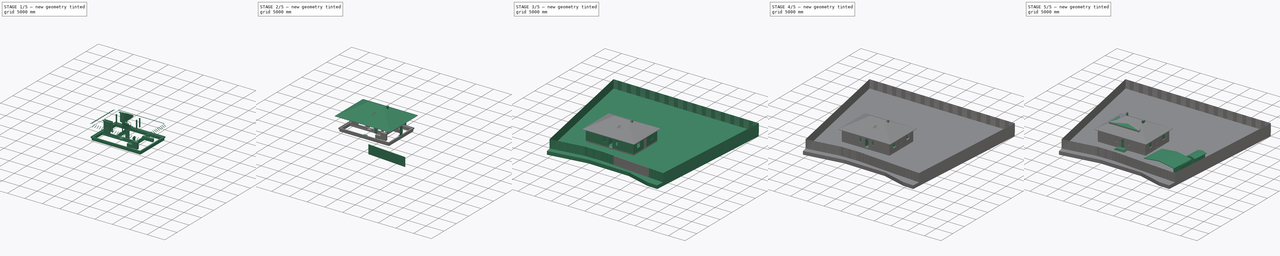
[diagram: build sequence overview — one tinted view per stage of 5, left to right]
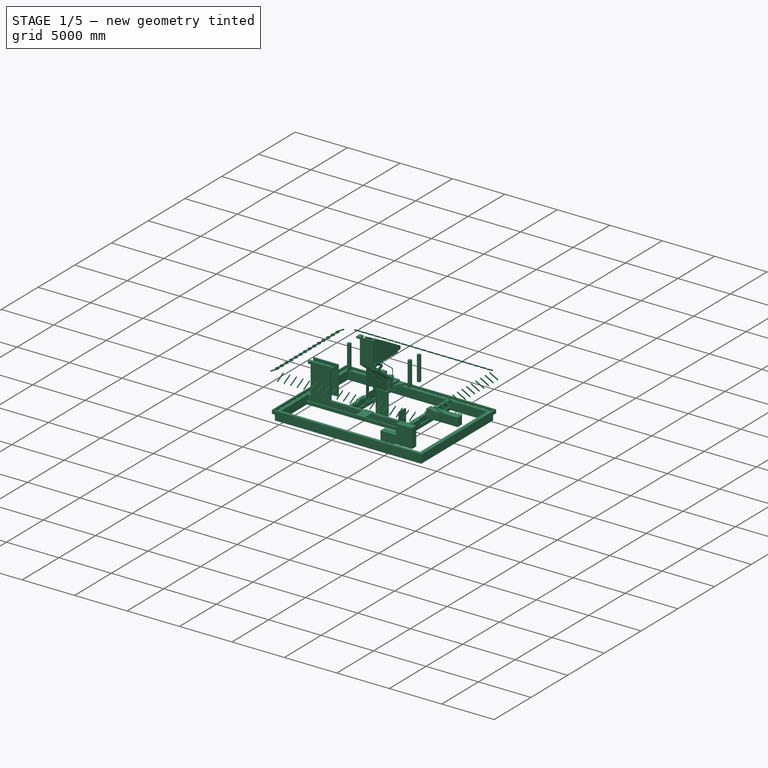
[diagram: stage 1 of 5 — iso view after this stage's code; geometry added in this stage tinted green]
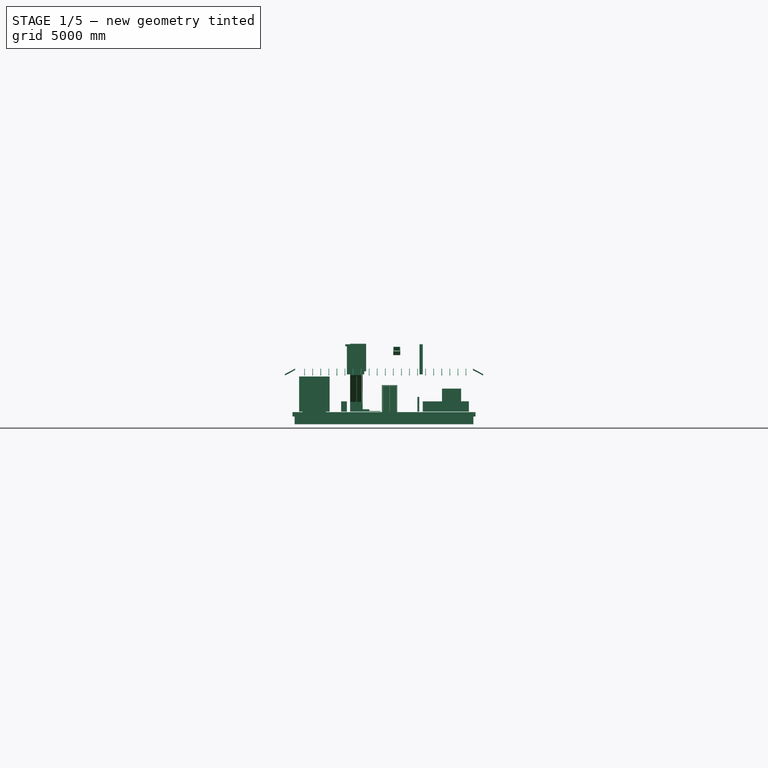
[diagram: stage 1 of 5 — front view after this stage's code; geometry added in this stage tinted green]
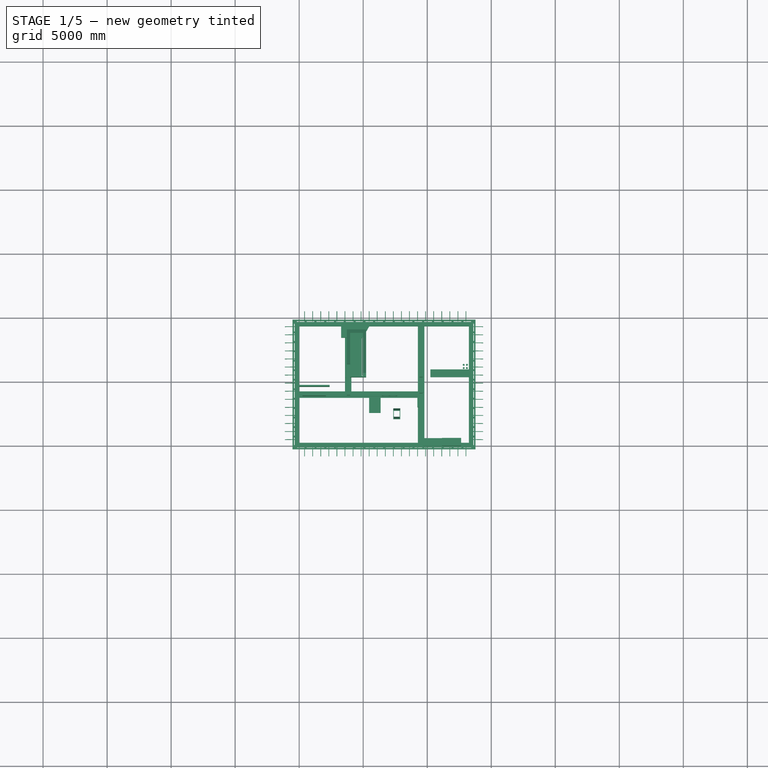
[diagram: stage 1 of 5 — top view after this stage's code; geometry added in this stage tinted green]
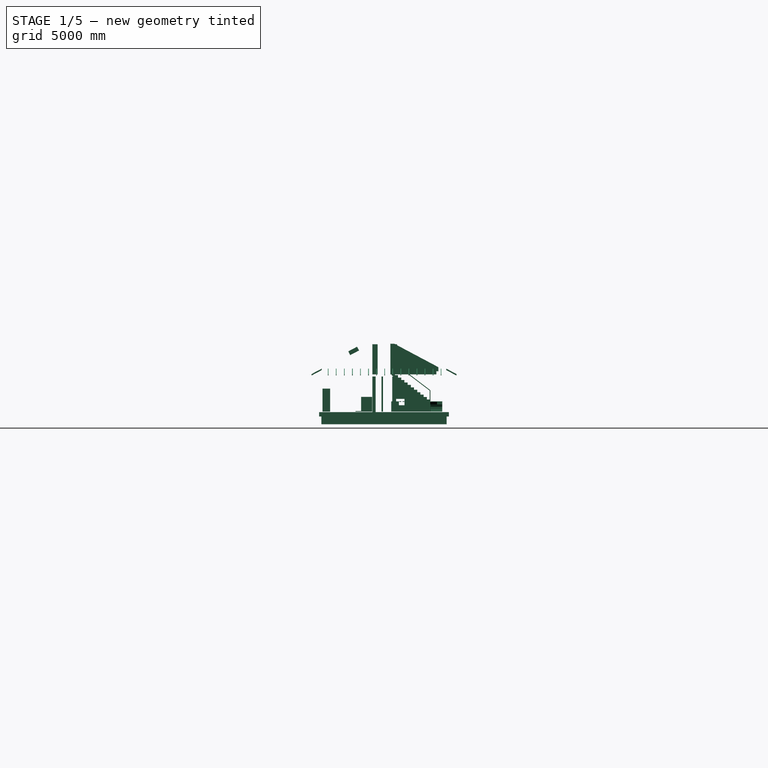
[diagram: stage 1 of 5 — right view after this stage's code; geometry added in this stage tinted green]
FCSTD DOCUMENT  (FreeCAD 0.19R)
Label: 120m2_1floor_020521_02
License: All rights reserved
LicenseURL: http://en.wikipedia.org/wiki/All_rights_reserved
objects: Part::Part2DObjectPython×658, Part::FeaturePython×253, App::GeometryPython×42, Part::Box×39, Sketcher::SketchObject×36, Part::Feature×32, Part::Extrusion×28, Part::Cut×15, Part::MultiCommon×14, App::FeaturePython×9, App::DocumentObjectGroup×9, Part::MultiFuse×4, Part::Loft×3, Part::Cylinder×2, Part::Mirroring×1, TechDraw::DrawSVGTemplate×1, TechDraw::DrawPage×1, Image::ImagePlane×1, Spreadsheet::Sheet×1
note: 1126 computed .brp shape members not serialized (recipe doc carries the construction recipe); baked Part::Feature solids carry a one-line shape summary decoded from their .brp

FEATURE [Part::Part2DObjectPython] Line1074  label="ось фундамента внутр.стены"  # Draft 2D object (typed FeaturePython)
  ChamferSize = 0
  Closed = true
  End = (3855,9350,0)
  FilletRadius = 0
  Length = 5200
  MakeFace = false
  Placement = pos=(2155,2900,0) rot=(0,0,1;1.5708rad)
  Points = (2) [(1250,-1700,0),(6450,-1700,0)]
  Start = (3855,4150,0)
  Subdivisions = 0
FEATURE [Part::FeaturePython] Wall037  label="фундамент внутр.стена01"  # Arch/BIM 166 (typed FeaturePython)
  Align = 2
  Area = 2.6e+06
  Base = -> Line1074
  BlockHeight = 0
  BlockLength = 0
  CountBroken = 0
  CountEntire = 0
  Face = 0
  Height = 500
  HorizontalArea = 1.3e+06
  IfcType = 166
  Joint = 0
  Length = 5200
  MakeBlocks = false
  MoveBase = false
  MoveWithHost = false
  Normal = (0,0,-1)
  OffsetFirst = 0
  OffsetSecond = 0
  PerimeterLength = 10900
  Placement = pos=(0,0,-180) rot=(0,0,1;0rad)
  PredefinedType = 0
  VerticalArea = 5.45e+06
  Width = 250
FEATURE [Part::FeaturePython] Structure030  label="блок утеплителя 60*10*20 001"  # Arch/BIM 7 (typed FeaturePython)
  FaceMaker = 0
  Height = 200
  HorizontalArea = 60000
  IfcType = 7
  Length = 600
  MoveBase = false
  MoveWithHost = false
  Nodes = (2) [(0,0,-3.88578e-16),(0,0,600)]
  NodesOffset = 0
  Normal = (0,0,0)
  PerimeterLength = 1400
  Placement = pos=(-175,9700,-280) rot=(0,0,1;0rad)
  PredefinedType = 0
  VerticalArea = 280000
  Width = 100
FEATURE [Part::FeaturePython] Array  label="массив утепления 001"  # Draft array (typed FeaturePython)
  Angle = 360
  ArrayType = 0
  Axis = (0,0,1)
  Base = -> Structure030
  Center = (0,0,0)
  Fuse = false
  IntervalAxis = (0,0,0)
  IntervalX = (765,0,0)
  IntervalY = (0,1,0)
  IntervalZ = (0,0,1)
  NumberPolar = 1
  NumberX = 18
  NumberY = 1
  NumberZ = 1
FEATURE [Part::FeaturePython] Structure031  label="блок утеплителя 60*10*20 002"  # Arch/BIM 7 (typed FeaturePython)
  FaceMaker = 0
  Height = 200
  HorizontalArea = 60000
  IfcType = 7
  Length = 600
  MoveBase = false
  MoveWithHost = false
  Nodes = (2) [(0,0,-3.88578e-16),(0,0,600)]
  NodesOffset = 0
  Normal = (0,0,0)
  PerimeterLength = 1400
  Placement = pos=(-180,-90,-280) rot=(0,0,1;0rad)
  PredefinedType = 0
  VerticalArea = 280000
  Width = 100
FEATURE [Part::FeaturePython] Array010  label="массив утепления 010"  # Draft array (typed FeaturePython)
  Angle = 360
  ArrayType = 0
  Axis = (0,0,1)
  Base = -> Structure031
  Center = (0,0,0)
  Fuse = false
  IntervalAxis = (0,0,0)
  IntervalX = (765,0,0)
  IntervalY = (0,1,0)
  IntervalZ = (0,0,1)
  NumberPolar = 1
  NumberX = 18
  NumberY = 1
  NumberZ = 1
FEATURE [Part::FeaturePython] Structure032  label="блок утеплителя 60*10*20 003"  # Arch/BIM 7 (typed FeaturePython)
  FaceMaker = 0
  Height = 200
  HorizontalArea = 60000
  IfcType = 7
  Length = 100
  MoveBase = false
  MoveWithHost = false
  Nodes = (2) [(-1.94289e-16,5.68434e-15,0),(-1.94289e-16,5.68434e-15,200)]
  NodesOffset = 0
  Normal = (0,0,0)
  PerimeterLength = 1400
  Placement = pos=(-350,375,-380) rot=(0,0,1;0rad)
  PredefinedType = 0
  VerticalArea = 280000
  Width = 600
FEATURE [Part::FeaturePython] Array011  label="массив утепления 011"  # Draft array (typed FeaturePython)
  Angle = 360
  ArrayType = 0
  Axis = (0,0,1)
  Base = -> Structure032
  Center = (0,0,0)
  Fuse = false
  IntervalAxis = (0,0,0)
  IntervalX = (0,0,0)
  IntervalY = (0,740,0)
  IntervalZ = (0,0,1)
  NumberPolar = 1
  NumberX = 1
  NumberY = 13
  NumberZ = 1
FEATURE [Part::FeaturePython] Structure033  label="блок утеплителя 60*10*20 004"  # Arch/BIM 7 (typed FeaturePython)
  FaceMaker = 0
  Height = 200
  HorizontalArea = 60000
  IfcType = 7
  Length = 100
  MoveBase = false
  MoveWithHost = false
  Nodes = (2) [(-1.94289e-16,5.68434e-15,0),(-1.94289e-16,5.68434e-15,200)]
  NodesOffset = 0
  Normal = (0,0,0)
  PerimeterLength = 1400
  Placement = pos=(13600,375,-380) rot=(0,0,1;0rad)
  PredefinedType = 0
  VerticalArea = 280000
  Width = 600
FEATURE [Part::FeaturePython] Array012  label="массив утепления 012"  # Draft array (typed FeaturePython)
  Angle = 360
  ArrayType = 0
  Axis = (0,0,1)
  Base = -> Structure033
  Center = (0,0,0)
  Fuse = false
  IntervalAxis = (0,0,0)
  IntervalX = (0,0,0)
  IntervalY = (0,740,0)
  IntervalZ = (0,0,1)
  NumberPolar = 1
  NumberX = 1
  NumberY = 13
  NumberZ = 1
FEATURE [App::GeometryPython] BuildingPart017  label="Опциональная мансарда"  # Arch/BIM 172 (typed FeaturePython)
  Area = 0
  Group = -> [Loft]
  Height = 0
  HeightPropagate = true
  IfcType = 172
  LevelOffset = 0
  PredefinedType = 0
FEATURE [Part::FeaturePython] Structure047  label="Плоскость стропила"  # Arch/BIM 7 (typed FeaturePython)
  FaceMaker = 0
  Height = 5000
  HorizontalArea = 700000
  IfcType = 7
  Length = 14000
  MoveBase = false
  MoveWithHost = false
  Nodes = (2) [(0,1.81899e-16,-8.88178e-15),(0,1.81899e-16,14000)]
  NodesOffset = 0
  Normal = (0,0,0)
  PerimeterLength = 28100
  Placement = pos=(175,-2000,4500) rot=(0,0,1;1.5708rad)
  PredefinedType = 0
  VerticalArea = 140500000
  Width = 50
FEATURE [Part::FeaturePython] Structure052  label="Плоскость стропила001"  # Arch/BIM 7 (typed FeaturePython)
  FaceMaker = 0
  Height = 5000
  HorizontalArea = 850000
  IfcType = 7
  Length = 17000
  MoveBase = false
  MoveWithHost = false
  Nodes = (2) [(0,1.81899e-16,-8.88178e-15),(0,1.81899e-16,17000)]
  NodesOffset = 0
  Normal = (0,0,0)
  PerimeterLength = 34100
  Placement = pos=(-2000,55,4500) rot=(0,0,1;0rad)
  PredefinedType = 0
  VerticalArea = 170500000
  Width = 50
FEATURE [Part::FeaturePython] Array013  # Draft array (typed FeaturePython)
  Angle = 360
  ArrayType = 0
  Axis = (0,0,1)
  Base = -> Structure047
  Center = (0,0,0)
  Fuse = false
  IntervalAxis = (0,0,0)
  IntervalX = (630,0,0)
  IntervalY = (0,1,0)
  IntervalZ = (0,0,1)
  NumberPolar = 1
  NumberX = 21
  NumberY = 1
  NumberZ = 1
  Placement = pos=(200,0,0) rot=(0,0,1;0rad)
FEATURE [Part::FeaturePython] Array014  # Draft array (typed FeaturePython)
  Angle = 360
  ArrayType = 0
  Axis = (0,0,1)
  Base = -> Structure052
  Center = (0,0,0)
  Fuse = false
  IntervalAxis = (0,0,0)
  IntervalX = (1,0,0)
  IntervalY = (0,630,0)
  IntervalZ = (0,0,1)
  NumberPolar = 1
  NumberX = 1
  NumberY = 15
  NumberZ = 1
  Placement = pos=(0,340,0) rot=(0,0,1;0rad)
FEATURE [Part::Part2DObjectPython] Line1201  label="ось фундамента внутр.стены001"  # Draft 2D object (typed FeaturePython)
  ChamferSize = 0
  Closed = true
  End = (9525,9350,0)
  FilletRadius = 0
  Length = 9090
  MakeFace = false
  Placement = pos=(7825,2900,0) rot=(0,0,1;1.5708rad)
  Points = (2) [(-2640,-1700,0),(6450,-1700,0)]
  Start = (9525,260,0)
  Subdivisions = 0
FEATURE [Part::FeaturePython] Wall129  label="фундамент внутр.стена002"  # Arch/BIM 166 (typed FeaturePython)
  Align = 2
  Area = 4545000
  Base = -> Line1201
  BlockHeight = 0
  BlockLength = 0
  CountBroken = 0
  CountEntire = 0
  Face = 0
  Height = 500
  HorizontalArea = 2.2725e+06
  IfcType = 166
  Joint = 0
  Length = 9090
  MakeBlocks = false
  MoveBase = false
  MoveWithHost = false
  Normal = (0,0,-1)
  OffsetFirst = 0
  OffsetSecond = 0
  PerimeterLength = 18680
  Placement = pos=(0,0,-180) rot=(0,0,1;0rad)
  PredefinedType = 0
  VerticalArea = 9340000
  Width = 250
FEATURE [App::GeometryPython] BuildingPart036  label="Эргономика"  # Arch/BIM 172 (typed FeaturePython)
  Area = 0
  Group = -> [Extrude007,Extrude008,Extrude012,Extrude022]
  Height = 0
  HeightPropagate = true
  IfcType = 172
  LevelOffset = 0
  PredefinedType = 0
FEATURE [Part::Part2DObjectPython] Wire534  # Draft 2D object (typed FeaturePython)
  ChamferSize = 0
  Closed = false
  End = (5950,7000,0)
  FilletRadius = 0
  Length = 3148.53
  MakeFace = true
  Placement = pos=(5900,7600,0) rot=(0,0,1;0rad)
  Points = (6) [(550,0,0),(0,0,0),(0,-600,0),(600,0,0),(600,-600,0),(50,-600,0)]
  Start = (6450,7600,0)
  Subdivisions = 0
FEATURE [Part::Part2DObjectPython] Wire535  # Draft 2D object (typed FeaturePython)
  ChamferSize = 0
  Closed = false
  End = (6550,7000,0)
  FilletRadius = 0
  Length = 3148.53
  MakeFace = true
  Placement = pos=(6500,7600,0) rot=(0,0,1;0rad)
  Points = (6) [(550,0,0),(0,0,0),(0,-600,0),(600,0,0),(600,-600,0),(50,-600,0)]
  Start = (7050,7600,0)
  Subdivisions = 0
FEATURE [Part::Part2DObjectPython] Wire536  # Draft 2D object (typed FeaturePython)
  ChamferSize = 0
  Closed = false
  End = (7150,7000,0)
  FilletRadius = 0
  Length = 3148.53
  MakeFace = true
  Placement = pos=(7100,7600,0) rot=(0,0,1;0rad)
  Points = (6) [(550,0,0),(0,0,0),(0,-600,0),(600,0,0),(600,-600,0),(50,-600,0)]
  Start = (7650,7600,0)
  Subdivisions = 0
FEATURE [Part::Part2DObjectPython] Wire537  # Draft 2D object (typed FeaturePython)
  ChamferSize = 0
  Closed = false
  End = (7750,7000,0)
  FilletRadius = 0
  Length = 3148.53
  MakeFace = true
  Placement = pos=(7700,7600,0) rot=(0,0,1;0rad)
  Points = (6) [(550,0,0),(0,0,0),(0,-600,0),(600,0,0),(600,-600,0),(50,-600,0)]
  Start = (8250,7600,0)
  Subdivisions = 0
FEATURE [Part::Part2DObjectPython] Wire538  # Draft 2D object (typed FeaturePython)
  ChamferSize = 0
  Closed = false
  End = (8350,7000,0)
  FilletRadius = 0
  Length = 3148.53
  MakeFace = true
  Placement = pos=(8300,7600,0) rot=(0,0,1;0rad)
  Points = (6) [(550,0,0),(0,0,0),(0,-600,0),(600,0,0),(600,-600,0),(50,-600,0)]
  Start = (8850,7600,0)
  Subdivisions = 0
FEATURE [Part::Part2DObjectPython] Wire539  # Draft 2D object (typed FeaturePython)
  ChamferSize = 0
  Closed = false
  End = (8950,7000,0)
  FilletRadius = 0
  Length = 3148.53
  MakeFace = true
  Placement = pos=(8900,7600,0) rot=(0,0,1;0rad)
  Points = (6) [(550,0,0),(0,0,0),(0,-600,0),(600,0,0),(600,-600,0),(50,-600,0)]
  Start = (9450,7600,0)
  Subdivisions = 0
FEATURE [Part::Part2DObjectPython] Wire540  # Draft 2D object (typed FeaturePython)
  ChamferSize = 0
  Closed = false
  End = (9550,7000,0)
  FilletRadius = 0
  Length = 3148.53
  MakeFace = true
  Placement = pos=(9500,7600,0) rot=(0,0,1;0rad)
  Points = (6) [(550,0,0),(0,0,0),(0,-600,0),(600,0,0),(600,-600,0),(50,-600,0)]
  Start = (10050,7600,0)
  Subdivisions = 0
FEATURE [Part::Part2DObjectPython] Wire541  # Draft 2D object (typed FeaturePython)
  ChamferSize = 0
  Closed = false
  End = (10150,7000,0)
  FilletRadius = 0
  Length = 3148.53
  MakeFace = true
  Placement = pos=(10100,7600,0) rot=(0,0,1;0rad)
  Points = (6) [(550,0,0),(0,0,0),(0,-600,0),(600,0,0),(600,-600,0),(50,-600,0)]
  Start = (10650,7600,0)
  Subdivisions = 0
FEATURE [Part::Part2DObjectPython] Wire542  # Draft 2D object (typed FeaturePython)
  ChamferSize = 0
  Closed = false
  End = (10550,6400,0)
  FilletRadius = 0
  Length = 3148.53
  MakeFace = true
  Placement = pos=(10500,7000,0) rot=(0,0,1;0rad)
  Points = (6) [(550,0,0),(0,0,0),(0,-600,0),(600,0,0),(600,-600,0),(50,-600,0)]
  Start = (11050,7000,0)
  Subdivisions = 0
FEATURE [Part::Part2DObjectPython] Wire543  # Draft 2D object (typed FeaturePython)
  ChamferSize = 0
  Closed = false
  End = (10550,5800,0)
  FilletRadius = 0
  Length = 3148.53
  MakeFace = true
  Placement = pos=(10500,6400,0) rot=(0,0,1;0rad)
  Points = (6) [(550,0,0),(0,0,0),(0,-600,0),(600,0,0),(600,-600,0),(50,-600,0)]
  Start = (11050,6400,0)
  Subdivisions = 0
FEATURE [Part::Part2DObjectPython] Wire544  # Draft 2D object (typed FeaturePython)
  ChamferSize = 0
  Closed = false
  End = (10550,5200,0)
  FilletRadius = 0
  Length = 3148.53
  MakeFace = true
  Placement = pos=(10500,5800,0) rot=(0,0,1;0rad)
  Points = (6) [(550,0,0),(0,0,0),(0,-600,0),(600,0,0),(600,-600,0),(50,-600,0)]
  Start = (11050,5800,0)
  Subdivisions = 0
FEATURE [Part::Part2DObjectPython] Circle081  label="Circle082"  # Draft 2D object (typed FeaturePython)
  FirstAngle = 0
  LastAngle = 0
  MakeFace = false
  Placement = pos=(6700,3750,0) rot=(0,0,1;0rad)
  Radius = 100
  Support = -> [Extrude012]
FEATURE [Part::Part2DObjectPython] Rectangle2631  # Draft 2D object (typed FeaturePython)
  ChamferSize = 0
  Columns = 1
  FilletRadius = 0
  Height = 900
  Length = 600
  MakeFace = false
  Placement = pos=(7200,3100,0) rot=(0,0,1;0rad)
  Rows = 1
FEATURE [Part::Part2DObjectPython] Rectangle2633  # Draft 2D object (typed FeaturePython)
  ChamferSize = 0
  Columns = 1
  FilletRadius = 0
  Height = 1200
  Length = 2000
  MakeFace = false
  Placement = pos=(9100,2400,0) rot=(0,0,1;0rad)
  Rows = 1
FEATURE [Part::Part2DObjectPython] Wire545  # Draft 2D object (typed FeaturePython)
  ChamferSize = 0
  Closed = false
  End = (10550,3700,0)
  FilletRadius = 0
  Length = 3148.53
  MakeFace = true
  Placement = pos=(10500,4300,0) rot=(0,0,1;0rad)
  Points = (6) [(550,0,0),(0,0,0),(0,-600,0),(600,0,0),(600,-600,0),(50,-600,0)]
  Start = (11050,4300,0)
  Subdivisions = 0
FEATURE [Part::Part2DObjectPython] Wire546  # Draft 2D object (typed FeaturePython)
  ChamferSize = 0
  Closed = false
  End = (10550,4300,0)
  FilletRadius = 0
  Length = 3148.53
  MakeFace = true
  Placement = pos=(10500,4900,0) rot=(0,0,1;0rad)
  Points = (6) [(550,0,0),(0,0,0),(0,-600,0),(600,0,0),(600,-600,0),(50,-600,0)]
  Start = (11050,4900,0)
  Subdivisions = 0
FEATURE [Part::Part2DObjectPython] Wire548  # Draft 2D object (typed FeaturePython)
  ChamferSize = 0
  Closed = false
  End = (7850,2400,0)
  FilletRadius = 0
  Length = 3148.53
  MakeFace = true
  Placement = pos=(7800,3000,0) rot=(0,0,1;0rad)
  Points = (6) [(550,0,0),(0,0,0),(0,-600,0),(600,0,0),(600,-600,0),(50,-600,0)]
  Start = (8350,3000,0)
  Subdivisions = 0
FEATURE [Part::Part2DObjectPython] Wire549  # Draft 2D object (typed FeaturePython)
  ChamferSize = 0
  Closed = false
  End = (7250,2400,0)
  FilletRadius = 0
  Length = 3148.53
  MakeFace = true
  Placement = pos=(7200,3000,0) rot=(0,0,1;0rad)
  Points = (6) [(550,0,0),(0,0,0),(0,-600,0),(600,0,0),(600,-600,0),(50,-600,0)]
  Start = (7750,3000,0)
  Subdivisions = 0
FEATURE [Part::Part2DObjectPython] Rectangle2634  # Draft 2D object (typed FeaturePython)
  ChamferSize = 0
  Columns = 1
  FilletRadius = 0
  Height = 900
  Length = 600
  MakeFace = false
  Placement = pos=(4000,3100,0) rot=(0,0,1;0rad)
  Rows = 1
FEATURE [Part::Part2DObjectPython] Wire553  # Draft 2D object (typed FeaturePython)
  ChamferSize = 0
  Closed = false
  End = (2850,2400,0)
  FilletRadius = 0
  Length = 3148.53
  MakeFace = true
  Placement = pos=(2800,3000,0) rot=(0,0,1;0rad)
  Points = (6) [(550,0,0),(0,0,0),(0,-600,0),(600,0,0),(600,-600,0),(50,-600,0)]
  Start = (3350,3000,0)
  Subdivisions = 0
FEATURE [Part::Part2DObjectPython] Wire554  # Draft 2D object (typed FeaturePython)
  ChamferSize = 0
  Closed = false
  End = (3450,2400,0)
  FilletRadius = 0
  Length = 3148.53
  MakeFace = true
  Placement = pos=(3400,3000,0) rot=(0,0,1;0rad)
  Points = (6) [(550,0,0),(0,0,0),(0,-600,0),(600,0,0),(600,-600,0),(50,-600,0)]
  Start = (3950,3000,0)
  Subdivisions = 0
FEATURE [Part::Part2DObjectPython] Wire555  # Draft 2D object (typed FeaturePython)
  ChamferSize = 0
  Closed = false
  End = (4050,2400,0)
  FilletRadius = 0
  Length = 3148.53
  MakeFace = true
  Placement = pos=(4000,3000,0) rot=(0,0,1;0rad)
  Points = (6) [(550,0,0),(0,0,0),(0,-600,0),(600,0,0),(600,-600,0),(50,-600,0)]
  Start = (4550,3000,0)
  Subdivisions = 0
FEATURE [Part::Part2DObjectPython] Wire556  # Draft 2D object (typed FeaturePython)
  ChamferSize = 0
  Closed = false
  End = (2450,4200,0)
  FilletRadius = 0
  Length = 3148.53
  MakeFace = true
  Placement = pos=(2400,4800,0) rot=(0,0,1;0rad)
  Points = (6) [(550,0,0),(0,0,0),(0,-600,0),(600,0,0),(600,-600,0),(50,-600,0)]
  Start = (2950,4800,0)
  Subdivisions = 0
FEATURE [Part::Part2DObjectPython] Wire557  # Draft 2D object (typed FeaturePython)
  ChamferSize = 0
  Closed = false
  End = (2450,3600,0)
  FilletRadius = 0
  Length = 3148.53
  MakeFace = true
  Placement = pos=(2400,4200,0) rot=(0,0,1;0rad)
  Points = (6) [(550,0,0),(0,0,0),(0,-600,0),(600,0,0),(600,-600,0),(50,-600,0)]
  Start = (2950,4200,0)
  Subdivisions = 0
FEATURE [Part::Part2DObjectPython] Wire558  # Draft 2D object (typed FeaturePython)
  ChamferSize = 0
  Closed = false
  End = (2450,3000,0)
  FilletRadius = 0
  Length = 3148.53
  MakeFace = true
  Placement = pos=(2400,3600,0) rot=(0,0,1;0rad)
  Points = (6) [(550,0,0),(0,0,0),(0,-600,0),(600,0,0),(600,-600,0),(50,-600,0)]
  Start = (2950,3600,0)
  Subdivisions = 0
FEATURE [Sketcher::SketchObject] Sketch267  label="кресло 45'011"
  FullyConstrained = false
  Placement = pos=(7997.49,3552.51,0) rot=(0,0,-1;1.5708rad)
  sketch-geometry (11):
    g0: LineSegment StartX=-280 StartY=-350 StartZ=0 EndX=280 EndY=-350 EndZ=0
    g1: LineSegment StartX=330 StartY=-300 StartZ=0 EndX=330 EndY=300 EndZ=0
    g2: LineSegment StartX=280 StartY=350 StartZ=0 EndX=-280 EndY=350 EndZ=0
    g3: LineSegment StartX=-330 StartY=300 StartZ=0 EndX=-330 EndY=-300 EndZ=0
    g4: ArcOfCircle CenterX=-280 CenterY=300 CenterZ=0 NormalX=0 NormalY=0 NormalZ=1 AngleXU=0 Radius=50 StartAngle=1.5708 EndAngle=3.14159
    g5: ArcOfCircle CenterX=280 CenterY=300 CenterZ=0 NormalX=0 NormalY=0 NormalZ=1 AngleXU=0 Radius=50 StartAngle=-9e-16 EndAngle=1.5708
    g6: ArcOfCircle CenterX=280 CenterY=-300 CenterZ=0 NormalX=0 NormalY=0 NormalZ=1 AngleXU=0 Radius=50 StartAngle=4.71239 EndAngle=6.28319
    g7: ArcOfCircle CenterX=-280 CenterY=-300 CenterZ=0 NormalX=0 NormalY=0 NormalZ=1 AngleXU=0 Radius=50 StartAngle=3.14159 EndAngle=4.71239
    g8: LineSegment StartX=-330 StartY=200 StartZ=0 EndX=330 EndY=200 EndZ=0
    g9: LineSegment StartX=-230 StartY=200 StartZ=0 EndX=-230 EndY=-350 EndZ=0
    g10: LineSegment StartX=230 StartY=200 StartZ=0 EndX=230 EndY=-350 EndZ=0
  constraints (29):
    c: Horizontal(g0)
    c: Vertical(g1)
    c: Vertical(g3)
    c: Tangent(g2,g4) = -1.5708
    c: Tangent(g3,g4) = -1.5708
    c: Tangent(g2,g5) = -1.5708
    c: Tangent(g1,g5) = -1.5708
    c: Tangent(g0,g6) = -1.5708
    c: Tangent(g1,g6) = -1.5708
    c: Tangent(g3,g7) = -1.5708
    c: Tangent(g0,g7) = -1.5708
    c: DistanceY(g0,g2) = 700
    c: DistanceX(g3,g1) = 660
    c: Equal(g4,g5)
    c: Equal(g7,g6)
    c: Radius(g5) = 50
    c: Symmetric(g2,g2,g-2)
    c: Symmetric(g2,g0,g-1)
    c: PointOnObject(g8,g3)
    c: PointOnObject(g8,g1)
    c: Horizontal(g8)
    c: DistanceY(g8,g2) = 150
    c: PointOnObject(g9,g8)
    c: PointOnObject(g9,g0)
    c: Vertical(g9)
    c: PointOnObject(g10,g0)
    c: Vertical(g10)
    c: DistanceX(g10,g8) = 100
    c: Symmetric(g10,g9,g-2)
FEATURE [Sketcher::SketchObject] Sketch  label="кресло 45'012"
  FullyConstrained = false
  Placement = pos=(3850,3575,0) rot=(0,0,1;1.5708rad)
  sketch-geometry (11):
    g0: LineSegment StartX=-280 StartY=-350 StartZ=0 EndX=280 EndY=-350 EndZ=0
    g1: LineSegment StartX=330 StartY=-300 StartZ=0 EndX=330 EndY=300 EndZ=0
    g2: LineSegment StartX=280 StartY=350 StartZ=0 EndX=-280 EndY=350 EndZ=0
    g3: LineSegment StartX=-330 StartY=300 StartZ=0 EndX=-330 EndY=-300 EndZ=0
    g4: ArcOfCircle CenterX=-280 CenterY=300 CenterZ=0 NormalX=0 NormalY=0 NormalZ=1 AngleXU=0 Radius=50 StartAngle=1.5708 EndAngle=3.14159
    g5: ArcOfCircle CenterX=280 CenterY=300 CenterZ=0 NormalX=0 NormalY=0 NormalZ=1 AngleXU=0 Radius=50 StartAngle=-9e-16 EndAngle=1.5708
    g6: ArcOfCircle CenterX=280 CenterY=-300 CenterZ=0 NormalX=0 NormalY=0 NormalZ=1 AngleXU=0 Radius=50 StartAngle=4.71239 EndAngle=6.28319
    g7: ArcOfCircle CenterX=-280 CenterY=-300 CenterZ=0 NormalX=0 NormalY=0 NormalZ=1 AngleXU=0 Radius=50 StartAngle=3.14159 EndAngle=4.71239
    g8: LineSegment StartX=-330 StartY=200 StartZ=0 EndX=330 EndY=200 EndZ=0
    g9: LineSegment StartX=-230 StartY=200 StartZ=0 EndX=-230 EndY=-350 EndZ=0
    g10: LineSegment StartX=230 StartY=200 StartZ=0 EndX=230 EndY=-350 EndZ=0
  constraints (29):
    c: Horizontal(g0)
    c: Vertical(g1)
    c: Vertical(g3)
    c: Tangent(g2,g4) = -1.5708
    c: Tangent(g3,g4) = -1.5708
    c: Tangent(g2,g5) = -1.5708
    c: Tangent(g1,g5) = -1.5708
    c: Tangent(g0,g6) = -1.5708
    c: Tangent(g1,g6) = -1.5708
    c: Tangent(g3,g7) = -1.5708
    c: Tangent(g0,g7) = -1.5708
    c: DistanceY(g0,g2) = 700
    c: DistanceX(g3,g1) = 660
    c: Equal(g4,g5)
    c: Equal(g7,g6)
    c: Radius(g5) = 50
    c: Symmetric(g2,g2,g-2)
    c: Symmetric(g2,g0,g-1)
    c: PointOnObject(g8,g3)
    c: PointOnObject(g8,g1)
    c: Horizontal(g8)
    c: DistanceY(g8,g2) = 150
    c: PointOnObject(g9,g8)
    c: PointOnObject(g9,g0)
    c: Vertical(g9)
    c: PointOnObject(g10,g0)
    c: Vertical(g10)
    c: DistanceX(g10,g8) = 100
    c: Symmetric(g10,g9,g-2)
FEATURE [Part::Part2DObjectPython] Line1220  label="Line1221"  # Draft 2D object (typed FeaturePython)
  ChamferSize = 0
  Closed = false
  End = (6000,6800,0)
  FilletRadius = 0
  Length = 700
  MakeFace = false
  Placement = pos=(5300,6950,0) rot=(0,0,1;0rad)
  Points = (2) [(0,-150,0),(700,-150,0)]
  Start = (5300,6800,0)
  Subdivisions = 0
FEATURE [Part::Part2DObjectPython] Arc083  label="Arc084"  # Draft 2D object (typed FeaturePython)
  FirstAngle = -90
  LastAngle = 0
  MakeFace = false
  Placement = pos=(5300,6800,0) rot=(0,0,1;0rad)
  Radius = 700
FEATURE [Part::Part2DObjectPython] Rectangle2636  label="Д70-015"  # Draft 2D object (typed FeaturePython)
  ChamferSize = 0
  Columns = 1
  FilletRadius = 0
  Height = 700
  Length = 100
  MakeFace = true
  Placement = pos=(5200,6100,0) rot=(0,0,1;0rad)
  Rows = 1
FEATURE [Part::Part2DObjectPython] Line1221  label="Line1222"  # Draft 2D object (typed FeaturePython)
  ChamferSize = 0
  Closed = false
  End = (10300,5100,0)
  FilletRadius = 0
  Length = 700
  MakeFace = false
  Placement = pos=(10450,5800,0) rot=(0,0,-1;1.5708rad)
  Points = (2) [(0,-150,0),(700,-150,0)]
  Start = (10300,5800,0)
  Subdivisions = 0
FEATURE [Part::Part2DObjectPython] Arc084  label="Arc085"  # Draft 2D object (typed FeaturePython)
  FirstAngle = -90
  LastAngle = 0
  MakeFace = false
  Placement = pos=(10300,5100,0) rot=(0,0,1;3.14159rad)
  Radius = 700
FEATURE [Part::Part2DObjectPython] Rectangle2637  label="Д70-016"  # Draft 2D object (typed FeaturePython)
  ChamferSize = 0
  Columns = 1
  FilletRadius = 0
  Height = 700
  Length = 100
  MakeFace = true
  Placement = pos=(9600,5100,0) rot=(0,0,-1;1.5708rad)
  Rows = 1
FEATURE [Part::Feature] Ellipse051  label="Ellipse054"
  Placement = pos=(6050,3300,0) rot=(0,0,1;3.14159rad)
  shape: bbox 400 x 200 x 2e-07 mm, 0 faces, 0 solids (baked)
FEATURE [Part::Part2DObjectPython] Rectangle2638  # Draft 2D object (typed FeaturePython)
  ChamferSize = 0
  Columns = 1
  FilletRadius = 0
  Height = 100
  Length = 2400
  MakeFace = true
  Placement = pos=(4700,3000,0) rot=(0,0,1;0rad)
  Rows = 1
FEATURE [Sketcher::SketchObject] Sketch268  label=" Вентстояк ГБ 375х500 005"
  FullyConstrained = false
  Placement = pos=(3934.25,-5393.47,0) rot=(0,0,1;0rad)
  sketch-geometry (6):
    g0: LineSegment StartX=4590.75 StartY=6893.47 StartZ=0 EndX=4965.75 EndY=6893.47 EndZ=0
    g1: LineSegment StartX=4965.75 StartY=6893.47 StartZ=0 EndX=4965.75 EndY=7393.47 EndZ=0
    g2: LineSegment StartX=4965.75 StartY=7393.47 StartZ=0 EndX=4590.75 EndY=7393.47 EndZ=0
    g3: LineSegment StartX=4590.75 StartY=7393.47 StartZ=0 EndX=4590.75 EndY=6893.47 EndZ=0
    g4: Circle CenterX=4778.75 CenterY=7243.47 CenterZ=0 NormalX=0 NormalY=0 NormalZ=1 AngleXU=0 Radius=80
    g5: Circle CenterX=4778.75 CenterY=7043.47 CenterZ=0 NormalX=0 NormalY=0 NormalZ=1 AngleXU=0 Radius=80
  constraints (16):
    c: Coincident(g0,g1)
    c: Coincident(g1,g2)
    c: Coincident(g2,g3)
    c: Coincident(g3,g0)
    c: Horizontal(g0)
    c: Horizontal(g2)
    c: Vertical(g1)
    c: Vertical(g3)
    c: DistanceX(g2,g2) = 375
    c: DistanceY(g3,g3) = 500
    c: Equal(g4,g5)
    c: Diameter(g4) = 160
    c: DistanceX(g2,g4) = 188
    c: DistanceY(g4,g2) = 150
    c: DistanceY(g5,g4) = 200
    c: DistanceX(g4,g5) = 0
FEATURE [Part::Part2DObjectPython] ShapeString126  label="надпись 129"  # Draft 2D object (typed FeaturePython)
  FontFile = <path>
  Placement = pos=(9564.44,2947.23,0) rot=(0,0,1;0rad)
  Size = 200
  String = 200x120
  Tracking = 0
FEATURE [Part::Part2DObjectPython] ShapeString127  label="надпись 130"  # Draft 2D object (typed FeaturePython)
  FontFile = <path>
  Placement = pos=(5398.61,4205.64,0) rot=(0,0,1;0rad)
  Size = 200
  String = 4.5 м2
  Tracking = 0
FEATURE [Part::Part2DObjectPython] ShapeString128  label="надпись 131"  # Draft 2D object (typed FeaturePython)
  FontFile = <path>
  Placement = pos=(3952.42,6324.67,0) rot=(0,0,1;0rad)
  Size = 200
  String = 12.5 м2
  Tracking = 0
FEATURE [Sketcher::SketchObject] Sketch269  label=" Вентстояк ГБ 375х500 006"
  FullyConstrained = false
  Placement = pos=(-165.746,56.5335,0) rot=(0,0,1;0rad)
  sketch-geometry (6):
    g0: LineSegment StartX=4590.75 StartY=6893.47 StartZ=0 EndX=4965.75 EndY=6893.47 EndZ=0
    g1: LineSegment StartX=4965.75 StartY=6893.47 StartZ=0 EndX=4965.75 EndY=7393.47 EndZ=0
    g2: LineSegment StartX=4965.75 StartY=7393.47 StartZ=0 EndX=4590.75 EndY=7393.47 EndZ=0
    g3: LineSegment StartX=4590.75 StartY=7393.47 StartZ=0 EndX=4590.75 EndY=6893.47 EndZ=0
    g4: Circle CenterX=4778.75 CenterY=7243.47 CenterZ=0 NormalX=0 NormalY=0 NormalZ=1 AngleXU=0 Radius=80
    g5: Circle CenterX=4778.75 CenterY=7043.47 CenterZ=0 NormalX=0 NormalY=0 NormalZ=1 AngleXU=0 Radius=80
  constraints (16):
    c: Coincident(g0,g1)
    c: Coincident(g1,g2)
    c: Coincident(g2,g3)
    c: Coincident(g3,g0)
    c: Horizontal(g0)
    c: Horizontal(g2)
    c: Vertical(g1)
    c: Vertical(g3)
    c: DistanceX(g2,g2) = 375
    c: DistanceY(g3,g3) = 500
    c: Equal(g4,g5)
    c: Diameter(g4) = 160
    c: DistanceX(g2,g4) = 188
    c: DistanceY(g4,g2) = 150
    c: DistanceY(g5,g4) = 200
    c: DistanceX(g4,g5) = 0
FEATURE [Part::Part2DObjectPython] Wire559  # Draft 2D object (typed FeaturePython)
  ChamferSize = 0
  Closed = true
  End = (5600,3100,0)
  FilletRadius = 0
  Length = 4490.72
  MakeFace = false
  Placement = pos=(4700,4100,0) rot=(0,0,1;0rad)
  Points = (4) [(0,0,0),(900,0,0),(0,-1000,0),(900,-1000,0)]
  Start = (4700,4100,0)
  Subdivisions = 0
FEATURE [Part::Part2DObjectPython] Rectangle2639  # Draft 2D object (typed FeaturePython)
  ChamferSize = 0
  Columns = 1
  FilletRadius = 0
  Height = 1240
  Length = 615
  MakeFace = false
  Placement = pos=(8405,880,0) rot=(0,0,1;0rad)
  Rows = 1
FEATURE [Part::Part2DObjectPython] Wire560  # Draft 2D object (typed FeaturePython)
  ChamferSize = 0
  Closed = true
  End = (4700,4900,0)
  FilletRadius = 0
  Length = 12600
  MakeFace = true
  Placement = pos=(5240,4940,0) rot=(0,0,1;0rad)
  Points = (14) [(-640,-40,0),(-640,160,0),(-40,160,0),(-40,1160,0),(60,1160,0),(60,160,0),(4360,160,0),(4360,60,0),(1960,60,0),(1960,-40,0),(1860,-40,0),(1860,60,0),+2 more]
  Start = (4600,4900,0)
  Subdivisions = 0
FEATURE [Part::Part2DObjectPython] Rectangle2640  # Draft 2D object (typed FeaturePython)
  ChamferSize = 0
  Columns = 1
  FilletRadius = 0
  Height = 2000
  Length = 1200
  MakeFace = false
  Placement = pos=(2400,4900,0) rot=(0,0,1;0rad)
  Rows = 1
FEATURE [Part::Part2DObjectPython] ShapeString129  label="надпись 132"  # Draft 2D object (typed FeaturePython)
  FontFile = <path>
  Placement = pos=(9148.73,4330.34,0) rot=(0,0,1;0rad)
  Size = 200
  String = 11.1 м2
  Tracking = 0
FEATURE [Part::Part2DObjectPython] ShapeString130  label="надпись 133"  # Draft 2D object (typed FeaturePython)
  FontFile = <path>
  Placement = pos=(3068.31,5428.9,0) rot=(0,0,1;1.5708rad)
  Size = 200
  String = 200x120
  Tracking = 0
FEATURE [Part::Part2DObjectPython] Rectangle2641  label="табуретка001"  # Draft 2D object (typed FeaturePython)
  ChamferSize = 0
  Columns = 1
  FilletRadius = 0
  Height = 1240
  Length = 5400
  MakeFace = false
  Placement = pos=(3925,4185,0) rot=(0,0,1;0rad)
  Rows = 1
FEATURE [Part::FeaturePython] Wall145  label="табуретка"  # Arch/BIM 166 (typed FeaturePython)
  Align = 2
  Area = 1992000
  Base = -> Rectangle2641
  BlockHeight = 0
  BlockLength = 0
  CountBroken = 0
  CountEntire = 0
  Face = 0
  Height = 150
  HorizontalArea = 1328000
  IfcType = 166
  Joint = 0
  Length = 13280
  MakeBlocks = false
  MoveBase = false
  MoveWithHost = false
  Normal = (0,0,0)
  OffsetFirst = 0
  OffsetSecond = 0
  PerimeterLength = 13680
  Placement = pos=(0,0,5260) rot=(0,0,1;0rad)
  PredefinedType = 0
  VerticalArea = 3984000
  Width = 100
FEATURE [App::GeometryPython] BuildingPart043  label="Коньковая ферма"  # Arch/BIM 172 (typed FeaturePython)
  Area = 0
  Group = -> [Pipe,Pipe003,Pipe002,Pipe001,Wall137,Wall135,Wall157,Wall158]
  Height = 0
  HeightPropagate = true
  IfcType = 172
  LevelOffset = 0
  PredefinedType = 0
FEATURE [App::GeometryPython] BuildingPart019  label="Ненужное"  # Arch/BIM 172 (typed FeaturePython)
  Area = 0
  Group = -> [BuildingPart008,BuildingPart009,Structure044,BuildingPart015,BuildingPart017,BuildingPart043]
  Height = 0
  HeightPropagate = true
  IfcType = 172
  LevelOffset = 0
  PredefinedType = 0
FEATURE [Part::Part2DObjectPython] Rectangle2651  label="уширение фундамента 001"  # Draft 2D object (typed FeaturePython)
  ChamferSize = 0
  Columns = 1
  FilletRadius = 0
  Height = 1000
  Length = 130
  MakeFace = false
  Placement = pos=(3600,5330,0) rot=(0,0,1;0rad)
  Rows = 1
FEATURE [Part::FeaturePython] Structure172  label="уширение фундамента001"  # Arch/BIM 172 (typed FeaturePython)
  Base = -> Rectangle2651
  FaceMaker = 0
  Height = 500
  HorizontalArea = 130000
  IfcType = 172
  Length = 0
  MoveBase = false
  MoveWithHost = false
  Nodes = (2) [(3665,5830,0),(3665,5830,-500)]
  NodesOffset = 0
  Normal = (0,0,-1)
  PerimeterLength = 2260
  Placement = pos=(0,0,-180) rot=(0,0,1;0rad)
  PredefinedType = 0
  VerticalArea = 1.13e+06
  Width = 100
FEATURE [Part::FeaturePython] Wall038  label="фундамент внутр. стена 001"  # Arch/BIM 166 (typed FeaturePython)
  Additions = -> [Wall037,Structure172]
  Align = 2
  Area = 1.56e+06
  Base = -> Line1074
  BlockHeight = 0
  BlockLength = 0
  CountBroken = 0
  CountEntire = 0
  Face = 0
  Height = 300
  HorizontalArea = 2.6e+06
  IfcType = 166
  Joint = 0
  Length = 5200
  MakeBlocks = false
  MoveBase = false
  MoveWithHost = false
  Normal = (0,0,-1)
  OffsetFirst = 0
  OffsetSecond = 0
  PerimeterLength = 28620
  Placement = pos=(-25,0,-680) rot=(0,0,1;0rad)
  PredefinedType = 0
  VerticalArea = 9e+06
  Width = 500
FEATURE [Part::Extrusion] Extrude057  label="мойка_вырез"
  Base = -> Rectangle2392
  Dir = (0,0,1)
  DirMode = 0
  FaceMakerClass = Part::FaceMakerBullseye
  LengthFwd = 150
  LengthRev = 0
  Placement = pos=(0,0,650) rot=(0,0,1;0rad)
  Solid = true
  Symmetric = false
FEATURE [Part::Part2DObjectPython] Rectangle2663  label="уширение фундамента 002"  # Draft 2D object (typed FeaturePython)
  ChamferSize = 0
  Columns = 1
  FilletRadius = 0
  Height = 1000
  Length = 130
  MakeFace = false
  Placement = pos=(9650,4200,0) rot=(0,0,1;0rad)
  Rows = 1
FEATURE [Part::FeaturePython] Structure175  label="уширение фундамента002"  # Arch/BIM 172 (typed FeaturePython)
  Base = -> Rectangle2663
  FaceMaker = 0
  Height = 500
  HorizontalArea = 130000
  IfcType = 172
  Length = 0
  MoveBase = false
  MoveWithHost = false
  Nodes = (2) [(9715,4700,0),(9715,4700,-500)]
  NodesOffset = 0
  Normal = (0,0,-1)
  PerimeterLength = 2260
  Placement = pos=(0,0,-180) rot=(0,0,1;0rad)
  PredefinedType = 0
  VerticalArea = 1.13e+06
  Width = 100
FEATURE [Part::FeaturePython] Wall130  label="фундамент внутр. стена 002"  # Arch/BIM 166 (typed FeaturePython)
  Additions = -> [Wall129,Structure175]
  Align = 2
  Area = 2727000
  Base = -> Line1201
  BlockHeight = 0
  BlockLength = 0
  CountBroken = 0
  CountEntire = 0
  Face = 0
  Height = 300
  HorizontalArea = 4.55e+06
  IfcType = 166
  Joint = 0
  Length = 9090
  MakeBlocks = false
  MoveBase = false
  MoveWithHost = false
  Normal = (0,0,-1)
  OffsetFirst = 0
  OffsetSecond = 0
  PerimeterLength = 28620
  Placement = pos=(0,0,-680) rot=(0,0,1;0rad)
  PredefinedType = 0
  VerticalArea = 15224000
  Width = 500
FEATURE [Part::Box] Box3205  label="шкаф 60 кухонный 011"
  AttacherType = Attacher::AttachEngine3D
  Height = 800
  Length = 3000
  Placement = pos=(10250,5370,0) rot=(0,0,1;0rad)
  Width = 600
FEATURE [App::GeometryPython] BuildingPart040  label="Вентстояки верх.часть"  # Arch/BIM 172 (typed FeaturePython)
  Area = 0
  Group = -> [Extrude019,Extrude021,Extrude076,Extrude077]
  Height = 0
  HeightPropagate = true
  IfcType = 172
  LevelOffset = 0
  PredefinedType = 0
FEATURE [Part::Part2DObjectPython] Rectangle2979  # Draft 2D object (typed FeaturePython)
  Area = 0
  ChamferSize = 0
  Columns = 1
  FilletRadius = 0
  Height = 250
  Length = 250
  MakeFace = false
  Placement = pos=(3730,3900,0) rot=(0,0,1;0rad)
  Rows = 1
FEATURE [Part::Part2DObjectPython] Rectangle2980  # Draft 2D object (typed FeaturePython)
  Area = 0
  ChamferSize = 0
  Columns = 1
  FilletRadius = 0
  Height = 250
  Length = 250
  MakeFace = false
  Placement = pos=(9400,4060,0) rot=(0,0,1;0rad)
  Rows = 1
FEATURE [Part::Part2DObjectPython] Rectangle2983  # Draft 2D object (typed FeaturePython)
  Area = 0
  ChamferSize = 0
  Columns = 1
  FilletRadius = 0
  Height = 250
  Length = 250
  MakeFace = false
  Placement = pos=(9650,5310,0) rot=(0,0,1;1.5708rad)
  Rows = 1
FEATURE [Part::FeaturePython] Structure287  label="Колонна 001"  # Arch/BIM 172 (typed FeaturePython)
  Base = -> Rectangle2979
  FaceMaker = 0
  Height = 2350
  HorizontalArea = 62500
  IfcData = attributes={"GlobalId": {"name": "GlobalId", "type": "IfcGloballyUniqueId", "is_enum": false, "enum_values": []}, "Description": {"... (+484 chars omitted),+1 more (map truncated)
  IfcType = 172
  Length = 0
  MoveBase = false
  MoveWithHost = false
  Nodes = (2) [(3725,4025,0),(3725,4025,2150)]
  NodesOffset = 0
  Normal = (0,0,0)
  PerimeterLength = 1000
  Placement = pos=(0,0,2910) rot=(0,0,1;0rad)
  PredefinedType = 0
  VerticalArea = 2.35e+06
  Width = 100
FEATURE [Part::FeaturePython] Structure288  label="Колонна 007"  # Arch/BIM 172 (typed FeaturePython)
  Base = -> Rectangle2980
  FaceMaker = 0
  Height = 2350
  HorizontalArea = 62500
  IfcData = attributes={"GlobalId": {"name": "GlobalId", "type": "IfcGloballyUniqueId", "is_enum": false, "enum_values": []}, "Description": {"... (+484 chars omitted),+1 more (map truncated)
  IfcType = 172
  Length = 0
  MoveBase = false
  MoveWithHost = false
  Nodes = (2) [(9330,4025,0),(9330,4025,2150)]
  NodesOffset = 0
  Normal = (0,0,0)
  PerimeterLength = 1000
  Placement = pos=(0,0,2910) rot=(0,0,1;0rad)
  PredefinedType = 0
  VerticalArea = 2.35e+06
  Width = 100
FEATURE [Part::FeaturePython] Structure289  label="Колонна 008"  # Arch/BIM 172 (typed FeaturePython)
  Base = -> Rectangle2983
  FaceMaker = 0
  Height = 2350
  HorizontalArea = 62500
  IfcData = attributes={"GlobalId": {"name": "GlobalId", "type": "IfcGloballyUniqueId", "is_enum": false, "enum_values": []}, "Description": {"... (+484 chars omitted),+1 more (map truncated)
  IfcType = 172
  Length = 0
  MoveBase = false
  MoveWithHost = false
  Nodes = (2) [(9525,5435,0),(9525,5435,2350)]
  NodesOffset = 0
  Normal = (0,0,0)
  PerimeterLength = 1000
  Placement = pos=(0,0,2910) rot=(0,0,1;0rad)
  PredefinedType = 0
  VerticalArea = 2.35e+06
  Width = 100
FEATURE [Part::Part2DObjectPython] Rectangle2984  # Draft 2D object (typed FeaturePython)
  Area = 0
  ChamferSize = 0
  Columns = 1
  FilletRadius = 0
  Height = 500
  Length = 380
  MakeFace = false
  Placement = pos=(3599.85,5330,0) rot=(0,0,1;0rad)
  Rows = 1
FEATURE [Part::FeaturePython] Structure290  label="Колонна 009"  # Arch/BIM 172 (typed FeaturePython)
  Base = -> Rectangle2984
  FaceMaker = 0
  Height = 150
  HorizontalArea = 190000
  IfcData = attributes={"GlobalId": {"name": "GlobalId", "type": "IfcGloballyUniqueId", "is_enum": false, "enum_values": []}, "Description": {"... (+484 chars omitted),+1 more (map truncated)
  IfcType = 172
  Length = 0
  MoveBase = false
  MoveWithHost = false
  Nodes = (2) [(3789.85,5580,0),(3789.85,5580,150)]
  NodesOffset = 0
  Normal = (0,0,0)
  PerimeterLength = 1760
  Placement = pos=(0,0,5110) rot=(0,0,1;0rad)
  PredefinedType = 0
  VerticalArea = 264000
  Width = 100
FEATURE [Part::Part2DObjectPython] Line1302  label="ось фундамента внутр.стены002"  # Draft 2D object (typed FeaturePython)
  ChamferSize = 0
  Closed = true
  End = (9400,4025,0)
  FilletRadius = 0
  Length = 9400
  MakeFace = false
  Placement = pos=(7825,3025,0) rot=(0,0,1;1.5708rad)
  Points = (2) [(1000,7825,0),(1000,-1575,0)]
  Start = (0,4025,0)
  Subdivisions = 0
FEATURE [Part::FeaturePython] Wall174  label="фундамент внутр.стена003"  # Arch/BIM 166 (typed FeaturePython)
  Align = 2
  Area = 4.7e+06
  Base = -> Line1302
  BlockHeight = 0
  BlockLength = 0
  CountBroken = 0
  CountEntire = 0
  Face = 0
  Height = 500
  HorizontalArea = 2.35e+06
  IfcType = 166
  Joint = 0
  Length = 9400
  MakeBlocks = false
  MoveBase = false
  MoveWithHost = false
  Normal = (0,0,-1)
  OffsetFirst = 0
  OffsetSecond = 0
  PerimeterLength = 19300
  Placement = pos=(0,0,-180) rot=(0,0,1;0rad)
  PredefinedType = 0
  VerticalArea = 9.65e+06
  Width = 250
FEATURE [Part::FeaturePython] Wall175  label="фундамент внутр. стена 003"  # Arch/BIM 166 (typed FeaturePython)
  Additions = -> [Wall174]
  Align = 2
  Area = 2.82e+06
  Base = -> Line1302
  BlockHeight = 0
  BlockLength = 0
  CountBroken = 0
  CountEntire = 0
  Face = 0
  Height = 300
  HorizontalArea = 4.7e+06
  IfcType = 166
  Joint = 0
  Length = 9400
  MakeBlocks = false
  MoveBase = false
  MoveWithHost = false
  Normal = (0,0,-1)
  OffsetFirst = 0
  OffsetSecond = 0
  PerimeterLength = 28620
  Placement = pos=(0,0,-680) rot=(0,0,1;0rad)
  PredefinedType = 0
  VerticalArea = 1.559e+07
  Width = 500
FEATURE [Part::Part2DObjectPython] Line1303  # Draft 2D object (typed FeaturePython)
  Area = 0
  ChamferSize = 0
  Closed = false
  End = (3804.17,9050,0)
  FilletRadius = 0
  Length = 1300
  MakeFace = true
  Placement = pos=(4930,8400,0) rot=(0,0,1;0rad)
  Points = (2) [(0,0,0),(-1125.83,650,0)]
  Start = (4930,8400,0)
  Subdivisions = 0
FEATURE [Part::Part2DObjectPython] Line1304  # Draft 2D object (typed FeaturePython)
  Area = 0
  ChamferSize = 0
  Closed = false
  End = (4280,9525.83,0)
  FilletRadius = 0
  Length = 1300
  MakeFace = true
  Placement = pos=(4930,8400,0) rot=(0,0,1;0rad)
  Points = (2) [(0,0,0),(-650,1125.83,0)]
  Start = (4930,8400,0)
  Subdivisions = 0
FEATURE [Part::Part2DObjectPython] Line1306  # Draft 2D object (typed FeaturePython)
  Area = 0
  ChamferSize = 0
  Closed = false
  End = (5855,10002.1,0)
  FilletRadius = 0
  Length = 1850
  MakeFace = true
  Placement = pos=(4930,8400,0) rot=(0,0,-1;0.523599rad)
  Points = (2) [(0,0,0),(1.81899e-12,1850,0)]
  Start = (4930,8400,0)
  Subdivisions = 0
FEATURE [Part::Part2DObjectPython] Line1307  # Draft 2D object (typed FeaturePython)
  Area = 0
  ChamferSize = 0
  Closed = false
  End = (4930,10100,0)
  FilletRadius = 0
  Length = 1700
  MakeFace = true
  Placement = pos=(4930,8400,0) rot=(0,0,1;0rad)
  Points = (2) [(0,0,0),(0,1700,0)]
  Start = (4930,8400,0)
  Subdivisions = 0
FEATURE [App::DocumentObjectGroup] Construction  label="Construction_"
  Group = -> [Rectangle2266,Wire422,Line1079,Line1081,Rectangle2276,Line1082,Rectangle2279,mirror,Wire423,Wire424,Wire425,Wire426,Line1083,Rectangle2289,Polygon,Polygon001,Rectangle2243,Rectangle2237,Rectangle2238,Rectangle2239,Rectangle2242,Rectangle2241,Rectangle2240,Wire413,Wire414,Wire418,Line1098,Rectangle2356,Rectangle2357,Rectangle2358,Rectangle2359,Rectangle2360,Rectangle2361,Rectangle2362,+53 more]
FEATURE [Part::Part2DObjectPython] Wire  label="Забежные ступени 012"  # Draft 2D object (typed FeaturePython)
  Area = 0
  ChamferSize = 0
  Closed = true
  End = (4886.7,8425,0)
  FilletRadius = 0
  Length = 2521.33
  MakeFace = false
  Placement = pos=(4880,8400,0) rot=(0,0,1;0rad)
  Points = (4) [(0,0,0),(-900,0,0),(-900,548.483,0),(6.69873,25,0)]
  Start = (4880,8400,0)
  Subdivisions = 0
FEATURE [Part::Part2DObjectPython] Wire694  label="Забежные ступени 011"  # Draft 2D object (typed FeaturePython)
  Area = 0
  ChamferSize = 0
  Closed = true
  End = (4905,8443.3,0)
  FilletRadius = 0
  Length = 2922.85
  MakeFace = false
  Placement = pos=(4886.7,8425,0) rot=(0,0,1;0rad)
  Points = (5) [(0,0,0),(-906.699,523.483,0),(-906.699,925,0),(-505.181,925,0),(18.3013,18.3013,0)]
  Start = (4886.7,8425,0)
  Subdivisions = 0
FEATURE [Part::Part2DObjectPython] Wire695  label="Забежные ступени 010"  # Draft 2D object (typed FeaturePython)
  Area = 0
  ChamferSize = 0
  Closed = true
  End = (4930,8450,0)
  FilletRadius = 0
  Length = 2521.33
  MakeFace = false
  Placement = pos=(4905,8443.3,0) rot=(0,0,1;0rad)
  Points = (4) [(0,0,0),(-523.483,906.699,0),(25,906.699,0),(25,6.69873,0)]
  Start = (4905,8443.3,0)
  Subdivisions = 0
FEATURE [Part::Part2DObjectPython] Wire696  label="Забежные ступени 001"  # Draft 2D object (typed FeaturePython)
  Area = 0
  ChamferSize = 0
  Closed = true
  End = (4955,8443.3,0)
  FilletRadius = 0
  Length = 2521.33
  MakeFace = false
  Placement = pos=(4930,8450,0) rot=(0,0,1;0rad)
  Points = (4) [(0,0,0),(9.09495e-13,900,0),(548.483,900,0),(25,-6.69873,0)]
  Start = (4930,8450,0)
  Subdivisions = 0
FEATURE [Part::FeaturePython] Structure295  label="Структура001"  # Arch/BIM 172 (typed FeaturePython)
  Base = -> Wire695
  FaceMaker = 0
  Height = 380
  HorizontalArea = 259904
  IfcData = attributes={"GlobalId": {"name": "GlobalId", "type": "IfcGloballyUniqueId", "is_enum": false, "enum_values": []}, "Description": {"... (+484 chars omitted),+1 more (map truncated)
  IfcType = 172
  Length = 0
  MoveBase = false
  MoveWithHost = false
  Nodes = (2) [(4746.75,9034.78,0),(4746.75,9034.78,380)]
  NodesOffset = 0
  Normal = (0,0,1)
  PerimeterLength = 2521.33
  PredefinedType = 0
  VerticalArea = 958105
  Width = 100
FEATURE [Part::FeaturePython] Structure296  label="Структура002"  # Arch/BIM 172 (typed FeaturePython)
  Base = -> Wire694
  FaceMaker = 0
  Height = 570
  HorizontalArea = 380816
  IfcData = attributes={"GlobalId": {"name": "GlobalId", "type": "IfcGloballyUniqueId", "is_enum": false, "enum_values": []}, "Description": {"... (+484 chars omitted),+1 more (map truncated)
  IfcType = 172
  Length = 0
  MoveBase = false
  MoveWithHost = false
  Nodes = (2) [(4362.69,8967.31,0),(4362.69,8967.31,570)]
  NodesOffset = 0
  Normal = (0,0,1)
  PerimeterLength = 2922.85
  PredefinedType = 0
  VerticalArea = 1.66602e+06
  Width = 100
FEATURE [Part::FeaturePython] Structure297  label="Структура003"  # Arch/BIM 172 (typed FeaturePython)
  Base = -> Wire
  FaceMaker = 0
  Height = 760
  HorizontalArea = 259904
  IfcData = attributes={"GlobalId": {"name": "GlobalId", "type": "IfcGloballyUniqueId", "is_enum": false, "enum_values": []}, "Description": {"... (+484 chars omitted),+1 more (map truncated)
  IfcType = 172
  Length = 0
  MoveBase = false
  MoveWithHost = false
  Nodes = (2) [(4295.22,8583.25,0),(4295.22,8583.25,760)]
  NodesOffset = 0
  Normal = (0,0,1)
  PerimeterLength = 2521.33
  PredefinedType = 0
  VerticalArea = 1.91621e+06
  Width = 100
FEATURE [Part::FeaturePython] Stairs  # Arch/BIM 128 (typed FeaturePython)
  AbsTop = (0,0,2470)
  Align = 0
  BlondelRatio = 0
  Flight = 0
  Height = 3000
  HorizontalArea = 0
  IfcData = attributes={"GlobalId": {"name": "GlobalId", "type": "IfcGloballyUniqueId", "is_enum": false, "enum_values": []}, "Description": {"... (+760 chars omitted),+1 more (map truncated)
  IfcType = 128
  LandingDepth = 0
  Landings = 0
  Length = 4500
  MoveBase = false
  MoveWithHost = false
  Nosing = 0
  NumberOfSteps = 13
  OutlineLeft = (2) [(0,-60,1090),(3000,-60,3370)]
  OutlineLeftAll = (2) [(0,-60,1090),(3000,-60,3370)]
  OutlineRight = (2) [(3000,-840,3370),(0,-840,1090)]
  OutlineRightAll = (2) [(3000,-840,3370),(0,-840,1090)]
  PerimeterLength = 0
  Placement = pos=(4880,8400,760) rot=(0,0,-1;1.5708rad)
  PredefinedType = 0
  RailingHeightLeft = 900
  RailingHeightRight = 900
  RailingLeft = Rail
  RailingOffsetLeft = 60
  RailingOffsetRight = 60
  RailingRight = Rail001
  RiserHeight = 190
  RiserHeightEnforce = 190
  RiserThickness = 0
  StringerOverlap = 0
  StringerWidth = 0
  Structure = 1
  StructureOffset = 0
  StructureThickness = 150
  TreadDepth = 250
  TreadDepthEnforce = 250
  TreadThickness = 0
  VerticalArea = 0
  Width = 900
  Winders = 0
FEATURE [Part::FeaturePython] Structure298  label="Структура"  # Arch/BIM 172 (typed FeaturePython)
  Base = -> Rectangle2790
  FaceMaker = 0
  Height = 760
  HorizontalArea = 225000
  IfcData = attributes={"GlobalId": {"name": "GlobalId", "type": "IfcGloballyUniqueId", "is_enum": false, "enum_values": []}, "Description": {"... (+484 chars omitted),+1 more (map truncated)
  IfcType = 172
  Length = 0
  MoveBase = false
  MoveWithHost = false
  Nodes = (2) [(4430,8275,0),(4430,8275,760)]
  NodesOffset = 0
  Normal = (0,0,0)
  PerimeterLength = 2300
  PredefinedType = 0
  VerticalArea = 1.748e+06
  Width = 100
FEATURE [Part::FeaturePython] Structure294  label="Лестница с забежными ступенями 19/25"  # Arch/BIM 172 (typed FeaturePython)
  Additions = -> [Structure295,Structure296,Structure297,Structure298,Stairs]
  Base = -> Wire696
  FaceMaker = 0
  Height = 190
  HorizontalArea = 0
  IfcData = attributes={"GlobalId": {"name": "GlobalId", "type": "IfcGloballyUniqueId", "is_enum": false, "enum_values": []}, "Description": {"... (+484 chars omitted),+1 more (map truncated)
  IfcType = 172
  Length = 0
  MoveBase = false
  MoveWithHost = false
  Nodes = (2) [(5113.25,9034.78,0),(5113.25,9034.78,190)]
  NodesOffset = 0
  Normal = (0,0,1)
  PerimeterLength = 0
  PredefinedType = 0
  VerticalArea = 0
  Width = 100
FEATURE [App::GeometryPython] BuildingPart068  label="Колонны опорные"  # Arch/BIM 172 (typed FeaturePython)
  Area = 0
  Group = -> [Structure287,Structure288,Structure289,Structure290]
  Height = 0
  HeightPropagate = true
  IfcData = attributes={"GlobalId": {"name": "GlobalId", "type": "IfcGloballyUniqueId", "is_enum": false, "enum_values": []}, "Description": {"... (+484 chars omitted),+1 more (map truncated)
  IfcType = 172
  LevelOffset = 0
  PredefinedType = 0
FEATURE [Part::Part2DObjectPython] Wire700  # Draft 2D object (typed FeaturePython)
  Area = 0
  ChamferSize = 0
  Closed = false
  End = (3980,5400,0)
  FilletRadius = 0
  Length = 7870
  MakeFace = false
  Placement = pos=(3980,6330,0) rot=(0,0,1;0rad)
  Points = (5) [(0,0,0),(3.18323e-12,2470,0),(1000,2470,0),(1000,-930,0),(-4.54747e-13,-930,0)]
  Start = (3980,6330,0)
  Subdivisions = 0
FEATURE [Part::Part2DObjectPython] Wire701  # Draft 2D object (typed FeaturePython)
  Area = 0
  ChamferSize = 0
  Closed = true
  End = (0,5617.73,5300)
  FilletRadius = 0
  Length = 14158.5
  MakeFace = false
  Placement = pos=(0,5300,5300) rot=(0.57735,0.57735,0.57735;2.0944rad)
  Points = (5) [(0,0,0),(0,1400,0),(4342.48,1400,0),(4342.48,-2140,0),(317.726,0,0)]
  Start = (0,5300,5300)
  Subdivisions = 0
FEATURE [Part::FeaturePython] Structure299  label="Вычит. объём 001"  # Arch/BIM 172 (typed FeaturePython)
  Base = -> Wire701
  FaceMaker = 0
  Height = 8000
  HorizontalArea = 3.47398e+07
  IfcData = attributes={"GlobalId": {"name": "GlobalId", "type": "IfcGloballyUniqueId", "is_enum": false, "enum_values": []}, "Description": {"... (+484 chars omitted),+1 more (map truncated)
  IfcType = 172
  Length = 0
  MoveBase = false
  MoveWithHost = false
  Nodes = (2) [(0,7815.25,5413.97),(-8000,7815.25,5413.97)]
  NodesOffset = 0
  Normal = (0,0,0)
  PerimeterLength = 24685
  Placement = pos=(10625,9.09e-13,0) rot=(0,0,1;0rad)
  PredefinedType = 0
  VerticalArea = 6.02919e+07
  Width = 100
FEATURE [Part::Part2DObjectPython] Rectangle2985  # Draft 2D object (typed FeaturePython)
  Area = 80000
  ChamferSize = 0
  Columns = 1
  FilletRadius = 0
  Height = 100
  Length = 800
  MakeFace = true
  Placement = pos=(4080,5300,0) rot=(0,0,1;0rad)
  Rows = 1
FEATURE [Part::FeaturePython] Structure300  label="Проём 001"  # Arch/BIM 172 (typed FeaturePython)
  Base = -> Rectangle2985
  FaceMaker = 0
  Height = 2070
  HorizontalArea = 80000
  IfcData = attributes={"GlobalId": {"name": "GlobalId", "type": "IfcGloballyUniqueId", "is_enum": false, "enum_values": []}, "Description": {"... (+484 chars omitted),+1 more (map truncated)
  IfcType = 172
  Length = 0
  MoveBase = false
  MoveWithHost = false
  Nodes = (2) [(4480,5350,0),(4480,5350,2070)]
  NodesOffset = 0
  Normal = (0,0,0)
  PerimeterLength = 1800
  Placement = pos=(0,0,3160) rot=(0,0,1;0rad)
  PredefinedType = 0
  VerticalArea = 3.726e+06
  Width = 100
FEATURE [Part::FeaturePython] Wall  label="Выгородка лестницы"  # Arch/BIM 166 (typed FeaturePython)
  Align = 1
  Area = 23610000
  Base = -> Wire700
  BlockHeight = 0
  BlockLength = 0
  CountBroken = 0
  CountEntire = 0
  Face = 0
  Height = 3000
  HorizontalArea = 0
  IfcData = attributes={"GlobalId": {"name": "GlobalId", "type": "IfcGloballyUniqueId", "is_enum": false, "enum_values": []}, "Description": {"... (+533 chars omitted),+1 more (map truncated)
  IfcType = 166
  Joint = 0
  Length = 7870
  MakeBlocks = false
  MoveBase = false
  MoveWithHost = false
  Normal = (0,0,0)
  OffsetFirst = 0
  OffsetSecond = 0
  PerimeterLength = 0
  Placement = pos=(0,0,2910) rot=(0,0,1;0rad)
  PredefinedType = 0
  Subtractions = -> [Structure299,Structure300,Wall145]
  VerticalArea = 0
  Width = 100
FEATURE [App::GeometryPython] BuildingPart016  label="Конструкции перекрытия"  # Arch/BIM 172 (typed FeaturePython)
  Area = 252055000
  Group = -> [BuildingPart006,Wall054,Structure038,Structure046,Wall098,Wall164]
  Height = 0
  HeightPropagate = true
  IfcType = 172
  LevelOffset = 0
  PredefinedType = 0
FEATURE [Sketcher::SketchObject] Sketch291
  FullyConstrained = true
  Placement = pos=(4080,5300,3160) rot=(1,0,0;1.5708rad)
  sketch-geometry (8):
    g0: LineSegment StartX=0 StartY=0 StartZ=0 EndX=800 EndY=0 EndZ=0
    g1: LineSegment StartX=800 StartY=0 StartZ=0 EndX=800 EndY=2070 EndZ=0
    g2: LineSegment StartX=800 StartY=2070 StartZ=0 EndX=0 EndY=2070 EndZ=0
    g3: LineSegment StartX=0 StartY=2070 StartZ=0 EndX=0 EndY=0 EndZ=0
    g4: LineSegment StartX=50 StartY=0 StartZ=0 EndX=750 EndY=0 EndZ=0
    g5: LineSegment StartX=750 StartY=0 StartZ=0 EndX=750 EndY=2020 EndZ=0
    g6: LineSegment StartX=750 StartY=2020 StartZ=0 EndX=50 EndY=2020 EndZ=0
    g7: LineSegment StartX=50 StartY=2020 StartZ=0 EndX=50 EndY=0 EndZ=0
  constraints (23):
    c: Coincident(g0,g1)
    c: Coincident(g1,g2)
    c: Coincident(g2,g3)
    c: Coincident(g3,g0)
    c: Horizontal(g0)
    c: Horizontal(g2)
    c: Vertical(g1)
    c: Vertical(g3)
    c: Coincident(g4,g5)
    c: Coincident(g5,g6)
    c: Coincident(g6,g7)
    c: Coincident(g7,g4)
    c: Horizontal(g4)
    c: Horizontal(g6)
    c: Vertical(g5)
    c: Vertical(g7)
    c: DistanceY(g1) = 2070  'Height'
    c: DistanceX(g0) = 800  'Width'
    c: DistanceY(g6,g2) = 50  'Frame1'
    c: DistanceX(g2,g6) = 50  'Frame2'
    c: DistanceX(g4,g0) = 50  'Frame3'
    c: DistanceY(g0,g4) = 0
    c: Coincident(g0,g-1)
FEATURE [Part::FeaturePython] Window045  label="Д-80-002"  # Arch/BIM 41 (typed FeaturePython)
  Area = 1656000
  Base = -> Sketch291
  Frame = 50
  Height = 2070
  HoleDepth = 0
  HoleWire = 0
  HorizontalArea = 0
  IfcData = attributes={"OverallHeight": {"value": 2070.0}, "OverallWidth": {"value": 800.0}}
  IfcType = 41
  LouvreSpacing = 0
  LouvreWidth = 0
  MoveBase = false
  MoveWithHost = true
  Normal = (0,1,-2e-16)
  Opening = 0
  OperationType = 0
  OverallHeight = 2070
  OverallWidth = 800
  PerimeterLength = 0
  PredefinedType = 0
  Preset = 6
  SymbolElevation = false
  SymbolPlan = false
  VerticalArea = 0
  Width = 800
  WindowParts = OuterFrame | Frame | Wire0,Wire1 | 0.0+V | 0.00+V | Door | Solid panel | Wire1 | 50.0 | 0.0+V
  expr: OverallHeight = .Height.Value
  expr: OverallWidth = .Width.Value
FEATURE [Part::Part2DObjectPython] Wire702  # Draft 2D object (typed FeaturePython)
  Area = 0
  ChamferSize = 0
  Closed = false
  End = (5080,5300,0)
  FilletRadius = 0
  Length = 7370
  MakeFace = true
  Placement = pos=(3880,6330,0) rot=(0,0,1;0rad)
  Points = (4) [(0,0,0),(3.63798e-12,2570,0),(1200,2570,0),(1200,-1030,0)]
  Start = (3880,6330,0)
  Subdivisions = 0
FEATURE [Part::FeaturePython] Wall179  label="Утепление выгородки"  # Arch/BIM 166 (typed FeaturePython)
  Align = 1
  Area = 2.211e+07
  Base = -> Wire702
  BlockHeight = 0
  BlockLength = 0
  CountBroken = 0
  CountEntire = 0
  Face = 0
  Height = 3000
  HorizontalArea = 1.1505e+06
  IfcData = attributes={"GlobalId": {"name": "GlobalId", "type": "IfcGloballyUniqueId", "is_enum": false, "enum_values": []}, "Description": {"... (+533 chars omitted),+1 more (map truncated)
  IfcType = 166
  Joint = 0
  Length = 7370
  MakeBlocks = false
  MoveBase = false
  MoveWithHost = false
  Normal = (0,0,0)
  OffsetFirst = 0
  OffsetSecond = 0
  PerimeterLength = 15340
  Placement = pos=(0,0,3160) rot=(0,0,1;0rad)
  PredefinedType = 0
  Subtractions = -> [Structure299]
  VerticalArea = 1.68587e+07
  Width = 150
FEATURE [Sketcher::SketchObject] Sketch292
  FullyConstrained = true
  Placement = pos=(7348.4,2011.59,4705.7) rot=(1,0,0;0.488692rad)
  sketch-geometry (16):
    g0: LineSegment StartX=0 StartY=0 StartZ=0 EndX=550 EndY=0 EndZ=0
    g1: LineSegment StartX=550 StartY=0 StartZ=0 EndX=550 EndY=780 EndZ=0
    g2: LineSegment StartX=550 StartY=780 StartZ=0 EndX=0 EndY=780 EndZ=0
    g3: LineSegment StartX=0 StartY=780 StartZ=0 EndX=0 EndY=0 EndZ=0
    g4: LineSegment StartX=50 StartY=50 StartZ=0 EndX=500 EndY=50 EndZ=0
    g5: LineSegment StartX=500 StartY=50 StartZ=0 EndX=500 EndY=730 EndZ=0
    g6: LineSegment StartX=500 StartY=730 StartZ=0 EndX=50 EndY=730 EndZ=0
    g7: LineSegment StartX=50 StartY=730 StartZ=0 EndX=50 EndY=50 EndZ=0
    g8: LineSegment StartX=55 StartY=55 StartZ=0 EndX=495 EndY=55 EndZ=0
    g9: LineSegment StartX=495 StartY=55 StartZ=0 EndX=495 EndY=725 EndZ=0
    g10: LineSegment StartX=495 StartY=725 StartZ=0 EndX=55 EndY=725 EndZ=0
    g11: LineSegment StartX=55 StartY=725 StartZ=0 EndX=55 EndY=55 EndZ=0
    g12: LineSegment StartX=105 StartY=105 StartZ=0 EndX=445 EndY=105 EndZ=0
    g13: LineSegment StartX=445 StartY=105 StartZ=0 EndX=445 EndY=675 EndZ=0
    g14: LineSegment StartX=445 StartY=675 StartZ=0 EndX=105 EndY=675 EndZ=0
    g15: LineSegment StartX=105 StartY=675 StartZ=0 EndX=105 EndY=105 EndZ=0
  constraints (47):
    c: Coincident(g0,g1)
    c: Coincident(g1,g2)
    c: Coincident(g2,g3)
    c: Coincident(g3,g0)
    c: Horizontal(g0)
    c: Horizontal(g2)
    c: Vertical(g1)
    c: Vertical(g3)
    c: Coincident(g4,g5)
    c: Coincident(g5,g6)
    c: Coincident(g6,g7)
    c: Coincident(g7,g4)
    c: Horizontal(g4)
    c: Horizontal(g6)
    c: Vertical(g5)
    c: Vertical(g7)
    c: DistanceY(g1) = 780  'Height'
    c: DistanceX(g0) = 550  'Width'
    c: DistanceY(g6,g2) = 50  'Frame1'
    c: DistanceX(g2,g6) = 50  'Frame2'
    c: DistanceX(g4,g0) = 50  'Frame3'
    c: DistanceY(g0,g4) = 50  'Frame4'
    c: Coincident(g0,g-1)
    c: Coincident(g8,g9)
    c: Coincident(g9,g10)
    c: Coincident(g10,g11)
    c: Coincident(g11,g8)
    c: Horizontal(g8)
    c: Horizontal(g10)
    c: Vertical(g9)
    c: Vertical(g11)
    c: Coincident(g12,g13)
    c: Coincident(g13,g14)
    c: Coincident(g14,g15)
    c: Coincident(g15,g12)
    c: Horizontal(g12)
    c: Horizontal(g14)
    c: Vertical(g13)
    c: Vertical(g15)
    c: DistanceX(g8,g12) = 50  'Frame5'
    c: DistanceY(g8,g12) = 50  'Frame6'
    c: DistanceX(g14,g10) = 50  'Frame8'
    c: DistanceY(g14,g10) = 50  'Frame7'
    c: DistanceX(g4,g8) = 5
    c: DistanceY(g4,g8) = 5
    c: DistanceX(g10,g6) = 5
    c: DistanceY(g10,g6) = 5
FEATURE [Part::FeaturePython] Window  label="Окно"  # Arch/BIM 170 (typed FeaturePython)
  Area = 429000
  Base = -> Sketch292
  Frame = 50
  Height = 780
  HoleDepth = 0
  HoleWire = 0
  HorizontalArea = 0
  IfcData = attributes={"GlobalId": {"name": "GlobalId", "type": "IfcGloballyUniqueId", "is_enum": false, "enum_values": []}, "Description": {"... (+1229 chars omitted),+1 more (map truncated)
  IfcType = 170
  LouvreSpacing = 0
  LouvreWidth = 0
  MoveBase = false
  MoveWithHost = true
  Normal = (0,0.469472,-0.882948)
  Opening = 0
  OverallHeight = 780
  OverallWidth = 550
  PartitioningType = 0
  PerimeterLength = 0
  PredefinedType = 0
  Preset = 9
  SymbolElevation = false
  SymbolPlan = false
  VerticalArea = 0
  Width = 550
  WindowParts = OuterFrame | Frame | Wire0,Wire1 | 280.0+V | 0.00+V | InnerFrame | Frame | Wire2,Wire3,Edge7,Mode1 | 0.0 | 20.0+V | InnerGlass | Glass panel | Wire3 | 0.0 | 20.0+V
  expr: OverallWidth = .Width.Value
  expr: OverallHeight = .Height.Value
FEATURE [App::GeometryPython] BuildingPart041  label="Мансардные окна 550х780 Velux"  # Arch/BIM 172 (typed FeaturePython)
  Area = 429000
  Group = -> [Window]
  Height = 0
  HeightPropagate = true
  IfcType = 172
  LevelOffset = 0
  PredefinedType = 0
FEATURE [Part::FeaturePython] Roof014  label="Крыша объём кобылок"  # Arch/BIM 113 (typed FeaturePython)
  Angles = [28,28,28,28]
  Base = -> Wire691
  BorderLength = 100880
  Face = 0
  Flip = false
  Heights = [425.368,425.368,425.368,425.368]
  HorizontalArea = 4.0352e+07
  IdRel = [-1,-1,-1,-1]
  IfcData = attributes={"GlobalId": {"name": "GlobalId", "type": "IfcGloballyUniqueId", "is_enum": false, "enum_values": []}, "Description": {"... (+613 chars omitted),+1 more (map truncated)
  IfcType = 113
  MoveBase = false
  MoveWithHost = false
  Overhang = [0,0,0,0]
  PerimeterLength = 0
  Placement = pos=(0,0,2820) rot=(0,0,1;0rad)
  PredefinedType = 0
  RidgeLength = 4834.77
  Runs = [800,800,800,800]
  Thickness = [100,100,100,100]
  VerticalArea = 1.14254e+07
FEATURE [Part::MultiCommon] Common031  label="Кобылки 001"
  Placement = pos=(50,0,0) rot=(0,0,1;0rad)
  Shapes = -> [Roof014,Array013]
FEATURE [Part::MultiCommon] Common032  label="Кобылки 002"
  Placement = pos=(0,50,0) rot=(0,0,1;0rad)
  Shapes = -> [Roof014,Array014]
FEATURE [App::GeometryPython] BuildingPart018  label="Стропильная система"  # Arch/BIM 172 (typed FeaturePython)
  Area = 8.214e+06
  Group = -> [Wall057,BuildingPart044,Common028,Common020,Wall064,Common029,Common030,Cut023,Cut025,Cut027,Cut029,Wall145,Common031,Common032]
  Height = 0
  HeightPropagate = true
  IfcType = 172
  LevelOffset = 0
  PredefinedType = 0
FEATURE [App::GeometryPython] BuildingPart007  label="Чердак и кровля"  # Arch/BIM 14 (typed FeaturePython)
  Area = 56019000
  CompositionType = 0
  Elevation = 0
  Group = -> [Roof012,BuildingPart018,BuildingPart040,BuildingPart068,Window045,Wall,Wall179,BuildingPart041]
  Height = 0
  HeightPropagate = true
  IfcData = attributes={"Elevation": {"value": 0.0}}
  IfcType = 14
  LevelOffset = 0
  LongName = Чердак и кровля
  expr: Elevation = .Placement.Base.z
FEATURE [Part::Part2DObjectPython] Rectangle2986  # Draft 2D object (typed FeaturePython)
  Area = 0
  ChamferSize = 0
  Columns = 1
  FilletRadius = 0
  Height = 1000
  Length = 380
  MakeFace = false
  Placement = pos=(3599.85,5330,0) rot=(0,0,1;0rad)
  Rows = 1
FEATURE [Part::Part2DObjectPython] Rectangle2987  # Draft 2D object (typed FeaturePython)
  Area = 0
  ChamferSize = 0
  Columns = 1
  FilletRadius = 0
  Height = 1000
  Length = 380
  MakeFace = false
  Placement = pos=(9400,2000,0) rot=(0,0,1;0rad)
  Rows = 1
FEATURE [Part::Part2DObjectPython] Wire703  # Draft 2D object (typed FeaturePython)
  Area = 0
  ChamferSize = 0
  Closed = true
  End = (1950,1950,0)
  FilletRadius = 0
  Length = 34010.3
  MakeFace = false
  Placement = pos=(1950,7400,0) rot=(0,0,1;0rad)
  Points = (12) [(0,0,0),(1755,0,0),(1755,-1070,0),(1649.85,-1070,0),(1649.85,-2100,0),(1950,-2100,0),(2029.85,-2100,0),(3305,-2100,0),(3305,0,0),(9350,9.09495e-13,0),+2 more]
  Start = (1950,7400,0)
  Subdivisions = 0
FEATURE [Part::Part2DObjectPython] Rectangle2988  # Draft 2D object (typed FeaturePython)
  Area = 0
  ChamferSize = 0
  Columns = 1
  FilletRadius = 0
  Height = 3400
  Length = 1000
  MakeFace = false
  Placement = pos=(3980,5400,0) rot=(0,0,1;0rad)
  Rows = 1
FEATURE [Part::Part2DObjectPython] Arc108  label="Arc109"  # Draft 2D object (typed FeaturePython)
  Area = 0
  FirstAngle = -90
  LastAngle = 0
  MakeFace = true
  Placement = pos=(4080,5300,0) rot=(0,0,1;0rad)
  Radius = 800
FEATURE [Part::Part2DObjectPython] Line1308  # Draft 2D object (typed FeaturePython)
  Area = 0
  ChamferSize = 0
  Closed = false
  End = (4080,5300,0)
  FilletRadius = 0
  Length = 800
  MakeFace = true
  Placement = pos=(4080,4500,0) rot=(0,0,1;0rad)
  Points = (2) [(0,0,0),(0,800,0)]
  Start = (4080,4500,0)
  Subdivisions = 0
FEATURE [App::DocumentObjectGroup] Group123  label="Мансарда"
  Group = -> [Rectangle2286,Wire702,Wire700,Rectangle2983,Rectangle2980,Rectangle2979,Rectangle2984,Rectangle2985,Rectangle2986,Rectangle2987,Rectangle2988,Wire703,Arc108,Line1308]
FEATURE [Part::FeaturePython] Wall180  label="облицовка нижние ряды 017"  # Arch/BIM 166 (typed FeaturePython)
  Align = 0
  Area = 1400000
  Base = -> Line1181
  BlockHeight = 65
  BlockLength = 250
  CountBroken = 2
  CountEntire = 76
  Face = 0
  Height = 140
  HorizontalArea = 1200000
  IfcType = 166
  Joint = 10
  Length = 10000
  MakeBlocks = false
  MoveBase = false
  MoveWithHost = false
  Normal = (0,0,0)
  OffsetFirst = 250
  OffsetSecond = 120
  PerimeterLength = 20240
  Placement = pos=(0,0,-180) rot=(0,0,1;0rad)
  PredefinedType = 0
  VerticalArea = 2833600
  Width = 120
FEATURE [Part::Part2DObjectPython] Line1309  label="облицовка_стены_032"  # Draft 2D object (typed FeaturePython)
  ChamferSize = 0
  Closed = true
  End = (-390,-260,0)
  FilletRadius = 0
  Length = 14030
  MakeFace = false
  Placement = pos=(12610,-260,0) rot=(0,0,1;0rad)
  Points = (2) [(1030,-1.36424e-12,0),(-13000,-1.36424e-12,0)]
  Start = (13640,-260,0)
  Subdivisions = 0
FEATURE [Part::FeaturePython] Wall181  label="облицовка нижние ряды 018"  # Arch/BIM 166 (typed FeaturePython)
  Align = 0
  Area = 1964200
  Base = -> Line1309
  BlockHeight = 65
  BlockLength = 250
  CountBroken = 2
  CountEntire = 107
  Face = 0
  Height = 140
  HorizontalArea = 1683600
  IfcType = 166
  Joint = 10
  Length = 14030
  MakeBlocks = false
  MoveBase = false
  MoveWithHost = false
  Normal = (0,0,0)
  OffsetFirst = 250
  OffsetSecond = 120
  PerimeterLength = 28300
  Placement = pos=(0,0,-180) rot=(0,0,1;0rad)
  PredefinedType = 0
  VerticalArea = 3962000
  Width = 120
FEATURE [Part::Part2DObjectPython] Line1310  label="облицовка_стены_033"  # Draft 2D object (typed FeaturePython)
  ChamferSize = 0
  Closed = true
  End = (13770,-260,0)
  FilletRadius = 0
  Length = 10130
  MakeFace = false
  Placement = pos=(12730,8180,0) rot=(0,0,1;0rad)
  Points = (2) [(1040,1690,0),(1040,-8440,0)]
  Start = (13770,9870,0)
  Subdivisions = 0
FEATURE [Part::FeaturePython] Wall182  label="облицовка нижние ряды 019"  # Arch/BIM 166 (typed FeaturePython)
  Align = 0
  Area = 1418200
  Base = -> Line1310
  BlockHeight = 65
  BlockLength = 250
  CountBroken = 2
  CountEntire = 77
  Face = 0
  Height = 140
  HorizontalArea = 1215600
  IfcType = 166
  Joint = 10
  Length = 10130
  MakeBlocks = false
  MoveBase = false
  MoveWithHost = false
  Normal = (0,0,0)
  OffsetFirst = 250
  OffsetSecond = 120
  PerimeterLength = 20500
  Placement = pos=(0,0,-180) rot=(0,0,1;0rad)
  PredefinedType = 0
  VerticalArea = 2870000
  Width = 120
FEATURE [Part::Part2DObjectPython] Line1311  label="облицовка_стены_034"  # Draft 2D object (typed FeaturePython)
  ChamferSize = 0
  Closed = true
  End = (13640,9870,0)
  FilletRadius = 0
  Length = 14160
  MakeFace = false
  Placement = pos=(-520,10390,0) rot=(0,0,1;0rad)
  Points = (2) [(2.27374e-13,-520,0),(14160,-520,0)]
  Start = (-520,9870,0)
  Subdivisions = 0
FEATURE [Part::FeaturePython] Wall183  label="облицовка нижние ряды 020"  # Arch/BIM 166 (typed FeaturePython)
  Align = 0
  Area = 1982400
  Base = -> Line1311
  BlockHeight = 65
  BlockLength = 250
  CountBroken = 2
  CountEntire = 108
  Face = 0
  Height = 140
  HorizontalArea = 1.6992e+06
  IfcType = 166
  Joint = 10
  Length = 14160
  MakeBlocks = false
  MoveBase = false
  MoveWithHost = false
  Normal = (0,0,0)
  OffsetFirst = 120
  OffsetSecond = 250
  PerimeterLength = 28560
  Placement = pos=(0,0,-180) rot=(0,0,1;0rad)
  PredefinedType = 0
  VerticalArea = 3.9984e+06
  Width = 120
FEATURE [App::GeometryPython] BuildingPart037  label="Облицовка 1nf кирпич"  # Arch/BIM 172 (typed FeaturePython)
  Area = 163966000
  Group = -> [Wall103,Wall102,Wall104,Wall105,BuildingPart038,Wall180,Wall181,Wall182,Wall183]
  Height = 0
  HeightPropagate = true
  IfcType = 172
  LevelOffset = 0
  PredefinedType = 0
FEATURE [Part::Part2DObjectPython] Circle098  label="Circle099"  # Draft 2D object (typed FeaturePython)
  Area = 0
  FirstAngle = 0
  LastAngle = 0
  MakeFace = false
  Placement = pos=(13100,6075,0) rot=(0,0,1;0rad)
  Radius = 75
FEATURE [Part::FeaturePython] Array019  # Draft array (typed FeaturePython)
  Angle = 360
  ArrayType = 0
  Axis = (0,0,1)
  Base = -> Circle098
  Center = (0,0,0)
  Fuse = false
  IntervalAxis = (0,0,0)
  IntervalX = (250,0,0)
  IntervalY = (0,250,0)
  IntervalZ = (0,0,1)
  NumberPolar = 1
  NumberX = 2
  NumberY = 2
  NumberZ = 1
  Placement = pos=(-250,0,0) rot=(0,0,1;0rad)
FEATURE [Part::Extrusion] Extrude058  label="Панель индукционная"
  Base = -> Array019
  Dir = (0,0,1)
  DirMode = 2
  FaceMakerClass = Part::FaceMakerBullseye
  LengthFwd = 50
  LengthRev = 0
  Placement = pos=(0,0,760) rot=(0,0,1;0rad)
  Solid = true
  Symmetric = false
FEATURE [Part::MultiFuse] Fusion044
  Shapes = -> [Box3205,Extrude058]
FEATURE [Part::Cut] Cut030  label="кухня_001"
  Base = -> Fusion044
  Tool = -> Extrude057
FEATURE [Part::Box] Box3206  label="ПММ_45_01"
  AttacherType = Attacher::AttachEngine3D
  Height = 700
  Length = 450
  Placement = pos=(10250,5370,50) rot=(0,0,1;0rad)
  Width = 600
FEATURE [Part::Cut] Cut031
  Base = -> Cut030
  Tool = -> Box3206
FEATURE [Part::Box] Box3207  label="ПММ_45_002"
  AttacherType = Attacher::AttachEngine3D
  Height = 700
  Length = 450
  Placement = pos=(10250,5370,50) rot=(0,0,1;0rad)
  Width = 600
FEATURE [Part::Box] Box3208  label="ДШ_МВ_001"
  AttacherType = Attacher::AttachEngine3D
  Height = 500
  Length = 600
  Placement = pos=(12200,5370,200) rot=(0,0,1;0rad)
  Width = 600
FEATURE [Part::Box] Box3209  label="ДШ_МВ_002"
  AttacherType = Attacher::AttachEngine3D
  Height = 500
  Length = 600
  Placement = pos=(12200,5370,200) rot=(0,0,1;0rad)
  Width = 600
FEATURE [Part::Cut] Cut032  label="кухня_002"
  Base = -> Cut031
  Tool = -> Box3209
FEATURE [App::GeometryPython] BuildingPart045  label="Мебель кухонная"  # Arch/BIM 172 (typed FeaturePython)
  Area = 0
  Group = -> [Box3191,Cylinder,Fillet001,Fusion013,Fusion014,Fusion015,Fusion016,Fusion021,Fusion022,Box3175,Box3178,Box3179,Loft001,Box3111,Box3192,Cylinder001,Box3195,Box3196,Cut032,Box3208,Box3207]
  Height = 0
  HeightPropagate = true
  IfcType = 172
  LevelOffset = 0
  PredefinedType = 0
FEATURE [Part::Box] Box3210  label="кожух инсталляции 002"
  AttacherType = Attacher::AttachEngine3D
  Height = 1150
  Length = 150
  Placement = pos=(9230,3020,0) rot=(0,0,1;0rad)
  Width = 860
FEATURE [Part::Box] Box3211  label="камин топка001"
  AttacherType = Attacher::AttachEngine3D
  Height = 500
  Length = 500
  Placement = pos=(4680,6405,500) rot=(0,0,1;3.14159rad)
  Width = 650
FEATURE [Sketcher::SketchObject] Sketch293
  FullyConstrained = true
  Placement = pos=(7660,3900,-180) rot=(0,0.707107,0.707107;3.14159rad)
  sketch-geometry (24):
    g0: LineSegment StartX=0 StartY=0 StartZ=0 EndX=1200 EndY=0 EndZ=0
    g1: LineSegment StartX=1200 StartY=0 StartZ=0 EndX=1200 EndY=2120 EndZ=0
    g2: LineSegment StartX=1200 StartY=2120 StartZ=0 EndX=0 EndY=2120 EndZ=0
    g3: LineSegment StartX=0 StartY=2120 StartZ=0 EndX=0 EndY=0 EndZ=0
    g4: LineSegment StartX=50 StartY=50 StartZ=0 EndX=1150 EndY=50 EndZ=0
    g5: LineSegment StartX=1150 StartY=50 StartZ=0 EndX=1150 EndY=2070 EndZ=0
    g6: LineSegment StartX=1150 StartY=2070 StartZ=0 EndX=50 EndY=2070 EndZ=0
    g7: LineSegment StartX=50 StartY=2070 StartZ=0 EndX=50 EndY=50 EndZ=0
    g8: LineSegment StartX=55 StartY=55 StartZ=0 EndX=597.5 EndY=55 EndZ=0
    g9: LineSegment StartX=597.5 StartY=55 StartZ=0 EndX=597.5 EndY=2065 EndZ=0
    g10: LineSegment StartX=597.5 StartY=2065 StartZ=0 EndX=55 EndY=2065 EndZ=0
    g11: LineSegment StartX=55 StartY=2065 StartZ=0 EndX=55 EndY=55 EndZ=0
    g12: LineSegment StartX=105 StartY=105 StartZ=0 EndX=547.5 EndY=105 EndZ=0
    g13: LineSegment StartX=547.5 StartY=105 StartZ=0 EndX=547.5 EndY=2015 EndZ=0
    g14: LineSegment StartX=547.5 StartY=2015 StartZ=0 EndX=105 EndY=2015 EndZ=0
    g15: LineSegment StartX=105 StartY=2015 StartZ=0 EndX=105 EndY=105 EndZ=0
    g16: LineSegment StartX=602.5 StartY=55 StartZ=0 EndX=1145 EndY=55 EndZ=0
    g17: LineSegment StartX=1145 StartY=55 StartZ=0 EndX=1145 EndY=2065 EndZ=0
    g18: LineSegment StartX=1145 StartY=2065 StartZ=0 EndX=602.5 EndY=2065 EndZ=0
    g19: LineSegment StartX=602.5 StartY=2065 StartZ=0 EndX=602.5 EndY=55 EndZ=0
    g20: LineSegment StartX=652.5 StartY=105 StartZ=0 EndX=1095 EndY=105 EndZ=0
    g21: LineSegment StartX=1095 StartY=105 StartZ=0 EndX=1095 EndY=2015 EndZ=0
    g22: LineSegment StartX=1095 StartY=2015 StartZ=0 EndX=652.5 EndY=2015 EndZ=0
    g23: LineSegment StartX=652.5 StartY=2015 StartZ=0 EndX=652.5 EndY=105 EndZ=0
  constraints (71):
    c: Coincident(g0,g1)
    c: Coincident(g1,g2)
    c: Coincident(g2,g3)
    c: Coincident(g3,g0)
    c: Horizontal(g0)
    c: Horizontal(g2)
    c: Vertical(g1)
    c: Vertical(g3)
    c: Coincident(g4,g5)
    c: Coincident(g5,g6)
    c: Coincident(g6,g7)
    c: Coincident(g7,g4)
    c: Horizontal(g4)
    c: Horizontal(g6)
    c: Vertical(g5)
    c: Vertical(g7)
    c: DistanceY(g1) = 2120  'Height'
    c: DistanceX(g0) = 1200  'Width'
    c: DistanceY(g6,g2) = 50  'Frame1'
    c: DistanceX(g2,g6) = 50  'Frame2'
    c: DistanceX(g4,g0) = 50  'Frame3'
    c: DistanceY(g0,g4) = 50  'Frame4'
    c: Coincident(g0,g-1)
    c: Coincident(g8,g9)
    c: Coincident(g9,g10)
    c: Coincident(g10,g11)
    c: Coincident(g11,g8)
    c: Horizontal(g8)
    c: Horizontal(g10)
    c: Vertical(g9)
    c: Vertical(g11)
    c: Coincident(g12,g13)
    c: Coincident(g13,g14)
    c: Coincident(g14,g15)
    c: Coincident(g15,g12)
    c: Horizontal(g12)
    c: Horizontal(g14)
    c: Vertical(g13)
    c: Vertical(g15)
    c: Coincident(g16,g17)
    c: Coincident(g17,g18)
    c: Coincident(g18,g19)
    c: Coincident(g19,g16)
    c: Horizontal(g16)
    c: Horizontal(g18)
    c: Vertical(g17)
    c: Vertical(g19)
    c: Coincident(g20,g21)
    c: Coincident(g21,g22)
    c: Coincident(g22,g23)
    c: Coincident(g23,g20)
    c: Horizontal(g20)
    c: Horizontal(g22)
    c: Vertical(g21)
    c: Vertical(g23)
    c: DistanceY(g8,g12) = 50  'Frame5'
    c: DistanceX(g8,g12) = 50  'Frame6'
    c: DistanceX(g21,g17) = 50  'Frame7'
    c: DistanceY(g21,g17) = 50  'Frame8'
    c: DistanceX(g16,g20) = 50  'Frame9'
    c: DistanceX(g14,g10) = 50  'Frame10'
    c: Equal(g22,g14)
    c: DistanceY(g8,g16) = 0
    c: DistanceY(g10,g18) = 0
    c: DistanceX(g4,g8) = 5
    c: DistanceY(g4,g8) = 5
    c: DistanceX(g6,g18) = -5
    c: DistanceY(g6,g18) = -5
    c: DistanceX(g9,g19) = 5
    c: PointOnObject(g13,g22)
    c: PointOnObject(g20,g12)
FEATURE [Part::FeaturePython] Window046  label="Д-120-001"  # Arch/BIM 170 (typed FeaturePython)
  Area = 2544000
  Base = -> Sketch293
  Frame = 50
  Height = 2120
  HoleDepth = 0
  HoleWire = 0
  HorizontalArea = 0
  IfcData = attributes={"OverallHeight": {"value": 2120.0}, "OverallWidth": {"value": 1200.0}}
  IfcType = 170
  LouvreSpacing = 0
  LouvreWidth = 0
  MoveBase = false
  MoveWithHost = true
  Normal = (0,1,0)
  Opening = 0
  OverallHeight = 2120
  OverallWidth = 1200
  PartitioningType = 0
  PerimeterLength = 0
  Placement = pos=(0,0,130) rot=(0,0,1;0rad)
  PredefinedType = 0
  Preset = 3
  SymbolElevation = false
  SymbolPlan = false
  VerticalArea = 0
  Width = 1200
  WindowParts = <same value as first occurrence — deduplicated (x7 in doc)>
  expr: OverallHeight = .Height.Value
  expr: OverallWidth = .Width.Value
FEATURE [App::GeometryPython] BuildingPart011  label="Окна и двери"  # Arch/BIM 172 (typed FeaturePython)
  Area = 36022500
  Group = -> [Window009,Window020,Window021,Window022,Window026,Window027,Window028,Window035,Window036,Window037,Window038,Window040,Window041,Window042,Window043,Window044,Window046]
  Height = 0
  HeightPropagate = true
  IfcType = 172
  LevelOffset = 0
  PredefinedType = 0
FEATURE [Part::Box] Box3212  label="верстак"
  AttacherType = Attacher::AttachEngine3D
  Height = 800
  Length = 1500
  Placement = pos=(9650,-3.411e-13,0) rot=(0,0,1;0rad)
  Width = 600
FEATURE [Part::Box] Box3213  label="шкаф_для_инструмента"
  AttacherType = Attacher::AttachEngine3D
  Height = 1800
  Length = 1500
  Placement = pos=(11150,-3.411e-13,0) rot=(0,0,1;0rad)
  Width = 600
FEATURE [Part::Feature] Cut033  label="Умывальник 35х60 009"
  Placement = pos=(14850,-2480,0) rot=(0,0,1;1.5708rad)
  shape: bbox 600 x 353.2 x 800 mm, 15 faces (baked)
FEATURE [Part::Box] Box3214  label="Трюмо"
  AttacherType = Attacher::AttachEngine3D
  Height = 800
  Length = 900
  Placement = pos=(3280,9350,0) rot=(0,0,-1;1.5708rad)
  Width = 450
FEATURE [App::GeometryPython] BuildingPart047  label="Мебель другая"  # Arch/BIM 172 (typed FeaturePython)
  Area = 0
  Group = -> [Box3156,Box3144,Box3143,Box3145,Box,Box3151,Box3152,Box3153,Box3154,Box3155,Box3157,Box3159,Box3160,Box3163,Box3164,Fusion019,Fusion020,Fusion027,Fillet003,Box3183,Box3184,Box3185,Box3186,BuildingPart065,BuildingPart066,Box3203,Box3204,Box3212,Box3213,Box3214]
  Height = 0
  HeightPropagate = true
  IfcType = 172
  LevelOffset = 0
  PredefinedType = 0
FEATURE [Part::Box] Box3215  label="Душ 130х90"
  AttacherType = Attacher::AttachEngine3D
  Height = 50
  Length = 900
  Placement = pos=(5460,2580,0) rot=(0,0,1;0rad)
  Width = 1300
FEATURE [App::GeometryPython] BuildingPart048  label="Сантехника"  # Arch/BIM 172 (typed FeaturePython)
  Area = 0
  Group = -> [Box3187,Cut017,Cut018,Cut019,Fusion041,Fusion042,Box3210,Cut033,Box3215]
  Height = 0
  HeightPropagate = true
  IfcType = 172
  LevelOffset = 0
  PredefinedType = 0
FEATURE [App::GeometryPython] BuildingPart049  label="Обстановка"  # Arch/BIM 172 (typed FeaturePython)
  Area = 0
  Group = -> [BuildingPart045,BuildingPart047,BuildingPart048]
  Height = 0
  HeightPropagate = true
  IfcType = 172
  LevelOffset = 0
  PredefinedType = 0
FEATURE [Part::Part2DObjectPython] Wire704  # Draft 2D object (typed FeaturePython)
  Area = 0
  ChamferSize = 0
  Closed = true
  End = (0,8152.1,0)
  FilletRadius = 0
  Length = 9584.58
  MakeFace = false
  Placement = pos=(0,5450,0) rot=(0.57735,0.57735,0.57735;2.0944rad)
  Points = (5) [(0,0,0),(0,2750,0),(83.6792,2750,0),(2702.1,760,0),(2702.1,0,0)]
  Start = (0,5450,0)
  Subdivisions = 0
FEATURE [Part::Part2DObjectPython] Wire706  # Draft 2D object (typed FeaturePython)
  Area = 0
  ChamferSize = 0
  Closed = false
  End = (4930,5454.2,3898.81)
  FilletRadius = 0
  Length = 5360
  MakeFace = true
  Placement = pos=(4930,8400,1.933e-12) rot=(0,0,1;0rad)
  Points = (3) [(0,0,0),(0,0,1660),(-1.81899e-12,-2945.8,3898.81)]
  Start = (4930,8400,1.933e-12)
  Subdivisions = 0
FEATURE [Part::FeaturePython] Pipe004  label="перила"  # Arch/BIM 98 (typed FeaturePython)
  Base = -> Wire706
  Diameter = 60
  HorizontalArea = 0
  IfcData = attributes={"GlobalId": {"name": "GlobalId", "type": "IfcGloballyUniqueId", "is_enum": false, "enum_values": []}, "Description": {"... (+487 chars omitted),+1 more (map truncated)
  IfcType = 98
  Length = 5360
  MoveBase = false
  MoveWithHost = false
  OffsetEnd = 0
  OffsetStart = 0
  PerimeterLength = 0
  PredefinedType = 0
  VerticalArea = 0
  WallThickness = 0
FEATURE [Part::FeaturePython] Structure301  label="Структура004"  # Arch/BIM 172 (typed FeaturePython)
  Base = -> Wire704
  FaceMaker = 0
  Height = 75
  HorizontalArea = 0
  IfcData = attributes={"GlobalId": {"name": "GlobalId", "type": "IfcGloballyUniqueId", "is_enum": false, "enum_values": []}, "Description": {"... (+484 chars omitted),+1 more (map truncated)
  IfcType = 172
  Length = 0
  MoveBase = false
  MoveWithHost = false
  Nodes = (2) [(0,6542.84,990.761),(-75,6542.84,990.761)]
  NodesOffset = 0
  Normal = (0,0,0)
  PerimeterLength = 0
  Placement = pos=(4680,0,0) rot=(0,0,1;0rad)
  PredefinedType = 0
  VerticalArea = 9.91414e+06
  Width = 100
FEATURE [Part::Cut] Cut034  label="Перегородка под лестницей"
  Base = -> Structure301
  Placement = pos=(-150,0,0) rot=(0,0,1;0rad)
  Tool = -> Box3211
FEATURE [Part::Part2DObjectPython] Rectangle2991  label="Унитаз Geberit Smyle 54х35 002"  # Draft 2D object (typed FeaturePython)
  ChamferSize = 0
  Columns = 1
  FilletRadius = 0
  Height = 350
  Length = 540
  MakeFace = true
  Placement = pos=(9260,930,0) rot=(0,0,1;3.14159rad)
  Rows = 1
FEATURE [Part::Part2DObjectPython] Circle100  label="Circle101"  # Draft 2D object (typed FeaturePython)
  FirstAngle = 0
  LastAngle = 0
  MakeFace = false
  Placement = pos=(8960,755,0) rot=(0,0,1;3.14159rad)
  Radius = 100
FEATURE [Part::Part2DObjectPython] Rectangle2996  # Draft 2D object (typed FeaturePython)
  ChamferSize = 0
  Columns = 1
  FilletRadius = 50
  Height = 900
  Length = 330
  MakeFace = false
  Placement = pos=(4170,3390,0) rot=(0,0,1;3.14159rad)
  Rows = 1
FEATURE [Sketcher::SketchObject] Sketch294
  FullyConstrained = true
  MapMode = 7
  Placement = pos=(5540,1270,0) rot=(0.57735,0.57735,0.57735;2.0944rad)
FEATURE [Sketcher::SketchObject] Sketch295
  FullyConstrained = true
  MapMode = 45
  Placement = pos=(4640,1270,0) rot=(0.57735,0.57735,0.57735;2.0944rad)
FEATURE [Part::Part2DObjectPython] Rectangle2997  label="Geberit Smyle Square 50x41"  # Draft 2D object (typed FeaturePython)
  ChamferSize = 0
  Columns = 1
  FilletRadius = 0
  Height = 500
  Length = 410
  MakeFace = true
  Placement = pos=(8970,1460,0) rot=(0,0,1;0rad)
  Rows = 1
FEATURE [Part::Part2DObjectPython] Rectangle2998  # Draft 2D object (typed FeaturePython)
  ChamferSize = 0
  Columns = 1
  FilletRadius = 50
  Height = 400
  Length = 260
  MakeFace = false
  Placement = pos=(9020,1510,0) rot=(0,0,1;0rad)
  Rows = 1
FEATURE [Part::Part2DObjectPython] Rectangle2999  # Draft 2D object (typed FeaturePython)
  ChamferSize = 0
  Columns = 1
  FilletRadius = 0
  Height = 960
  Length = 120
  MakeFace = true
  Placement = pos=(9380,1240,0) rot=(0,0,1;3.14159rad)
  Rows = 1
FEATURE [Part::Part2DObjectPython] Rectangle3000  # Draft 2D object (typed FeaturePython)
  Area = 630000
  ChamferSize = 0
  Columns = 1
  FilletRadius = 0
  Height = 700
  Length = 900
  MakeFace = true
  Placement = pos=(12350,3380,0) rot=(0,0,1;0rad)
  Rows = 1
FEATURE [Part::Part2DObjectPython] Rectangle3001  # Draft 2D object (typed FeaturePython)
  Area = 0
  ChamferSize = 0
  Columns = 1
  FilletRadius = 50
  Height = 600
  Length = 800
  MakeFace = false
  Placement = pos=(12400,3429.52,0) rot=(0,0,1;0rad)
  Rows = 1
FEATURE [Part::Part2DObjectPython] ShapeString184  # Draft 2D object (typed FeaturePython)
  FontFile = <path>
  Placement = pos=(10285.4,5108.63,0) rot=(0,0,1;0rad)
  Size = 200
  String = техн.
  Tracking = 0
FEATURE [Part::Part2DObjectPython] Rectangle3004  # Draft 2D object (typed FeaturePython)
  ChamferSize = 0
  Columns = 1
  FilletRadius = 0
  Height = 600
  Length = 600
  MakeFace = true
  Placement = pos=(11150,3380,0) rot=(0,0,1;0rad)
  Rows = 1
FEATURE [Part::Part2DObjectPython] ShapeString185  # Draft 2D object (typed FeaturePython)
  FontFile = <path>
  Placement = pos=(11370.8,3486.35,0) rot=(0,0,1;0rad)
  Size = 300
  String = *
  Tracking = 0
FEATURE [Part::Part2DObjectPython] Wire707  # Draft 2D object (typed FeaturePython)
  ChamferSize = 0
  Closed = false
  End = (10600,3380,0)
  FilletRadius = 0
  Length = 3148.53
  MakeFace = true
  Placement = pos=(10550,3980,0) rot=(0,0,1;0rad)
  Points = (6) [(550,0,0),(0,0,0),(0,-600,0),(600,0,0),(600,-600,0),(50,-600,0)]
  Start = (11100,3980,0)
  Subdivisions = 0
FEATURE [Part::Part2DObjectPython] Rectangle3006  # Draft 2D object (typed FeaturePython)
  Area = 360000
  ChamferSize = 0
  Columns = 1
  FilletRadius = 0
  Height = 600
  Length = 600
  MakeFace = true
  Placement = pos=(10550,3380,0) rot=(0,0,1;0rad)
  Rows = 1
FEATURE [Part::Part2DObjectPython] Rectangle3007  # Draft 2D object (typed FeaturePython)
  ChamferSize = 0
  Columns = 1
  FilletRadius = 0
  Height = 3900
  Length = 600
  MakeFace = true
  Placement = pos=(12650,5450,0) rot=(0,0,1;0rad)
  Rows = 1
FEATURE [Part::Part2DObjectPython] Rectangle3012  label="Шкаф 044"  # Draft 2D object (typed FeaturePython)
  Area = 90000
  ChamferSize = 0
  Columns = 1
  FilletRadius = 0
  Height = 300
  Length = 300
  MakeFace = true
  Placement = pos=(3740,3500,0) rot=(0,0,1;0rad)
  Rows = 1
FEATURE [Part::Part2DObjectPython] ShapeString186  # Draft 2D object (typed FeaturePython)
  FontFile = <path>
  Placement = pos=(10926,5670.64,0) rot=(0,0,1;0rad)
  Size = 200
  String = ДШ
  Tracking = 0
FEATURE [Part::Part2DObjectPython] Rectangle3020  # Draft 2D object (typed FeaturePython)
  Area = 540000
  ChamferSize = 0
  Columns = 1
  FilletRadius = 0
  Height = 600
  Length = 900
  MakeFace = true
  Placement = pos=(9650,3380,0) rot=(0,0,1;0rad)
  Rows = 1
FEATURE [Part::Part2DObjectPython] ShapeString188  # Draft 2D object (typed FeaturePython)
  FontFile = <path>
  Placement = pos=(9808.47,3581.67,0) rot=(0,0,1;0rad)
  Size = 200
  String = техн.
  Tracking = 0
FEATURE [Part::Part2DObjectPython] Wire711  # Draft 2D object (typed FeaturePython)
  ChamferSize = 0
  Closed = false
  End = (8250,3300,0)
  FilletRadius = 0
  Length = 3148.53
  MakeFace = true
  Placement = pos=(8200,3900,0) rot=(0,0,1;0rad)
  Points = (6) [(550,0,0),(0,0,0),(0,-600,0),(600,0,0),(600,-600,0),(50,-600,0)]
  Start = (8750,3900,0)
  Subdivisions = 0
FEATURE [Part::Part2DObjectPython] Wire712  # Draft 2D object (typed FeaturePython)
  ChamferSize = 0
  Closed = false
  End = (8850,3300,0)
  FilletRadius = 0
  Length = 3148.53
  MakeFace = true
  Placement = pos=(8800,3900,0) rot=(0,0,1;0rad)
  Points = (6) [(550,0,0),(0,0,0),(0,-600,0),(600,0,0),(600,-600,0),(50,-600,0)]
  Start = (9350,3900,0)
  Subdivisions = 0
FEATURE [Part::Part2DObjectPython] Wire713  # Draft 2D object (typed FeaturePython)
  ChamferSize = 0
  Closed = false
  End = (325,4010,0)
  FilletRadius = 0
  Length = 3148.53
  MakeFace = true
  Placement = pos=(275,4610,0) rot=(0,0,1;0rad)
  Points = (6) [(550,0,0),(0,0,0),(0,-600,0),(600,0,0),(600,-600,0),(50,-600,0)]
  Start = (825,4610,0)
  Subdivisions = 0
FEATURE [Part::Part2DObjectPython] Wire714  # Draft 2D object (typed FeaturePython)
  ChamferSize = 0
  Closed = false
  End = (925,4010,0)
  FilletRadius = 0
  Length = 3148.53
  MakeFace = true
  Placement = pos=(875,4610,0) rot=(0,0,1;0rad)
  Points = (6) [(550,0,0),(0,0,0),(0,-600,0),(600,0,0),(600,-600,0),(50,-600,0)]
  Start = (1425,4610,0)
  Subdivisions = 0
FEATURE [Part::Part2DObjectPython] Wire715  # Draft 2D object (typed FeaturePython)
  ChamferSize = 0
  Closed = false
  End = (1525,4010,0)
  FilletRadius = 0
  Length = 3148.53
  MakeFace = true
  Placement = pos=(1475,4610,0) rot=(0,0,1;0rad)
  Points = (6) [(550,0,0),(0,0,0),(0,-600,0),(600,0,0),(600,-600,0),(50,-600,0)]
  Start = (2025,4610,0)
  Subdivisions = 0
FEATURE [Part::Part2DObjectPython] Wire716  # Draft 2D object (typed FeaturePython)
  ChamferSize = 0
  Closed = false
  End = (50,4730,0)
  FilletRadius = 0
  Length = 3148.53
  MakeFace = true
  Placement = pos=(-3.26e-13,5330,0) rot=(0,0,1;0rad)
  Points = (6) [(550,0,0),(0,0,0),(0,-600,0),(600,0,0),(600,-600,0),(50,-600,0)]
  Start = (550,5330,0)
  Subdivisions = 0
FEATURE [Part::Part2DObjectPython] Wire717  # Draft 2D object (typed FeaturePython)
  ChamferSize = 0
  Closed = false
  End = (650,4730,0)
  FilletRadius = 0
  Length = 3148.53
  MakeFace = true
  Placement = pos=(600,5330,0) rot=(0,0,1;0rad)
  Points = (6) [(550,0,0),(0,0,0),(0,-600,0),(600,0,0),(600,-600,0),(50,-600,0)]
  Start = (1150,5330,0)
  Subdivisions = 0
FEATURE [Part::Part2DObjectPython] Wire718  # Draft 2D object (typed FeaturePython)
  ChamferSize = 0
  Closed = false
  End = (1250,4730,0)
  FilletRadius = 0
  Length = 3148.53
  MakeFace = true
  Placement = pos=(1200,5330,0) rot=(0,0,1;0rad)
  Points = (6) [(550,0,0),(0,0,0),(0,-600,0),(600,0,0),(600,-600,0),(50,-600,0)]
  Start = (1750,5330,0)
  Subdivisions = 0
FEATURE [Part::Part2DObjectPython] Rectangle3021  label="Внутр_контур_02"  # Draft 2D object (typed FeaturePython)
  Area = 120442500
  ChamferSize = 0
  Columns = 1
  FilletRadius = 0
  Height = 9090
  Length = 13250
  MakeFace = true
  Placement = pos=(0,260,0) rot=(0,0,1;0rad)
  Rows = 1
FEATURE [Part::FeaturePython] Wall184  label="МЗЛФ нижняя часть"  # Arch/BIM 166 (typed FeaturePython)
  Align = 0
  Area = 26808000
  Base = -> Rectangle2788
  BlockHeight = 0
  BlockLength = 0
  CountBroken = 0
  CountEntire = 0
  Face = 0
  Height = 600
  HorizontalArea = 1.6128e+07
  IfcData = attributes={"GlobalId": {"name": "GlobalId", "type": "IfcGloballyUniqueId", "is_enum": false, "enum_values": []}, "Description": {"... (+533 chars omitted),+1 more (map truncated)
  IfcType = 166
  Joint = 0
  Length = 44680
  MakeBlocks = false
  MoveBase = false
  MoveWithHost = false
  Normal = (0,0,0)
  OffsetFirst = 0
  OffsetSecond = 0
  PerimeterLength = 47480
  Placement = pos=(0,0,-980) rot=(0,0,1;0rad)
  PredefinedType = 0
  VerticalArea = 55296000
  Width = 350
FEATURE [Part::FeaturePython] Wall176  label="фундамент МЗЛФ"  # Arch/BIM 166 (typed FeaturePython)
  Additions = -> [Wall130,Wall175,Wall038,Wall184]
  Align = 0
  Area = 9768000
  Base = -> Rectangle
  BlockHeight = 0
  BlockLength = 0
  CountBroken = 0
  CountEntire = 0
  Face = 0
  Height = 200
  HorizontalArea = 0
  IfcType = 166
  Joint = 0
  Length = 48840
  MakeBlocks = false
  MoveBase = false
  MoveWithHost = false
  Normal = (0,0,-1)
  OffsetFirst = 0
  OffsetSecond = 0
  PerimeterLength = 0
  Placement = pos=(0,0,-180) rot=(0,0,1;0rad)
  PredefinedType = 0
  Subtractions = -> [Array,Array010,Array011,Array012]
  VerticalArea = 0
  Width = 520
FEATURE [App::GeometryPython] BuildingPart012  label="Фундамент МЗЛФ в сборе"  # Arch/BIM 172 (typed FeaturePython)
  Area = 52500000
  Group = -> [Wall046,Wall047,BuildingPart013,Wall163,Wall176]
  Height = 0
  HeightPropagate = true
  IfcType = 172
  LevelOffset = 0
  PredefinedType = 0
FEATURE [App::GeometryPython] BuildingPart010  label="Фундамент и основание"  # Arch/BIM 14 (typed FeaturePython)
  Area = 52500000
  CompositionType = 0
  Elevation = 0
  Group = -> [BuildingPart012]
  Height = 0
  HeightPropagate = true
  IfcData = attributes={"Elevation": {"value": 0.0}}
  IfcType = 14
  LevelOffset = 0
  LongName = Фундамент и основание
  expr: Elevation = .Placement.Base.z
FEATURE [Part::Part2DObjectPython] Wire719  # Draft 2D object (typed FeaturePython)
  ChamferSize = 0
  Closed = false
  End = (9700,5450,0)
  FilletRadius = 0
  Length = 3148.53
  MakeFace = true
  Placement = pos=(9650,6050,0) rot=(0,0,1;0rad)
  Points = (6) [(550,0,0),(0,0,0),(0,-600,0),(600,0,0),(600,-600,0),(50,-600,0)]
  Start = (10200,6050,0)
  Subdivisions = 0
FEATURE [Part::Part2DObjectPython] Wire720  # Draft 2D object (typed FeaturePython)
  Area = 610200
  ChamferSize = 0
  Closed = true
  End = (7385,-115,0)
  FilletRadius = 0
  Length = 6670
  MakeFace = true
  Placement = pos=(7385,260,0) rot=(0,0,1;0rad)
  Points = (10) [(0,0,0),(515,0,0),(515,1840,0),(755,1840,0),(755,1720,0),(635,1720,0),(635,-1.13687e-13,0),(1000,-6.82121e-12,0),(1000,-375,0),(0,-375,0)]
  Start = (7385,260,0)
  Subdivisions = 0
FEATURE [Part::Part2DObjectPython] Wire721  # Draft 2D object (typed FeaturePython)
  Area = 2.66158e+06
  ChamferSize = 0
  Closed = true
  End = (9025,-115,0)
  FilletRadius = 0
  Length = 17040
  MakeFace = true
  Placement = pos=(9025,260,0) rot=(0,0,1;0rad)
  Points = (14) [(0,0,0),(375,6.70752e-12,0),(375,1720,0),(-185,1720,0),(-185,1840,0),(375,1840,0),(375,2000,0),(625,2000,0),(625,6.70752e-12,0),(4225,6.70752e-12,0),+4 more]
  Start = (9025,260,0)
  Subdivisions = 0
FEATURE [Part::Part2DObjectPython] Wire722  # Draft 2D object (typed FeaturePython)
  Area = 2.55435e+06
  ChamferSize = 0
  Closed = true
  End = (13250,3380,0)
  FilletRadius = 0
  Length = 24730
  MakeFace = true
  Placement = pos=(13250,4175,0) rot=(0,0,1;0rad)
  Points = (22) [(0,0,0),(375,0,0),(375,-1530,0),(0,-1530,0),(0,-915,0),(-3600,-915,0),(-3600,-1015,0),(-3850,-1015,0),(-3850,-275,0),(-5590,-275,0),(-5590,-25,0),+11 more]
  Start = (13250,4175,0)
  Subdivisions = 0
FEATURE [Part::Part2DObjectPython] Wire723  # Draft 2D object (typed FeaturePython)
  Area = 761250
  ChamferSize = 0
  Closed = true
  End = (13250,5450,0)
  FilletRadius = 0
  Length = 5830
  MakeFace = true
  Placement = pos=(13250,6965,0) rot=(0,0,1;0rad)
  Points = (8) [(0,0,0),(375,0,0),(375,-1790,0),(0,-1790,0),(0,-1635,0),(-750,-1635,0),(-750,-1515,0),(0,-1515,0)]
  Start = (13250,6965,0)
  Subdivisions = 0
FEATURE [Part::Part2DObjectPython] Rectangle3022  label="ПР183-001"  # Draft 2D object (typed FeaturePython)
  ChamferSize = 0
  Columns = 1
  FilletRadius = 0
  Height = 250
  Length = 1830
  MakeFace = true
  Placement = pos=(260,3900,0) rot=(0,0,1;0rad)
  Rows = 1
FEATURE [Part::FeaturePython] Structure302  label="Проём-ПР210-001"  # Arch/BIM 172 (typed FeaturePython)
  Base = -> Rectangle3022
  FaceMaker = 0
  Height = 2680
  HorizontalArea = 457500
  IfcType = 172
  Length = 0
  MoveBase = false
  MoveWithHost = false
  Nodes = (2) [(4000,4250,0),(4000,4250,2630)]
  NodesOffset = 0
  Normal = (0,0,0)
  PerimeterLength = 4160
  Placement = pos=(0,0,-180) rot=(0,0,1;0rad)
  PredefinedType = 0
  VerticalArea = 1.11488e+07
  Width = 100
FEATURE [Part::Part2DObjectPython] Line1312  # Draft 2D object (typed FeaturePython)
  ChamferSize = 0
  Closed = true
  End = (0,3900,0)
  FilletRadius = 0
  Length = 2350
  MakeFace = false
  Placement = pos=(16115,2350,0) rot=(0,0,1;0rad)
  Points = (2) [(-13765,1550,0),(-16115,1550,0)]
  Start = (2350,3900,0)
  Subdivisions = 0
FEATURE [Part::FeaturePython] Wall185  label="балка продольная 007"  # Arch/BIM 166 (typed FeaturePython)
  Align = 0
  Area = 587500
  Base = -> Line1312
  BlockHeight = 0
  BlockLength = 0
  CountBroken = 0
  CountEntire = 0
  Face = 0
  Height = 250
  HorizontalArea = 587500
  IfcType = 166
  Joint = 0
  Length = 2350
  MakeBlocks = false
  MoveBase = false
  MoveWithHost = false
  Normal = (0,0,0)
  OffsetFirst = 0
  OffsetSecond = 0
  PerimeterLength = 5200
  Placement = pos=(0,0,2500) rot=(0,0,1;0rad)
  PredefinedType = 0
  VerticalArea = 1300000
  Width = 250
FEATURE [App::GeometryPython] BuildingPart020  label="Утепление пола по грунту"  # Arch/BIM 172 (typed FeaturePython)
  Area = 120442500
  Group = -> [Wall049,Structure066,Structure069,Structure070,Structure071,Structure072]
  Height = 0
  HeightPropagate = true
  IfcType = 172
  LevelOffset = 0
  PredefinedType = 0
FEATURE [App::GeometryPython] BuildingPart021  label="Пол по грунту стяжка"  # Arch/BIM 172 (typed FeaturePython)
  Area = 0
  Group = -> [Structure034,Structure064,Structure063,Structure062,Structure292,Structure293]
  Height = 0
  HeightPropagate = true
  IfcType = 172
  LevelOffset = 0
  PredefinedType = 0
FEATURE [App::GeometryPython] BuildingPart014  label="Полы по грунту"  # Arch/BIM 172 (typed FeaturePython)
  Area = 120442500
  Group = -> [BuildingPart020,BuildingPart021]
  Height = 0
  HeightPropagate = true
  IfcType = 172
  LevelOffset = 0
  PredefinedType = 0
FEATURE [Part::Part2DObjectPython] Rectangle3023  # Draft 2D object (typed FeaturePython)
  ChamferSize = 0
  Columns = 1
  FilletRadius = 0
  Height = 300
  Length = 500
  MakeFace = true
  Placement = pos=(11150,8100,0) rot=(0,0,1;0rad)
  Rows = 1
FEATURE [Part::Part2DObjectPython] Rectangle3024  # Draft 2D object (typed FeaturePython)
  ChamferSize = 0
  Columns = 1
  FilletRadius = 0
  Height = 300
  Length = 500
  MakeFace = true
  Placement = pos=(11150,7000,0) rot=(0,0,1;0rad)
  Rows = 1
FEATURE [Part::Part2DObjectPython] Line1315  # Draft 2D object (typed FeaturePython)
  Area = 0
  ChamferSize = 0
  Closed = false
  End = (10228.9,6207.87,0)
  FilletRadius = 0
  Length = 600
  MakeFace = true
  Placement = pos=(9650,6050,0) rot=(0,0,1;0rad)
  Points = (2) [(0,0,0),(578.858,157.87,0)]
  Start = (9650,6050,0)
  Subdivisions = 0
FEATURE [Part::Part2DObjectPython] Rectangle3025  # Draft 2D object (typed FeaturePython)
  Area = 0
  ChamferSize = 0
  Columns = 1
  FilletRadius = 0
  Height = 400
  Length = 500
  MakeFace = false
  Placement = pos=(10900,6050,0) rot=(0,0,1;0rad)
  Rows = 1
FEATURE [Part::Part2DObjectPython] Rectangle3026  # Draft 2D object (typed FeaturePython)
  Area = 0
  ChamferSize = 0
  Columns = 1
  FilletRadius = 0
  Height = 450
  Length = 600
  MakeFace = false
  Placement = pos=(12050,7250,0) rot=(0,0,1;0rad)
  Rows = 1
FEATURE [Part::Part2DObjectPython] Wire725  label="Спальня №2"  # Draft 2D object (typed FeaturePython)
  Area = 1.46563e+07
  ChamferSize = 0
  Closed = true
  End = (3600,260,0)
  FilletRadius = 0
  Length = 17000
  MakeFace = true
  Placement = pos=(-1.59e-14,260,0) rot=(0,0,1;0rad)
  Points = (12) [(0,0,0),(-1.27673e-12,3640,0),(260,3640,0),(260,3890,0),(-1.27673e-12,3890,0),(1.57197e-14,4350,0),(2380,4350,0),(2380,3890,0),(2090,3890,0),+3 more]
  Start = (-1.59e-14,260,0)
  Subdivisions = 0
FEATURE [Part::Part2DObjectPython] Wire726  label="Шкаф_встроенный_001"  # Draft 2D object (typed FeaturePython)
  Area = 1.351e+06
  ChamferSize = 0
  Closed = true
  End = (-1.1576e-12,4150,0)
  FilletRadius = 0
  Length = 5960
  MakeFace = true
  Placement = pos=(-1.489e-13,4610,0) rot=(0,0,1;0rad)
  Points = (8) [(0,0,0),(2380,0,0),(2380,-460,0),(2090,-460,0),(2090,-600,0),(260,-600,0),(260,-460,0),(-1.02282e-12,-460,0)]
  Start = (-1.489e-13,4610,0)
  Subdivisions = 0
FEATURE [Part::Part2DObjectPython] Wire727  # Draft 2D object (typed FeaturePython)
  Area = 3.52422e+06
  ChamferSize = 0
  Closed = true
  End = (-1.9327e-12,3685,0)
  FilletRadius = 0
  Length = 25460
  MakeFace = true
  Placement = pos=(-375,3685,0) rot=(0,0,1;0rad)
  Points = (24) [(0,0,0),(2.55795e-12,6040,0),(2010,6040,0),(2010,5665,0),(375,5665,0),(375,1045,0),(2755,1045,0),(2755,1765,0),(2975,1765,0),(2975,1645,0),+14 more]
  Start = (-375,3685,0)
  Subdivisions = 0
FEATURE [Part::Part2DObjectPython] Line1316  # Draft 2D object (typed FeaturePython)
  ChamferSize = 0
  Closed = true
  End = (0,4730,0)
  FilletRadius = 0
  Length = 2380
  MakeFace = false
  Placement = pos=(5380,5450,0) rot=(0,0,-1;1.5708rad)
  Points = (2) [(720,-3000,0),(720,-5380,0)]
  Start = (2380,4730,0)
  Subdivisions = 0
FEATURE [Part::FeaturePython] Wall186  label="перегородка 043"  # Arch/BIM 166 (typed FeaturePython)
  Align = 1
  Area = 6545000
  Base = -> Line1316
  BlockHeight = 250
  BlockLength = 625
  CountBroken = 22
  CountEntire = 16
  Face = 0
  Height = 2750
  HorizontalArea = 285600
  IfcType = 166
  Joint = 0
  Length = 2380
  MakeBlocks = false
  MoveBase = false
  MoveWithHost = false
  Normal = (0,0,0)
  OffsetFirst = 300
  OffsetSecond = 50
  PerimeterLength = 5000
  PredefinedType = 0
  VerticalArea = 1.375e+07
  Width = 120
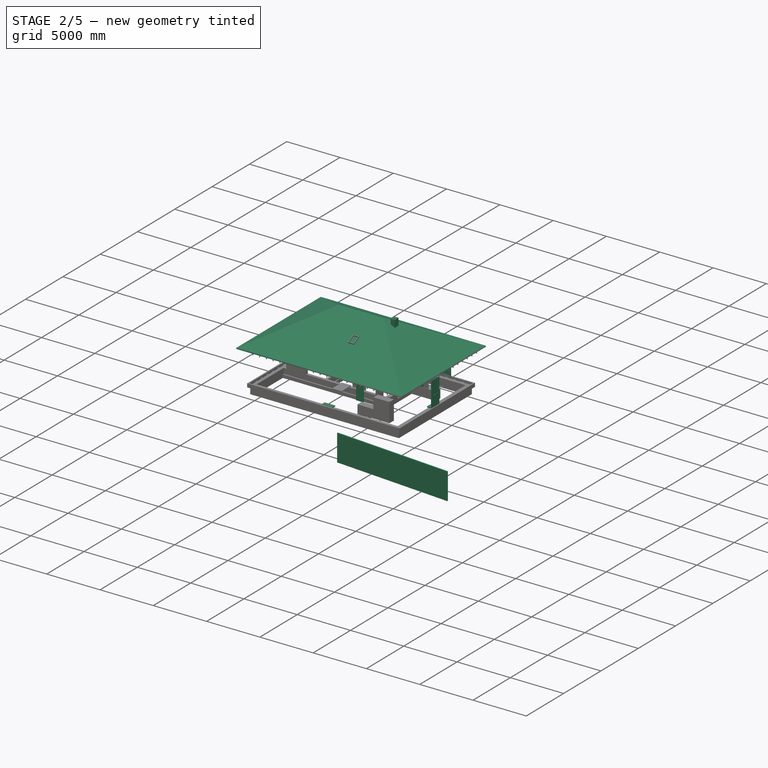
[diagram: stage 2 of 5 — iso view after this stage's code; geometry added in this stage tinted green]
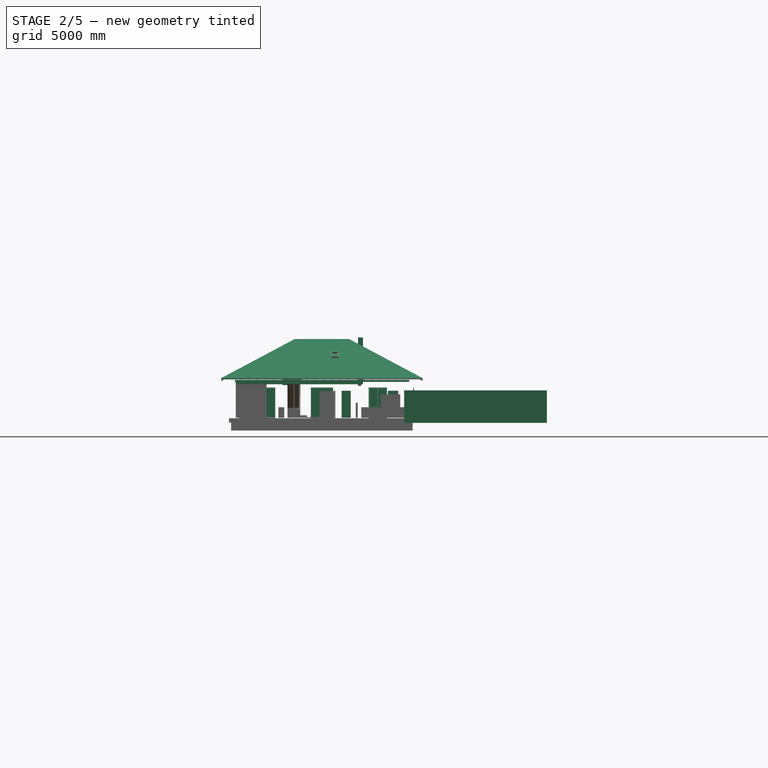
[diagram: stage 2 of 5 — front view after this stage's code; geometry added in this stage tinted green]
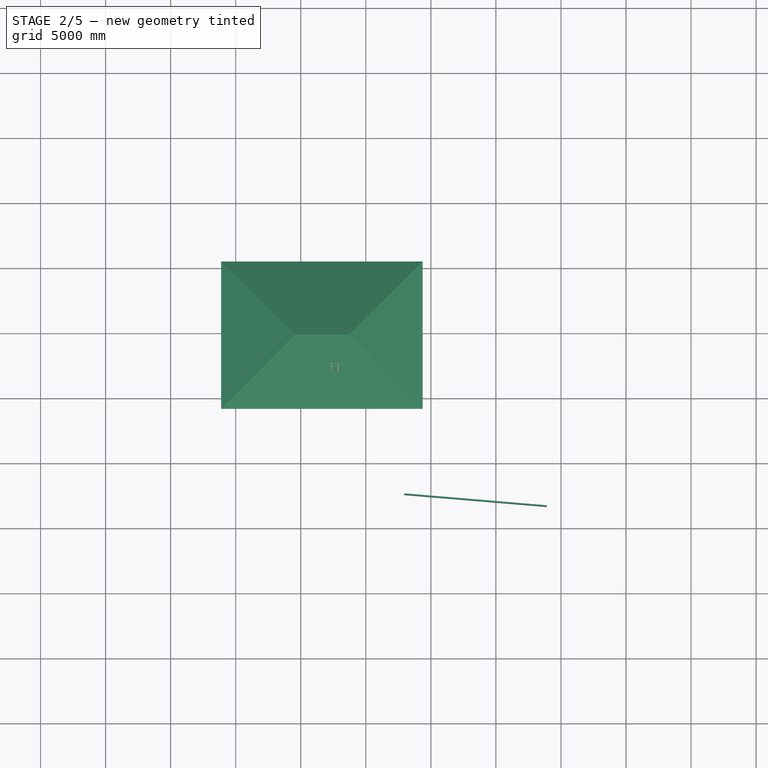
[diagram: stage 2 of 5 — top view after this stage's code; geometry added in this stage tinted green]
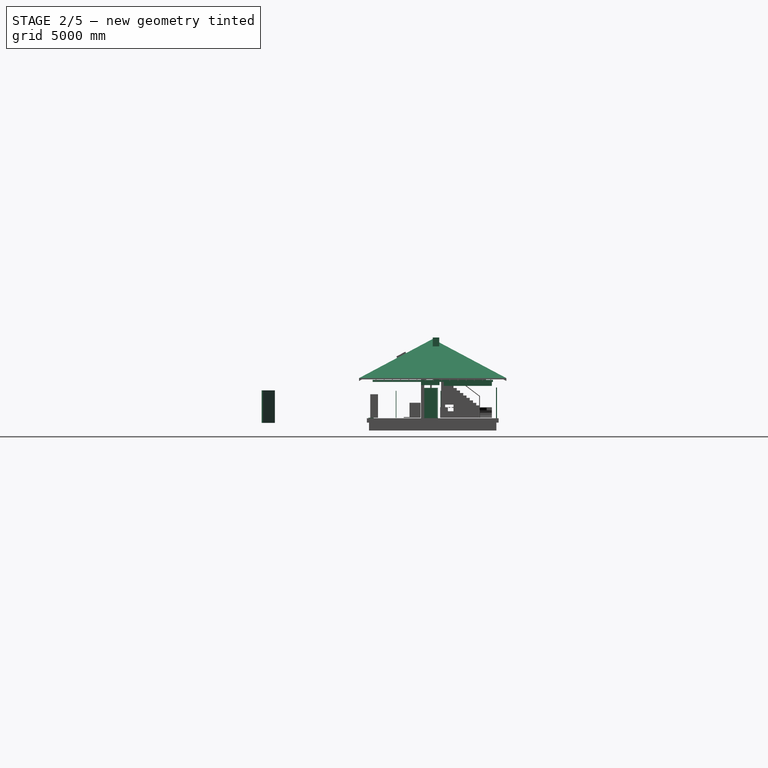
[diagram: stage 2 of 5 — right view after this stage's code; geometry added in this stage tinted green]
FEATURE [App::GeometryPython] BuildingPart013  label="Утеплитель полки облицовки"  # Arch/BIM 172 (typed FeaturePython)
  Area = 0
  Group = -> [Array,Array010,Array011,Array012]
  Height = 0
  HeightPropagate = true
  IfcType = 172
  LevelOffset = 0
  PredefinedType = 0
FEATURE [Part::Part2DObjectPython] Line1076  # Draft 2D object (typed FeaturePython)
  ChamferSize = 0
  Closed = true
  End = (0,260,0)
  FilletRadius = 0
  Length = 13250
  MakeFace = false
  Placement = pos=(12080,260,0) rot=(0,0,1;0rad)
  Points = (2) [(1170,-9.09495e-13,0),(-12080,-9.09495e-13,0)]
  Start = (13250,260,0)
  Subdivisions = 0
FEATURE [Part::Part2DObjectPython] Circle071  # Draft 2D object (typed FeaturePython)
  FirstAngle = 0
  LastAngle = 0
  MakeFace = false
  Placement = pos=(8500,900,0) rot=(0,0,1;0rad)
  Radius = 580
FEATURE [Part::Part2DObjectPython] Circle072  # Draft 2D object (typed FeaturePython)
  FirstAngle = 0
  LastAngle = 0
  MakeFace = false
  Placement = pos=(8500,900,0) rot=(0,0,1;0rad)
  Radius = 500
FEATURE [Part::Part2DObjectPython] Circle073  label="люк_контур 001"  # Draft 2D object (typed FeaturePython)
  FirstAngle = 0
  LastAngle = 0
  MakeFace = false
  Placement = pos=(8500,1000,0) rot=(0,0,1;0rad)
  Radius = 350
FEATURE [Part::FeaturePython] Structure037  label="проём в перекрытии 004"  # Arch/BIM 172 (typed FeaturePython)
  Base = -> Rectangle1992
  FaceMaker = 0
  Height = 4500
  HorizontalArea = 3.4e+06
  IfcType = 172
  Length = 0
  MoveBase = false
  MoveWithHost = false
  Nodes = (2) [(4480,7100,0),(4480,7100,4500)]
  NodesOffset = 0
  Normal = (0,0,0)
  PerimeterLength = 8800
  PredefinedType = 0
  VerticalArea = 3.96e+07
  Width = 100
FEATURE [Part::Part2DObjectPython] Wire423  # Draft 2D object (typed FeaturePython)
  ChamferSize = 0
  Closed = true
  End = (4545,4805,0)
  FilletRadius = 0
  Length = 35673
  MakeFace = false
  Placement = pos=(-1160,8830,0) rot=(0,0,1;0rad)
  Points = (4) [(40,1640,0),(15530,1640,0),(9865,-4025,0),(5705,-4025,0)]
  Start = (-1120,10470,0)
  Subdivisions = 0
FEATURE [Part::Part2DObjectPython] Wire424  # Draft 2D object (typed FeaturePython)
  ChamferSize = 0
  Closed = true
  End = (-1120,-860,0)
  FilletRadius = 0
  Length = 27353
  MakeFace = false
  Placement = pos=(-1160,8830,0) rot=(0,0,1;0rad)
  Points = (3) [(40,1640,0),(5705,-4025,0),(40,-9690,0)]
  Start = (-1120,10470,0)
  Subdivisions = 0
FEATURE [Part::FeaturePython] Structure048  label="вычитаемый объём 001"  # Arch/BIM 172 (typed FeaturePython)
  Base = -> Wire423
  FaceMaker = 0
  Height = 4000
  HorizontalArea = 5.56586e+07
  IfcType = 172
  Length = 0
  MoveBase = false
  MoveWithHost = false
  Nodes = (2) [(6625,8181.9,0),(6625,8181.9,4000)]
  NodesOffset = 0
  Normal = (0,0,1)
  PerimeterLength = 35673
  Placement = pos=(0,0,3160) rot=(0,0,1;0rad)
  PredefinedType = 0
  VerticalArea = 1.42692e+08
  Width = 100
FEATURE [Part::FeaturePython] Structure049  label="вычитаемый объём 002"  # Arch/BIM 172 (typed FeaturePython)
  Base = -> Wire424
  FaceMaker = 0
  Height = 4000
  HorizontalArea = 3.20922e+07
  IfcType = 172
  Length = 0
  MoveBase = false
  MoveWithHost = false
  Nodes = (2) [(506.667,3830,0),(506.667,3830,4000)]
  NodesOffset = 0
  Normal = (0,0,1)
  PerimeterLength = 27353
  Placement = pos=(0,0,3160) rot=(0,0,1;0rad)
  PredefinedType = 0
  VerticalArea = 1.09412e+08
  Width = 100
FEATURE [Part::Part2DObjectPython] Wire425  # Draft 2D object (typed FeaturePython)
  ChamferSize = 0
  Closed = true
  End = (14370,-860,0)
  FilletRadius = 0
  Length = 35673
  MakeFace = false
  Placement = pos=(-1160,-1170,0) rot=(0,0,1;0rad)
  Points = (4) [(40,310,0),(5705,5975,0),(9865,5975,0),(15530,310,0)]
  Start = (-1120,-860,0)
  Subdivisions = 0
  Support = -> [Structure048]
FEATURE [Part::Part2DObjectPython] Wire426  # Draft 2D object (typed FeaturePython)
  ChamferSize = 0
  Closed = true
  End = (14370,-860,0)
  FilletRadius = 0
  Length = 27353
  MakeFace = false
  Placement = pos=(9680,3830,0) rot=(0,0,1;0rad)
  Points = (3) [(-975,975,0),(4690,6640,0),(4690,-4690,0)]
  Start = (8705,4805,0)
  Subdivisions = 0
FEATURE [Part::FeaturePython] Structure050  label="вычитаемый объём 004"  # Arch/BIM 172 (typed FeaturePython)
  Base = -> Wire425
  FaceMaker = 0
  Height = 4000
  HorizontalArea = 5.56586e+07
  IfcType = 172
  Length = 0
  MoveBase = false
  MoveWithHost = false
  Nodes = (2) [(6040,886.738,0),(6040,886.738,4000)]
  NodesOffset = 0
  Normal = (0,0,1)
  PerimeterLength = 35673
  Placement = pos=(0,0,3160) rot=(0,0,1;0rad)
  PredefinedType = 0
  VerticalArea = 1.42692e+08
  Width = 100
FEATURE [Part::FeaturePython] Structure051  label="вычитаемый объём 003"  # Arch/BIM 172 (typed FeaturePython)
  Base = -> Wire426
  FaceMaker = 0
  Height = 4000
  HorizontalArea = 32092225
  IfcType = 172
  Length = 0
  MoveBase = false
  MoveWithHost = false
  Nodes = (2) [(12481.7,4805,0),(12481.7,4805,4000)]
  NodesOffset = 0
  Normal = (0,0,1)
  PerimeterLength = 27353
  Placement = pos=(0,0,3160) rot=(0,0,1;0rad)
  PredefinedType = 0
  VerticalArea = 1.09412e+08
  Width = 100
FEATURE [Part::Part2DObjectPython] Line1083  # Draft 2D object (typed FeaturePython)
  ChamferSize = 0
  Closed = false
  End = (0,3830,6545.19)
  FilletRadius = 0
  Length = 6103.87
  MakeFace = false
  Placement = pos=(0,8830,3044.15) rot=(0.57735,0.57735,0.57735;2.0944rad)
  Points = (2) [(0,0,0),(-5000,3501.04,0)]
  Start = (0,8830,3044.15)
  Subdivisions = 0
FEATURE [Part::Part2DObjectPython] Rectangle2289  # Draft 2D object (typed FeaturePython)
  ChamferSize = 0
  Columns = 1
  FilletRadius = 0
  Height = 900
  Length = 50
  MakeFace = false
  Placement = pos=(0,8807.98,2996.65) rot=(0.690104,0.217974,0.690104;2.71236rad)
  Rows = 1
FEATURE [Part::FeaturePython] Wall063  label="Объем стоек стропильной системы"  # Arch/BIM 166 (typed FeaturePython)
  Align = 0
  Area = 34896000
  Base = -> Rectangle2286
  BlockHeight = 0
  BlockLength = 0
  CountBroken = 0
  CountEntire = 0
  Face = 0
  Height = 1200
  HorizontalArea = 5.4796e+06
  IfcType = 166
  Joint = 0
  Length = 29080
  MakeBlocks = false
  MoveBase = false
  MoveWithHost = false
  Normal = (0,0,0)
  OffsetFirst = 0
  OffsetSecond = 0
  PerimeterLength = 58060
  Placement = pos=(0,0,3210) rot=(0,0,1;0rad)
  PredefinedType = 0
  Subtractions = -> [Structure037]
  VerticalArea = 69672000
  Width = 190
FEATURE [Part::FeaturePython] Structure053  label="Объём затяжек"  # Arch/BIM 172 (typed FeaturePython)
  Base = -> Rectangle2282
  FaceMaker = 0
  Height = 190
  HorizontalArea = 5580000
  IfcType = 172
  Length = 0
  MoveBase = false
  MoveWithHost = false
  Nodes = (2) [(6625,4805,5420),(6625,4805,5610)]
  NodesOffset = 0
  Normal = (0,0,0)
  PerimeterLength = 11480
  PredefinedType = 0
  VerticalArea = 2181200
  Width = 100
FEATURE [Part::FeaturePython] Array015  # Draft array (typed FeaturePython)
  Angle = 360
  ArrayType = 0
  Axis = (0,0,1)
  Base = -> Structure047
  Center = (0,0,0)
  Fuse = false
  IntervalAxis = (0,0,0)
  IntervalX = (630,0,0)
  IntervalY = (0,1,0)
  IntervalZ = (0,0,1)
  NumberPolar = 1
  NumberX = 7
  NumberY = 1
  NumberZ = 1
  Placement = pos=(4610,-1.819e-12,0) rot=(0,0,1;0rad)
FEATURE [App::GeometryPython] BuildingPart033  label="хозблок (бытовка)"  # Arch/BIM 10 (typed FeaturePython)
  Area = 0
  BuildingType = 0
  CompositionType = 0
  ElevationOfRefHeight = 0
  ElevationOfTerrain = 0
  Group = -> [Roof011,Wall097,Structure132]
  Height = 0
  HeightPropagate = true
  IfcType = 10
  LevelOffset = 0
  LongName = хозблок (бытовка)
FEATURE [Part::Part2DObjectPython] Rectangle2378  # Draft 2D object (typed FeaturePython)
  ChamferSize = 0
  Columns = 1
  FilletRadius = 0
  Height = 7000
  Length = 9500
  MakeFace = false
  Placement = pos=(17916.6,-6918.81,0) rot=(0,0,-1;0.068796rad)
  Rows = 1
FEATURE [Part::Part2DObjectPython] Rectangle2379  # Draft 2D object (typed FeaturePython)
  ChamferSize = 0
  Columns = 1
  FilletRadius = 0
  Height = 100
  Length = 5500
  MakeFace = false
  Placement = pos=(18428,-7890.57,0) rot=(0,0,-1;0.083489rad)
  Rows = 1
FEATURE [Part::FeaturePython] Structure137  label="проём ворот"  # Arch/BIM 172 (typed FeaturePython)
  Base = -> Rectangle2379
  FaceMaker = 0
  Height = 2500
  HorizontalArea = 550000
  IfcType = 172
  Length = 0
  MoveBase = false
  MoveWithHost = false
  Nodes = (2) [(21172.6,-8270.08,0),(21172.6,-8270.08,2500)]
  NodesOffset = 0
  Normal = (0,0,0)
  PerimeterLength = 11200
  Placement = pos=(0,0,-400) rot=(0,0,1;0rad)
  PredefinedType = 0
  VerticalArea = 2.8e+07
  Width = 100
FEATURE [Part::FeaturePython] Structure138  label="зона отката ворот ворот"  # Arch/BIM 172 (typed FeaturePython)
  Base = -> Rectangle2379
  FaceMaker = 0
  Height = 2500
  HorizontalArea = 550000
  IfcType = 172
  Length = 0
  MoveBase = false
  MoveWithHost = false
  Nodes = (2) [(21172.6,-8270.08,0),(21172.6,-8270.08,2500)]
  NodesOffset = 0
  Normal = (0,0,0)
  PerimeterLength = 11200
  Placement = pos=(-5480.84,458.658,-400) rot=(0,0,1;0rad)
  PredefinedType = 0
  VerticalArea = 2.8e+07
  Width = 100
FEATURE [Part::Part2DObjectPython] Rectangle2380  # Draft 2D object (typed FeaturePython)
  ChamferSize = 0
  Columns = 1
  FilletRadius = 0
  Height = 50
  Length = 5500
  MakeFace = false
  Placement = pos=(18428,-7890.57,0) rot=(0,0,-1;0.083489rad)
  Rows = 1
FEATURE [Part::FeaturePython] Structure139  label="створка ворот"  # Arch/BIM 172 (typed FeaturePython)
  Base = -> Rectangle2380
  FaceMaker = 0
  Height = 2500
  HorizontalArea = 275000
  IfcType = 172
  Length = 0
  MoveBase = false
  MoveWithHost = false
  Nodes = (2) [(21172.6,-8270.08,0),(21172.6,-8270.08,2500)]
  NodesOffset = 0
  Normal = (0,0,0)
  PerimeterLength = 11100
  Placement = pos=(0,0,-400) rot=(0,0,1;0rad)
  PredefinedType = 0
  VerticalArea = 2.775e+07
  Width = 100
FEATURE [Part::Part2DObjectPython] Rectangle2783  label="Д80-015"  # Draft 2D object (typed FeaturePython)
  ChamferSize = 0
  Columns = 1
  FilletRadius = 0
  Height = 120
  Length = 800
  MakeFace = true
  Placement = pos=(12500,5450,0) rot=(0,0,1;3.14159rad)
  Rows = 1
FEATURE [Part::Part2DObjectPython] Rectangle2788  label="вн_контур"  # Draft 2D object (typed FeaturePython)
  ChamferSize = 0
  Columns = 1
  FilletRadius = 0
  Height = 9090
  Length = 13250
  MakeFace = false
  Placement = pos=(0,260,0) rot=(0,0,1;0rad)
  Rows = 1
FEATURE [Part::FeaturePython] Wall057  label="мауэрлат"  # Arch/BIM 166 (typed FeaturePython)
  Align = 0
  Area = 4468000
  Base = -> Rectangle2788
  BlockHeight = 0
  BlockLength = 0
  CountBroken = 0
  CountEntire = 0
  Face = 0
  Height = 100
  HorizontalArea = 6852000
  IfcType = 166
  Joint = 0
  Length = 44680
  MakeBlocks = false
  MoveBase = false
  MoveWithHost = false
  Normal = (0,0,0)
  Offset = 50
  OffsetFirst = 0
  OffsetSecond = 0
  PerimeterLength = 46280
  Placement = pos=(0,0,3160) rot=(0,0,1;0rad)
  PredefinedType = 0
  VerticalArea = 9136000
  Width = 150
FEATURE [App::GeometryPython] BuildingPart066  label="Диван прихожая"  # Arch/BIM 172 (typed FeaturePython)
  Area = 0
  Group = -> [Structure283]
  Height = 0
  HeightPropagate = true
  IfcType = 172
  LevelOffset = 0
  PredefinedType = 0
FEATURE [App::GeometryPython] BuildingPart067  label="Участок с ограждением"  # Arch/BIM 172 (typed FeaturePython)
  Area = 0
  Group = -> [BuildingPart034,Structure133,Wall095]
  Height = 0
  HeightPropagate = true
  IfcData = attributes={"GlobalId": {"name": "GlobalId", "type": "IfcGloballyUniqueId", "is_enum": false, "enum_values": []}, "Description": {"... (+484 chars omitted),+1 more (map truncated)
  IfcType = 172
  LevelOffset = 0
  PredefinedType = 0
FEATURE [Part::Part2DObjectPython] Line1282  label="Line1283"  # Draft 2D object (typed FeaturePython)
  ChamferSize = 0
  Closed = true
  End = (9.095e-13,3900,0)
  FilletRadius = 0
  Length = 9400
  MakeFace = false
  Placement = pos=(5250,16285,0) rot=(0,0,1;1.5708rad)
  Points = (2) [(-12385,-4150,0),(-12385,5250,0)]
  Start = (9400,3900,0)
  Subdivisions = 0
FEATURE [Part::FeaturePython] Wall166  label="балка продольная 004"  # Arch/BIM 166 (typed FeaturePython)
  Align = 0
  Area = 1692000
  Base = -> Line1282
  BlockHeight = 0
  BlockLength = 0
  CountBroken = 0
  CountEntire = 0
  Face = 0
  Height = 180
  HorizontalArea = 2.35e+06
  IfcType = 166
  Joint = 0
  Length = 9400
  MakeBlocks = false
  MoveBase = false
  MoveWithHost = false
  Normal = (0,0,0)
  OffsetFirst = 0
  OffsetSecond = 0
  PerimeterLength = 19300
  Placement = pos=(0,0,2570) rot=(0,0,1;0rad)
  PredefinedType = 0
  VerticalArea = 3.474e+06
  Width = 250
FEATURE [Part::Extrusion] Extrude067  label=" Вентстояк армпояс 009"
  Base = -> Sketch262
  Dir = (0,0,1)
  DirMode = 2
  FaceMakerClass = Part::FaceMakerBullseye
  LengthFwd = 250
  LengthRev = 0
  Placement = pos=(0,0,2750) rot=(0,0,1;0rad)
  Reversed = true
  Solid = true
  Symmetric = false
FEATURE [Part::Extrusion] Extrude068  label=" Вентстояк армпояс 010"
  Base = -> Sketch276
  Dir = (0,0,1)
  DirMode = 2
  FaceMakerClass = Part::FaceMakerBullseye
  LengthFwd = 180
  LengthRev = 0
  Placement = pos=(0,-500,2750) rot=(0,0,1;0rad)
  Reversed = true
  Solid = true
  Symmetric = false
FEATURE [Part::Part2DObjectPython] Line1283  label="Line1284"  # Draft 2D object (typed FeaturePython)
  ChamferSize = 0
  Closed = true
  End = (9400,9350,0)
  FilletRadius = 0
  Length = 3700
  MakeFace = false
  Placement = pos=(21785,4100,0) rot=(0,0,1;0rad)
  Points = (2) [(-12385,1550,0),(-12385,5250,0)]
  Start = (9400,5650,0)
  Subdivisions = 0
FEATURE [Part::FeaturePython] Wall167  label="балка продольная 005"  # Arch/BIM 166 (typed FeaturePython)
  Align = 0
  Area = 1110000
  Base = -> Line1283
  BlockHeight = 0
  BlockLength = 0
  CountBroken = 0
  CountEntire = 0
  Face = 0
  Height = 300
  HorizontalArea = 925000
  IfcType = 166
  Joint = 0
  Length = 3700
  MakeBlocks = false
  MoveBase = false
  MoveWithHost = false
  Normal = (0,0,0)
  OffsetFirst = 0
  OffsetSecond = 0
  PerimeterLength = 7900
  Placement = pos=(0,0,2450) rot=(0,0,1;0rad)
  PredefinedType = 0
  VerticalArea = 2.37e+06
  Width = 250
FEATURE [Part::Part2DObjectPython] Line1284  label="Line1285"  # Draft 2D object (typed FeaturePython)
  ChamferSize = 0
  Closed = true
  End = (3730,5330,0)
  FilletRadius = 0
  Length = 1430
  MakeFace = false
  Placement = pos=(16115,2350,0) rot=(0,0,1;0rad)
  Points = (2) [(-12385,1550,0),(-12385,2980,0)]
  Start = (3730,3900,0)
  Subdivisions = 0
FEATURE [Part::FeaturePython] Wall168  label="балка продольная 006"  # Arch/BIM 166 (typed FeaturePython)
  Align = 0
  Area = 357500
  Base = -> Line1284
  BlockHeight = 0
  BlockLength = 0
  CountBroken = 0
  CountEntire = 0
  Face = 0
  Height = 250
  HorizontalArea = 357500
  IfcType = 166
  Joint = 0
  Length = 1430
  MakeBlocks = false
  MoveBase = false
  MoveWithHost = false
  Normal = (0,0,0)
  OffsetFirst = 0
  OffsetSecond = 0
  PerimeterLength = 3360
  Placement = pos=(0,0,2500) rot=(0,0,1;0rad)
  PredefinedType = 0
  VerticalArea = 840000
  Width = 250
FEATURE [Part::Extrusion] Extrude069  label="ПНО 54-12-8-001"
  Base = -> Sketch231
  Dir = (0,1,0)
  DirMode = 0
  FaceMakerClass = Part::FaceMakerBullseye
  LengthFwd = 5380
  LengthRev = 0
  Placement = pos=(4980,4060,2750) rot=(0,0,1;0rad)
  Solid = true
  Symmetric = false
FEATURE [Part::FeaturePython] Array042  label="ПНО-54-12 2шт."  # Draft array (typed FeaturePython)
  Angle = 360
  ArrayType = 0
  Axis = (0,0,1)
  Base = -> Extrude069
  Center = (0,0,0)
  Fuse = false
  IntervalAxis = (0,0,0)
  IntervalX = (1205,0,0)
  IntervalY = (0,0,0)
  IntervalZ = (0,0,1)
  NumberPolar = 1
  NumberX = 2
  NumberY = 1
  NumberZ = 1
FEATURE [Part::Extrusion] Extrude070  label="ПНО 54-10-6-004"
  Base = -> Sketch249
  Dir = (0,1,0)
  DirMode = 0
  FaceMakerClass = Part::FaceMakerBullseye
  LengthFwd = 5380
  LengthRev = 0
  Placement = pos=(7390,4060,2750) rot=(0,0,1;0rad)
  Solid = true
  Symmetric = false
FEATURE [Part::FeaturePython] Array043  label="ПНО-54-10 2шт."  # Draft array (typed FeaturePython)
  Angle = 360
  ArrayType = 0
  Axis = (0,0,1)
  Base = -> Extrude070
  Center = (0,0,0)
  Fuse = false
  IntervalAxis = (0,0,0)
  IntervalX = (1005,0,0)
  IntervalY = (0,0,0)
  IntervalZ = (0,0,1)
  NumberPolar = 1
  NumberX = 2
  NumberY = 1
  NumberZ = 1
FEATURE [Part::Extrusion] Extrude071  label="ПНО 38-10-6-005"
  Base = -> Sketch249
  Dir = (0,1,0)
  DirMode = 0
  FaceMakerClass = Part::FaceMakerBullseye
  LengthFwd = 3780
  LengthRev = 0
  Placement = pos=(3710,5335,2750) rot=(0,0,1;1.5708rad)
  Solid = true
  Symmetric = false
FEATURE [Part::FeaturePython] Array044  label="ПНО-38-10 1шт."  # Draft array (typed FeaturePython)
  Angle = 360
  ArrayType = 0
  Axis = (0,0,1)
  Base = -> Extrude071
  Center = (0,0,0)
  Fuse = false
  IntervalAxis = (0,0,0)
  IntervalX = (0,0,0)
  IntervalY = (0,1005,0)
  IntervalZ = (0,0,1)
  NumberPolar = 1
  NumberX = 1
  NumberY = 1
  NumberZ = 1
FEATURE [Part::Extrusion] Extrude072  label="ПНО 38-10-6-006"
  Base = -> Sketch249
  Dir = (0,1,0)
  DirMode = 0
  FaceMakerClass = Part::FaceMakerBullseye
  LengthFwd = 3780
  LengthRev = 0
  Placement = pos=(13340,275,2750) rot=(0,0,1;1.5708rad)
  Solid = true
  Symmetric = false
FEATURE [Part::FeaturePython] Array045  label="ПНО-38-10 2шт."  # Draft array (typed FeaturePython)
  Angle = 360
  ArrayType = 0
  Axis = (0,0,1)
  Base = -> Extrude072
  Center = (0,0,0)
  Fuse = false
  IntervalAxis = (0,0,0)
  IntervalX = (0,0,0)
  IntervalY = (0,1010,0)
  IntervalZ = (0,0,1)
  NumberPolar = 1
  NumberX = 1
  NumberY = 4
  NumberZ = 1
FEATURE [Part::Extrusion] Extrude073  label="ПНО 37-10-6-007"
  Base = -> Sketch249
  Dir = (0,1,0)
  DirMode = 0
  FaceMakerClass = Part::FaceMakerBullseye
  LengthFwd = 3680
  LengthRev = 0
  Placement = pos=(13340,4315,2750) rot=(0,0,1;1.5708rad)
  Solid = true
  Symmetric = false
FEATURE [Part::FeaturePython] Array046  label="ПНО-37-10 1шт."  # Draft array (typed FeaturePython)
  Angle = 360
  ArrayType = 0
  Axis = (0,0,1)
  Base = -> Extrude073
  Center = (0,0,0)
  Fuse = false
  IntervalAxis = (0,0,0)
  IntervalX = (0,0,0)
  IntervalY = (0,1000,0)
  IntervalZ = (0,0,1)
  NumberPolar = 1
  NumberX = 1
  NumberY = 1
  NumberZ = 1
FEATURE [Part::Extrusion] Extrude075  label="ПНО 38-10-6-007"
  Base = -> Sketch249
  Dir = (0,1,0)
  DirMode = 0
  FaceMakerClass = Part::FaceMakerBullseye
  LengthFwd = 3780
  LengthRev = 0
  Placement = pos=(13340,5320,2750) rot=(0,0,1;1.5708rad)
  Solid = true
  Symmetric = false
FEATURE [Part::FeaturePython] Array048  label="ПНО-38-10 4шт."  # Draft array (typed FeaturePython)
  Angle = 360
  ArrayType = 0
  Axis = (0,0,1)
  Base = -> Extrude075
  Center = (0,0,0)
  Fuse = false
  IntervalAxis = (0,0,0)
  IntervalX = (0,0,0)
  IntervalY = (0,1010,0)
  IntervalZ = (0,0,1)
  NumberPolar = 1
  NumberX = 1
  NumberY = 4
  NumberZ = 1
FEATURE [App::GeometryPython] BuildingPart006  label="Перекрытие плитами ПНО"  # Arch/BIM 172 (typed FeaturePython)
  Area = 0
  Group = -> [Array006,Array037,Array038,Array039,Array042,Array043,Array044,Array045,Array046,Array048]
  Height = 0
  HeightPropagate = true
  IfcType = 172
  LevelOffset = 0
  PredefinedType = 0
FEATURE [Part::Part2DObjectPython] Wire689  label="контур_по_плитам_перекрытия"  # Draft 2D object (typed FeaturePython)
  Area = 0
  ChamferSize = 0
  Closed = true
  End = (9395,190,0)
  FilletRadius = 0
  Length = 45320
  MakeFace = false
  Placement = pos=(5,-90,0) rot=(0,0,1;0rad)
  Points = (12) [(5.32907e-15,280,0),(1.29763e-12,4225,0),(-75,4225,0),(-75,9430,0),(4975,9430,0),(4975,9530,0),(9380,9530,0),(9380,9430,0),(13335,9430,0),+3 more]
  Start = (5,190,0)
  Subdivisions = 0
FEATURE [Part::FeaturePython] Structure  label="Пояс перекрытия вычит. объём 001"  # Arch/BIM 172 (typed FeaturePython)
  Base = -> Wire689
  FaceMaker = 0
  Height = 160
  HorizontalArea = 1.22511e+08
  IfcData = attributes={"GlobalId": {"name": "GlobalId", "type": "IfcGloballyUniqueId", "is_enum": false, "enum_values": []}, "Description": {"... (+484 chars omitted),+1 more (map truncated)
  IfcType = 172
  Length = 0
  MoveBase = false
  MoveWithHost = false
  Nodes = (2) [(6643.33,4665.64,0),(6643.33,4665.64,160)]
  NodesOffset = 0
  Normal = (0,0,1)
  PerimeterLength = 45320
  Placement = pos=(0,0,2750) rot=(0,0,1;0rad)
  PredefinedType = 0
  VerticalArea = 7251200
  Width = 100
FEATURE [Part::Extrusion] Extrude076  label=" Вентстояк верхняя часть 004"
  Base = -> Sketch265
  Dir = (0,0,1)
  DirMode = 2
  FaceMakerClass = Part::FaceMakerBullseye
  LengthFwd = 3250
  LengthRev = 0
  Placement = pos=(0,500,2910) rot=(0,0,1;0rad)
  Solid = true
  Symmetric = false
FEATURE [Sketcher::SketchObject] Sketch284
  FullyConstrained = false
  Placement = pos=(13770,4150,-180) rot=(0.57735,0.57735,0.57735;2.0944rad)
  sketch-geometry (16):
    g0: LineSegment StartX=0 StartY=0 StartZ=0 EndX=1050 EndY=0 EndZ=0
    g1: LineSegment StartX=1050 StartY=0 StartZ=0 EndX=1050 EndY=2335 EndZ=0
    g2: LineSegment StartX=1050 StartY=2335 StartZ=0 EndX=0 EndY=2335 EndZ=0
    g3: LineSegment StartX=0 StartY=2335 StartZ=0 EndX=0 EndY=0 EndZ=0
    g4: LineSegment StartX=50 StartY=0 StartZ=0 EndX=1000 EndY=0 EndZ=0
    g5: LineSegment StartX=1000 StartY=0 StartZ=0 EndX=1000 EndY=2285 EndZ=0
    g6: LineSegment StartX=1000 StartY=2285 StartZ=0 EndX=50 EndY=2285 EndZ=0
    g7: LineSegment StartX=50 StartY=2285 StartZ=0 EndX=50 EndY=0 EndZ=0
    g8: LineSegment StartX=55 StartY=5 StartZ=0 EndX=995 EndY=5 EndZ=0
    g9: LineSegment StartX=995 StartY=5 StartZ=0 EndX=995 EndY=2280 EndZ=0
    g10: LineSegment StartX=995 StartY=2280 StartZ=0 EndX=55 EndY=2280 EndZ=0
    g11: LineSegment StartX=55 StartY=2280 StartZ=0 EndX=55 EndY=5 EndZ=0
    g12: LineSegment StartX=205 StartY=1005 StartZ=0 EndX=845 EndY=1005 EndZ=0
    g13: LineSegment StartX=845 StartY=1005 StartZ=0 EndX=845 EndY=2130 EndZ=0
    g14: LineSegment StartX=845 StartY=2130 StartZ=0 EndX=205 EndY=2130 EndZ=0
    g15: LineSegment StartX=205 StartY=2130 StartZ=0 EndX=205 EndY=1005 EndZ=0
  constraints (47):
    c: Coincident(g0,g1)
    c: Coincident(g1,g2)
    c: Coincident(g2,g3)
    c: Coincident(g3,g0)
    c: Horizontal(g0)
    c: Horizontal(g2)
    c: Vertical(g1)
    c: Vertical(g3)
    c: Coincident(g4,g5)
    c: Coincident(g5,g6)
    c: Coincident(g6,g7)
    c: Coincident(g7,g4)
    c: Horizontal(g4)
    c: Horizontal(g6)
    c: Vertical(g5)
    c: Vertical(g7)
    c: DistanceY(g1) = 2335  'Height'
    c: DistanceX(g0) = 1050  'Width'
    c: DistanceY(g6,g2) = 50  'Frame1'
    c: DistanceX(g2,g6) = 50  'Frame2'
    c: DistanceX(g4,g0) = 50  'Frame3'
    c: DistanceY(g0,g4) = 0
    c: Coincident(g0,g-1)
    c: Coincident(g8,g9)
    c: Coincident(g9,g10)
    c: Coincident(g10,g11)
    c: Coincident(g11,g8)
    c: Horizontal(g8)
    c: Horizontal(g10)
    c: Vertical(g9)
    c: Vertical(g11)
    c: Coincident(g12,g13)
    c: Coincident(g13,g14)
    c: Coincident(g14,g15)
    c: Coincident(g15,g12)
    c: Horizontal(g12)
    c: Horizontal(g14)
    c: Vertical(g13)
    c: Vertical(g15)
    c: DistanceX(g8,g12) = 150
    c: DistanceY(g8,g12) = 1000
    c: DistanceX(g14,g10) = 150
    c: DistanceY(g14,g10) = 150
    c: DistanceX(g4,g8) = 5
    c: DistanceY(g4,g8) = 5
    c: DistanceX(g10,g6) = 5
    c: DistanceY(g10,g6) = 5
FEATURE [Part::FeaturePython] Window038  label="Д-100-002"  # Arch/BIM 41 (typed FeaturePython)
  Area = 2451750
  Base = -> Sketch284
  Frame = 50
  Height = 2335
  HoleDepth = 0
  HoleWire = 0
  HorizontalArea = 0
  IfcData = attributes={"OverallHeight": {"value": 2335.0}, "OverallWidth": {"value": 1050.0}}
  IfcType = 41
  LouvreSpacing = 0
  LouvreWidth = 0
  MoveBase = false
  MoveWithHost = true
  Normal = (-1,0,0)
  Offset = 70
  Opening = 0
  OperationType = 0
  OverallHeight = 2335
  OverallWidth = 1050
  PerimeterLength = 0
  Placement = pos=(0,0,140) rot=(0,0,1;0rad)
  PredefinedType = 0
  Preset = 7
  SymbolElevation = false
  SymbolPlan = false
  VerticalArea = 0
  Width = 1050
  WindowParts = OuterFrame | Frame | Wire0,Wire1 | 0.0+V | 0.00+V | InnerFrame | Frame | Wire2,Wire3 | 0.00+V | 0.0+V | InnerGlass | Glass panel | Wire3 | 8.0 | 40.0+V
  expr: OverallHeight = .Height.Value
  expr: OverallWidth = .Width.Value
FEATURE [Sketcher::SketchObject] Sketch286
  FullyConstrained = true
  Placement = pos=(3035,9670,-180) rot=(0,0.707107,0.707107;3.14159rad)
  sketch-geometry (24):
    g0: LineSegment StartX=0 StartY=0 StartZ=0 EndX=1400 EndY=0 EndZ=0
    g1: LineSegment StartX=1400 StartY=0 StartZ=0 EndX=1400 EndY=2360 EndZ=0
    g2: LineSegment StartX=1400 StartY=2360 StartZ=0 EndX=0 EndY=2360 EndZ=0
    g3: LineSegment StartX=0 StartY=2360 StartZ=0 EndX=0 EndY=0 EndZ=0
    g4: LineSegment StartX=50 StartY=50 StartZ=0 EndX=1350 EndY=50 EndZ=0
    g5: LineSegment StartX=1350 StartY=50 StartZ=0 EndX=1350 EndY=2310 EndZ=0
    g6: LineSegment StartX=1350 StartY=2310 StartZ=0 EndX=50 EndY=2310 EndZ=0
    g7: LineSegment StartX=50 StartY=2310 StartZ=0 EndX=50 EndY=50 EndZ=0
    g8: LineSegment StartX=55 StartY=55 StartZ=0 EndX=697.5 EndY=55 EndZ=0
    g9: LineSegment StartX=697.5 StartY=55 StartZ=0 EndX=697.5 EndY=2305 EndZ=0
    g10: LineSegment StartX=697.5 StartY=2305 StartZ=0 EndX=55 EndY=2305 EndZ=0
    g11: LineSegment StartX=55 StartY=2305 StartZ=0 EndX=55 EndY=55 EndZ=0
    g12: LineSegment StartX=105 StartY=105 StartZ=0 EndX=647.5 EndY=105 EndZ=0
    g13: LineSegment StartX=647.5 StartY=105 StartZ=0 EndX=647.5 EndY=2255 EndZ=0
    g14: LineSegment StartX=647.5 StartY=2255 StartZ=0 EndX=105 EndY=2255 EndZ=0
    g15: LineSegment StartX=105 StartY=2255 StartZ=0 EndX=105 EndY=105 EndZ=0
    g16: LineSegment StartX=702.5 StartY=55 StartZ=0 EndX=1345 EndY=55 EndZ=0
    g17: LineSegment StartX=1345 StartY=55 StartZ=0 EndX=1345 EndY=2305 EndZ=0
    g18: LineSegment StartX=1345 StartY=2305 StartZ=0 EndX=702.5 EndY=2305 EndZ=0
    g19: LineSegment StartX=702.5 StartY=2305 StartZ=0 EndX=702.5 EndY=55 EndZ=0
    g20: LineSegment StartX=752.5 StartY=105 StartZ=0 EndX=1295 EndY=105 EndZ=0
    g21: LineSegment StartX=1295 StartY=105 StartZ=0 EndX=1295 EndY=2255 EndZ=0
    g22: LineSegment StartX=1295 StartY=2255 StartZ=0 EndX=752.5 EndY=2255 EndZ=0
    g23: LineSegment StartX=752.5 StartY=2255 StartZ=0 EndX=752.5 EndY=105 EndZ=0
  constraints (71):
    c: Coincident(g0,g1)
    c: Coincident(g1,g2)
    c: Coincident(g2,g3)
    c: Coincident(g3,g0)
    c: Horizontal(g0)
    c: Horizontal(g2)
    c: Vertical(g1)
    c: Vertical(g3)
    c: Coincident(g4,g5)
    c: Coincident(g5,g6)
    c: Coincident(g6,g7)
    c: Coincident(g7,g4)
    c: Horizontal(g4)
    c: Horizontal(g6)
    c: Vertical(g5)
    c: Vertical(g7)
    c: DistanceY(g1) = 2360  'Height'
    c: DistanceX(g0) = 1400  'Width'
    c: DistanceY(g6,g2) = 50  'Frame1'
    c: DistanceX(g2,g6) = 50  'Frame2'
    c: DistanceX(g4,g0) = 50  'Frame3'
    c: DistanceY(g0,g4) = 50  'Frame4'
    c: Coincident(g0,g-1)
    c: Coincident(g8,g9)
    c: Coincident(g9,g10)
    c: Coincident(g10,g11)
    c: Coincident(g11,g8)
    c: Horizontal(g8)
    c: Horizontal(g10)
    c: Vertical(g9)
    c: Vertical(g11)
    c: Coincident(g12,g13)
    c: Coincident(g13,g14)
    c: Coincident(g14,g15)
    c: Coincident(g15,g12)
    c: Horizontal(g12)
    c: Horizontal(g14)
    c: Vertical(g13)
    c: Vertical(g15)
    c: Coincident(g16,g17)
    c: Coincident(g17,g18)
    c: Coincident(g18,g19)
    c: Coincident(g19,g16)
    c: Horizontal(g16)
    c: Horizontal(g18)
    c: Vertical(g17)
    c: Vertical(g19)
    c: Coincident(g20,g21)
    c: Coincident(g21,g22)
    c: Coincident(g22,g23)
    c: Coincident(g23,g20)
    c: Horizontal(g20)
    c: Horizontal(g22)
    c: Vertical(g21)
    c: Vertical(g23)
    c: DistanceY(g8,g12) = 50  'Frame5'
    c: DistanceX(g8,g12) = 50  'Frame6'
    c: DistanceX(g21,g17) = 50  'Frame7'
    c: DistanceY(g21,g17) = 50  'Frame8'
    c: DistanceX(g16,g20) = 50  'Frame9'
    c: DistanceX(g14,g10) = 50  'Frame10'
    c: Equal(g22,g14)
    c: DistanceY(g8,g16) = 0
    c: DistanceY(g10,g18) = 0
    c: DistanceX(g4,g8) = 5
    c: DistanceY(g4,g8) = 5
    c: DistanceX(g6,g18) = -5
    c: DistanceY(g6,g18) = -5
    c: DistanceX(g9,g19) = 5
    c: PointOnObject(g13,g22)
    c: PointOnObject(g20,g12)
FEATURE [Part::FeaturePython] Window040  label="Д-140-004"  # Arch/BIM 170 (typed FeaturePython)
  Area = 3304000
  Base = -> Sketch286
  Frame = 50
  Height = 2360
  HoleDepth = 0
  HoleWire = 0
  HorizontalArea = 0
  IfcData = attributes={"OverallHeight": {"value": 2360.0}, "OverallWidth": {"value": 1400.0}}
  IfcType = 170
  LouvreSpacing = 0
  LouvreWidth = 0
  MoveBase = false
  MoveWithHost = true
  Normal = (0,1,0)
  Opening = 0
  OverallHeight = 2360
  OverallWidth = 1400
  PartitioningType = 0
  PerimeterLength = 0
  Placement = pos=(0,0,140) rot=(0,0,1;0rad)
  PredefinedType = 0
  Preset = 3
  SymbolElevation = false
  SymbolPlan = false
  VerticalArea = 0
  Width = 1400
  WindowParts = <same value as first occurrence — deduplicated (x7 in doc)>
  expr: OverallWidth = .Width.Value
  expr: OverallHeight = .Height.Value
FEATURE [Sketcher::SketchObject] Sketch287
  FullyConstrained = true
  Placement = pos=(7475,9670,-180) rot=(0,0.707107,0.707107;3.14159rad)
  sketch-geometry (24):
    g0: LineSegment StartX=0 StartY=0 StartZ=0 EndX=1700 EndY=0 EndZ=0
    g1: LineSegment StartX=1700 StartY=0 StartZ=0 EndX=1700 EndY=2360 EndZ=0
    g2: LineSegment StartX=1700 StartY=2360 StartZ=0 EndX=0 EndY=2360 EndZ=0
    g3: LineSegment StartX=0 StartY=2360 StartZ=0 EndX=0 EndY=0 EndZ=0
    g4: LineSegment StartX=50 StartY=50 StartZ=0 EndX=1650 EndY=50 EndZ=0
    g5: LineSegment StartX=1650 StartY=50 StartZ=0 EndX=1650 EndY=2310 EndZ=0
    g6: LineSegment StartX=1650 StartY=2310 StartZ=0 EndX=50 EndY=2310 EndZ=0
    g7: LineSegment StartX=50 StartY=2310 StartZ=0 EndX=50 EndY=50 EndZ=0
    g8: LineSegment StartX=55 StartY=55 StartZ=0 EndX=847.5 EndY=55 EndZ=0
    g9: LineSegment StartX=847.5 StartY=55 StartZ=0 EndX=847.5 EndY=2305 EndZ=0
    g10: LineSegment StartX=847.5 StartY=2305 StartZ=0 EndX=55 EndY=2305 EndZ=0
    g11: LineSegment StartX=55 StartY=2305 StartZ=0 EndX=55 EndY=55 EndZ=0
    g12: LineSegment StartX=105 StartY=105 StartZ=0 EndX=797.5 EndY=105 EndZ=0
    g13: LineSegment StartX=797.5 StartY=105 StartZ=0 EndX=797.5 EndY=2255 EndZ=0
    g14: LineSegment StartX=797.5 StartY=2255 StartZ=0 EndX=105 EndY=2255 EndZ=0
    g15: LineSegment StartX=105 StartY=2255 StartZ=0 EndX=105 EndY=105 EndZ=0
    g16: LineSegment StartX=852.5 StartY=55 StartZ=0 EndX=1645 EndY=55 EndZ=0
    g17: LineSegment StartX=1645 StartY=55 StartZ=0 EndX=1645 EndY=2305 EndZ=0
    g18: LineSegment StartX=1645 StartY=2305 StartZ=0 EndX=852.5 EndY=2305 EndZ=0
    g19: LineSegment StartX=852.5 StartY=2305 StartZ=0 EndX=852.5 EndY=55 EndZ=0
    g20: LineSegment StartX=902.5 StartY=105 StartZ=0 EndX=1595 EndY=105 EndZ=0
    g21: LineSegment StartX=1595 StartY=105 StartZ=0 EndX=1595 EndY=2255 EndZ=0
    g22: LineSegment StartX=1595 StartY=2255 StartZ=0 EndX=902.5 EndY=2255 EndZ=0
    g23: LineSegment StartX=902.5 StartY=2255 StartZ=0 EndX=902.5 EndY=105 EndZ=0
  constraints (71):
    c: Coincident(g0,g1)
    c: Coincident(g1,g2)
    c: Coincident(g2,g3)
    c: Coincident(g3,g0)
    c: Horizontal(g0)
    c: Horizontal(g2)
    c: Vertical(g1)
    c: Vertical(g3)
    c: Coincident(g4,g5)
    c: Coincident(g5,g6)
    c: Coincident(g6,g7)
    c: Coincident(g7,g4)
    c: Horizontal(g4)
    c: Horizontal(g6)
    c: Vertical(g5)
    c: Vertical(g7)
    c: DistanceY(g1) = 2360  'Height'
    c: DistanceX(g0) = 1700  'Width'
    c: DistanceY(g6,g2) = 50  'Frame1'
    c: DistanceX(g2,g6) = 50  'Frame2'
    c: DistanceX(g4,g0) = 50  'Frame3'
    c: DistanceY(g0,g4) = 50  'Frame4'
    c: Coincident(g0,g-1)
    c: Coincident(g8,g9)
    c: Coincident(g9,g10)
    c: Coincident(g10,g11)
    c: Coincident(g11,g8)
    c: Horizontal(g8)
    c: Horizontal(g10)
    c: Vertical(g9)
    c: Vertical(g11)
    c: Coincident(g12,g13)
    c: Coincident(g13,g14)
    c: Coincident(g14,g15)
    c: Coincident(g15,g12)
    c: Horizontal(g12)
    c: Horizontal(g14)
    c: Vertical(g13)
    c: Vertical(g15)
    c: Coincident(g16,g17)
    c: Coincident(g17,g18)
    c: Coincident(g18,g19)
    c: Coincident(g19,g16)
    c: Horizontal(g16)
    c: Horizontal(g18)
    c: Vertical(g17)
    c: Vertical(g19)
    c: Coincident(g20,g21)
    c: Coincident(g21,g22)
    c: Coincident(g22,g23)
    c: Coincident(g23,g20)
    c: Horizontal(g20)
    c: Horizontal(g22)
    c: Vertical(g21)
    c: Vertical(g23)
    c: DistanceY(g8,g12) = 50  'Frame5'
    c: DistanceX(g8,g12) = 50  'Frame6'
    c: DistanceX(g21,g17) = 50  'Frame7'
    c: DistanceY(g21,g17) = 50  'Frame8'
    c: DistanceX(g16,g20) = 50  'Frame9'
    c: DistanceX(g14,g10) = 50  'Frame10'
    c: Equal(g22,g14)
    c: DistanceY(g8,g16) = 0
    c: DistanceY(g10,g18) = 0
    c: DistanceX(g4,g8) = 5
    c: DistanceY(g4,g8) = 5
    c: DistanceX(g6,g18) = -5
    c: DistanceY(g6,g18) = -5
    c: DistanceX(g9,g19) = 5
    c: PointOnObject(g13,g22)
    c: PointOnObject(g20,g12)
FEATURE [Part::FeaturePython] Window041  label="Д-170-003"  # Arch/BIM 170 (typed FeaturePython)
  Area = 4012000
  Base = -> Sketch287
  Frame = 50
  Height = 2360
  HoleDepth = 0
  HoleWire = 0
  HorizontalArea = 0
  IfcData = attributes={"OverallHeight": {"value": 2360.0}, "OverallWidth": {"value": 1700.0}}
  IfcType = 170
  LouvreSpacing = 0
  LouvreWidth = 0
  MoveBase = false
  MoveWithHost = true
  Normal = (0,1,0)
  Opening = 0
  OverallHeight = 2360
  OverallWidth = 1700
  PartitioningType = 0
  PerimeterLength = 0
  Placement = pos=(0,0,140) rot=(0,0,1;0rad)
  PredefinedType = 0
  Preset = 3
  SymbolElevation = false
  SymbolPlan = false
  VerticalArea = 0
  Width = 1700
  WindowParts = <same value as first occurrence — deduplicated (x7 in doc)>
  expr: OverallWidth = .Width.Value
  expr: OverallHeight = .Height.Value
FEATURE [Sketcher::SketchObject] Sketch288
  FullyConstrained = true
  Placement = pos=(11615,9670,-180) rot=(0,0.707107,0.707107;3.14159rad)
  sketch-geometry (24):
    g0: LineSegment StartX=0 StartY=0 StartZ=0 EndX=1400 EndY=0 EndZ=0
    g1: LineSegment StartX=1400 StartY=0 StartZ=0 EndX=1400 EndY=2360 EndZ=0
    g2: LineSegment StartX=1400 StartY=2360 StartZ=0 EndX=0 EndY=2360 EndZ=0
    g3: LineSegment StartX=0 StartY=2360 StartZ=0 EndX=0 EndY=0 EndZ=0
    g4: LineSegment StartX=50 StartY=50 StartZ=0 EndX=1350 EndY=50 EndZ=0
    g5: LineSegment StartX=1350 StartY=50 StartZ=0 EndX=1350 EndY=2310 EndZ=0
    g6: LineSegment StartX=1350 StartY=2310 StartZ=0 EndX=50 EndY=2310 EndZ=0
    g7: LineSegment StartX=50 StartY=2310 StartZ=0 EndX=50 EndY=50 EndZ=0
    g8: LineSegment StartX=55 StartY=55 StartZ=0 EndX=697.5 EndY=55 EndZ=0
    g9: LineSegment StartX=697.5 StartY=55 StartZ=0 EndX=697.5 EndY=2305 EndZ=0
    g10: LineSegment StartX=697.5 StartY=2305 StartZ=0 EndX=55 EndY=2305 EndZ=0
    g11: LineSegment StartX=55 StartY=2305 StartZ=0 EndX=55 EndY=55 EndZ=0
    g12: LineSegment StartX=105 StartY=105 StartZ=0 EndX=647.5 EndY=105 EndZ=0
    g13: LineSegment StartX=647.5 StartY=105 StartZ=0 EndX=647.5 EndY=2255 EndZ=0
    g14: LineSegment StartX=647.5 StartY=2255 StartZ=0 EndX=105 EndY=2255 EndZ=0
    g15: LineSegment StartX=105 StartY=2255 StartZ=0 EndX=105 EndY=105 EndZ=0
    g16: LineSegment StartX=702.5 StartY=55 StartZ=0 EndX=1345 EndY=55 EndZ=0
    g17: LineSegment StartX=1345 StartY=55 StartZ=0 EndX=1345 EndY=2305 EndZ=0
    g18: LineSegment StartX=1345 StartY=2305 StartZ=0 EndX=702.5 EndY=2305 EndZ=0
    g19: LineSegment StartX=702.5 StartY=2305 StartZ=0 EndX=702.5 EndY=55 EndZ=0
    g20: LineSegment StartX=752.5 StartY=105 StartZ=0 EndX=1295 EndY=105 EndZ=0
    g21: LineSegment StartX=1295 StartY=105 StartZ=0 EndX=1295 EndY=2255 EndZ=0
    g22: LineSegment StartX=1295 StartY=2255 StartZ=0 EndX=752.5 EndY=2255 EndZ=0
    g23: LineSegment StartX=752.5 StartY=2255 StartZ=0 EndX=752.5 EndY=105 EndZ=0
  constraints (71):
    c: Coincident(g0,g1)
    c: Coincident(g1,g2)
    c: Coincident(g2,g3)
    c: Coincident(g3,g0)
    c: Horizontal(g0)
    c: Horizontal(g2)
    c: Vertical(g1)
    c: Vertical(g3)
    c: Coincident(g4,g5)
    c: Coincident(g5,g6)
    c: Coincident(g6,g7)
    c: Coincident(g7,g4)
    c: Horizontal(g4)
    c: Horizontal(g6)
    c: Vertical(g5)
    c: Vertical(g7)
    c: DistanceY(g1) = 2360  'Height'
    c: DistanceX(g0) = 1400  'Width'
    c: DistanceY(g6,g2) = 50  'Frame1'
    c: DistanceX(g2,g6) = 50  'Frame2'
    c: DistanceX(g4,g0) = 50  'Frame3'
    c: DistanceY(g0,g4) = 50  'Frame4'
    c: Coincident(g0,g-1)
    c: Coincident(g8,g9)
    c: Coincident(g9,g10)
    c: Coincident(g10,g11)
    c: Coincident(g11,g8)
    c: Horizontal(g8)
    c: Horizontal(g10)
    c: Vertical(g9)
    c: Vertical(g11)
    c: Coincident(g12,g13)
    c: Coincident(g13,g14)
    c: Coincident(g14,g15)
    c: Coincident(g15,g12)
    c: Horizontal(g12)
    c: Horizontal(g14)
    c: Vertical(g13)
    c: Vertical(g15)
    c: Coincident(g16,g17)
    c: Coincident(g17,g18)
    c: Coincident(g18,g19)
    c: Coincident(g19,g16)
    c: Horizontal(g16)
    c: Horizontal(g18)
    c: Vertical(g17)
    c: Vertical(g19)
    c: Coincident(g20,g21)
    c: Coincident(g21,g22)
    c: Coincident(g22,g23)
    c: Coincident(g23,g20)
    c: Horizontal(g20)
    c: Horizontal(g22)
    c: Vertical(g21)
    c: Vertical(g23)
    c: DistanceY(g8,g12) = 50  'Frame5'
    c: DistanceX(g8,g12) = 50  'Frame6'
    c: DistanceX(g21,g17) = 50  'Frame7'
    c: DistanceY(g21,g17) = 50  'Frame8'
    c: DistanceX(g16,g20) = 50  'Frame9'
    c: DistanceX(g14,g10) = 50  'Frame10'
    c: Equal(g22,g14)
    c: DistanceY(g8,g16) = 0
    c: DistanceY(g10,g18) = 0
    c: DistanceX(g4,g8) = 5
    c: DistanceY(g4,g8) = 5
    c: DistanceX(g6,g18) = -5
    c: DistanceY(g6,g18) = -5
    c: DistanceX(g9,g19) = 5
    c: PointOnObject(g13,g22)
    c: PointOnObject(g20,g12)
FEATURE [Part::FeaturePython] Window042  label="Д-140-001"  # Arch/BIM 170 (typed FeaturePython)
  Area = 3304000
  Base = -> Sketch288
  Frame = 50
  Height = 2360
  HoleDepth = 0
  HoleWire = 0
  HorizontalArea = 0
  IfcData = attributes={"OverallHeight": {"value": 2360.0}, "OverallWidth": {"value": 1400.0}}
  IfcType = 170
  LouvreSpacing = 0
  LouvreWidth = 0
  MoveBase = false
  MoveWithHost = true
  Normal = (0,1,0)
  Opening = 0
  OverallHeight = 2360
  OverallWidth = 1400
  PartitioningType = 0
  PerimeterLength = 0
  Placement = pos=(0,0,140) rot=(0,0,1;0rad)
  PredefinedType = 0
  Preset = 3
  SymbolElevation = false
  SymbolPlan = false
  VerticalArea = 0
  Width = 1400
  WindowParts = <same value as first occurrence — deduplicated (x7 in doc)>
  expr: OverallWidth = .Width.Value
  expr: OverallHeight = .Height.Value
FEATURE [Sketcher::SketchObject] Sketch289
  FullyConstrained = true
  Placement = pos=(11700,5450,-180) rot=(1,0,0;1.5708rad)
  sketch-geometry (8):
    g0: LineSegment StartX=0 StartY=0 StartZ=0 EndX=800 EndY=0 EndZ=0
    g1: LineSegment StartX=800 StartY=0 StartZ=0 EndX=800 EndY=2070 EndZ=0
    g2: LineSegment StartX=800 StartY=2070 StartZ=0 EndX=0 EndY=2070 EndZ=0
    g3: LineSegment StartX=0 StartY=2070 StartZ=0 EndX=0 EndY=0 EndZ=0
    g4: LineSegment StartX=50 StartY=0 StartZ=0 EndX=750 EndY=0 EndZ=0
    g5: LineSegment StartX=750 StartY=0 StartZ=0 EndX=750 EndY=2020 EndZ=0
    g6: LineSegment StartX=750 StartY=2020 StartZ=0 EndX=50 EndY=2020 EndZ=0
    g7: LineSegment StartX=50 StartY=2020 StartZ=0 EndX=50 EndY=0 EndZ=0
  constraints (23):
    c: Coincident(g0,g1)
    c: Coincident(g1,g2)
    c: Coincident(g2,g3)
    c: Coincident(g3,g0)
    c: Horizontal(g0)
    c: Horizontal(g2)
    c: Vertical(g1)
    c: Vertical(g3)
    c: Coincident(g4,g5)
    c: Coincident(g5,g6)
    c: Coincident(g6,g7)
    c: Coincident(g7,g4)
    c: Horizontal(g4)
    c: Horizontal(g6)
    c: Vertical(g5)
    c: Vertical(g7)
    c: DistanceY(g1) = 2070  'Height'
    c: DistanceX(g0) = 800  'Width'
    c: DistanceY(g6,g2) = 50  'Frame1'
    c: DistanceX(g2,g6) = 50  'Frame2'
    c: DistanceX(g4,g0) = 50  'Frame3'
    c: DistanceY(g0,g4) = 0
    c: Coincident(g0,g-1)
FEATURE [Part::FeaturePython] Window043  label="Д-80-001"  # Arch/BIM 41 (typed FeaturePython)
  Area = 1656000
  Base = -> Sketch289
  Frame = 50
  Height = 2070
  HoleDepth = 0
  HoleWire = 0
  HorizontalArea = 0
  IfcData = attributes={"OverallHeight": {"value": 2070.0}, "OverallWidth": {"value": 800.0}}
  IfcType = 41
  LouvreSpacing = 0
  LouvreWidth = 0
  MoveBase = false
  MoveWithHost = true
  Normal = (0,-1,0)
  Opening = 0
  OperationType = 0
  OverallHeight = 2070
  OverallWidth = 800
  PerimeterLength = 0
  Placement = pos=(0,0,180) rot=(0,0,1;0rad)
  PredefinedType = 0
  Preset = 6
  SymbolElevation = false
  SymbolPlan = false
  VerticalArea = 0
  Width = 800
  WindowParts = OuterFrame | Frame | Wire0,Wire1 | 0.0+V | 0.00+V | Door | Solid panel | Wire1 | 50.0 | 0.0+V
  expr: OverallHeight = .Height.Value
  expr: OverallWidth = .Width.Value
FEATURE [Sketcher::SketchObject] Sketch290
  FullyConstrained = true
  Placement = pos=(8140,1960,-180) rot=(1,0,0;1.5708rad)
  sketch-geometry (8):
    g0: LineSegment StartX=0 StartY=0 StartZ=0 EndX=700 EndY=0 EndZ=0
    g1: LineSegment StartX=700 StartY=0 StartZ=0 EndX=700 EndY=2070 EndZ=0
    g2: LineSegment StartX=700 StartY=2070 StartZ=0 EndX=0 EndY=2070 EndZ=0
    g3: LineSegment StartX=0 StartY=2070 StartZ=0 EndX=0 EndY=0 EndZ=0
    g4: LineSegment StartX=50 StartY=0 StartZ=0 EndX=650 EndY=0 EndZ=0
    g5: LineSegment StartX=650 StartY=0 StartZ=0 EndX=650 EndY=2020 EndZ=0
    g6: LineSegment StartX=650 StartY=2020 StartZ=0 EndX=50 EndY=2020 EndZ=0
    g7: LineSegment StartX=50 StartY=2020 StartZ=0 EndX=50 EndY=0 EndZ=0
  constraints (23):
    c: Coincident(g0,g1)
    c: Coincident(g1,g2)
    c: Coincident(g2,g3)
    c: Coincident(g3,g0)
    c: Horizontal(g0)
    c: Horizontal(g2)
    c: Vertical(g1)
    c: Vertical(g3)
    c: Coincident(g4,g5)
    c: Coincident(g5,g6)
    c: Coincident(g6,g7)
    c: Coincident(g7,g4)
    c: Horizontal(g4)
    c: Horizontal(g6)
    c: Vertical(g5)
    c: Vertical(g7)
    c: DistanceY(g1) = 2070  'Height'
    c: DistanceX(g0) = 700  'Width'
    c: DistanceY(g6,g2) = 50  'Frame1'
    c: DistanceX(g2,g6) = 50  'Frame2'
    c: DistanceX(g4,g0) = 50  'Frame3'
    c: DistanceY(g0,g4) = 0
    c: Coincident(g0,g-1)
FEATURE [Part::FeaturePython] Window044  label="Д-70-001"  # Arch/BIM 41 (typed FeaturePython)
  Area = 1449000
  Base = -> Sketch290
  Frame = 50
  Height = 2070
  HoleDepth = 0
  HoleWire = 0
  HorizontalArea = 0
  IfcData = attributes={"OverallHeight": {"value": 2070.0}, "OverallWidth": {"value": 700.0}}
  IfcType = 41
  LouvreSpacing = 0
  LouvreWidth = 0
  MoveBase = false
  MoveWithHost = true
  Normal = (0,1,0)
  Opening = 0
  OperationType = 0
  OverallHeight = 2070
  OverallWidth = 700
  PerimeterLength = 0
  Placement = pos=(0,0,180) rot=(0,0,1;0rad)
  PredefinedType = 0
  Preset = 6
  SymbolElevation = false
  SymbolPlan = false
  VerticalArea = 0
  Width = 700
  WindowParts = OuterFrame | Frame | Wire0,Wire1 | 0.0+V | 0.00+V | Door | Solid panel | Wire1 | 50.0 | 0.0+V
  expr: OverallHeight = .Height.Value
  expr: OverallWidth = .Width.Value
FEATURE [Part::Part2DObjectPython] Line  # Draft 2D object (typed FeaturePython)
  Area = 0
  ChamferSize = 0
  Closed = false
  End = (2332.5,9670,0)
  FilletRadius = 0
  Length = 642.5
  MakeFace = true
  Placement = pos=(1690,9670,0) rot=(0,0,1;0rad)
  Points = (2) [(0,0,0),(642.5,0,0)]
  Start = (1690,9670,0)
  Subdivisions = 0
FEATURE [Part::Part2DObjectPython] Arc102  label="Arc103"  # Draft 2D object (typed FeaturePython)
  Area = 0
  FirstAngle = -90
  LastAngle = 0
  MakeFace = true
  Placement = pos=(1690,9670,0) rot=(0,0,1;0rad)
  Radius = 642.5
FEATURE [Part::Part2DObjectPython] Line1285  label="Line1286"  # Draft 2D object (typed FeaturePython)
  Area = 0
  ChamferSize = 0
  Closed = false
  End = (1690,9027.5,0)
  FilletRadius = 0
  Length = 642.5
  MakeFace = true
  Placement = pos=(1690,9670,0) rot=(0,0,1;0rad)
  Points = (2) [(0,0,0),(4.54747e-13,-642.5,0)]
  Start = (1690,9670,0)
  Subdivisions = 0
FEATURE [Part::Part2DObjectPython] Line1286  label="Line1287"  # Draft 2D object (typed FeaturePython)
  Area = 0
  ChamferSize = 0
  Closed = false
  End = (2980,9670,0)
  FilletRadius = 0
  Length = 642.5
  MakeFace = true
  Placement = pos=(2337.5,9670,0) rot=(0,0,1;0rad)
  Points = (2) [(0,0,0),(642.5,0,0)]
  Start = (2337.5,9670,0)
  Subdivisions = 0
FEATURE [Part::Part2DObjectPython] Line1287  label="Line1288"  # Draft 2D object (typed FeaturePython)
  Area = 0
  ChamferSize = 0
  Closed = false
  End = (6622.5,9670,0)
  FilletRadius = 0
  Length = 792.5
  MakeFace = true
  Placement = pos=(5830,9670,0) rot=(0,0,1;0rad)
  Points = (2) [(0,0,0),(792.5,0,0)]
  Start = (5830,9670,0)
  Subdivisions = 0
FEATURE [Part::Part2DObjectPython] Line1288  label="Line1289"  # Draft 2D object (typed FeaturePython)
  Area = 0
  ChamferSize = 0
  Closed = false
  End = (7420,9670,0)
  FilletRadius = 0
  Length = 792.5
  MakeFace = true
  Placement = pos=(6627.5,9670,0) rot=(0,0,1;0rad)
  Points = (2) [(0,0,0),(792.5,0,0)]
  Start = (6627.5,9670,0)
  Subdivisions = 0
FEATURE [Part::Part2DObjectPython] Arc103  label="Arc104"  # Draft 2D object (typed FeaturePython)
  Area = 0
  FirstAngle = 180
  LastAngle = 270
  MakeFace = true
  Placement = pos=(2990,9670,0) rot=(0,0,1;0rad)
  Radius = 642.5
FEATURE [Part::Part2DObjectPython] Arc104  label="Arc105"  # Draft 2D object (typed FeaturePython)
  Area = 0
  FirstAngle = -90
  LastAngle = 0
  MakeFace = true
  Placement = pos=(5830,9670,0) rot=(0,0,1;0rad)
  Radius = 792.5
FEATURE [Part::Part2DObjectPython] Line1290  label="Line1291"  # Draft 2D object (typed FeaturePython)
  Area = 0
  ChamferSize = 0
  Closed = false
  End = (5830,9670,0)
  FilletRadius = 0
  Length = 792.5
  MakeFace = true
  Placement = pos=(5830,8877.5,0) rot=(0,0,1;0rad)
  Points = (2) [(0,0,0),(9.09495e-13,792.5,0)]
  Start = (5830,8877.5,0)
  Subdivisions = 0
FEATURE [Part::Part2DObjectPython] Arc105  label="Arc106"  # Draft 2D object (typed FeaturePython)
  Area = 0
  FirstAngle = 180
  LastAngle = 270
  MakeFace = true
  Placement = pos=(7420,9670,0) rot=(0,0,1;0rad)
  Radius = 792.5
FEATURE [Part::Part2DObjectPython] Line1291  label="Line1292"  # Draft 2D object (typed FeaturePython)
  Area = 0
  ChamferSize = 0
  Closed = false
  End = (7420,9670,0)
  FilletRadius = 0
  Length = 792.5
  MakeFace = true
  Placement = pos=(7420,8877.5,0) rot=(0,0,1;0rad)
  Points = (2) [(0,0,0),(-9.09495e-13,792.5,0)]
  Start = (7420,8877.5,0)
  Subdivisions = 0
FEATURE [Part::Part2DObjectPython] Line1292  label="Line1293"  # Draft 2D object (typed FeaturePython)
  Area = 0
  ChamferSize = 0
  Closed = false
  End = (2980,9670,0)
  FilletRadius = 0
  Length = 642.5
  MakeFace = true
  Placement = pos=(2980,9027.5,0) rot=(0,0,1;0rad)
  Points = (2) [(0,0,0),(-4.54747e-13,642.5,0)]
  Start = (2980,9027.5,0)
  Subdivisions = 0
FEATURE [Part::Part2DObjectPython] Line1293  label="Line1294"  # Draft 2D object (typed FeaturePython)
  Area = 0
  ChamferSize = 0
  Closed = false
  End = (10912.5,9670,0)
  FilletRadius = 0
  Length = 642.5
  MakeFace = true
  Placement = pos=(10270,9670,0) rot=(0,0,1;0rad)
  Points = (2) [(0,0,0),(642.5,0,0)]
  Start = (10270,9670,0)
  Subdivisions = 0
FEATURE [Part::Part2DObjectPython] Line1294  label="Line1295"  # Draft 2D object (typed FeaturePython)
  Area = 0
  ChamferSize = 0
  Closed = false
  End = (11560,9670,0)
  FilletRadius = 0
  Length = 642.5
  MakeFace = true
  Placement = pos=(10917.5,9670,0) rot=(0,0,1;0rad)
  Points = (2) [(0,0,0),(642.5,0,0)]
  Start = (10917.5,9670,0)
  Subdivisions = 0
FEATURE [Part::Part2DObjectPython] Arc106  label="Arc107"  # Draft 2D object (typed FeaturePython)
  Area = 0
  FirstAngle = 180
  LastAngle = 270
  MakeFace = true
  Placement = pos=(11560,9670,0) rot=(0,0,1;0rad)
  Radius = 642.5
FEATURE [Part::Part2DObjectPython] Arc107  label="Arc108"  # Draft 2D object (typed FeaturePython)
  Area = 0
  FirstAngle = -90
  LastAngle = 0
  MakeFace = true
  Placement = pos=(10270,9670,0) rot=(0,0,1;0rad)
  Radius = 642.5
FEATURE [Part::Part2DObjectPython] Line1295  label="Line1296"  # Draft 2D object (typed FeaturePython)
  Area = 0
  ChamferSize = 0
  Closed = false
  End = (10270,9027.5,0)
  FilletRadius = 0
  Length = 642.5
  MakeFace = true
  Placement = pos=(10270,9670,0) rot=(0,0,1;0rad)
  Points = (2) [(0,0,0),(0,-642.5,0)]
  Start = (10270,9670,0)
  Subdivisions = 0
FEATURE [Part::Part2DObjectPython] Line1296  label="Line1297"  # Draft 2D object (typed FeaturePython)
  Area = 0
  ChamferSize = 0
  Closed = false
  End = (11560,9670,0)
  FilletRadius = 0
  Length = 642.5
  MakeFace = true
  Placement = pos=(11560,9027.5,0) rot=(0,0,1;0rad)
  Points = (2) [(0,0,0),(0,642.5,0)]
  Start = (11560,9027.5,0)
  Subdivisions = 0
FEATURE [Part::Part2DObjectPython] Wire691  label="кровля_контур"  # Draft 2D object (typed FeaturePython)
  Area = 0
  ChamferSize = 0
  Closed = true
  End = (-1120,10470,0)
  FilletRadius = 0
  Length = 53640
  MakeFace = false
  Placement = pos=(-1120,-1120,0) rot=(0,0,1;0rad)
  Points = (4) [(0,260,0),(15490,260,0),(15490,11590,0),(4.54747e-13,11590,0)]
  Start = (-1120,-860,0)
  Subdivisions = 0
FEATURE [Part::FeaturePython] Roof012  label="Крыша"  # Arch/BIM 113 (typed FeaturePython)
  Angles = [28,28,28,28]
  Base = -> Wire691
  BorderLength = 53640
  Face = 0
  Flip = false
  Heights = [3012.13,3081.26,3012.13,3081.26]
  HorizontalArea = 175501700
  IdRel = [-1,-1,-1,-1]
  IfcData = attributes={"GlobalId": {"name": "GlobalId", "type": "IfcGloballyUniqueId", "is_enum": false, "enum_values": []}, "Description": {"... (+613 chars omitted),+1 more (map truncated)
  IfcType = 113
  MoveBase = false
  MoveWithHost = false
  Overhang = [0,0,0,0]
  PerimeterLength = 0
  Placement = pos=(0,0,2950) rot=(0,0,1;0rad)
  PredefinedType = 0
  RidgeLength = 38396.2
  Runs = [5795,5795,5795,5795]
  Thickness = [80,80,80,80]
  VerticalArea = 4.86008e+06
FEATURE [Part::Part2DObjectPython] Wire692  # Draft 2D object (typed FeaturePython)
  Area = 0
  ChamferSize = 0
  Closed = true
  End = (14370,10470,0)
  FilletRadius = 0
  Length = 35673
  MakeFace = false
  Placement = pos=(-1120,10470,0) rot=(0,0,1;0rad)
  Points = (4) [(0,0,0),(5665,-5665,0),(9825,-5665,0),(15490,0,0)]
  Start = (-1120,10470,0)
  Subdivisions = 0
FEATURE [Part::Part2DObjectPython] Wire693  # Draft 2D object (typed FeaturePython)
  Area = 0
  ChamferSize = 0
  Closed = true
  End = (14370,-860,0)
  FilletRadius = 0
  Length = 35673
  MakeFace = false
  Placement = pos=(-1120,-860,0) rot=(0,0,1;0rad)
  Points = (4) [(0,0,0),(5665,5665,0),(9825,5665,0),(15490,3.41061e-12,0)]
  Start = (-1120,-860,0)
  Subdivisions = 0
FEATURE [Part::FeaturePython] Roof013  label="Крыша объём стропильной системы"  # Arch/BIM 113 (typed FeaturePython)
  Angles = [28,28,28,28]
  Base = -> Wire691
  BorderLength = 53640
  Face = 0
  Flip = false
  Heights = [3012.13,3081.26,3012.13,3081.26]
  HorizontalArea = 175501700
  IdRel = [-1,-1,-1,-1]
  IfcData = attributes={"GlobalId": {"name": "GlobalId", "type": "IfcGloballyUniqueId", "is_enum": false, "enum_values": []}, "Description": {"... (+613 chars omitted),+1 more (map truncated)
  IfcType = 113
  MoveBase = false
  MoveWithHost = false
  Overhang = [0,0,0,0]
  PerimeterLength = 0
  Placement = pos=(0,0,2720) rot=(0,0,1;0rad)
  PredefinedType = 0
  RidgeLength = 38396.2
  Runs = [5795,5795,5795,5795]
  Thickness = [190,190,190,190]
  VerticalArea = 1.15427e+07
FEATURE [Part::Cut] Cut021
  Base = -> Structure053
  Tool = -> Roof013
FEATURE [Part::MultiCommon] Common020  label="Затяжки"
  Shapes = -> [Cut021,Array015]
FEATURE [Part::MultiCommon] Common
  Shapes = -> [Structure048,Roof013]
FEATURE [Part::MultiCommon] Common021  label="Стропилка_001"
  Shapes = -> [Common,Array013]
FEATURE [Part::MultiCommon] Common022
  Shapes = -> [Roof013,Structure050]
FEATURE [Part::MultiCommon] Common023  label="Стропилка_002"
  Shapes = -> [Array013,Common022]
FEATURE [Part::MultiCommon] Common024
  Shapes = -> [Roof013,Structure051]
FEATURE [Part::MultiCommon] Common025  label="Стропилка_003"
  Shapes = -> [Common024,Array014]
FEATURE [Part::MultiCommon] Common026
  Shapes = -> [Roof013,Structure049]
FEATURE [Part::MultiCommon] Common027  label="Стропилка_004"
  Shapes = -> [Common026,Array014]
FEATURE [Part::Part2DObjectPython] Line1297  label="Line1298"  # Draft 2D object (typed FeaturePython)
  Area = 0
  ChamferSize = 0
  Closed = true
  End = (4545,4805,0)
  FilletRadius = 0
  Length = 6957.93
  MakeFace = false
  Placement = pos=(-200,-200,0) rot=(0,0,1;0rad)
  Points = (2) [(-175,85,0),(4745,5005,0)]
  Start = (-375,-115,0)
  Subdivisions = 0
FEATURE [Part::Part2DObjectPython] Line1298  label="Line1299"  # Draft 2D object (typed FeaturePython)
  Area = 0
  ChamferSize = 0
  Closed = true
  End = (4545,4805,0)
  FilletRadius = 0
  Length = 6957.93
  MakeFace = false
  Placement = pos=(-200,9550,0) rot=(0,0,1;0rad)
  Points = (2) [(-175,175,0),(4745,-4745,0)]
  Start = (-375,9725,0)
  Subdivisions = 0
FEATURE [Part::Part2DObjectPython] Line1299  label="Line1300"  # Draft 2D object (typed FeaturePython)
  Area = 0
  ChamferSize = 0
  Closed = true
  End = (8705,4805,0)
  FilletRadius = 0
  Length = 6957.93
  MakeFace = false
  Placement = pos=(13450,9550,0) rot=(0,0,1;0rad)
  Points = (2) [(175,175,0),(-4745,-4745,0)]
  Start = (13625,9725,0)
  Subdivisions = 0
FEATURE [Part::Part2DObjectPython] Line1300  label="Line1301"  # Draft 2D object (typed FeaturePython)
  Area = 0
  ChamferSize = 0
  Closed = true
  End = (8705,4805,0)
  FilletRadius = 0
  Length = 6957.93
  MakeFace = false
  Placement = pos=(13450,-200,0) rot=(0,0,1;0rad)
  Points = (2) [(175,85,0),(-4745,5005,0)]
  Start = (13625,-115,0)
  Subdivisions = 0
FEATURE [Part::Part2DObjectPython] Line1301  label="Line1302"  # Draft 2D object (typed FeaturePython)
  Area = 0
  ChamferSize = 0
  Closed = true
  End = (8705,4805,0)
  FilletRadius = 0
  Length = 4160
  MakeFace = false
  Placement = pos=(4675,4675,0) rot=(0,0,1;0rad)
  Points = (2) [(-130,130,0),(4030,130,0)]
  Start = (4545,4805,0)
  Subdivisions = 0
FEATURE [Part::FeaturePython] Wall169  label="Стена"  # Arch/BIM 166 (typed FeaturePython)
  Align = 2
  Area = 2.43528e+07
  Base = -> Line1297
  BlockHeight = 0
  BlockLength = 0
  CountBroken = 0
  CountEntire = 0
  Face = 0
  Height = 3500
  HorizontalArea = 1.04369e+06
  IfcData = attributes={"GlobalId": {"name": "GlobalId", "type": "IfcGloballyUniqueId", "is_enum": false, "enum_values": []}, "Description": {"... (+533 chars omitted),+1 more (map truncated)
  IfcType = 166
  Joint = 0
  Length = 6957.93
  MakeBlocks = false
  MoveBase = false
  MoveWithHost = false
  Normal = (0,0,0)
  OffsetFirst = 0
  OffsetSecond = 0
  PerimeterLength = 14215.9
  Placement = pos=(0,0,3160) rot=(0,0,1;0rad)
  PredefinedType = 0
  VerticalArea = 4.97555e+07
  Width = 150
FEATURE [Part::FeaturePython] Wall170  label="Стена001"  # Arch/BIM 166 (typed FeaturePython)
  Align = 2
  Area = 2.43528e+07
  Base = -> Line1298
  BlockHeight = 0
  BlockLength = 0
  CountBroken = 0
  CountEntire = 0
  Face = 0
  Height = 3500
  HorizontalArea = 1.04369e+06
  IfcData = attributes={"GlobalId": {"name": "GlobalId", "type": "IfcGloballyUniqueId", "is_enum": false, "enum_values": []}, "Description": {"... (+533 chars omitted),+1 more (map truncated)
  IfcType = 166
  Joint = 0
  Length = 6957.93
  MakeBlocks = false
  MoveBase = false
  MoveWithHost = false
  Normal = (0,0,0)
  OffsetFirst = 0
  OffsetSecond = 0
  PerimeterLength = 14215.9
  Placement = pos=(0,0,3160) rot=(0,0,1;0rad)
  PredefinedType = 0
  VerticalArea = 4.97555e+07
  Width = 150
FEATURE [Part::FeaturePython] Wall171  label="Стена002"  # Arch/BIM 166 (typed FeaturePython)
  Align = 2
  Area = 2.43528e+07
  Base = -> Line1299
  BlockHeight = 0
  BlockLength = 0
  CountBroken = 0
  CountEntire = 0
  Face = 0
  Height = 3500
  HorizontalArea = 1.04369e+06
  IfcData = attributes={"GlobalId": {"name": "GlobalId", "type": "IfcGloballyUniqueId", "is_enum": false, "enum_values": []}, "Description": {"... (+533 chars omitted),+1 more (map truncated)
  IfcType = 166
  Joint = 0
  Length = 6957.93
  MakeBlocks = false
  MoveBase = false
  MoveWithHost = false
  Normal = (0,0,0)
  OffsetFirst = 0
  OffsetSecond = 0
  PerimeterLength = 14215.9
  Placement = pos=(0,0,3160) rot=(0,0,1;0rad)
  PredefinedType = 0
  VerticalArea = 4.97555e+07
  Width = 150
FEATURE [Part::FeaturePython] Wall172  label="Стена003"  # Arch/BIM 166 (typed FeaturePython)
  Align = 2
  Area = 2.43528e+07
  Base = -> Line1300
  BlockHeight = 0
  BlockLength = 0
  CountBroken = 0
  CountEntire = 0
  Face = 0
  Height = 3500
  HorizontalArea = 1.04369e+06
  IfcData = attributes={"GlobalId": {"name": "GlobalId", "type": "IfcGloballyUniqueId", "is_enum": false, "enum_values": []}, "Description": {"... (+533 chars omitted),+1 more (map truncated)
  IfcType = 166
  Joint = 0
  Length = 6957.93
  MakeBlocks = false
  MoveBase = false
  MoveWithHost = false
  Normal = (0,0,0)
  OffsetFirst = 0
  OffsetSecond = 0
  PerimeterLength = 14215.9
  Placement = pos=(0,0,3160) rot=(0,0,1;0rad)
  PredefinedType = 0
  VerticalArea = 4.97555e+07
  Width = 150
FEATURE [Part::FeaturePython] Wall173  label="Стена004"  # Arch/BIM 166 (typed FeaturePython)
  Align = 2
  Area = 14560000
  Base = -> Line1301
  BlockHeight = 0
  BlockLength = 0
  CountBroken = 0
  CountEntire = 0
  Face = 0
  Height = 3500
  HorizontalArea = 208000
  IfcData = attributes={"GlobalId": {"name": "GlobalId", "type": "IfcGloballyUniqueId", "is_enum": false, "enum_values": []}, "Description": {"... (+533 chars omitted),+1 more (map truncated)
  IfcType = 166
  Joint = 0
  Length = 4160
  MakeBlocks = false
  MoveBase = false
  MoveWithHost = false
  Normal = (0,0,0)
  OffsetFirst = 0
  OffsetSecond = 0
  PerimeterLength = 8420
  Placement = pos=(0,0,3160) rot=(0,0,1;0rad)
  PredefinedType = 0
  VerticalArea = 2.947e+07
  Width = 50
FEATURE [Part::MultiFuse] Fusion
  Shapes = -> [Wall169,Wall170,Wall171,Wall172,Wall173]
FEATURE [Part::MultiCommon] Common028  label="Диагональные стропила"
  Shapes = -> [Fusion,Roof013]
FEATURE [Part::FeaturePython] Wall064  label="опорная доска стоек стропильной системы"  # Arch/BIM 166 (typed FeaturePython)
  Align = 0
  Area = 1454000
  Base = -> Rectangle2286
  BlockHeight = 0
  BlockLength = 0
  CountBroken = 0
  CountEntire = 0
  Face = 0
  Height = 50
  HorizontalArea = 5.4796e+06
  IfcType = 166
  Joint = 0
  Length = 29080
  MakeBlocks = false
  MoveBase = false
  MoveWithHost = false
  Normal = (0,0,0)
  OffsetFirst = 0
  OffsetSecond = 0
  PerimeterLength = 58060
  Placement = pos=(0,0,3160) rot=(0,0,1;0rad)
  PredefinedType = 0
  Subtractions = -> [Structure037]
  VerticalArea = 2903000
  Width = 190
FEATURE [Part::Cut] Cut  label="Объем стоек стропильной системы_01"
  Base = -> Wall063
  Tool = -> Roof013
FEATURE [Part::MultiCommon] Common029  label="Стойки 001"
  Shapes = -> [Cut,Array013]
FEATURE [Part::MultiCommon] Common030  label="Стойки 002"
  Shapes = -> [Cut,Array014]
FEATURE [Part::Extrusion] Extrude077  label=" Вентстояк верхняя часть 005"
  Base = -> Sketch278
  Dir = (0,0,1)
  DirMode = 2
  FaceMakerClass = Part::FaceMakerBullseye
  LengthFwd = 2200
  LengthRev = 0
  Placement = pos=(0,0,2910) rot=(0,0,1;0rad)
  Solid = true
  Symmetric = false
FEATURE [Part::FeaturePython] Structure292  label="пол по грунту в проёмах 013"  # Arch/BIM 172 (typed FeaturePython)
  Base = -> Rectangle2169
  FaceMaker = 0
  Height = 80
  HorizontalArea = 400000
  IfcType = 172
  Length = 0
  MoveBase = false
  MoveWithHost = false
  Nodes = (2) [(600,-4000,0),(600,-4000,80)]
  NodesOffset = 0
  Normal = (0,0,1)
  PerimeterLength = 2800
  Placement = pos=(0,0,-80) rot=(0,0,1;0rad)
  PredefinedType = 0
  VerticalArea = 224000
  Width = 100
FEATURE [Part::FeaturePython] Structure293  label="пол по грунту в проёмах 014"  # Arch/BIM 172 (typed FeaturePython)
  Base = -> Rectangle2582
  FaceMaker = 0
  Height = 80
  HorizontalArea = 400000
  IfcType = 172
  Length = 0
  MoveBase = false
  MoveWithHost = false
  Nodes = (2) [(600,-4000,0),(600,-4000,80)]
  NodesOffset = 0
  Normal = (0,0,1)
  PerimeterLength = 2800
  Placement = pos=(0,0,-80) rot=(0,0,1;0rad)
  PredefinedType = 0
  VerticalArea = 224000
  Width = 100
FEATURE [Part::Cut] Cut022
  Base = -> Common021
  Tool = -> Wall145
FEATURE [Part::Cut] Cut023  label="Стропила 001"
  Base = -> Cut022
  Tool = -> Wall057
FEATURE [Part::Cut] Cut024
  Base = -> Common023
  Tool = -> Wall145
FEATURE [Part::Cut] Cut025  label="Стропила 002"
  Base = -> Cut024
  Tool = -> Wall057
FEATURE [Part::Cut] Cut026
  Base = -> Common025
  Tool = -> Wall145
FEATURE [Part::Cut] Cut027  label="Стропила 003"
  Base = -> Cut026
  Tool = -> Wall057
FEATURE [Part::Cut] Cut028
  Base = -> Common027
  Tool = -> Wall145
FEATURE [Part::Cut] Cut029  label="Стропила 004"
  Base = -> Cut028
  Tool = -> Wall057
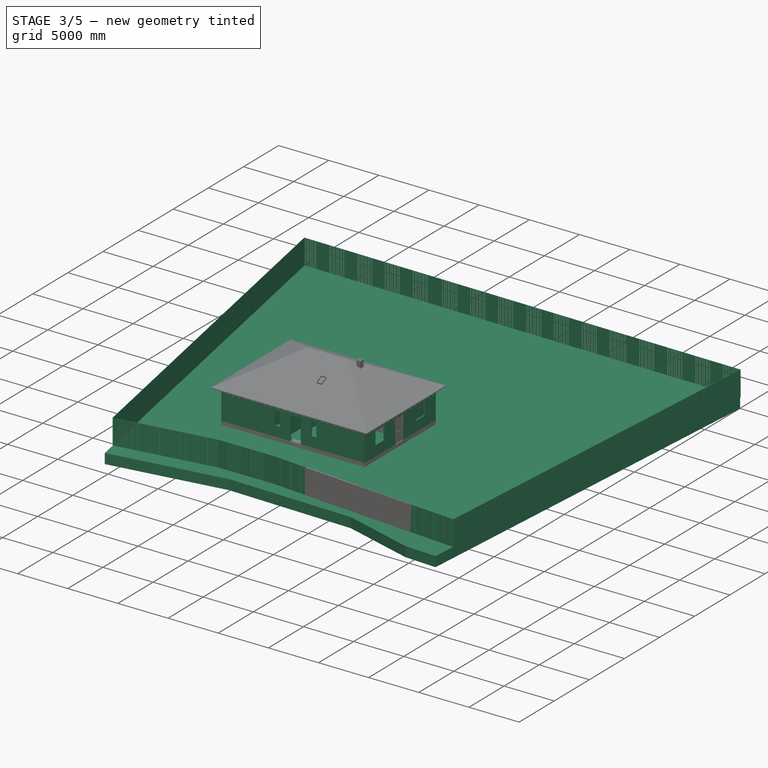
[diagram: stage 3 of 5 — iso view after this stage's code; geometry added in this stage tinted green]
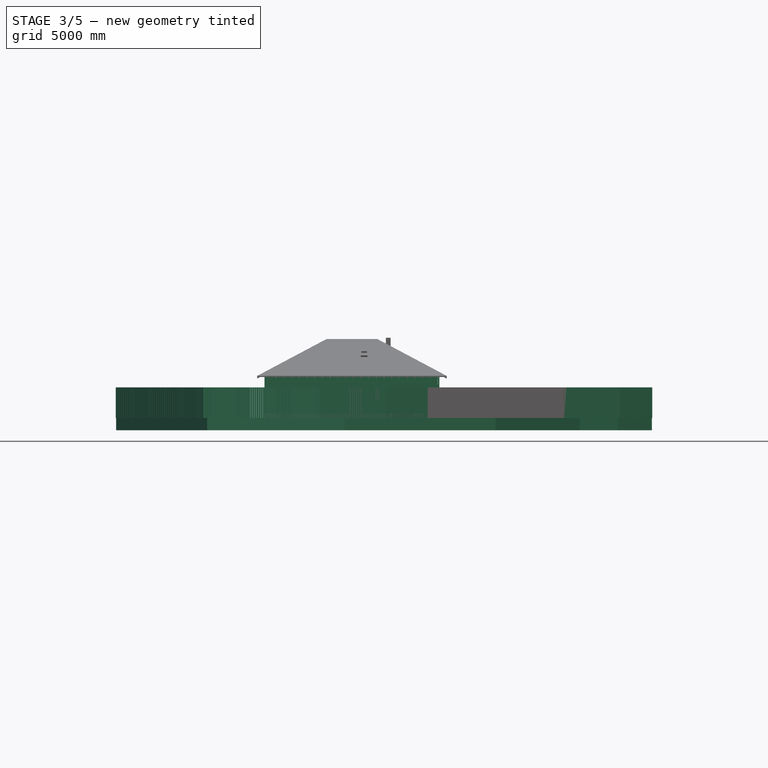
[diagram: stage 3 of 5 — front view after this stage's code; geometry added in this stage tinted green]
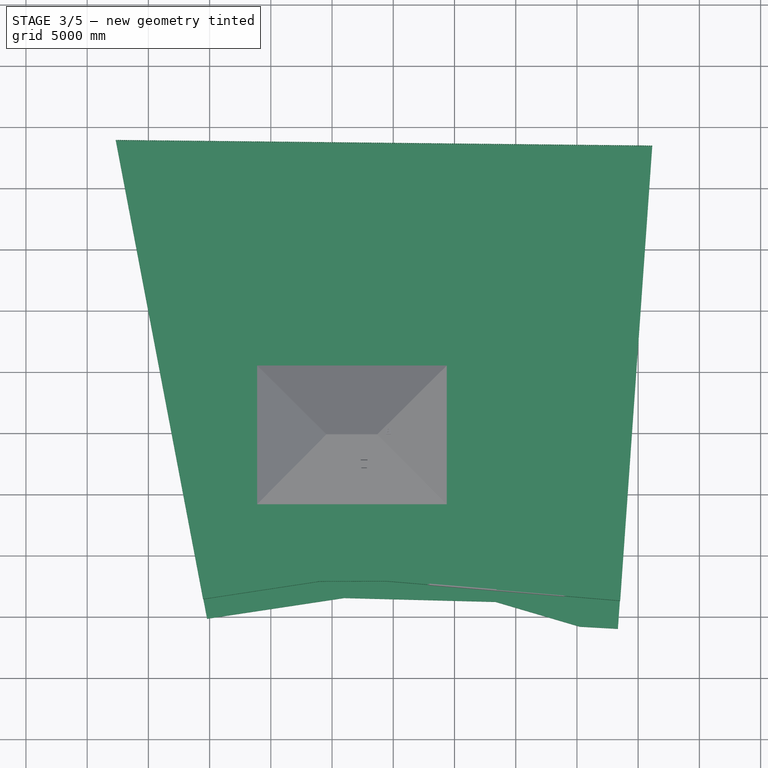
[diagram: stage 3 of 5 — top view after this stage's code; geometry added in this stage tinted green]
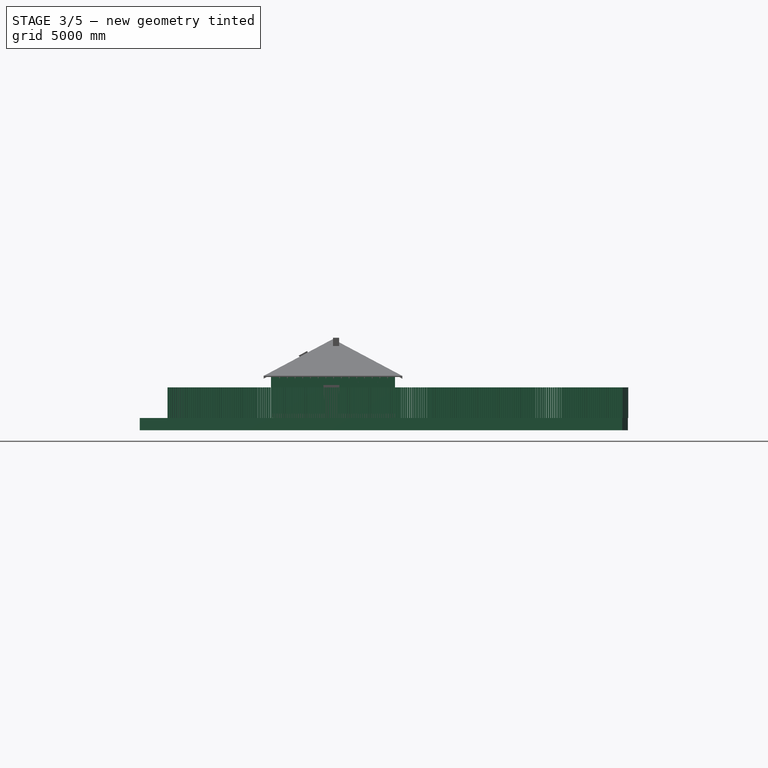
[diagram: stage 3 of 5 — right view after this stage's code; geometry added in this stage tinted green]
FEATURE [Part::FeaturePython] Wall012  label="балка продольная 001"  # Arch/BIM 166 (typed FeaturePython)
  Align = 0
  Area = 543600
  Base = -> Line1049
  BlockHeight = 0
  BlockLength = 0
  CountBroken = 0
  CountEntire = 0
  Face = 0
  Height = 180
  HorizontalArea = 755000
  IfcType = 166
  Joint = 0
  Length = 3020
  MakeBlocks = false
  MoveBase = false
  MoveWithHost = false
  Normal = (0,0,0)
  OffsetFirst = 0
  OffsetSecond = 0
  PerimeterLength = 6540
  Placement = pos=(0,0,2570) rot=(0,0,1;0rad)
  PredefinedType = 0
  VerticalArea = 1.1772e+06
  Width = 250
FEATURE [Part::Part2DObjectPython] Line1052  # Draft 2D object (typed FeaturePython)
  ChamferSize = 0
  Closed = true
  End = (5560,2560,0)
  FilletRadius = 0
  Length = 2300
  MakeFace = false
  Placement = pos=(5560,-40,0) rot=(0,0,1;0rad)
  Points = (2) [(0,300,0),(0,2600,0)]
  Start = (5560,260,0)
  Subdivisions = 0
FEATURE [Part::Part2DObjectPython] Line1053  # Draft 2D object (typed FeaturePython)
  ChamferSize = 0
  Closed = true
  End = (9400,2100,0)
  FilletRadius = 0
  Length = 1500
  MakeFace = false
  Placement = pos=(7900,2080,0) rot=(0,0,1;0rad)
  Points = (2) [(0,20,0),(1500,20,0)]
  Start = (7900,2100,0)
  Subdivisions = 0
FEATURE [Part::Part2DObjectPython] Line1054  # Draft 2D object (typed FeaturePython)
  ChamferSize = 0
  Closed = true
  End = (9650,3260,0)
  FilletRadius = 0
  Length = 3600
  MakeFace = false
  Placement = pos=(10380,1900,0) rot=(0,0,1;0rad)
  Points = (2) [(2870,1360,0),(-730,1360,0)]
  Start = (13250,3260,0)
  Subdivisions = 0
FEATURE [Part::FeaturePython] Wall013  label="перегородка 001"  # Arch/BIM 166 (typed FeaturePython)
  Align = 0
  Area = 6325000
  Base = -> Line1052
  BlockHeight = 250
  BlockLength = 625
  CountBroken = 16
  CountEntire = 39
  Face = 0
  Height = 2750
  HorizontalArea = 276000
  IfcType = 166
  Joint = 0
  Length = 2300
  MakeBlocks = false
  MoveBase = false
  MoveWithHost = false
  Normal = (0,0,0)
  OffsetFirst = 0
  OffsetSecond = 300
  PerimeterLength = 4840
  PredefinedType = 0
  VerticalArea = 13310000
  Width = 120
FEATURE [App::FeaturePython] Dimension002  # Draft dimension (typed FeaturePython)
  Diameter = false
  Dimline = (13000,-1400,0)
  Direction = (0,0,0)
  Distance = 14290
  End = (13770,-520,0)
  Normal = (0,0,1)
  Start = (-520,-520,0)
FEATURE [App::FeaturePython] Dimension003  # Draft dimension (typed FeaturePython)
  Diameter = false
  Dimline = (14700,-1000,0)
  Direction = (0,0,0)
  Distance = 10130
  End = (13770,9870,0)
  Normal = (0,0,1)
  Start = (13770,-260,0)
FEATURE [Part::Part2DObjectPython] Line1100  # Draft 2D object (typed FeaturePython)
  ChamferSize = 0
  Closed = true
  End = (9400,9350,0)
  FilletRadius = 0
  Length = 9090
  MakeFace = false
  Placement = pos=(21785,4100,0) rot=(0,0,1;0rad)
  Points = (2) [(-12385,-3840,0),(-12385,5250,0)]
  Start = (9400,260,0)
  Subdivisions = 0
FEATURE [Part::FeaturePython] Structure062  label="пол по грунту в проёмах 012"  # Arch/BIM 172 (typed FeaturePython)
  Base = -> Rectangle2190
  FaceMaker = 0
  Height = 80
  HorizontalArea = 560000
  IfcType = 172
  Length = 0
  MoveBase = false
  MoveWithHost = false
  Nodes = (2) [(4000,4250,0),(4000,4250,80)]
  NodesOffset = 0
  Normal = (0,0,1)
  PerimeterLength = 3600
  Placement = pos=(0,0,-80) rot=(0,0,1;0rad)
  PredefinedType = 0
  VerticalArea = 288000
  Width = 100
FEATURE [Part::FeaturePython] Structure063  label="пол по грунту в проёмах 011"  # Arch/BIM 172 (typed FeaturePython)
  Base = -> Rectangle2188
  FaceMaker = 0
  Height = 80
  HorizontalArea = 680000
  IfcType = 172
  Length = 0
  MoveBase = false
  MoveWithHost = false
  Nodes = (2) [(600,-4000,0),(600,-4000,80)]
  NodesOffset = 0
  Normal = (0,0,1)
  PerimeterLength = 4200
  Placement = pos=(0,0,-80) rot=(0,0,1;0rad)
  PredefinedType = 0
  VerticalArea = 336000
  Width = 100
FEATURE [Part::FeaturePython] Structure064  label="пол по грунту в проёмах 010"  # Arch/BIM 172 (typed FeaturePython)
  Base = -> Rectangle2189
  FaceMaker = 0
  Height = 80
  HorizontalArea = 560000
  IfcType = 172
  Length = 0
  MoveBase = false
  MoveWithHost = false
  Nodes = (2) [(8200,3800,0),(8200,3800,80)]
  NodesOffset = 0
  Normal = (0,0,1)
  PerimeterLength = 3600
  Placement = pos=(0,0,-80) rot=(0,0,1;0rad)
  PredefinedType = 0
  VerticalArea = 288000
  Width = 100
FEATURE [Part::Part2DObjectPython] Wire463  label="граница по ограждению"  # Draft 2D object (typed FeaturePython)
  ChamferSize = 0
  Closed = true
  End = (9400,-7084.9,0)
  FilletRadius = 0
  Length = 153279
  MakeFace = false
  Placement = pos=(28492.8,-8682.66,0) rot=(0,0,1;0rad)
  Points = (6) [(14.0233,-1.17368,0),(2632.1,37116.3,0),(-41128.8,37575,0),(-34003,133.748,0),(-24492.8,1579.34,0),(-19092.8,1597.76,0)]
  Start = (28506.9,-8683.84,0)
  Subdivisions = 0
FEATURE [Part::FeaturePython] Structure133  label="грунт в границах участка"  # Arch/BIM 172 (typed FeaturePython)
  Base = -> Wire460
  FaceMaker = 0
  Height = 1000
  HorizontalArea = 1.47224e+09
  IfcType = 172
  Length = 0
  MoveBase = false
  MoveWithHost = false
  Nodes = (2) [(10380.4,10482.9,0),(10380.4,10482.9,-1000)]
  NodesOffset = 0
  Normal = (0,0,-1)
  PerimeterLength = 156987
  Placement = pos=(0,0,-400) rot=(0,0,1;0rad)
  PredefinedType = 0
  VerticalArea = 1.56987e+08
  Width = 100
FEATURE [Part::FeaturePython] Wall095  label="Ограждение"  # Arch/BIM 166 (typed FeaturePython)
  Align = 0
  Area = 0
  Base = -> Wire463
  BlockHeight = 2500
  BlockLength = 150
  CountBroken = 8
  CountEntire = 837
  Face = 0
  Height = 2500
  HorizontalArea = 3.13974e+07
  IfcType = 166
  Joint = 25
  Length = 153279
  MakeBlocks = true
  MoveBase = false
  MoveWithHost = false
  Normal = (0,0,0)
  OffsetFirst = 0
  OffsetSecond = 0
  PerimeterLength = 157813
  Placement = pos=(0,0,-400) rot=(0,0,1;0rad)
  PredefinedType = 0
  Subtractions = -> [Structure137]
  VerticalArea = 6.27949e+08
  Width = 25
FEATURE [App::GeometryPython] BuildingPart035  label="Внешние элементы"  # Arch/BIM 172 (typed FeaturePython)
  Area = 0
  Group = -> [Structure028,Structure029]
  Height = 0
  HeightPropagate = true
  IfcType = 172
  LevelOffset = 0
  PredefinedType = 0
FEATURE [Image::ImagePlane] ImagePlane  label="План участка"
  Placement = pos=(6252.32,18787.3,-450) rot=(0,0,1;3.14159rad)
  XSize = 103541
  YSize = 98696.8
FEATURE [Part::Part2DObjectPython] Line1123  # Draft 2D object (typed FeaturePython)
  ChamferSize = 0
  Closed = true
  End = (3600,260,0)
  FilletRadius = 0
  Length = 3640
  MakeFace = false
  Placement = pos=(3600,1700,0) rot=(0,0,1;0rad)
  Points = (2) [(-4.54747e-13,2200,0),(0,-1440,0)]
  Start = (3600,3900,0)
  Subdivisions = 0
FEATURE [Part::FeaturePython] Wall100  label="перегородка 038"  # Arch/BIM 166 (typed FeaturePython)
  Align = 1
  Area = 10010000
  Base = -> Line1123
  BlockHeight = 250
  BlockLength = 625
  CountBroken = 16
  CountEntire = 61
  Face = 0
  Height = 2750
  HorizontalArea = 436800
  IfcType = 166
  Joint = 0
  Length = 3640
  MakeBlocks = false
  MoveBase = false
  MoveWithHost = false
  Normal = (0,0,0)
  OffsetFirst = 0
  OffsetSecond = 300
  PerimeterLength = 7520
  PredefinedType = 0
  VerticalArea = 2.068e+07
  Width = 120
FEATURE [App::FeaturePython] Dimension004  # Draft dimension (typed FeaturePython)
  Diameter = false
  Dimline = (-900,-1000,0)
  Direction = (0,0,0)
  Distance = 3800
  End = (-1500,3980,0)
  Normal = (0,0,1)
  Start = (-1500,180,0)
FEATURE [App::FeaturePython] Dimension006  # Draft dimension (typed FeaturePython)
  Diameter = false
  Dimline = (-900,6000,0)
  Direction = (0,0,0)
  Distance = 5400
  End = (-1500,9450,0)
  Normal = (0,0,1)
  Start = (-1500,4050,0)
FEATURE [App::FeaturePython] Dimension007  # Draft dimension (typed FeaturePython)
  Diameter = false
  Dimline = (-1000,10300,0)
  Direction = (0,0,0)
  Distance = 3900
  End = (3820,11000,0)
  Normal = (0,0,1)
  Start = (-80,11000,0)
FEATURE [App::FeaturePython] Dimension009  # Draft dimension (typed FeaturePython)
  Diameter = false
  Dimline = (8800,10300,0)
  Direction = (0,0,0)
  Distance = 3800
  End = (13350,11000,0)
  Normal = (0,0,1)
  Start = (9550,11000,0)
FEATURE [Part::Part2DObjectPython] Rectangle2392  # Draft 2D object (typed FeaturePython)
  ChamferSize = 0
  Columns = 1
  FilletRadius = 50
  Height = 400
  Length = 400
  MakeFace = false
  Placement = pos=(12750,7830,0) rot=(0,0,1;0rad)
  Rows = 1
FEATURE [Part::Part2DObjectPython] Line1171  # Draft 2D object (typed FeaturePython)
  ChamferSize = 0
  Closed = false
  End = (4670,-260,0)
  FilletRadius = 0
  Length = 790
  MakeFace = true
  Placement = pos=(5460,-260,0) rot=(0,0,1;3.14159rad)
  Points = (2) [(0,0,0),(790,0,0)]
  Start = (5460,-260,0)
  Subdivisions = 0
FEATURE [Part::Part2DObjectPython] Line1172  # Draft 2D object (typed FeaturePython)
  ChamferSize = 0
  Closed = false
  End = (6230,-260,0)
  FilletRadius = 0
  Length = 1310
  MakeFace = true
  Placement = pos=(7540,-255,0) rot=(0,0,1;3.14159rad)
  Points = (2) [(0,5,0),(1310,5,0)]
  Start = (7540,-260,0)
  Subdivisions = 0
FEATURE [Part::FeaturePython] Wall106  label="вычет перемычки облицовки 009"  # Arch/BIM 166 (typed FeaturePython)
  Align = 1
  Area = 478150
  Base = -> Line1172
  BlockHeight = 0
  BlockLength = 0
  CountBroken = 23
  CountEntire = 19
  Face = 0
  Height = 365
  HorizontalArea = 157200
  IfcType = 166
  Joint = 0
  Length = 1310
  MakeBlocks = false
  MoveBase = false
  MoveWithHost = false
  Normal = (0,0,-1)
  OffsetFirst = 0
  OffsetSecond = 0
  PerimeterLength = 2860
  Placement = pos=(0,0,2660) rot=(0,0,1;0rad)
  PredefinedType = 0
  VerticalArea = 1043900
  Width = 120
FEATURE [Part::FeaturePython] Wall108  label="вычет перемычки облицовки 011"  # Arch/BIM 166 (typed FeaturePython)
  Align = 1
  Area = 288350
  Base = -> Line1171
  BlockHeight = 0
  BlockLength = 0
  CountBroken = 23
  CountEntire = 19
  Face = 0
  Height = 365
  HorizontalArea = 94800
  IfcType = 166
  Joint = 0
  Length = 790
  MakeBlocks = false
  MoveBase = false
  MoveWithHost = false
  Normal = (0,0,-1)
  OffsetFirst = 0
  OffsetSecond = 0
  PerimeterLength = 1820
  Placement = pos=(0,0,2660) rot=(0,0,1;0rad)
  PredefinedType = 0
  VerticalArea = 664300
  Width = 120
FEATURE [Part::Part2DObjectPython] Line1173  # Draft 2D object (typed FeaturePython)
  ChamferSize = 0
  Closed = false
  End = (13770,2730,0)
  FilletRadius = 0
  Length = 1570
  MakeFace = true
  Placement = pos=(13770,1160,0) rot=(0,0,1;1.5708rad)
  Points = (2) [(0,0,0),(1570,9.09495e-12,0)]
  Start = (13770,1160,0)
  Subdivisions = 0
FEATURE [Part::FeaturePython] Wall109  label="вычет перемычки облицовки 012"  # Arch/BIM 166 (typed FeaturePython)
  Align = 0
  Area = 573050
  Base = -> Line1173
  BlockHeight = 0
  BlockLength = 0
  CountBroken = 23
  CountEntire = 19
  Face = 0
  Height = 365
  HorizontalArea = 188400
  IfcType = 166
  Joint = 0
  Length = 1570
  MakeBlocks = false
  MoveBase = false
  MoveWithHost = false
  Normal = (0,0,-1)
  OffsetFirst = 0
  OffsetSecond = 0
  PerimeterLength = 3380
  Placement = pos=(0,0,2660) rot=(0,0,1;0rad)
  PredefinedType = 0
  VerticalArea = 1233700
  Width = 120
FEATURE [Part::Part2DObjectPython] Line1174  # Draft 2D object (typed FeaturePython)
  ChamferSize = 0
  Closed = false
  End = (3120,9870,0)
  FilletRadius = 0
  Length = 1570
  MakeFace = true
  Placement = pos=(1550,9870,0) rot=(0,0,1;0rad)
  Points = (2) [(0,0,0),(1570,0,0)]
  Start = (1550,9870,0)
  Subdivisions = 0
FEATURE [Part::Part2DObjectPython] Line1175  # Draft 2D object (typed FeaturePython)
  ChamferSize = 0
  Closed = false
  End = (11700,9870,0)
  FilletRadius = 0
  Length = 1570
  MakeFace = true
  Placement = pos=(10130,9870,0) rot=(0,0,1;0rad)
  Points = (2) [(0,0,0),(1570,0,0)]
  Start = (10130,9870,0)
  Subdivisions = 0
FEATURE [Part::FeaturePython] Wall110  label="вычет перемычки облицовки 013"  # Arch/BIM 166 (typed FeaturePython)
  Align = 1
  Area = 573050
  Base = -> Line1175
  BlockHeight = 0
  BlockLength = 0
  CountBroken = 23
  CountEntire = 19
  Face = 0
  Height = 365
  HorizontalArea = 188400
  IfcType = 166
  Joint = 0
  Length = 1570
  MakeBlocks = false
  MoveBase = false
  MoveWithHost = false
  Normal = (0,0,-1)
  OffsetFirst = 0
  OffsetSecond = 0
  PerimeterLength = 3380
  Placement = pos=(0,0,2660) rot=(0,0,1;0rad)
  PredefinedType = 0
  VerticalArea = 1233700
  Width = 120
FEATURE [Part::Part2DObjectPython] Rectangle2575  label="четверть_790_011"  # Draft 2D object (typed FeaturePython)
  ChamferSize = 0
  Columns = 1
  FilletRadius = 0
  Height = 120
  Length = 1050
  MakeFace = true
  Placement = pos=(13650,5200,0) rot=(0,0,-1;1.5708rad)
  Rows = 1
FEATURE [Part::FeaturePython] Structure145  label="Проём_четв._028"  # Arch/BIM 172 (typed FeaturePython)
  Base = -> Rectangle2575
  FaceMaker = 0
  Height = 2335
  HorizontalArea = 126000
  IfcType = 172
  Length = 0
  MoveBase = false
  MoveWithHost = false
  Nodes = (2) [(1035,460,0),(1035,460,535)]
  NodesOffset = 0
  Normal = (0,0,0)
  PerimeterLength = 2340
  Placement = pos=(0,0,-40) rot=(0,0,1;0rad)
  PredefinedType = 0
  VerticalArea = 5463900
  Width = 100
FEATURE [Part::FeaturePython] Wall112  label="вычет перемычки облицовки 015"  # Arch/BIM 166 (typed FeaturePython)
  Align = 1
  Area = 573050
  Base = -> Line1174
  BlockHeight = 0
  BlockLength = 0
  CountBroken = 23
  CountEntire = 19
  Face = 0
  Height = 365
  HorizontalArea = 188400
  IfcType = 166
  Joint = 0
  Length = 1570
  MakeBlocks = false
  MoveBase = false
  MoveWithHost = false
  Normal = (0,0,-1)
  OffsetFirst = 0
  OffsetSecond = 0
  PerimeterLength = 3380
  Placement = pos=(0,0,2660) rot=(0,0,1;0rad)
  PredefinedType = 0
  VerticalArea = 1.2337e+06
  Width = 120
FEATURE [Part::Part2DObjectPython] Line1177  # Draft 2D object (typed FeaturePython)
  ChamferSize = 0
  Closed = false
  End = (7540,9870,0)
  FilletRadius = 0
  Length = 1830
  MakeFace = true
  Placement = pos=(5710,9870,0) rot=(0,0,1;0rad)
  Points = (2) [(0,0,0),(1830,0,0)]
  Start = (5710,9870,0)
  Subdivisions = 0
FEATURE [Part::FeaturePython] Wall107  label="вычет перемычки облицовки 010"  # Arch/BIM 166 (typed FeaturePython)
  Align = 1
  Area = 667950
  Base = -> Line1177
  BlockHeight = 0
  BlockLength = 0
  CountBroken = 23
  CountEntire = 19
  Face = 0
  Height = 365
  HorizontalArea = 219600
  IfcType = 166
  Joint = 0
  Length = 1830
  MakeBlocks = false
  MoveBase = false
  MoveWithHost = false
  Normal = (0,0,-1)
  OffsetFirst = 0
  OffsetSecond = 0
  PerimeterLength = 3900
  Placement = pos=(0,0,2660) rot=(0,0,1;0rad)
  PredefinedType = 0
  VerticalArea = 1.4235e+06
  Width = 120
FEATURE [Part::Part2DObjectPython] Line1178  label="облицовка_стены_028"  # Draft 2D object (typed FeaturePython)
  ChamferSize = 0
  Closed = true
  End = (13640,9870,0)
  FilletRadius = 0
  Length = 14160
  MakeFace = false
  Placement = pos=(-520,10390,0) rot=(0,0,1;0rad)
  Points = (2) [(2.27374e-13,-520,0),(14160,-520,0)]
  Start = (-520,9870,0)
  Subdivisions = 0
FEATURE [Part::Part2DObjectPython] Line1179  label="облицовка_стены_029"  # Draft 2D object (typed FeaturePython)
  ChamferSize = 0
  Closed = true
  End = (13770,-260,0)
  FilletRadius = 0
  Length = 10130
  MakeFace = false
  Placement = pos=(12730,8180,0) rot=(0,0,1;0rad)
  Points = (2) [(1040,1690,0),(1040,-8440,0)]
  Start = (13770,9870,0)
  Subdivisions = 0
FEATURE [Part::Part2DObjectPython] Rectangle2568  label="четверть_1310_004"  # Draft 2D object (typed FeaturePython)
  ChamferSize = 0
  Columns = 1
  FilletRadius = 0
  Height = 120
  Length = 1570
  MakeFace = true
  Placement = pos=(5840,9750,0) rot=(0,0,1;0rad)
  Rows = 1
FEATURE [Part::FeaturePython] Structure143  label="Проём_четв._026"  # Arch/BIM 172 (typed FeaturePython)
  Base = -> Rectangle2568
  FaceMaker = 0
  Height = 2335
  HorizontalArea = 188400
  IfcType = 172
  Length = 0
  MoveBase = false
  MoveWithHost = false
  Nodes = (2) [(6695,10395,0),(6695,10395,2335)]
  NodesOffset = 0
  Normal = (0,0,0)
  PerimeterLength = 3380
  Placement = pos=(0,0,-40) rot=(0,0,1;0rad)
  PredefinedType = 0
  VerticalArea = 7892300
  Width = 100
FEATURE [Part::Part2DObjectPython] Rectangle2570  label="четверть_1310_006"  # Draft 2D object (typed FeaturePython)
  ChamferSize = 0
  Columns = 1
  FilletRadius = 0
  Height = 120
  Length = 1310
  MakeFace = true
  Placement = pos=(1680,9750,0) rot=(0,0,1;0rad)
  Rows = 1
FEATURE [Part::FeaturePython] Structure144  label="Проём_четв._027"  # Arch/BIM 172 (typed FeaturePython)
  Base = -> Rectangle2570
  FaceMaker = 0
  Height = 2335
  HorizontalArea = 157200
  IfcType = 172
  Length = 0
  MoveBase = false
  MoveWithHost = false
  Nodes = (2) [(2535,10395,0),(2535,10395,2335)]
  NodesOffset = 0
  Normal = (0,0,0)
  PerimeterLength = 2860
  Placement = pos=(0,0,-40) rot=(0,0,1;0rad)
  PredefinedType = 0
  VerticalArea = 6678100
  Width = 100
FEATURE [Part::Part2DObjectPython] Rectangle2573  label="четверть_790_009"  # Draft 2D object (typed FeaturePython)
  ChamferSize = 0
  Columns = 1
  FilletRadius = 0
  Height = 120
  Length = 530
  MakeFace = true
  Placement = pos=(4800,-260,0) rot=(0,0,1;0rad)
  Rows = 1
FEATURE [Part::Part2DObjectPython] Rectangle2571  label="четверть_1050_002"  # Draft 2D object (typed FeaturePython)
  ChamferSize = 0
  Columns = 1
  FilletRadius = 0
  Height = 120
  Length = 1050
  MakeFace = true
  Placement = pos=(6360,-260,0) rot=(0,0,1;0rad)
  Rows = 1
FEATURE [Part::FeaturePython] Structure148  label="Проём_четв._031"  # Arch/BIM 172 (typed FeaturePython)
  Base = -> Rectangle2571
  FaceMaker = 0
  Height = 2335
  HorizontalArea = 126000
  IfcType = 172
  Length = 0
  MoveBase = false
  MoveWithHost = false
  Nodes = (2) [(5775,-395,0),(5775,-395,2335)]
  NodesOffset = 0
  Normal = (0,0,0)
  PerimeterLength = 2340
  Placement = pos=(0,0,-40) rot=(0,0,1;0rad)
  PredefinedType = 0
  VerticalArea = 5463900
  Width = 100
FEATURE [Part::Part2DObjectPython] Rectangle2569  label="четверть_1310_005"  # Draft 2D object (typed FeaturePython)
  ChamferSize = 0
  Columns = 1
  FilletRadius = 0
  Height = 120
  Length = 1310
  MakeFace = true
  Placement = pos=(10260,9750,0) rot=(0,0,1;0rad)
  Rows = 1
FEATURE [Part::FeaturePython] Structure142  label="Проём_четв._025"  # Arch/BIM 172 (typed FeaturePython)
  Base = -> Rectangle2569
  FaceMaker = 0
  Height = 2335
  HorizontalArea = 157200
  IfcType = 172
  Length = 0
  MoveBase = false
  MoveWithHost = false
  Nodes = (2) [(10855,10395,0),(10855,10395,2335)]
  NodesOffset = 0
  Normal = (0,0,0)
  PerimeterLength = 2860
  Placement = pos=(0,0,-40) rot=(0,0,1;0rad)
  PredefinedType = 0
  VerticalArea = 6678100
  Width = 100
FEATURE [Part::FeaturePython] Wall103  label="облицовка 014"  # Arch/BIM 166 (typed FeaturePython)
  Align = 0
  Area = 44604000
  Base = -> Line1178
  BlockHeight = 65
  BlockLength = 250
  CountBroken = 144
  CountEntire = 1626
  Face = 0
  Height = 3150
  HorizontalArea = 0
  IfcType = 166
  Joint = 10
  Length = 14160
  MakeBlocks = false
  MoveBase = false
  MoveWithHost = false
  Normal = (0,0,0)
  OffsetFirst = 120
  OffsetSecond = 250
  PerimeterLength = 0
  Placement = pos=(0,0,-30) rot=(0,0,1;0rad)
  PredefinedType = 0
  Subtractions = -> [Structure142,Structure143,Structure144,Wall110,Wall112,Wall107]
  VerticalArea = 0
  Width = 120
FEATURE [Part::FeaturePython] Structure149  label="Проём_четв._032"  # Arch/BIM 172 (typed FeaturePython)
  Base = -> Rectangle2573
  FaceMaker = 0
  Height = 1285
  HorizontalArea = 63600
  IfcType = 172
  Length = 0
  MoveBase = false
  MoveWithHost = false
  Nodes = (2) [(5065,-200,0),(5065,-200,1285)]
  NodesOffset = 0
  Normal = (0,0,0)
  PerimeterLength = 1300
  Placement = pos=(0,0,1010) rot=(0,0,1;0rad)
  PredefinedType = 0
  VerticalArea = 1670500
  Width = 100
FEATURE [Part::Part2DObjectPython] Line1180  label="облицовка_стены_030"  # Draft 2D object (typed FeaturePython)
  ChamferSize = 0
  Closed = true
  End = (-390,-260,0)
  FilletRadius = 0
  Length = 14030
  MakeFace = false
  Placement = pos=(12610,-260,0) rot=(0,0,1;0rad)
  Points = (2) [(1030,-1.36424e-12,0),(-13000,-1.36424e-12,0)]
  Start = (13640,-260,0)
  Subdivisions = 0
FEATURE [Part::Part2DObjectPython] Line1181  label="облицовка_стены_031"  # Draft 2D object (typed FeaturePython)
  ChamferSize = 0
  Closed = true
  End = (-520,9740,0)
  FilletRadius = 0
  Length = 10000
  MakeFace = false
  Placement = pos=(-520,-520,0) rot=(0,0,1;0rad)
  Points = (2) [(0,260,0),(0,10260,0)]
  Start = (-520,-260,0)
  Subdivisions = 0
FEATURE [Part::Part2DObjectPython] Line1182  label="Line1188"  # Draft 2D object (typed FeaturePython)
  ChamferSize = 0
  Closed = false
  End = (13770,8450,0)
  FilletRadius = 0
  Length = 1570
  MakeFace = true
  Placement = pos=(13770,6750,0) rot=(0,0,1;1.5708rad)
  Points = (2) [(130,0,0),(1700,1.45519e-11,0)]
  Start = (13770,6880,0)
  Subdivisions = 0
FEATURE [Part::FeaturePython] Wall093  label="вычет перемычки облицовки 016"  # Arch/BIM 166 (typed FeaturePython)
  Align = 0
  Area = 573050
  Base = -> Line1182
  BlockHeight = 0
  BlockLength = 0
  CountBroken = 23
  CountEntire = 19
  Face = 0
  Height = 365
  HorizontalArea = 188400
  IfcType = 166
  Joint = 0
  Length = 1570
  MakeBlocks = false
  MoveBase = false
  MoveWithHost = false
  Normal = (0,0,-1)
  OffsetFirst = 0
  OffsetSecond = 0
  PerimeterLength = 3380
  Placement = pos=(0,0,2660) rot=(0,0,1;0rad)
  PredefinedType = 0
  VerticalArea = 1.2337e+06
  Width = 120
FEATURE [Part::Part2DObjectPython] Rectangle2579  label="четверть_790_014"  # Draft 2D object (typed FeaturePython)
  ChamferSize = 0
  Columns = 1
  FilletRadius = 0
  Height = 120
  Length = 1310
  MakeFace = true
  Placement = pos=(13650,2600,0) rot=(0,0,-1;1.5708rad)
  Rows = 1
FEATURE [Part::FeaturePython] Structure146  label="Проём_четв._029"  # Arch/BIM 172 (typed FeaturePython)
  Base = -> Rectangle2579
  FaceMaker = 0
  Height = 1285
  HorizontalArea = 157200
  IfcType = 172
  Length = 0
  MoveBase = false
  MoveWithHost = false
  Nodes = (2) [(1035,460,0),(1035,460,535)]
  NodesOffset = 0
  Normal = (0,0,0)
  PerimeterLength = 2860
  Placement = pos=(0,0,1010) rot=(0,0,1;0rad)
  PredefinedType = 0
  VerticalArea = 3675100
  Width = 100
FEATURE [Part::Part2DObjectPython] Line1183  label="Line1189"  # Draft 2D object (typed FeaturePython)
  ChamferSize = 0
  Closed = false
  End = (13770,5330,0)
  FilletRadius = 0
  Length = 1310
  MakeFace = true
  Placement = pos=(13770,4020,0) rot=(0,0,1;1.5708rad)
  Points = (2) [(0,0,0),(1310,1.09139e-11,0)]
  Start = (13770,4020,0)
  Subdivisions = 0
FEATURE [Part::FeaturePython] Wall117  label="вычет перемычки облицовки 018"  # Arch/BIM 166 (typed FeaturePython)
  Align = 0
  Area = 478150
  Base = -> Line1183
  BlockHeight = 0
  BlockLength = 0
  CountBroken = 23
  CountEntire = 19
  Face = 0
  Height = 365
  HorizontalArea = 157200
  IfcType = 166
  Joint = 0
  Length = 1310
  MakeBlocks = false
  MoveBase = false
  MoveWithHost = false
  Normal = (0,0,-1)
  OffsetFirst = 0
  OffsetSecond = 0
  PerimeterLength = 2860
  Placement = pos=(0,0,2660) rot=(0,0,1;0rad)
  PredefinedType = 0
  VerticalArea = 1.0439e+06
  Width = 120
FEATURE [Part::Part2DObjectPython] Rectangle2577  label="четверть_790_012"  # Draft 2D object (typed FeaturePython)
  ChamferSize = 0
  Columns = 1
  FilletRadius = 0
  Height = 120
  Length = 1310
  MakeFace = true
  Placement = pos=(13650,8320,0) rot=(0,0,-1;1.5708rad)
  Rows = 1
FEATURE [Part::Part2DObjectPython] Line1184  label="Line1179"  # Draft 2D object (typed FeaturePython)
  ChamferSize = 0
  Closed = false
  End = (9090,-260,0)
  FilletRadius = 0
  Length = 770
  MakeFace = true
  Placement = pos=(8320,-260,0) rot=(0,0,-1;0rad)
  Points = (2) [(0,0,0),(770,3.41061e-13,0)]
  Start = (8320,-260,0)
  Subdivisions = 0
FEATURE [Part::FeaturePython] Structure150  label="Проём_четв._033"  # Arch/BIM 172 (typed FeaturePython)
  Base = -> Rectangle2577
  FaceMaker = 0
  Height = 1285
  HorizontalArea = 157200
  IfcType = 172
  Length = 0
  MoveBase = false
  MoveWithHost = false
  Nodes = (2) [(1035,460,0),(1035,460,535)]
  NodesOffset = 0
  Normal = (0,0,0)
  PerimeterLength = 2860
  Placement = pos=(0,0,1010) rot=(0,0,1;0rad)
  PredefinedType = 0
  VerticalArea = 3675100
  Width = 100
FEATURE [Part::FeaturePython] Wall102  label="облицовка 013"  # Arch/BIM 166 (typed FeaturePython)
  Align = 0
  Area = 31909500
  Base = -> Line1179
  BlockHeight = 65
  BlockLength = 250
  CountBroken = 116
  CountEntire = 1201
  Face = 0
  Height = 3150
  HorizontalArea = 0
  IfcType = 166
  Joint = 10
  Length = 10130
  MakeBlocks = false
  MoveBase = false
  MoveWithHost = false
  Normal = (0,0,0)
  OffsetFirst = 250
  OffsetSecond = 120
  PerimeterLength = 0
  Placement = pos=(0,0,-30) rot=(0,0,1;0rad)
  PredefinedType = 0
  Subtractions = -> [Structure146,Wall093,Wall109,Structure145,Structure150,Wall117]
  VerticalArea = 0
  Width = 120
FEATURE [Part::Part2DObjectPython] Line1185  # Draft 2D object (typed FeaturePython)
  ChamferSize = 0
  Closed = false
  End = (7530,9870,0)
  FilletRadius = 0
  Length = 1810
  MakeFace = true
  Placement = pos=(5720,9870,0) rot=(0,0,1;0rad)
  Points = (2) [(0,0,0),(1810,0,0)]
  Start = (5720,9870,0)
  Subdivisions = 0
FEATURE [Part::FeaturePython] Wall116  label="Перемычка облицовки 011"  # Arch/BIM 166 (typed FeaturePython)
  Align = 1
  Area = 660650
  Base = -> Line1185
  BlockHeight = 250
  BlockLength = 65
  CountBroken = 26
  CountEntire = 22
  Face = 0
  Height = 365
  HorizontalArea = 217200
  IfcType = 166
  Joint = 10
  Length = 1810
  MakeBlocks = false
  MoveBase = false
  MoveWithHost = false
  Normal = (0,0,-1)
  OffsetFirst = 0
  OffsetSecond = 0
  PerimeterLength = 3860
  Placement = pos=(0,0,2660) rot=(0,0,1;0rad)
  PredefinedType = 0
  VerticalArea = 1408900
  Width = 120
FEATURE [Part::Part2DObjectPython] Line1186  # Draft 2D object (typed FeaturePython)
  ChamferSize = 0
  Closed = false
  End = (3110,9870,0)
  FilletRadius = 0
  Length = 1550
  MakeFace = true
  Placement = pos=(1560,9870,0) rot=(0,0,1;0rad)
  Points = (2) [(0,0,0),(1550,0,0)]
  Start = (1560,9870,0)
  Subdivisions = 0
FEATURE [Part::Part2DObjectPython] Line1187  # Draft 2D object (typed FeaturePython)
  ChamferSize = 0
  Closed = false
  End = (13770,2720,0)
  FilletRadius = 0
  Length = 1550
  MakeFace = true
  Placement = pos=(13770,1170,0) rot=(0,0,1;1.5708rad)
  Points = (2) [(0,0,0),(1550,2.54659e-11,0)]
  Start = (13770,1170,0)
  Subdivisions = 0
FEATURE [Part::FeaturePython] Wall120  label="Перемычка облицовки 014"  # Arch/BIM 166 (typed FeaturePython)
  Align = 0
  Area = 565750
  Base = -> Line1187
  BlockHeight = 250
  BlockLength = 65
  CountBroken = 22
  CountEntire = 18
  Face = 0
  Height = 365
  HorizontalArea = 186000
  IfcType = 166
  Joint = 12
  Length = 1550
  MakeBlocks = false
  MoveBase = false
  MoveWithHost = false
  Normal = (0,0,-1)
  OffsetFirst = 0
  OffsetSecond = 0
  PerimeterLength = 3340
  Placement = pos=(0,0,2660) rot=(0,0,1;0rad)
  PredefinedType = 0
  VerticalArea = 1.2191e+06
  Width = 120
FEATURE [Part::FeaturePython] Wall121  label="Перемычка облицовки 015"  # Arch/BIM 166 (typed FeaturePython)
  Align = 1
  Area = 565750
  Base = -> Line1186
  BlockHeight = 250
  BlockLength = 65
  CountBroken = 21
  CountEntire = 19
  Face = 0
  Height = 365
  HorizontalArea = 186000
  IfcType = 166
  Joint = 12.5
  Length = 1550
  MakeBlocks = false
  MoveBase = false
  MoveWithHost = false
  Normal = (0,0,-1)
  OffsetFirst = 0
  OffsetSecond = 0
  PerimeterLength = 3340
  Placement = pos=(0,0,2660) rot=(0,0,1;0rad)
  PredefinedType = 0
  VerticalArea = 1.2191e+06
  Width = 120
FEATURE [Part::Part2DObjectPython] Rectangle2580  label="четверть_1050_003"  # Draft 2D object (typed FeaturePython)
  ChamferSize = 0
  Columns = 1
  FilletRadius = 0
  Height = 120
  Length = 530
  MakeFace = true
  Placement = pos=(8440,-260,0) rot=(0,0,1;0rad)
  Rows = 1
FEATURE [Part::Part2DObjectPython] Line1188  label="Line1192"  # Draft 2D object (typed FeaturePython)
  ChamferSize = 0
  Closed = false
  End = (8310,-260,0)
  FilletRadius = 0
  Length = 790
  MakeFace = true
  Placement = pos=(9100,-260,0) rot=(0,0,1;3.14159rad)
  Points = (2) [(0,0,0),(790,0,0)]
  Start = (9100,-260,0)
  Subdivisions = 0
FEATURE [Part::FeaturePython] Wall114  label="вычет перемычки облицовки 017"  # Arch/BIM 166 (typed FeaturePython)
  Align = 1
  Area = 288350
  Base = -> Line1188
  BlockHeight = 0
  BlockLength = 0
  CountBroken = 23
  CountEntire = 19
  Face = 0
  Height = 365
  HorizontalArea = 94800
  IfcType = 166
  Joint = 0
  Length = 790
  MakeBlocks = false
  MoveBase = false
  MoveWithHost = false
  Normal = (0,0,-1)
  OffsetFirst = 0
  OffsetSecond = 0
  PerimeterLength = 1820
  Placement = pos=(0,0,2660) rot=(0,0,1;0rad)
  PredefinedType = 0
  VerticalArea = 664300
  Width = 120
FEATURE [Part::FeaturePython] Wall123  label="Перемычка облицовки 017"  # Arch/BIM 166 (typed FeaturePython)
  Align = 0
  Area = 281050
  Base = -> Line1184
  BlockHeight = 250
  BlockLength = 65
  CountBroken = 11
  CountEntire = 9
  Face = 0
  Height = 365
  HorizontalArea = 92400
  IfcType = 166
  Joint = 12
  Length = 770
  MakeBlocks = false
  MoveBase = false
  MoveWithHost = false
  Normal = (0,0,-1)
  OffsetFirst = 0
  OffsetSecond = 0
  PerimeterLength = 1780
  Placement = pos=(0,0,2660) rot=(0,0,1;0rad)
  PredefinedType = 0
  VerticalArea = 649700
  Width = 120
FEATURE [Part::FeaturePython] Structure151  label="Проём_четв._034"  # Arch/BIM 172 (typed FeaturePython)
  Base = -> Rectangle2580
  FaceMaker = 0
  Height = 1285
  HorizontalArea = 63600
  IfcType = 172
  Length = 0
  MoveBase = false
  MoveWithHost = false
  Nodes = (2) [(5775,-395,0),(5775,-395,2335)]
  NodesOffset = 0
  Normal = (0,0,0)
  PerimeterLength = 1300
  Placement = pos=(0,0,1010) rot=(0,0,1;0rad)
  PredefinedType = 0
  VerticalArea = 1670500
  Width = 100
FEATURE [Part::FeaturePython] Wall104  label="облицовка 015"  # Arch/BIM 166 (typed FeaturePython)
  Align = 0
  Area = 44194500
  Base = -> Line1180
  BlockHeight = 65
  BlockLength = 250
  CountBroken = 116
  CountEntire = 1963
  Face = 0
  Height = 3150
  HorizontalArea = 0
  IfcType = 166
  Joint = 10
  Length = 14030
  MakeBlocks = false
  MoveBase = false
  MoveWithHost = false
  Normal = (0,0,0)
  OffsetFirst = 250
  OffsetSecond = 120
  PerimeterLength = 0
  Placement = pos=(0,0,-30) rot=(0,0,1;0rad)
  PredefinedType = 0
  Subtractions = -> [Structure149,Structure148,Wall108,Wall106,Structure151,Wall114]
  VerticalArea = 0
  Width = 120
FEATURE [Part::Part2DObjectPython] Line1190  # Draft 2D object (typed FeaturePython)
  ChamferSize = 0
  Closed = false
  End = (6240,-260,0)
  FilletRadius = 0
  Length = 1290
  MakeFace = true
  Placement = pos=(7530,-260,0) rot=(0,0,1;3.14159rad)
  Points = (2) [(0,0,0),(1290,0,0)]
  Start = (7530,-260,0)
  Subdivisions = 0
FEATURE [Part::FeaturePython] Wall113  label="Перемычка облицовки 009"  # Arch/BIM 166 (typed FeaturePython)
  Align = 1
  Area = 470850
  Base = -> Line1190
  BlockHeight = 250
  BlockLength = 65
  CountBroken = 19
  CountEntire = 15
  Face = 0
  Height = 365
  HorizontalArea = 154800
  IfcType = 166
  Joint = 10.5
  Length = 1290
  MakeBlocks = false
  MoveBase = false
  MoveWithHost = false
  Normal = (0,0,-1)
  OffsetFirst = 0
  OffsetSecond = 0
  PerimeterLength = 2820
  Placement = pos=(0,0,2660) rot=(0,0,1;0rad)
  PredefinedType = 0
  VerticalArea = 1029300
  Width = 120
FEATURE [Part::Part2DObjectPython] Line1191  label="Line1184"  # Draft 2D object (typed FeaturePython)
  ChamferSize = 0
  Closed = false
  End = (5450,-260,0)
  FilletRadius = 0
  Length = 770
  MakeFace = true
  Placement = pos=(4680,-260,0) rot=(0,0,-1;0rad)
  Points = (2) [(0,0,0),(770,3.41061e-13,0)]
  Start = (4680,-260,0)
  Subdivisions = 0
FEATURE [Part::FeaturePython] Wall124  label="Перемычка облицовки 018"  # Arch/BIM 166 (typed FeaturePython)
  Align = 0
  Area = 281050
  Base = -> Line1191
  BlockHeight = 250
  BlockLength = 65
  CountBroken = 11
  CountEntire = 9
  Face = 0
  Height = 365
  HorizontalArea = 92400
  IfcType = 166
  Joint = 12
  Length = 770
  MakeBlocks = false
  MoveBase = false
  MoveWithHost = false
  Normal = (0,0,-1)
  OffsetFirst = 0
  OffsetSecond = 0
  PerimeterLength = 1780
  Placement = pos=(0,0,2660) rot=(0,0,1;0rad)
  PredefinedType = 0
  VerticalArea = 649700
  Width = 120
FEATURE [Part::Part2DObjectPython] Line1192  label="Line1193"  # Draft 2D object (typed FeaturePython)
  ChamferSize = 0
  Closed = false
  End = (13770,4030,0)
  FilletRadius = 0
  Length = 1290
  MakeFace = true
  Placement = pos=(13770,5320,0) rot=(0,0,-1;1.5708rad)
  Points = (2) [(0,0,0),(1290,-9.09495e-12,0)]
  Start = (13770,5320,0)
  Subdivisions = 0
FEATURE [Part::FeaturePython] Wall119  label="Перемычка облицовки 013"  # Arch/BIM 166 (typed FeaturePython)
  Align = 1
  Area = 470850
  Base = -> Line1192
  BlockHeight = 250
  BlockLength = 65
  CountBroken = 19
  CountEntire = 15
  Face = 0
  Height = 365
  HorizontalArea = 154800
  IfcType = 166
  Joint = 10.5
  Length = 1290
  MakeBlocks = false
  MoveBase = false
  MoveWithHost = false
  Normal = (0,0,-1)
  OffsetFirst = 0
  OffsetSecond = 0
  PerimeterLength = 2820
  Placement = pos=(0,0,2660) rot=(0,0,1;0rad)
  PredefinedType = 0
  VerticalArea = 1.0293e+06
  Width = 120
FEATURE [Part::Part2DObjectPython] Line1193  label="Line1194"  # Draft 2D object (typed FeaturePython)
  ChamferSize = 0
  Closed = false
  End = (13770,6890,0)
  FilletRadius = 0
  Length = 1550
  MakeFace = true
  Placement = pos=(13770,8570,0) rot=(0,0,-1;1.5708rad)
  Points = (2) [(130,0,0),(1680,0,0)]
  Start = (13770,8440,0)
  Subdivisions = 0
FEATURE [Part::FeaturePython] Wall115  label="Перемычка облицовки 010"  # Arch/BIM 166 (typed FeaturePython)
  Align = 1
  Area = 565750
  Base = -> Line1193
  BlockHeight = 250
  BlockLength = 65
  CountBroken = 21
  CountEntire = 19
  Face = 0
  Height = 365
  HorizontalArea = 186000
  IfcType = 166
  Joint = 12.5
  Length = 1550
  MakeBlocks = false
  MoveBase = false
  MoveWithHost = false
  Normal = (0,0,-1)
  OffsetFirst = 0
  OffsetSecond = 0
  PerimeterLength = 3340
  Placement = pos=(0,0,2660) rot=(0,0,1;0rad)
  PredefinedType = 0
  VerticalArea = 1.2191e+06
  Width = 120
FEATURE [Part::Part2DObjectPython] Line1194  label="Line1195"  # Draft 2D object (typed FeaturePython)
  ChamferSize = 0
  Closed = false
  End = (11690,9870,0)
  FilletRadius = 0
  Length = 1550
  MakeFace = true
  Placement = pos=(10140,9870,0) rot=(0,0,1;0rad)
  Points = (2) [(0,0,0),(1550,0,0)]
  Start = (10140,9870,0)
  Subdivisions = 0
FEATURE [Part::FeaturePython] Wall122  label="Перемычка облицовки 016"  # Arch/BIM 166 (typed FeaturePython)
  Align = 1
  Area = 565750
  Base = -> Line1194
  BlockHeight = 250
  BlockLength = 65
  CountBroken = 21
  CountEntire = 19
  Face = 0
  Height = 365
  HorizontalArea = 186000
  IfcType = 166
  Joint = 12.5
  Length = 1550
  MakeBlocks = false
  MoveBase = false
  MoveWithHost = false
  Normal = (0,0,-1)
  OffsetFirst = 0
  OffsetSecond = 0
  PerimeterLength = 3340
  Placement = pos=(0,0,2660) rot=(0,0,1;0rad)
  PredefinedType = 0
  VerticalArea = 1.2191e+06
  Width = 120
FEATURE [Part::Part2DObjectPython] Rectangle2581  label="ОК-140-010"  # Draft 2D object (typed FeaturePython)
  ChamferSize = 0
  Columns = 1
  FilletRadius = 0
  Height = 400
  Length = 1400
  MakeFace = true
  Placement = pos=(13650,6965,0) rot=(0,0,1;1.5708rad)
  Rows = 1
FEATURE [Part::FeaturePython] Structure152  label="Проём-ОК-135-150-002"  # Arch/BIM 172 (typed FeaturePython)
  Base = -> Rectangle2581
  FaceMaker = 0
  Height = 1350
  HorizontalArea = 560000
  IfcType = 172
  Length = 0
  MoveBase = false
  MoveWithHost = false
  Nodes = (2) [(-8120,-170,0),(-8120,-170,1500)]
  NodesOffset = 0
  Normal = (0,0,0)
  PerimeterLength = 3600
  Placement = pos=(0,0,970) rot=(0,0,1;0rad)
  PredefinedType = 0
  VerticalArea = 4860000
  Width = 100
FEATURE [Part::FeaturePython] Structure153  label="Проём-ОК-135-150-003"  # Arch/BIM 172 (typed FeaturePython)
  Base = -> Rectangle2582
  FaceMaker = 0
  Height = 2500
  HorizontalArea = 400000
  IfcType = 172
  Length = 0
  MoveBase = false
  MoveWithHost = false
  Nodes = (2) [(-1620,-170,0),(-1620,-170,1500)]
  NodesOffset = 0
  Normal = (0,0,0)
  PerimeterLength = 2800
  Placement = pos=(0,0,-180) rot=(0,0,1;0rad)
  PredefinedType = 0
  VerticalArea = 7e+06
  Width = 100
FEATURE [Part::FeaturePython] Wall125  label="балка продольная 003"  # Arch/BIM 166 (typed FeaturePython)
  Align = 0
  Area = 1636200
  Base = -> Line1100
  BlockHeight = 0
  BlockLength = 0
  CountBroken = 0
  CountEntire = 0
  Face = 0
  Height = 180
  HorizontalArea = 2.2725e+06
  IfcType = 166
  Joint = 0
  Length = 9090
  MakeBlocks = false
  MoveBase = false
  MoveWithHost = false
  Normal = (0,0,0)
  OffsetFirst = 0
  OffsetSecond = 0
  PerimeterLength = 18680
  Placement = pos=(0,0,2570) rot=(0,0,1;0rad)
  PredefinedType = 0
  VerticalArea = 3362400
  Width = 250
FEATURE [Part::Part2DObjectPython] Line1200  label="Line1202"  # Draft 2D object (typed FeaturePython)
  ChamferSize = 0
  Closed = true
  End = (3980,5450,0)
  FilletRadius = 0
  Length = 1320
  MakeFace = false
  Placement = pos=(5380,5450,0) rot=(0,0,-1;1.5708rad)
  Points = (2) [(-3.63798e-12,-80,0),(-2.72848e-12,-1400,0)]
  Start = (5300,5450,0)
  Subdivisions = 0
FEATURE [Part::FeaturePython] Wall128  label="перегородка 040"  # Arch/BIM 166 (typed FeaturePython)
  Align = 1
  Area = 3.63e+06
  Base = -> Line1200
  BlockHeight = 250
  BlockLength = 625
  CountBroken = 22
  CountEntire = 16
  Face = 0
  Height = 2750
  HorizontalArea = 158400
  IfcType = 166
  Joint = 0
  Length = 1320
  MakeBlocks = false
  MoveBase = false
  MoveWithHost = false
  Normal = (0,0,0)
  OffsetFirst = 300
  OffsetSecond = 50
  PerimeterLength = 2880
  PredefinedType = 0
  VerticalArea = 7.92e+06
  Width = 120
FEATURE [Part::Part2DObjectPython] Rectangle2589  label="проём в перекрытии 005"  # Draft 2D object (typed FeaturePython)
  ChamferSize = 0
  Columns = 1
  FilletRadius = 0
  Height = 1000
  Length = 380
  MakeFace = false
  Placement = pos=(9400,4310,0) rot=(0,0,1;0rad)
  Rows = 1
FEATURE [Sketcher::SketchObject] Sketch262  label=" Вентстояк ГБ 375х500 001"
  FullyConstrained = false
  Placement = pos=(-989.301,-1130.24,0) rot=(0,0,1;0rad)
  sketch-geometry (5):
    g0: LineSegment StartX=4589.3 StartY=6960.24 StartZ=0 EndX=4969.3 EndY=6960.24 EndZ=0
    g1: LineSegment StartX=4969.3 StartY=6960.24 StartZ=0 EndX=4969.3 EndY=7460.24 EndZ=0
    g2: LineSegment StartX=4969.3 StartY=7460.24 StartZ=0 EndX=4589.3 EndY=7460.24 EndZ=0
    g3: LineSegment StartX=4589.3 StartY=7460.24 StartZ=0 EndX=4589.3 EndY=6960.24 EndZ=0
    g4: Circle CenterX=4779.3 CenterY=7210.24 CenterZ=0 NormalX=0 NormalY=0 NormalZ=1 AngleXU=0 Radius=100
  constraints (13):
    c: Coincident(g0,g1)
    c: Coincident(g1,g2)
    c: Coincident(g2,g3)
    c: Coincident(g3,g0)
    c: Horizontal(g0)
    c: Horizontal(g2)
    c: Vertical(g1)
    c: Vertical(g3)
    c: DistanceX(g2,g2) = 380
    c: DistanceY(g3,g3) = 500
    c: Diameter(g4) = 200
    c: DistanceX(g2,g4) = 190
    c: DistanceY(g4,g2) = 250
FEATURE [Part::Part2DObjectPython] Rectangle2597  label="проём в перекрытии 006"  # Draft 2D object (typed FeaturePython)
  ChamferSize = 0
  Columns = 1
  FilletRadius = 0
  Height = 1000
  Length = 380
  MakeFace = false
  Placement = pos=(3600,5330,0) rot=(0,0,1;0rad)
  Rows = 1
FEATURE [Part::FeaturePython] Structure158  label="Вентстояк вычитаемы объём 002"  # Arch/BIM 172 (typed FeaturePython)
  Base = -> Rectangle2597
  FaceMaker = 0
  Height = 6000
  HorizontalArea = 380000
  IfcType = 172
  Length = 0
  MoveBase = false
  MoveWithHost = false
  Nodes = (2) [(3790,5830,0),(3790,5830,6000)]
  NodesOffset = 0
  Normal = (0,0,0)
  PerimeterLength = 2760
  Placement = pos=(0,0,-180) rot=(0,0,1;0rad)
  PredefinedType = 0
  VerticalArea = 16560000
  Width = 100
FEATURE [Part::Part2DObjectPython] Rectangle2630  label="Rectangle2624"  # Draft 2D object (typed FeaturePython)
  ChamferSize = 0
  Columns = 1
  FilletRadius = 0
  Height = 1500
  Length = 2100
  MakeFace = false
  Placement = pos=(10350,2410,0) rot=(0,0,-1;1.5708rad)
  Rows = 1
FEATURE [Part::Part2DObjectPython] Rectangle2697  label="Rectangle2709"  # Draft 2D object (typed FeaturePython)
  ChamferSize = 0
  Columns = 1
  FilletRadius = 0
  Height = 1600
  Length = 300
  MakeFace = true
  Placement = pos=(5180,8300,0) rot=(0,0,1;3.14159rad)
  Rows = 1
FEATURE [Part::Part2DObjectPython] Arc085  label="Arc086"  # Draft 2D object (typed FeaturePython)
  FirstAngle = 90
  LastAngle = 180
  MakeFace = true
  Placement = pos=(8140,1960,0) rot=(0,0,1;3.14159rad)
  Radius = 700
FEATURE [Part::Part2DObjectPython] Rectangle2702  label="Rectangle2711"  # Draft 2D object (typed FeaturePython)
  ChamferSize = 0
  Columns = 1
  FilletRadius = 0
  Height = 1800
  Length = 2200
  MakeFace = true
  Placement = pos=(2250,8150,0) rot=(0,0,1;3.14159rad)
  Rows = 1
FEATURE [Part::Part2DObjectPython] Rectangle2655  label="Rectangle2700"  # Draft 2D object (typed FeaturePython)
  ChamferSize = 0
  Columns = 1
  FilletRadius = 0
  Height = 400
  Length = 500
  MakeFace = true
  Placement = pos=(550,6300,0) rot=(0,0,1;3.14159rad)
  Rows = 1
FEATURE [Part::Part2DObjectPython] Rectangle2656  label="ПР118-001"  # Draft 2D object (typed FeaturePython)
  ChamferSize = 0
  Columns = 1
  FilletRadius = 0
  Height = 1180
  Length = 250
  MakeFace = true
  Placement = pos=(3730,4150,0) rot=(0,0,1;0rad)
  Rows = 1
FEATURE [Part::FeaturePython] Structure059  label="Проём-ПР230-001"  # Arch/BIM 172 (typed FeaturePython)
  Base = -> Rectangle2656
  FaceMaker = 0
  Height = 2680
  HorizontalArea = 295000
  IfcType = 172
  Length = 0
  MoveBase = false
  MoveWithHost = false
  Nodes = (2) [(4000,4250,0),(4000,4250,2630)]
  NodesOffset = 0
  Normal = (0,0,0)
  PerimeterLength = 2860
  Placement = pos=(0,0,-180) rot=(0,0,1;0rad)
  PredefinedType = 0
  VerticalArea = 7664800
  Width = 100
FEATURE [Part::Part2DObjectPython] Rectangle2705  label="Rectangle2644"  # Draft 2D object (typed FeaturePython)
  ChamferSize = 0
  Columns = 1
  FilletRadius = 0
  Height = 500
  Length = 140
  MakeFace = false
  Placement = pos=(9260,505,0) rot=(0,0,1;0rad)
  Rows = 1
FEATURE [Part::Part2DObjectPython] Line1217  label="Line1218"  # Draft 2D object (typed FeaturePython)
  ChamferSize = 0
  Closed = false
  End = (6385,-1140,0)
  FilletRadius = 0
  Length = 1000
  MakeFace = false
  Placement = pos=(6385,-140,0) rot=(0,0,1;0rad)
  Points = (2) [(0,0,0),(0,-1000,0)]
  Start = (6385,-140,0)
  Subdivisions = 0
FEATURE [Part::Part2DObjectPython] Rectangle2683  label="Rectangle2658"  # Draft 2D object (typed FeaturePython)
  ChamferSize = 0
  Columns = 1
  FilletRadius = 0
  Height = 400
  Length = 500
  MakeFace = true
  Placement = pos=(550,8600,0) rot=(0,0,1;3.14159rad)
  Rows = 1
FEATURE [Part::Part2DObjectPython] Rectangle2684  label="Rectangle2703"  # Draft 2D object (typed FeaturePython)
  ChamferSize = 0
  Columns = 1
  FilletRadius = 0
  Height = 1800
  Length = 900
  MakeFace = true
  Placement = pos=(10200,1210,0) rot=(0,0,-1;1.5708rad)
  Rows = 1
FEATURE [Part::Part2DObjectPython] Line1238  label="Line1239"  # Draft 2D object (typed FeaturePython)
  ChamferSize = 0
  Closed = false
  End = (8140,1260,0)
  FilletRadius = 0
  Length = 700
  MakeFace = true
  Placement = pos=(8140,1760,0) rot=(0,0,1;3.14159rad)
  Points = (2) [(1.81899e-12,-200,0),(1.81899e-12,500,0)]
  Start = (8140,1960,0)
  Subdivisions = 0
FEATURE [Sketcher::SketchObject] Sketch274  label="кресло 45'013"
  FullyConstrained = false
  Placement = pos=(12497.5,2187.49,0) rot=(0,0,1;1.5708rad)
  sketch-geometry (11):
    g0: LineSegment StartX=-280 StartY=-350 StartZ=0 EndX=280 EndY=-350 EndZ=0
    g1: LineSegment StartX=330 StartY=-300 StartZ=0 EndX=330 EndY=300 EndZ=0
    g2: LineSegment StartX=280 StartY=350 StartZ=0 EndX=-280 EndY=350 EndZ=0
    g3: LineSegment StartX=-330 StartY=300 StartZ=0 EndX=-330 EndY=-300 EndZ=0
    g4: ArcOfCircle CenterX=-280 CenterY=300 CenterZ=0 NormalX=0 NormalY=0 NormalZ=1 AngleXU=0 Radius=50 StartAngle=1.5708 EndAngle=3.14159
    g5: ArcOfCircle CenterX=280 CenterY=300 CenterZ=0 NormalX=0 NormalY=0 NormalZ=1 AngleXU=0 Radius=50 StartAngle=-9e-16 EndAngle=1.5708
    g6: ArcOfCircle CenterX=280 CenterY=-300 CenterZ=0 NormalX=0 NormalY=0 NormalZ=1 AngleXU=0 Radius=50 StartAngle=4.71239 EndAngle=6.28319
    g7: ArcOfCircle CenterX=-280 CenterY=-300 CenterZ=0 NormalX=0 NormalY=0 NormalZ=1 AngleXU=0 Radius=50 StartAngle=3.14159 EndAngle=4.71239
    g8: LineSegment StartX=-330 StartY=200 StartZ=0 EndX=330 EndY=200 EndZ=0
    g9: LineSegment StartX=-230 StartY=200 StartZ=0 EndX=-230 EndY=-350 EndZ=0
    g10: LineSegment StartX=230 StartY=200 StartZ=0 EndX=230 EndY=-350 EndZ=0
  constraints (29):
    c: Horizontal(g0)
    c: Vertical(g1)
    c: Vertical(g3)
    c: Tangent(g2,g4) = -1.5708
    c: Tangent(g3,g4) = -1.5708
    c: Tangent(g2,g5) = -1.5708
    c: Tangent(g1,g5) = -1.5708
    c: Tangent(g0,g6) = -1.5708
    c: Tangent(g1,g6) = -1.5708
    c: Tangent(g3,g7) = -1.5708
    c: Tangent(g0,g7) = -1.5708
    c: DistanceY(g0,g2) = 700
    c: DistanceX(g3,g1) = 660
    c: Equal(g4,g5)
    c: Equal(g7,g6)
    c: Radius(g5) = 50
    c: Symmetric(g2,g2,g-2)
    c: Symmetric(g2,g0,g-1)
    c: PointOnObject(g8,g3)
    c: PointOnObject(g8,g1)
    c: Horizontal(g8)
    c: DistanceY(g8,g2) = 150
    c: PointOnObject(g9,g8)
    c: PointOnObject(g9,g0)
    c: Vertical(g9)
    c: PointOnObject(g10,g0)
    c: Vertical(g10)
    c: DistanceX(g10,g8) = 100
    c: Symmetric(g10,g9,g-2)
FEATURE [Part::Part2DObjectPython] Arc086  label="Arc088"  # Draft 2D object (typed FeaturePython)
  FirstAngle = -90
  LastAngle = 0
  MakeFace = false
  Placement = pos=(6385,-140,0) rot=(0,0,1;0rad)
  Radius = 1000
FEATURE [Part::Part2DObjectPython] Rectangle2712  label="Rectangle2673"  # Draft 2D object (typed FeaturePython)
  ChamferSize = 0
  Columns = 1
  FilletRadius = 0
  Height = 1400
  Length = 100
  MakeFace = false
  Placement = pos=(5080,8200,0) rot=(0,0,1;3.14159rad)
  Rows = 1
FEATURE [Part::Part2DObjectPython] Rectangle2717  label="Д120-012"  # Draft 2D object (typed FeaturePython)
  ChamferSize = 0
  Columns = 1
  FilletRadius = 0
  Height = 250
  Length = 1200
  MakeFace = true
  Placement = pos=(6460,3900,0) rot=(0,0,1;0rad)
  Rows = 1
FEATURE [Part::FeaturePython] Structure024  label="Проём-Д100-002"  # Arch/BIM 172 (typed FeaturePython)
  Base = -> Rectangle2717
  FaceMaker = 0
  Height = 2250
  HorizontalArea = 300000
  IfcType = 172
  Length = 0
  MoveBase = false
  MoveWithHost = false
  Nodes = (2) [(5000,3050,0),(5000,3050,2180)]
  NodesOffset = 0
  Normal = (0,0,0)
  PerimeterLength = 2900
  Placement = pos=(0,0,-180) rot=(0,0,1;0rad)
  PredefinedType = 0
  VerticalArea = 6525000
  Width = 100
FEATURE [Part::Part2DObjectPython] Rectangle2730  label="Д70-001"  # Draft 2D object (typed FeaturePython)
  ChamferSize = 0
  Columns = 1
  FilletRadius = 0
  Height = 140
  Length = 700
  MakeFace = true
  Placement = pos=(8840,2100,0) rot=(0,0,1;3.14159rad)
  Rows = 1
FEATURE [Part::FeaturePython] Structure141  label="Проём-Д80-002"  # Arch/BIM 172 (typed FeaturePython)
  Base = -> Rectangle2730
  FaceMaker = 0
  Height = 2070
  HorizontalArea = 98000
  IfcType = 172
  Length = 0
  MoveBase = false
  MoveWithHost = false
  Nodes = (2) [(10750,4050,0),(10750,4050,2180)]
  NodesOffset = 0
  Normal = (0,0,0)
  PerimeterLength = 1680
  PredefinedType = 0
  VerticalArea = 3477600
  Width = 100
FEATURE [Part::Extrusion] Extrude017  label=" Вентстояк армпояс 008"
  Base = -> Sketch276
  Dir = (0,0,1)
  DirMode = 2
  FaceMakerClass = Part::FaceMakerBullseye
  LengthFwd = 180
  LengthRev = 0
  Placement = pos=(0,0,2750) rot=(0,0,1;0rad)
  Reversed = true
  Solid = true
  Symmetric = false
FEATURE [App::GeometryPython] BuildingPart044  label="Шпренгельные стойки"  # Arch/BIM 172 (typed FeaturePython)
  Area = 300000
  Group = -> [Wall147,Wall153,Wall156,Wall150]
  Height = 0
  HeightPropagate = true
  IfcType = 172
  LevelOffset = 0
  PredefinedType = 0
FEATURE [Part::Part2DObjectPython] Rectangle2789  label="ПР300-001"  # Draft 2D object (typed FeaturePython)
  ChamferSize = 0
  Columns = 1
  FilletRadius = 0
  Height = 3000
  Length = 250
  MakeFace = true
  Placement = pos=(9400,6100,0) rot=(0,0,1;0rad)
  Rows = 1
FEATURE [Part::FeaturePython] Structure060  label="Проём-ПР120-002"  # Arch/BIM 172 (typed FeaturePython)
  Base = -> Rectangle2789
  FaceMaker = 0
  Height = 2680
  HorizontalArea = 750000
  IfcType = 172
  Length = 0
  MoveBase = false
  MoveWithHost = false
  Nodes = (2) [(8200,3800,0),(8200,3800,2250)]
  NodesOffset = 0
  Normal = (0,0,0)
  PerimeterLength = 6500
  Placement = pos=(0,0,-180) rot=(0,0,1;0rad)
  PredefinedType = 0
  VerticalArea = 17420000
  Width = 100
FEATURE [Part::Part2DObjectPython] Rectangle2790  # Draft 2D object (typed FeaturePython)
  ChamferSize = 0
  Columns = 1
  FilletRadius = 0
  Height = 900
  Length = 250
  MakeFace = false
  Placement = pos=(4880,8150,0) rot=(0,0,1;1.5708rad)
  Rows = 1
FEATURE [Part::FeaturePython] Array033  # Draft array (typed FeaturePython)
  Angle = 360
  ArrayType = 0
  Axis = (0,0,1)
  Base = -> Rectangle2790
  Center = (0,0,0)
  Fuse = false
  IntervalAxis = (0,0,0)
  IntervalX = (1,0,0)
  IntervalY = (0,-250,0)
  IntervalZ = (0,0,1)
  NumberPolar = 1
  NumberX = 1
  NumberY = 12
  NumberZ = 1
FEATURE [Part::Part2DObjectPython] Rectangle2792  # Draft 2D object (typed FeaturePython)
  ChamferSize = 0
  Columns = 1
  FilletRadius = 0
  Height = 600
  Length = 600
  MakeFace = true
  Placement = pos=(10850,5450,0) rot=(0,0,1;0rad)
  Rows = 1
FEATURE [Part::Part2DObjectPython] Line1250  label="Line1251"  # Draft 2D object (typed FeaturePython)
  ChamferSize = 0
  Closed = false
  End = (9400,3160,0)
  FilletRadius = 0
  Length = 900
  MakeFace = false
  Placement = pos=(8350,3160,0) rot=(0,0,1;1.5708rad)
  Points = (2) [(0,-150,0),(0,-1050,0)]
  Start = (8500,3160,0)
  Subdivisions = 0
FEATURE [Part::Part2DObjectPython] Arc091  label="Arc094"  # Draft 2D object (typed FeaturePython)
  FirstAngle = 0
  LastAngle = 90
  MakeFace = false
  Placement = pos=(9400,3160,0) rot=(0,0,1;3.14159rad)
  Radius = 900
FEATURE [Part::Part2DObjectPython] Rectangle2795  label="Д90-023"  # Draft 2D object (typed FeaturePython)
  ChamferSize = 0
  Columns = 1
  FilletRadius = 0
  Height = 250
  Length = 900
  MakeFace = true
  Placement = pos=(9650,2260,0) rot=(0,0,1;1.5708rad)
  Rows = 1
FEATURE [Part::FeaturePython] Structure023  label="Проём-Д90-004"  # Arch/BIM 172 (typed FeaturePython)
  Base = -> Rectangle2795
  FaceMaker = 0
  Height = 2250
  HorizontalArea = 225000
  IfcType = 172
  Length = 0
  MoveBase = false
  MoveWithHost = false
  Nodes = (2) [(8900,5350,0),(8900,5350,2180)]
  NodesOffset = 0
  Normal = (0,0,0)
  PerimeterLength = 2300
  Placement = pos=(0,0,-180) rot=(0,0,1;0rad)
  PredefinedType = 0
  VerticalArea = 5.175e+06
  Width = 100
FEATURE [Part::Part2DObjectPython] Line1055  # Draft 2D object (typed FeaturePython)
  ChamferSize = 0
  Closed = true
  End = (6360,2440,0)
  FilletRadius = 0
  Length = 1040
  MakeFace = false
  Placement = pos=(5440,2440,0) rot=(0,0,1;0rad)
  Points = (2) [(-120,-4.54747e-13,0),(920,-4.54747e-13,0)]
  Start = (5320,2440,0)
  Subdivisions = 0
  Support = -> [Structure023]
FEATURE [Part::FeaturePython] Wall016  label="перегородка 027"  # Arch/BIM 166 (typed FeaturePython)
  Additions = -> [Wall013]
  Align = 1
  Area = 2860000
  Base = -> Line1055
  BlockHeight = 250
  BlockLength = 625
  CountBroken = 22
  CountEntire = 5
  Face = 0
  Height = 2750
  HorizontalArea = 386400
  IfcType = 166
  Joint = 0
  Length = 1040
  MakeBlocks = false
  MoveBase = false
  MoveWithHost = false
  Normal = (0,0,0)
  OffsetFirst = 300
  OffsetSecond = 100
  PerimeterLength = 6680
  PredefinedType = 0
  VerticalArea = 18370000
  Width = 120
FEATURE [Part::Part2DObjectPython] Line1251  label="Line1252"  # Draft 2D object (typed FeaturePython)
  ChamferSize = 0
  Closed = false
  End = (12500,6250,0)
  FilletRadius = 0
  Length = 800
  MakeFace = false
  Placement = pos=(12500,5450,0) rot=(0,0,1;3.14159rad)
  Points = (2) [(0,0,0),(-3.63798e-12,-800,0)]
  Start = (12500,5450,0)
  Subdivisions = 0
FEATURE [Part::Part2DObjectPython] Arc092  label="Arc095"  # Draft 2D object (typed FeaturePython)
  FirstAngle = 0
  LastAngle = 90
  MakeFace = false
  Placement = pos=(12500,5450,0) rot=(0,0,1;1.5708rad)
  Radius = 800
FEATURE [Part::Part2DObjectPython] Rectangle2798  label="Д90-025"  # Draft 2D object (typed FeaturePython)
  ChamferSize = 0
  Columns = 1
  FilletRadius = 0
  Height = 250
  Length = 900
  MakeFace = true
  Placement = pos=(2600,3900,0) rot=(0,0,1;0rad)
  Rows = 1
FEATURE [Part::FeaturePython] Structure021  label="Проём-Д90-005"  # Arch/BIM 172 (typed FeaturePython)
  Base = -> Rectangle2798
  FaceMaker = 0
  Height = 2250
  HorizontalArea = 225000
  IfcType = 172
  Length = 0
  MoveBase = false
  MoveWithHost = false
  Nodes = (2) [(7500,3050,0),(7500,3050,2180)]
  NodesOffset = 0
  Normal = (0,0,0)
  PerimeterLength = 2300
  Placement = pos=(0,0,-180) rot=(0,0,1;0rad)
  PredefinedType = 0
  VerticalArea = 5.175e+06
  Width = 100
FEATURE [Part::Extrusion] Extrude018  label=" Вентстояк армпояс 007"
  Base = -> Sketch278
  Dir = (0,0,1)
  DirMode = 2
  FaceMakerClass = Part::FaceMakerBullseye
  LengthFwd = 250
  LengthRev = 0
  Placement = pos=(0,0,2750) rot=(0,0,1;0rad)
  Reversed = true
  Solid = true
  Symmetric = false
FEATURE [Part::Part2DObjectPython] Rectangle2807  label="Д80-014"  # Draft 2D object (typed FeaturePython)
  ChamferSize = 0
  Columns = 1
  FilletRadius = 0
  Height = 270
  Length = 900
  MakeFace = true
  Placement = pos=(5200,4150,0) rot=(0,0,1;3.14159rad)
  Rows = 1
FEATURE [Part::FeaturePython] Structure020  label="Проём-Д80-004"  # Arch/BIM 172 (typed FeaturePython)
  Base = -> Rectangle2807
  FaceMaker = 0
  Height = 2250
  HorizontalArea = 243000
  IfcType = 172
  Length = 0
  MoveBase = false
  MoveWithHost = false
  Nodes = (2) [(650,-4000,0),(650,-4000,2250)]
  NodesOffset = 0
  Normal = (0,0,0)
  PerimeterLength = 2340
  Placement = pos=(0,0,-180) rot=(0,0,1;0rad)
  PredefinedType = 0
  VerticalArea = 5265000
  Width = 100
FEATURE [Part::Part2DObjectPython] Line1256  label="Line1257"  # Draft 2D object (typed FeaturePython)
  ChamferSize = 0
  Closed = false
  End = (5200,3880,0)
  FilletRadius = 0
  Length = 900
  MakeFace = false
  Placement = pos=(5070,2830,0) rot=(0,0,1;3.14159rad)
  Points = (2) [(-130,-150,0),(-130,-1050,0)]
  Start = (5200,2980,0)
  Subdivisions = 0
FEATURE [Part::Part2DObjectPython] Arc095  label="Arc098"  # Draft 2D object (typed FeaturePython)
  FirstAngle = 0
  LastAngle = 90
  MakeFace = false
  Placement = pos=(5200,3880,0) rot=(0,0,1;3.14159rad)
  Radius = 900
FEATURE [Part::Part2DObjectPython] Rectangle2808  # Draft 2D object (typed FeaturePython)
  ChamferSize = 0
  Columns = 1
  FilletRadius = 0
  Height = 600
  Length = 600
  MakeFace = true
  Placement = pos=(11750,3380,0) rot=(0,0,1;0rad)
  Rows = 1
FEATURE [Part::Part2DObjectPython] Rectangle2815  label="БРОВИКЕН Одинарная раковина 100x48x10"  # Draft 2D object (typed FeaturePython)
  ChamferSize = 0
  Columns = 1
  FilletRadius = 0
  Height = 1000
  Length = 480
  MakeFace = true
  Placement = pos=(4220,3440,0) rot=(0,0,1;3.14159rad)
  Rows = 1
FEATURE [Part::Part2DObjectPython] Rectangle2816  label="Rectangle2814"  # Draft 2D object (typed FeaturePython)
  ChamferSize = 0
  Columns = 1
  FilletRadius = 0
  Height = 500
  Length = 140
  MakeFace = false
  Placement = pos=(5540,1700,0) rot=(0,0,1;0rad)
  Rows = 1
FEATURE [Part::Part2DObjectPython] Rectangle2818  label="Унитаз Geberit Smyle 54х35"  # Draft 2D object (typed FeaturePython)
  ChamferSize = 0
  Columns = 1
  FilletRadius = 0
  Height = 350
  Length = 540
  MakeFace = true
  Placement = pos=(5540,2125,0) rot=(0,0,1;3.14159rad)
  Rows = 1
FEATURE [Part::Part2DObjectPython] Circle087  label="Circle089"  # Draft 2D object (typed FeaturePython)
  FirstAngle = 0
  LastAngle = 0
  MakeFace = false
  Placement = pos=(5240,1950,0) rot=(0,0,1;3.14159rad)
  Radius = 100
FEATURE [Part::Part2DObjectPython] Rectangle2819  label="Rectangle2817"  # Draft 2D object (typed FeaturePython)
  ChamferSize = 0
  Columns = 1
  FilletRadius = 0
  Height = -300
  Length = 1600
  MakeFace = true
  Placement = pos=(3730,8050,0) rot=(0,0,-1;1.5708rad)
  Rows = 1
FEATURE [Part::Part2DObjectPython] Rectangle2820  label="Rectangle2818"  # Draft 2D object (typed FeaturePython)
  ChamferSize = 0
  Columns = 1
  FilletRadius = 0
  Height = 1200
  Length = 100
  MakeFace = false
  Placement = pos=(3630,7850,0) rot=(0,0,1;3.14159rad)
  Rows = 1
FEATURE [Part::FeaturePython] Structure178  label="Проём-Д90-006"  # Arch/BIM 172 (typed FeaturePython)
  Base = -> Rectangle2783
  FaceMaker = 0
  Height = 2250
  HorizontalArea = 96000
  IfcType = 172
  Length = 0
  MoveBase = false
  MoveWithHost = false
  Nodes = (2) [(10150,5450,0),(10150,5450,2180)]
  NodesOffset = 0
  Normal = (0,0,0)
  PerimeterLength = 1840
  Placement = pos=(0,0,-180) rot=(0,0,1;0rad)
  PredefinedType = 0
  VerticalArea = 4140000
  Width = 100
FEATURE [App::GeometryPython] BuildingPart065  label="Диван "  # Arch/BIM 172 (typed FeaturePython)
  Area = 0
  Group = -> [Structure275,Structure278,Structure276,Structure277,Structure279]
  Height = 0
  HeightPropagate = true
  IfcType = 172
  LevelOffset = 0
  PredefinedType = 0
FEATURE [Part::Part2DObjectPython] Rectangle2845  # Draft 2D object (typed FeaturePython)
  ChamferSize = 0
  Columns = 1
  FilletRadius = 0
  Height = 9710
  Length = 13090
  MakeFace = false
  Placement = pos=(-395,-375,0) rot=(0,0,1;0rad)
  Rows = 1
FEATURE [Part::Part2DObjectPython] Rectangle2846  # Draft 2D object (typed FeaturePython)
  ChamferSize = 0
  Columns = 1
  FilletRadius = 0
  Height = 200
  Length = 200
  MakeFace = true
  Placement = pos=(12320,8960,0) rot=(0,0,1;0rad)
  Rows = 1
FEATURE [Part::Part2DObjectPython] Rectangle2847  # Draft 2D object (typed FeaturePython)
  ChamferSize = 0
  Columns = 1
  FilletRadius = 0
  Height = 200
  Length = 200
  MakeFace = true
  Placement = pos=(-220,-200,0) rot=(0,0,1;0rad)
  Rows = 1
FEATURE [Part::Part2DObjectPython] Rectangle2848  # Draft 2D object (typed FeaturePython)
  ChamferSize = 0
  Columns = 1
  FilletRadius = 0
  Height = 11000
  Length = 14400
  MakeFace = false
  Placement = pos=(-1050,-1020,0) rot=(0,0,1;0rad)
  Rows = 1
FEATURE [Part::Part2DObjectPython] Line1261  label="Line1262"  # Draft 2D object (typed FeaturePython)
  ChamferSize = 0
  Closed = false
  End = (4450,4480,0)
  FilletRadius = 0
  Length = 7778.17
  MakeFace = false
  Placement = pos=(-1050,9980,0) rot=(0,0,1;0rad)
  Points = (2) [(0,0,0),(5500,-5500,0)]
  Start = (-1050,9980,0)
  Subdivisions = 0
FEATURE [Part::Part2DObjectPython] Line1262  label="Line1263"  # Draft 2D object (typed FeaturePython)
  ChamferSize = 0
  Closed = false
  End = (7850,4480,0)
  FilletRadius = 0
  Length = 7778.17
  MakeFace = false
  Placement = pos=(13350,-1020,0) rot=(0,0,1;0rad)
  Points = (2) [(0,0,0),(-5500,5500,0)]
  Start = (13350,-1020,0)
  Subdivisions = 0
FEATURE [Part::Part2DObjectPython] Wire635  # Draft 2D object (typed FeaturePython)
  ChamferSize = 0
  Closed = false
  End = (5950,5150,0)
  FilletRadius = 0
  Length = 2621.11
  MakeFace = true
  Placement = pos=(5550,5100,0) rot=(0,0,1;1.5708rad)
  Points = (6) [(550,1.27329e-11,0),(0,0,0),(1.81899e-12,-400,0),(600,0,0),(600,-400,0),(50,-400,0)]
  Start = (5550,5650,0)
  Subdivisions = 0
FEATURE [Part::Part2DObjectPython] Wire636  # Draft 2D object (typed FeaturePython)
  ChamferSize = 0
  Closed = false
  End = (4400,5700,0)
  FilletRadius = 0
  Length = 2750
  MakeFace = true
  Placement = pos=(4350,6300,0) rot=(0,0,1;0rad)
  Points = (6) [(550,-150,0),(0,-150,0),(0,-600,0),(600,-150,0),(600,-600,0),(50,-600,0)]
  Start = (4900,6150,0)
  Subdivisions = 0
FEATURE [Part::Part2DObjectPython] Wire637  # Draft 2D object (typed FeaturePython)
  ChamferSize = 0
  Closed = false
  End = (6600,5700,0)
  FilletRadius = 0
  Length = 2750
  MakeFace = true
  Placement = pos=(6550,6300,0) rot=(0,0,1;0rad)
  Points = (6) [(550,-150,0),(3.63798e-12,-150,0),(0,-600,0),(600,-150,0),(600,-600,0),(50,-600,0)]
  Start = (7100,6150,0)
  Subdivisions = 0
FEATURE [Part::Part2DObjectPython] Rectangle2857  label="ОК-140-012"  # Draft 2D object (typed FeaturePython)
  ChamferSize = 0
  Columns = 1
  FilletRadius = 0
  Height = 400
  Length = 1400
  MakeFace = true
  Placement = pos=(0,2285,0) rot=(0,0,1;1.5708rad)
  Rows = 1
FEATURE [Part::FeaturePython] Structure285  label="Проём-ОК-135-150-004"  # Arch/BIM 172 (typed FeaturePython)
  Base = -> Rectangle2857
  FaceMaker = 0
  Height = 1350
  HorizontalArea = 560000
  IfcType = 172
  Length = 0
  MoveBase = false
  MoveWithHost = false
  Nodes = (2) [(-8120,-170,0),(-8120,-170,1500)]
  NodesOffset = 0
  Normal = (0,0,0)
  PerimeterLength = 3600
  Placement = pos=(0,0,970) rot=(0,0,1;0rad)
  PredefinedType = 0
  VerticalArea = 4860000
  Width = 100
FEATURE [Part::Part2DObjectPython] Rectangle2858  label="четверть_790_015"  # Draft 2D object (typed FeaturePython)
  ChamferSize = 0
  Columns = 1
  FilletRadius = 0
  Height = 120
  Length = 1310
  MakeFace = true
  Placement = pos=(-520,3640,0) rot=(0,0,-1;1.5708rad)
  Rows = 1
FEATURE [Part::FeaturePython] Structure286  label="Проём_четв._035"  # Arch/BIM 172 (typed FeaturePython)
  Base = -> Rectangle2858
  FaceMaker = 0
  Height = 1285
  HorizontalArea = 157200
  IfcType = 172
  Length = 0
  MoveBase = false
  MoveWithHost = false
  Nodes = (2) [(1035,460,0),(1035,460,535)]
  NodesOffset = 0
  Normal = (0,0,0)
  PerimeterLength = 2860
  Placement = pos=(0,0,1010) rot=(0,0,1;0rad)
  PredefinedType = 0
  VerticalArea = 3675100
  Width = 100
FEATURE [Part::Part2DObjectPython] Line1266  label="Line1267"  # Draft 2D object (typed FeaturePython)
  ChamferSize = 0
  Closed = false
  End = (-520,2210,0)
  FilletRadius = 0
  Length = 1550
  MakeFace = true
  Placement = pos=(-520,3760,0) rot=(0,0,-1;1.5708rad)
  Points = (2) [(0,0,0),(1550,0,0)]
  Start = (-520,3760,0)
  Subdivisions = 0
FEATURE [Part::FeaturePython] Wall159  label="Перемычка облицовки 019"  # Arch/BIM 166 (typed FeaturePython)
  Align = 0
  Area = 565750
  Base = -> Line1266
  BlockHeight = 250
  BlockLength = 65
  CountBroken = 21
  CountEntire = 19
  Face = 0
  Height = 365
  HorizontalArea = 186000
  IfcType = 166
  Joint = 12.5
  Length = 1550
  MakeBlocks = false
  MoveBase = false
  MoveWithHost = false
  Normal = (0,0,-1)
  OffsetFirst = 0
  OffsetSecond = 0
  PerimeterLength = 3340
  Placement = pos=(0,0,2660) rot=(0,0,1;0rad)
  PredefinedType = 0
  VerticalArea = 1.2191e+06
  Width = 120
FEATURE [App::GeometryPython] BuildingPart038  label="Перемычки облицовки 1nf"  # Arch/BIM 172 (typed FeaturePython)
  Area = 4.9932e+06
  Group = -> [Wall122,Wall113,Wall115,Wall116,Wall119,Wall120,Wall121,Wall123,Wall124,Wall159]
  Height = 0
  HeightPropagate = true
  IfcType = 172
  LevelOffset = 0
  PredefinedType = 0
FEATURE [Part::Part2DObjectPython] Line1267  label="Line1268"  # Draft 2D object (typed FeaturePython)
  ChamferSize = 0
  Closed = false
  End = (-520,3770,0)
  FilletRadius = 0
  Length = 1570
  MakeFace = true
  Placement = pos=(-520,2200,0) rot=(0,0,1;1.5708rad)
  Points = (2) [(0,0,0),(1570,-2.27374e-13,0)]
  Start = (-520,2200,0)
  Subdivisions = 0
FEATURE [Part::FeaturePython] Wall160  label="вычет перемычки облицовки 019"  # Arch/BIM 166 (typed FeaturePython)
  Align = 1
  Area = 573050
  Base = -> Line1267
  BlockHeight = 0
  BlockLength = 0
  CountBroken = 23
  CountEntire = 19
  Face = 0
  Height = 365
  HorizontalArea = 188400
  IfcType = 166
  Joint = 0
  Length = 1570
  MakeBlocks = false
  MoveBase = false
  MoveWithHost = false
  Normal = (0,0,-1)
  OffsetFirst = 0
  OffsetSecond = 0
  PerimeterLength = 3380
  Placement = pos=(0,0,2660) rot=(0,0,1;0rad)
  PredefinedType = 0
  VerticalArea = 1233700
  Width = 120
FEATURE [Part::FeaturePython] Wall105  label="облицовка 016"  # Arch/BIM 166 (typed FeaturePython)
  Align = 0
  Area = 31500000
  Base = -> Line1181
  BlockHeight = 65
  BlockLength = 250
  CountBroken = 62
  CountEntire = 1471
  Face = 0
  Height = 3150
  HorizontalArea = 1388400
  IfcType = 166
  Joint = 10
  Length = 10000
  MakeBlocks = false
  MoveBase = false
  MoveWithHost = false
  Normal = (0,0,0)
  OffsetFirst = 250
  OffsetSecond = 120
  PerimeterLength = 0
  Placement = pos=(0,0,-30) rot=(0,0,1;0rad)
  PredefinedType = 0
  Subtractions = -> [Structure286,Wall160]
  VerticalArea = 59639200
  Width = 120
FEATURE [Part::Part2DObjectPython] Rectangle2863  # Draft 2D object (typed FeaturePython)
  ChamferSize = 0
  Columns = 1
  FilletRadius = 0
  Height = 250
  Length = 250
  MakeFace = false
  Placement = pos=(-250,-250,0) rot=(0,0,1;0rad)
  Rows = 1
FEATURE [Part::Part2DObjectPython] Rectangle2864  # Draft 2D object (typed FeaturePython)
  ChamferSize = 0
  Columns = 1
  FilletRadius = 0
  Height = 250
  Length = 250
  MakeFace = false
  Placement = pos=(12210,9870,0) rot=(0,0,1;0rad)
  Rows = 1
FEATURE [Part::Part2DObjectPython] Rectangle2865  # Draft 2D object (typed FeaturePython)
  ChamferSize = 0
  Columns = 1
  FilletRadius = 0
  Height = 250
  Length = 250
  MakeFace = false
  Placement = pos=(12210,-250,0) rot=(0,0,1;0rad)
  Rows = 1
FEATURE [Part::Part2DObjectPython] Rectangle2866  # Draft 2D object (typed FeaturePython)
  ChamferSize = 0
  Columns = 1
  FilletRadius = 0
  Height = 250
  Length = 250
  MakeFace = false
  Placement = pos=(-250,9870,0) rot=(0,0,1;0rad)
  Rows = 1
FEATURE [Part::Part2DObjectPython] Line1270  label="Line1271"  # Draft 2D object (typed FeaturePython)
  ChamferSize = 0
  Closed = true
  End = (6360,2560,0)
  FilletRadius = 0
  Length = 1340
  MakeFace = false
  Placement = pos=(6360,4800,0) rot=(0,0,1;0rad)
  Points = (2) [(4.54747e-12,-900,0),(2.72848e-12,-2240,0)]
  Start = (6360,3900,0)
  Subdivisions = 0
FEATURE [Part::FeaturePython] Wall161  label="перегородка 041"  # Arch/BIM 166 (typed FeaturePython)
  Additions = -> [Wall016]
  Align = 0
  Area = 3685000
  Base = -> Line1270
  BlockHeight = 250
  BlockLength = 625
  CountBroken = 16
  CountEntire = 17
  Face = 0
  Height = 2750
  HorizontalArea = 547200
  IfcType = 166
  Joint = 0
  Length = 1340
  MakeBlocks = false
  MoveBase = false
  MoveWithHost = false
  Normal = (0,0,0)
  OffsetFirst = 0
  OffsetSecond = 300
  PerimeterLength = 9360
  PredefinedType = 0
  VerticalArea = 2.574e+07
  Width = 120
FEATURE [Part::Part2DObjectPython] Line1271  label="Line1272"  # Draft 2D object (typed FeaturePython)
  ChamferSize = 0
  Closed = true
  End = (9650,5450,0)
  FilletRadius = 0
  Length = 3600
  MakeFace = false
  Placement = pos=(11350,5250,0) rot=(0,0,-1;1.5708rad)
  Points = (2) [(-200,1900,0),(-200,-1700,0)]
  Start = (13250,5450,0)
  Subdivisions = 0
FEATURE [Part::FeaturePython] Wall162  label="перегородка 042"  # Arch/BIM 166 (typed FeaturePython)
  Align = 1
  Area = 9900000
  Base = -> Line1271
  BlockHeight = 250
  BlockLength = 625
  CountBroken = 16
  CountEntire = 55
  Face = 0
  Height = 2750
  HorizontalArea = 432000
  IfcType = 166
  Joint = 0
  Length = 3600
  MakeBlocks = false
  MoveBase = false
  MoveWithHost = false
  Normal = (0,0,0)
  OffsetFirst = 0
  OffsetSecond = 300
  PerimeterLength = 7440
  PredefinedType = 0
  Subtractions = -> [Structure178]
  VerticalArea = 1.76448e+07
  Width = 120
FEATURE [Part::FeaturePython] Wall164  label="опорный ряд  под мауэрлат"  # Arch/BIM 166 (typed FeaturePython)
  Align = 0
  Area = 11170000
  Base = -> Rectangle2788
  BlockHeight = 250
  BlockLength = 625
  CountBroken = 4
  CountEntire = 65
  Face = 0
  Height = 250
  HorizontalArea = 1.142e+07
  IfcType = 166
  Joint = 0
  Length = 44680
  MakeBlocks = false
  MoveBase = false
  MoveWithHost = false
  Normal = (0,0,1)
  OffsetFirst = 250
  OffsetSecond = 0
  PerimeterLength = 46680
  Placement = pos=(0,0,2910) rot=(0,0,1;0rad)
  PredefinedType = 0
  VerticalArea = 22840000
  Width = 250
FEATURE [Part::Part2DObjectPython] Rectangle2871  label="проём в перекрытии 009"  # Draft 2D object (typed FeaturePython)
  ChamferSize = 0
  Columns = 1
  FilletRadius = 0
  Height = 500
  Length = 375
  MakeFace = false
  Placement = pos=(3975,6220,0) rot=(0,0,1;0rad)
  Rows = 1
FEATURE [Part::Part2DObjectPython] Rectangle2872  label="проём в перекрытии 010"  # Draft 2D object (typed FeaturePython)
  ChamferSize = 0
  Columns = 1
  FilletRadius = 0
  Height = 500
  Length = 375
  MakeFace = false
  Placement = pos=(3975,6220,0) rot=(0,0,1;0rad)
  Rows = 1
FEATURE [Part::Part2DObjectPython] Wire647  label="Прихожая"  # Draft 2D object (typed FeaturePython)
  Area = 9788000
  ChamferSize = 0
  Closed = true
  End = (7900,260,0)
  FilletRadius = 0
  Length = 14720
  MakeFace = true
  Placement = pos=(5580,5.7e-14,0) rot=(0,0,1;0rad)
  Points = (10) [(100,260,0),(100,2440,0),(780,2440,0),(780,3900,0),(3820,3900,0),(3820,2100,0),(2320,2100,0),(2320,1640,0),(2320,940,0),(2320,260,0)]
  Start = (5680,260,0)
  Subdivisions = 0
FEATURE [Part::Part2DObjectPython] Wire651  label="Котельная"  # Draft 2D object (typed FeaturePython)
  Area = 6.8874e+06
  ChamferSize = 0
  Closed = true
  End = (13250,3380,0)
  FilletRadius = 0
  Length = 11100
  MakeFace = true
  Placement = pos=(9650,3380,0) rot=(0,0,1;0rad)
  Points = (6) [(0,0,0),(0,930,0),(130,930,0),(130,1950,0),(3600,1950,0),(3600,0,0)]
  Start = (9650,3380,0)
  Subdivisions = 0
FEATURE [Part::Part2DObjectPython] Wire652  # Draft 2D object (typed FeaturePython)
  ChamferSize = 0
  Closed = false
  End = (5730,1460,0)
  FilletRadius = 0
  Length = 3148.53
  MakeFace = true
  Placement = pos=(5680,2060,0) rot=(0,0,1;0rad)
  Points = (6) [(550,0,0),(0,0,0),(0,-600,0),(600,0,0),(600,-600,0),(50,-600,0)]
  Start = (6230,2060,0)
  Subdivisions = 0
FEATURE [Part::Part2DObjectPython] Line1276  label="Line1277"  # Draft 2D object (typed FeaturePython)
  ChamferSize = 0
  Closed = true
  End = (5380,2630,0)
  FilletRadius = 0
  Length = 1442.22
  MakeFace = true
  Placement = pos=(5971.89,3724,0) rot=(0,0,1;0rad)
  Points = (2) [(208.109,105.998,0),(-591.891,-1094,0)]
  Start = (6180,3830,0)
  Subdivisions = 0
FEATURE [Part::Part2DObjectPython] Line1277  label="Line1278"  # Draft 2D object (typed FeaturePython)
  ChamferSize = 0
  Closed = true
  End = (6180,2630,0)
  FilletRadius = 0
  Length = 1442.22
  MakeFace = true
  Placement = pos=(5286.73,3716.22,0) rot=(0,0,1;0rad)
  Points = (2) [(93.2695,113.783,0),(893.27,-1086.22,0)]
  Start = (5380,3830,0)
  Subdivisions = 0
FEATURE [Part::Part2DObjectPython] Rectangle2930  label="Шкаф 040"  # Draft 2D object (typed FeaturePython)
  Area = 960000
  ChamferSize = 0
  Columns = 1
  FilletRadius = 0
  Height = 600
  Length = 1600
  MakeFace = true
  Placement = pos=(7800,3300,0) rot=(0,0,1;0rad)
  Rows = 1
FEATURE [Part::Part2DObjectPython] Rectangle2931  label="Шкаф 041"  # Draft 2D object (typed FeaturePython)
  Area = 360000
  ChamferSize = 0
  Columns = 1
  FilletRadius = 0
  Height = 300
  Length = 1200
  MakeFace = true
  Placement = pos=(7900,900,0) rot=(0,0,1;1.5708rad)
  Rows = 1
FEATURE [Part::Part2DObjectPython] Rectangle2933  # Draft 2D object (typed FeaturePython)
  ChamferSize = 0
  Columns = 1
  FilletRadius = 0
  Height = 400
  Length = 500
  MakeFace = true
  Placement = pos=(450,810,0) rot=(0,0,-1;1.5708rad)
  Rows = 1
FEATURE [Part::Part2DObjectPython] Rectangle2934  # Draft 2D object (typed FeaturePython)
  ChamferSize = 0
  Columns = 1
  FilletRadius = 0
  Height = 1800
  Length = 2200
  MakeFace = true
  Placement = pos=(900,2510,0) rot=(0,0,-1;1.5708rad)
  Rows = 1
FEATURE [Part::Part2DObjectPython] Rectangle2935  # Draft 2D object (typed FeaturePython)
  ChamferSize = 0
  Columns = 1
  FilletRadius = 0
  Height = 400
  Length = 500
  MakeFace = true
  Placement = pos=(2750,810,0) rot=(0,0,-1;1.5708rad)
  Rows = 1
FEATURE [Part::Part2DObjectPython] Wire653  # Draft 2D object (typed FeaturePython)
  ChamferSize = 0
  Closed = false
  End = (12700,260,0)
  FilletRadius = 0
  Length = 3148.53
  MakeFace = true
  Placement = pos=(12650,860,0) rot=(0,0,1;0rad)
  Points = (6) [(550,0,0),(0,0,0),(0,-600,0),(600,0,0),(600,-600,0),(50,-600,0)]
  Start = (13200,860,0)
  Subdivisions = 0
FEATURE [Part::Part2DObjectPython] Rectangle2936  # Draft 2D object (typed FeaturePython)
  Area = 1440000
  ChamferSize = 0
  Columns = 1
  FilletRadius = 0
  Height = 2400
  Length = 600
  MakeFace = true
  Placement = pos=(12650,860,0) rot=(0,0,1;0rad)
  Rows = 1
FEATURE [Part::Part2DObjectPython] Rectangle2939  # Draft 2D object (typed FeaturePython)
  ChamferSize = 0
  Columns = 1
  FilletRadius = 100
  Height = 800
  Length = 1900
  MakeFace = true
  Placement = pos=(9850,7300,0) rot=(0,0,1;0rad)
  Rows = 1
FEATURE [Part::Part2DObjectPython] Rectangle2940  # Draft 2D object (typed FeaturePython)
  ChamferSize = 0
  Columns = 1
  FilletRadius = 0
  Height = 300
  Length = 500
  MakeFace = true
  Placement = pos=(9950,8100,0) rot=(0,0,1;0rad)
  Rows = 1
FEATURE [Part::Part2DObjectPython] Rectangle2941  # Draft 2D object (typed FeaturePython)
  ChamferSize = 0
  Columns = 1
  FilletRadius = 0
  Height = 300
  Length = 500
  MakeFace = true
  Placement = pos=(10550,8100,0) rot=(0,0,1;0rad)
  Rows = 1
FEATURE [Part::Part2DObjectPython] Rectangle2943  # Draft 2D object (typed FeaturePython)
  ChamferSize = 0
  Columns = 1
  FilletRadius = 0
  Height = 300
  Length = 500
  MakeFace = true
  Placement = pos=(9950,7000,0) rot=(0,0,1;0rad)
  Rows = 1
FEATURE [Part::Part2DObjectPython] Rectangle2944  # Draft 2D object (typed FeaturePython)
  ChamferSize = 0
  Columns = 1
  FilletRadius = 0
  Height = 300
  Length = 500
  MakeFace = true
  Placement = pos=(10550,7000,0) rot=(0,0,1;0rad)
  Rows = 1
FEATURE [Part::Part2DObjectPython] Rectangle2946  # Draft 2D object (typed FeaturePython)
  ChamferSize = 0
  Columns = 1
  FilletRadius = 50
  Height = 900
  Length = 900
  MakeFace = true
  Placement = pos=(8300,8700,0) rot=(0,0,1;3.14159rad)
  Rows = 1
FEATURE [Part::Part2DObjectPython] Rectangle2947  # Draft 2D object (typed FeaturePython)
  ChamferSize = 0
  Columns = 1
  FilletRadius = 50
  Height = 900
  Length = 900
  MakeFace = true
  Placement = pos=(8300,7800,0) rot=(0,0,1;3.14159rad)
  Rows = 1
FEATURE [Part::Part2DObjectPython] Rectangle2948  # Draft 2D object (typed FeaturePython)
  ChamferSize = 0
  Columns = 1
  FilletRadius = 50
  Height = 900
  Length = 900
  MakeFace = true
  Placement = pos=(8300,6900,0) rot=(0,0,1;3.14159rad)
  Rows = 1
FEATURE [Part::Part2DObjectPython] Rectangle2950  label="Шкаф 037"  # Draft 2D object (typed FeaturePython)
  Area = 1.428e+06
  ChamferSize = 0
  Columns = 1
  FilletRadius = 0
  Height = 600
  Length = 2380
  MakeFace = true
  Placement = pos=(0,4730,0) rot=(0,0,1;0rad)
  Rows = 1
FEATURE [Part::Part2DObjectPython] Rectangle2954  # Draft 2D object (typed FeaturePython)
  Area = 540000
  ChamferSize = 0
  Columns = 1
  FilletRadius = 0
  Height = 300
  Length = 1800
  MakeFace = true
  Placement = pos=(9780,5030,0) rot=(0,0,1;0rad)
  Rows = 1
FEATURE [Part::Part2DObjectPython] Rectangle2956  label="Кухня"  # Draft 2D object (typed FeaturePython)
  Area = 1.404e+07
  ChamferSize = 0
  Columns = 1
  FilletRadius = 0
  Height = 3900
  Length = 3600
  MakeFace = true
  Placement = pos=(9650,5450,0) rot=(0,0,1;0rad)
  Rows = 1
FEATURE [Part::Part2DObjectPython] Wire655  label="Кабинет"  # Draft 2D object (typed FeaturePython)
  Area = 1.08e+07
  ChamferSize = 0
  Closed = true
  End = (13250,3260,0)
  FilletRadius = 0
  Length = 13200
  MakeFace = true
  Placement = pos=(13250,2520,0) rot=(0,0,1;0rad)
  Points = (6) [(0,-2260,0),(-3600,-2260,0),(-3600,-260,0),(-3600,640,0),(-3600,740,0),(0,740,0)]
  Start = (13250,260,0)
  Subdivisions = 0
FEATURE [Part::Part2DObjectPython] Wire656  label="Спальня №1"  # Draft 2D object (typed FeaturePython)
  Area = 1.61462e+07
  ChamferSize = 0
  Closed = true
  End = (2380,4730,0)
  FilletRadius = 0
  Length = 16700
  MakeFace = true
  Placement = pos=(1.14e-13,4150,0) rot=(0,0,1;0rad)
  Points = (8) [(-4.03629e-13,580,0),(-1.13687e-13,5200,0),(3730,5200,0),(3730,2180,0),(3600,2180,0),(3600,1300,0),(2380,1300,0),(2380,580,0)]
  Start = (-2.896e-13,4730,0)
  Subdivisions = 0
FEATURE [Part::Part2DObjectPython] Rectangle2957  label="СУ №2"  # Draft 2D object (typed FeaturePython)
  Area = 2.2512e+06
  ChamferSize = 0
  Columns = 1
  FilletRadius = 0
  Height = 1680
  Length = 1340
  MakeFace = true
  Placement = pos=(8040,280,0) rot=(0,0,1;0rad)
  Rows = 1
FEATURE [Part::FeaturePython] Structure155  label="Вентстояк вычитаемы объём 001"  # Arch/BIM 172 (typed FeaturePython)
  Base = -> Rectangle2589
  FaceMaker = 0
  Height = 6750
  HorizontalArea = 380000
  IfcType = 172
  Length = 0
  MoveBase = false
  MoveWithHost = false
  Nodes = (2) [(9590,4810,0),(9590,4810,6750)]
  NodesOffset = 0
  Normal = (0,0,0)
  PerimeterLength = 2760
  Placement = pos=(0,0,-180) rot=(0,0,1;0rad)
  PredefinedType = 0
  VerticalArea = 1.863e+07
  Width = 100
FEATURE [App::GeometryPython] BuildingPart001  label="проёмы"  # Arch/BIM 172 (typed FeaturePython)
  Area = 0
  Group = -> [Structure003,Structure004,Structure005,Structure016,Structure017,Structure019,Structure020,Structure021,Structure023,Structure024,Structure026,Structure056,Structure059,Structure060,Structure141,Structure152,Structure153,Structure158,Structure155,Structure178,Structure285]
  Height = 0
  HeightPropagate = true
  IfcType = 172
  LevelOffset = 0
  PredefinedType = 0
FEATURE [Part::Part2DObjectPython] Line1278  label="Line1279"  # Draft 2D object (typed FeaturePython)
  Area = 0
  ChamferSize = 0
  Closed = false
  End = (14650,5175,0)
  FilletRadius = 0
  Length = 1000
  MakeFace = true
  Placement = pos=(13650,5175,0) rot=(0,0,1;0rad)
  Points = (2) [(0,0,0),(1000,0,0)]
  Start = (13650,5175,0)
  Subdivisions = 0
FEATURE [Part::Part2DObjectPython] Arc101  label="Arc102"  # Draft 2D object (typed FeaturePython)
  Area = 0
  FirstAngle = -90
  LastAngle = 0
  MakeFace = true
  Placement = pos=(13650,5175,0) rot=(0,0,1;0rad)
  Radius = 1000
FEATURE [Part::Part2DObjectPython] ShapeString131  # Draft 2D object (typed FeaturePython)
  FontFile = <path>
  Placement = pos=(10518.4,5564.58,0) rot=(0,0,1;0rad)
  Size = 300
  String = *
  Tracking = 0
FEATURE [Part::Part2DObjectPython] ShapeString132  # Draft 2D object (typed FeaturePython)
  FontFile = <path>
  Placement = pos=(9973.5,4450.76,0) rot=(0,0,1;0rad)
  Size = 200
  String = Кт.
  Tracking = 0
FEATURE [Part::Part2DObjectPython] ShapeString133  # Draft 2D object (typed FeaturePython)
  FontFile = <path>
  Placement = pos=(11854.3,3601.77,0) rot=(0,0,1;0rad)
  Size = 200
  String = СМ
  Tracking = 0
FEATURE [Part::Part2DObjectPython] Rectangle2960  label="Контур по ГБ 375мм"  # Draft 2D object (typed FeaturePython)
  Area = 0
  ChamferSize = 0
  Columns = 1
  FilletRadius = 0
  Height = 9840
  Length = 14000
  MakeFace = false
  Placement = pos=(-375,-115,0) rot=(0,0,1;0rad)
  Rows = 1
FEATURE [Part::Part2DObjectPython] Rectangle2963  label="Контур по ГБ 400мм"  # Draft 2D object (typed FeaturePython)
  Area = 0
  ChamferSize = 0
  Columns = 1
  FilletRadius = 0
  Height = 9890
  Length = 14050
  MakeFace = false
  Placement = pos=(-400,-140,0) rot=(0,0,1;0rad)
  Rows = 1
FEATURE [Part::Part2DObjectPython] Wire657  label="Облицовка 120мм 001"  # Draft 2D object (typed FeaturePython)
  Area = 934800
  ChamferSize = 0
  Closed = true
  End = (4800,-260,0)
  FilletRadius = 0
  Length = 15820
  MakeFace = true
  Placement = pos=(-520,-260,0) rot=(0,0,1;0rad)
  Points = (6) [(0,0,0),(0,2590,0),(120,2590,0),(120,120,0),(5320,120,0),(5320,6.82121e-13,0)]
  Start = (-520,-260,0)
  Subdivisions = 0
FEATURE [Part::Part2DObjectPython] Wire658  label="Облицовка 120мм 031"  # Draft 2D object (typed FeaturePython)
  Area = 123600
  ChamferSize = 0
  Closed = true
  End = (6360,-260,0)
  FilletRadius = 0
  Length = 2300
  MakeFace = true
  Placement = pos=(4680,-260,0) rot=(0,0,1;0rad)
  Points = (4) [(650,1.02318e-12,0),(650,120,0),(1680,120,0),(1680,1.02318e-12,0)]
  Start = (5330,-260,0)
  Subdivisions = 0
FEATURE [Part::Part2DObjectPython] Wire660  label="Облицовка 120мм 033"  # Draft 2D object (typed FeaturePython)
  Area = 123600
  ChamferSize = 0
  Closed = true
  End = (8440,-260,0)
  FilletRadius = 0
  Length = 2300
  MakeFace = true
  Placement = pos=(7150,-260,0) rot=(0,0,1;0rad)
  Points = (4) [(260,-5.68434e-13,0),(260,120,0),(1290,120,0),(1290,1.13687e-13,0)]
  Start = (7410,-260,0)
  Subdivisions = 0
FEATURE [Part::Part2DObjectPython] Wire661  label="Облицовка 120мм 034"  # Draft 2D object (typed FeaturePython)
  Area = 747600
  ChamferSize = 0
  Closed = true
  End = (13770,-260,0)
  FilletRadius = 0
  Length = 12700
  MakeFace = true
  Placement = pos=(10660,-260,0) rot=(0,0,1;0rad)
  Points = (6) [(-1690,4.54747e-13,0),(-1690,120,0),(2990,120,0),(2990,1550,0),(3110,1550,0),(3110,4.54747e-13,0)]
  Start = (8970,-260,0)
  Subdivisions = 0
FEATURE [Part::Part2DObjectPython] Wire662  label="Облицовка 120мм 035"  # Draft 2D object (typed FeaturePython)
  Area = 186000
  ChamferSize = 0
  Closed = true
  End = (13770,4150,0)
  FilletRadius = 0
  Length = 3340
  MakeFace = true
  Placement = pos=(13770,2340,0) rot=(0,0,1;0rad)
  Points = (4) [(0,260,0),(-120,260,0),(-120,1810,0),(0,1810,0)]
  Start = (13770,2600,0)
  Subdivisions = 0
FEATURE [Part::Part2DObjectPython] Wire663  label="Облицовка 120мм 036"  # Draft 2D object (typed FeaturePython)
  Area = 217200
  ChamferSize = 0
  Closed = true
  End = (13770,7010,0)
  FilletRadius = 0
  Length = 3860
  MakeFace = true
  Placement = pos=(13770,4940,0) rot=(0,0,1;0rad)
  Points = (4) [(0,260,0),(-120,260,0),(-120,2070,0),(0,2070,0)]
  Start = (13770,5200,0)
  Subdivisions = 0
FEATURE [Part::Part2DObjectPython] Wire664  label="Облицовка 120мм 037"  # Draft 2D object (typed FeaturePython)
  Area = 435600
  ChamferSize = 0
  Closed = true
  End = (13770,9870,0)
  FilletRadius = 0
  Length = 7500
  MakeFace = true
  Placement = pos=(13770,8190,0) rot=(0,0,1;0rad)
  Points = (6) [(0,130,0),(-120,130,0),(-120,1560,0),(-2200,1560,0),(-2200,1680,0),(0,1680,0)]
  Start = (13770,8320,0)
  Subdivisions = 0
FEATURE [Part::Part2DObjectPython] Wire665  label="Облицовка 120мм 038"  # Draft 2D object (typed FeaturePython)
  Area = 342000
  ChamferSize = 0
  Closed = true
  End = (7410,9870,0)
  FilletRadius = 0
  Length = 5940
  MakeFace = true
  Placement = pos=(10260,9870,0) rot=(0,0,1;0rad)
  Points = (4) [(0,0,0),(0,-120,0),(-2850,-120,0),(-2850,0,0)]
  Start = (10260,9870,0)
  Subdivisions = 0
FEATURE [Part::Part2DObjectPython] Wire666  label="Облицовка 120мм 039"  # Draft 2D object (typed FeaturePython)
  Area = 342000
  ChamferSize = 0
  Closed = true
  End = (2990,9870,0)
  FilletRadius = 0
  Length = 5940
  MakeFace = true
  Placement = pos=(5840,9870,0) rot=(0,0,1;0rad)
  Points = (4) [(0,0,0),(0,-120,0),(-2850,-120,0),(-2850,0,0)]
  Start = (5840,9870,0)
  Subdivisions = 0
FEATURE [Part::Part2DObjectPython] Wire667  label="Облицовка 120мм 040"  # Draft 2D object (typed FeaturePython)
  Area = 997200
  ChamferSize = 0
  Closed = true
  End = (-520,9870,0)
  FilletRadius = 0
  Length = 16860
  MakeFace = true
  Placement = pos=(1560,9870,0) rot=(0,0,1;0rad)
  Points = (6) [(120,0,0),(120,-120,0),(-1960,-120,0),(-1960,-6230,0),(-2080,-6230,0),(-2080,0,0)]
  Start = (1680,9870,0)
  Subdivisions = 0
FEATURE [Part::Part2DObjectPython] Wire669  label="Стены_и_перегородки 031"  # Draft 2D object (typed FeaturePython)
  Area = 2.33297e+06
  ChamferSize = 0
  Closed = true
  End = (3730,9350,0)
  FilletRadius = 0
  Length = 17369.8
  MakeFace = true
  Placement = pos=(2915,9350,0) rot=(0,0,1;0rad)
  Points = (14) [(120,0,0),(120,375,0),(2860,375,0),(2860,0,0),(1065,0,0),(1065,-3900,0),(2385,-3900,0),(2385,-4020,0),(585,-4020,0),(585,-3900,0),(684.848,-3900,0),+3 more]
  Start = (3035,9350,0)
  Subdivisions = 0
FEATURE [Part::Part2DObjectPython] Wire670  label="Стены_и_перегородки 032"  # Draft 2D object (typed FeaturePython)
  Area = 1090000
  ChamferSize = 0
  Closed = true
  End = (9400,9350,0)
  FilletRadius = 0
  Length = 6730
  MakeFace = true
  Placement = pos=(7355,9350,0) rot=(0,0,1;0rad)
  Points = (8) [(120,0,0),(120,375,0),(2860,375,0),(2860,0,0),(2295,0,0),(2295,-250,0),(2045,-250,0),(2045,0,0)]
  Start = (7475,9350,0)
  Subdivisions = 0
FEATURE [Part::Part2DObjectPython] Wire671  label="Стены_и_перегородки 033"  # Draft 2D object (typed FeaturePython)
  Area = 1123125
  ChamferSize = 0
  Closed = true
  End = (13250,9350,0)
  FilletRadius = 0
  Length = 6740
  MakeFace = true
  Placement = pos=(11495,9350,0) rot=(0,0,1;0rad)
  Points = (6) [(120,0,0),(120,375,0),(2130,375,0),(2130,-985,0),(1755,-985,0),(1755,0,0)]
  Start = (11615,9350,0)
  Subdivisions = 0
FEATURE [Part::Part2DObjectPython] Wire678  label="Стены_и_перегородки 040"  # Draft 2D object (typed FeaturePython)
  Area = 3.31617e+06
  ChamferSize = 0
  Closed = true
  End = (3720,260,0)
  FilletRadius = 0
  Length = 24180
  MakeFace = true
  Placement = pos=(3835,7e-15,0) rot=(0,0,1;0rad)
  Points = (14) [(910,260,0),(910,-115,0),(-4210,-115,0),(-4210,2285,0),(-3835,2285,0),(-3835,260,0),(-235,260,0),(-235,3900,0),(-335,3900,0),(-335,4150,0),+4 more]
  Start = (4745,260,0)
  Subdivisions = 0
FEATURE [Part::Part2DObjectPython] Wire682  # Draft 2D object (typed FeaturePython)
  Area = 0
  ChamferSize = 0
  Closed = false
  End = (5300,8870,0)
  FilletRadius = 0
  Length = 3520
  MakeFace = true
  Placement = pos=(4400,6250,0) rot=(0,0,1;0rad)
  Points = (3) [(0,0,0),(1.81899e-12,2620,0),(900,2620,0)]
  Start = (4400,6250,0)
  Subdivisions = 0
FEATURE [Part::Part2DObjectPython] Rectangle2967  # Draft 2D object (typed FeaturePython)
  Area = 360000
  ChamferSize = 0
  Columns = 1
  FilletRadius = 0
  Height = 600
  Length = 600
  MakeFace = true
  Placement = pos=(10250,5450,0) rot=(0,0,1;0rad)
  Rows = 1
FEATURE [Part::Part2DObjectPython] ShapeString134  # Draft 2D object (typed FeaturePython)
  FontFile = <path>
  Placement = pos=(4156.41,5990.32,0) rot=(0,0,1;0rad)
  Size = 200
  String = КМ
  Tracking = 0
FEATURE [Part::Part2DObjectPython] ShapeString135  # Draft 2D object (typed FeaturePython)
  FontFile = <path>
  Placement = pos=(12756,7372.46,0) rot=(0,0,1;0rad)
  Size = 200
  String = ПМ
  Tracking = 0
FEATURE [Part::Part2DObjectPython] Rectangle2968  # Draft 2D object (typed FeaturePython)
  Area = 0
  ChamferSize = 0
  Columns = 1
  FilletRadius = 0
  Height = 600
  Length = 600
  MakeFace = false
  Placement = pos=(12650,7700,0) rot=(0,0,1;0rad)
  Rows = 1
FEATURE [Part::Part2DObjectPython] Rectangle2969  # Draft 2D object (typed FeaturePython)
  Area = 0
  ChamferSize = 0
  Columns = 1
  FilletRadius = 0
  Height = 600
  Length = 600
  MakeFace = false
  Placement = pos=(12650,5900,0) rot=(0,0,1;0rad)
  Rows = 1
FEATURE [Part::Part2DObjectPython] Rectangle2970  # Draft 2D object (typed FeaturePython)
  Area = 360000
  ChamferSize = 0
  Columns = 1
  FilletRadius = 0
  Height = 600
  Length = 600
  MakeFace = true
  Placement = pos=(9650,5450,0) rot=(0,0,1;0rad)
  Rows = 1
FEATURE [Part::Part2DObjectPython] Rectangle2971  label="Шкаф 042"  # Draft 2D object (typed FeaturePython)
  Area = 630000
  ChamferSize = 0
  Columns = 1
  FilletRadius = 0
  Height = 1800
  Length = 350
  MakeFace = true
  Placement = pos=(9650,260,0) rot=(0,0,1;0rad)
  Rows = 1
FEATURE [Part::Part2DObjectPython] Rectangle2972  label="Камин"  # Draft 2D object (typed FeaturePython)
  Area = 630000
  ChamferSize = 0
  Columns = 1
  FilletRadius = 0
  Height = 900
  Length = 700
  MakeFace = true
  Placement = pos=(3980,5630,0) rot=(0,0,1;0rad)
  Rows = 1
FEATURE [Spreadsheet::Sheet] Spreadsheet  label="Площади помещений"
  cells = A1=N/N; B1=Помещение; C1=Площадь; A2=1); B2==<<Прихожая>>.Label; C2==<<Прихожая>>.Shape.Area; A3=2); B3==<<Котельная>>.Label; C3==<<Котельная>>.Shape.Area; A4=3); B4==<<Кабинет>>.Label; C4==<<Кабинет>>.Shape.Area; A5=4); B5==<<Кухня>>.Label; C5==<<Кухня>>.Shape.Area; A6=5); B6==<<СУ №1>>.Label; C6==<<СУ №1>>.Shape.Area; A7=6); B7==<<СУ №2>>.Label; C7==<<СУ №2>>.Shape.Area; A8=7); B8==<<Спальня №1>>.Label; C8==<<Спальня №1>>.Shape.Area; A9=8); B9==<<Спальня №2>>.Label; C9==<<Спальня №2>>.Shape.Area; A10=9); B10==<<Гостиная>>.Label; C10==<<Гостиная>>.Shape.Area; A11=10); B11==<<Коридор>>.Label; C11==<<Коридор>>.Shape.Area; B13=Итого:; C13==C2 + C3 + C4 + C5 + C6 + C7 + C8 + C9 + C10 + C11; B14=Тёплый контур:; C14==<<Внутр_контур_02>>.Shape.Area; C16=Объём; B18=Стены несущие 250mm; C18==<<Стены несущие 250mm>>.Shape.Volume; B19=Перегородки 120mm; C19==<<Перегородки 120mm>>.Shape.Volume; B20=Утеплитель ЭППС; C20==<<Утеплитель ЭППС 150mm>>.Shape.Volume + <<Утепление пола по грунту>>.Shape.Volume; B21=Облицовка 1nf кирпич; C21==<<Облицовка 1nf кирпич>>.Shape.Volume; B22=бетон Армпояс+Пол по грунту стяжка; C22==<<Армпояс>>.Shape.Volume + <<Пол по грунту стяжка>>.Shape.Volume; B26=бетон (фундамент МЗЛФ); C26==<<фундамент МЗЛФ>>.Shape.Volume; B27=Утеплитель ЭППС (МЗЛФ); C27==<<утепл фунд. внешней.стены 002>>.Shape.Volume + <<утепл отмостки 001>>.Shape.Volume + <<Утеплитель полки облицовки>>.Shape.Volume; B29=Утепление перекрытия ПСБ25; C29==<<Утепление перекрытия ПСБ25>>.Shape.Volume; B30=Пояс перекрытия+монолит.уч.; C30==<<Пояс перекрытия>>.Shape.Volume + <<перекрытие монолит.уч. 002>>.Shape.Volume; B31=стяжка перекрытия; C31==<<стяжка перекрытия>>.Shape.Volume; B32=опорный ряд  под мауэрлат; C32==<<опорный ряд  под мауэрлат>>.Shape.Volume; B34=грунт в границах участка, h=1м; C34==<<грунт в границах участка>>.Shape.Volume
FEATURE [Part::Part2DObjectPython] ShapeString136  # Draft 2D object (typed FeaturePython)
  FontFile = <path>
  Placement = pos=(18384,9498.58,0) rot=(0,0,1;0rad)
  Size = 250
  String = 9.78
  Tracking = 0
FEATURE [Part::Part2DObjectPython] Rectangle2973  label="Шкаф 001"  # Draft 2D object (typed FeaturePython)
  Area = 1.308e+06
  ChamferSize = 0
  Columns = 1
  FilletRadius = 0
  Height = 2180
  Length = 600
  MakeFace = true
  Placement = pos=(5680,260,0) rot=(0,0,1;0rad)
  Rows = 1
FEATURE [Part::Part2DObjectPython] Rectangle2974  label="Шкаф 043"  # Draft 2D object (typed FeaturePython)
  Area = 360000
  ChamferSize = 0
  Columns = 1
  FilletRadius = 0
  Height = 600
  Length = 600
  MakeFace = true
  Placement = pos=(12650,260,0) rot=(0,0,1;0rad)
  Rows = 1
FEATURE [Part::Part2DObjectPython] ShapeString137  # Draft 2D object (typed FeaturePython)
  FontFile = <path>
  Placement = pos=(15873.6,9500,0) rot=(0,0,1;0rad)
  Size = 250
  String = Прихожая
  Tracking = 0
  expr: String = <<Площади помещений>>.B2
FEATURE [Part::Part2DObjectPython] Wire683  label="Коридор"  # Draft 2D object (typed FeaturePython)
  Area = 3304000
  ChamferSize = 0
  Closed = true
  End = (5300,4150,0)
  FilletRadius = 0
  Length = 7960
  MakeFace = true
  Placement = pos=(2450,4150,0) rot=(0,0,1;0rad)
  Points = (4) [(50,0,0),(50,1180,0),(2850,1180,0),(2850,0,0)]
  Start = (2500,4150,0)
  Subdivisions = 0
FEATURE [Part::Part2DObjectPython] Wire684  label="Гостиная"  # Draft 2D object (typed FeaturePython)
  Area = 27218000
  ChamferSize = 0
  Closed = true
  End = (9400,6100,0)
  FilletRadius = 0
  Length = 21740
  MakeFace = true
  Placement = pos=(9400,4150,0) rot=(0,0,1;0rad)
  Points = (10) [(0,0,0),(-4100,-9.09495e-13,0),(-4100,1300,0),(-5420,1300,0),(-5420,5200,0),(0,5200,0),(0,4950,0),(250,4950,0),(250,1950,0),(0,1950,0)]
  Start = (9400,4150,0)
  Subdivisions = 0
FEATURE [Part::Part2DObjectPython] ShapeString138  # Draft 2D object (typed FeaturePython)
  FontFile = <path>
  Placement = pos=(7067.01,1510.83,0) rot=(0,0,1;0rad)
  Size = 250
  String = 1
  Tracking = 0
FEATURE [Part::Part2DObjectPython] Circle088  # Draft 2D object (typed FeaturePython)
  Area = 0
  FirstAngle = 0
  LastAngle = 0
  MakeFace = false
  Placement = pos=(7160.35,1611.22,0) rot=(0,0,1;0rad)
  Radius = 200
FEATURE [Part::Part2DObjectPython] Circle089  label="Circle090"  # Draft 2D object (typed FeaturePython)
  Area = 0
  FirstAngle = 0
  LastAngle = 0
  MakeFace = false
  Placement = pos=(12721.7,4724.37,0) rot=(0,0,1;0rad)
  Radius = 200
FEATURE [Part::Part2DObjectPython] ShapeString139  # Draft 2D object (typed FeaturePython)
  FontFile = <path>
  Placement = pos=(12628.3,4623.98,0) rot=(0,0,1;0rad)
  Size = 250
  String = 2
  Tracking = 0
FEATURE [Part::Part2DObjectPython] Circle090  label="Circle091"  # Draft 2D object (typed FeaturePython)
  Area = 0
  FirstAngle = 0
  LastAngle = 0
  MakeFace = false
  Placement = pos=(11313.8,2849.64,0) rot=(0,0,1;0rad)
  Radius = 200
FEATURE [Part::Part2DObjectPython] ShapeString140  # Draft 2D object (typed FeaturePython)
  FontFile = <path>
  Placement = pos=(11220.4,2749.25,0) rot=(0,0,1;0rad)
  Size = 250
  String = 3
  Tracking = 0
FEATURE [Part::Part2DObjectPython] Circle091  label="Circle092"  # Draft 2D object (typed FeaturePython)
  Area = 0
  FirstAngle = 0
  LastAngle = 0
  MakeFace = false
  Placement = pos=(8426.26,865.254,0) rot=(0,0,1;0rad)
  Radius = 200
FEATURE [Part::Part2DObjectPython] ShapeString141  # Draft 2D object (typed FeaturePython)
  FontFile = <path>
  Placement = pos=(8332.91,764.862,0) rot=(0,0,1;0rad)
  Size = 250
  String = 6
  Tracking = 0
FEATURE [Part::Part2DObjectPython] Circle092  label="Circle093"  # Draft 2D object (typed FeaturePython)
  Area = 0
  FirstAngle = 0
  LastAngle = 0
  MakeFace = false
  Placement = pos=(11000,8800,0) rot=(0,0,1;0rad)
  Radius = 200
FEATURE [Part::Part2DObjectPython] ShapeString142  # Draft 2D object (typed FeaturePython)
  FontFile = <path>
  Placement = pos=(10906.7,8699.61,0) rot=(0,0,1;0rad)
  Size = 250
  String = 4
  Tracking = 0
FEATURE [Part::Part2DObjectPython] Circle093  label="Circle094"  # Draft 2D object (typed FeaturePython)
  Area = 0
  FirstAngle = 0
  LastAngle = 0
  MakeFace = false
  Placement = pos=(4800,2700,0) rot=(0,0,1;0rad)
  Radius = 200
FEATURE [Part::Part2DObjectPython] ShapeString143  # Draft 2D object (typed FeaturePython)
  FontFile = <path>
  Placement = pos=(4706.65,2599.61,0) rot=(0,0,1;0rad)
  Size = 250
  String = 5
  Tracking = 0
FEATURE [Part::Part2DObjectPython] Circle094  label="Circle095"  # Draft 2D object (typed FeaturePython)
  Area = 0
  FirstAngle = 0
  LastAngle = 0
  MakeFace = false
  Placement = pos=(1800,3200,0) rot=(0,0,1;0rad)
  Radius = 200
FEATURE [Part::Part2DObjectPython] ShapeString144  # Draft 2D object (typed FeaturePython)
  FontFile = <path>
  Placement = pos=(1706.65,3099.61,0) rot=(0,0,1;0rad)
  Size = 250
  String = 8
  Tracking = 0
FEATURE [Part::Part2DObjectPython] Circle095  label="Circle096"  # Draft 2D object (typed FeaturePython)
  Area = 0
  FirstAngle = 0
  LastAngle = 0
  MakeFace = false
  Placement = pos=(2777,7581.71,0) rot=(0,0,1;0rad)
  Radius = 200
FEATURE [Part::Part2DObjectPython] ShapeString145  # Draft 2D object (typed FeaturePython)
  FontFile = <path>
  Placement = pos=(2683.65,7481.32,0) rot=(0,0,1;0rad)
  Size = 250
  String = 7
  Tracking = 0
FEATURE [Part::Part2DObjectPython] Circle096  label="Circle097"  # Draft 2D object (typed FeaturePython)
  Area = 0
  FirstAngle = 0
  LastAngle = 0
  MakeFace = false
  Placement = pos=(3400,4700,0) rot=(0,0,1;0rad)
  Radius = 200
FEATURE [Part::Part2DObjectPython] ShapeString146  # Draft 2D object (typed FeaturePython)
  FontFile = <path>
  Placement = pos=(3217.82,4599.61,0) rot=(0,0,1;0rad)
  Size = 250
  String = 10
  Tracking = 0
FEATURE [Part::Part2DObjectPython] Circle097  label="Circle098"  # Draft 2D object (typed FeaturePython)
  Area = 0
  FirstAngle = 0
  LastAngle = 0
  MakeFace = false
  Placement = pos=(5800,7600,0) rot=(0,0,1;0rad)
  Radius = 200
FEATURE [Part::Part2DObjectPython] ShapeString147  # Draft 2D object (typed FeaturePython)
  FontFile = <path>
  Placement = pos=(5706.65,7499.61,0) rot=(0,0,1;0rad)
  Size = 250
  String = 9
  Tracking = 0
FEATURE [Part::Part2DObjectPython] Rectangle2975  # Draft 2D object (typed FeaturePython)
  Area = 405000
  ChamferSize = 0
  Columns = 1
  FilletRadius = 0
  Height = 900
  Length = 450
  MakeFace = true
  Placement = pos=(3280,8450,0) rot=(0,0,1;0rad)
  Rows = 1
FEATURE [Part::Part2DObjectPython] ShapeString148  # Draft 2D object (typed FeaturePython)
  FontFile = <path>
  Placement = pos=(15404.8,9500,0) rot=(0,0,1;0rad)
  Size = 250
  String = 1
  Tracking = 0
FEATURE [Part::Part2DObjectPython] Rectangle2976  # Draft 2D object (typed FeaturePython)
  Area = 0
  ChamferSize = 0
  Columns = 1
  FilletRadius = 0
  Height = 400
  Length = 4500
  MakeFace = false
  Placement = pos=(15200,9400,0) rot=(0,0,1;0rad)
  Rows = 1
FEATURE [Part::FeaturePython] Array041  # Draft array (typed FeaturePython)
  Angle = 360
  ArrayType = 0
  Axis = (0,0,1)
  Base = -> Rectangle2976
  Center = (0,0,0)
  Count = 12
  ExpandArray = false
  Fuse = false
  IntervalAxis = (0,0,0)
  IntervalX = (100,0,0)
  IntervalY = (0,-400,0)
  IntervalZ = (0,0,100)
  NumberCircles = 3
  NumberPolar = 5
  NumberX = 1
  NumberY = 12
  NumberZ = 1
  Placement = pos=(0,400,0) rot=(0,0,1;0rad)
  PlacementList = 12 placements: arithmetic series from (15200,9400,0) step (0,-400,0) to (15200,5000,0)
  RadialDistance = 50
  ScaleList = (12) [(1,1,1),(1,1,1),(1,1,1),(1,1,1),(1,1,1),(1,1,1),(1,1,1),(1,1,1),(1,1,1),(1,1,1),(1,1,1),(1,1,1)]
  Symmetry = 1
  TangentialDistance = 25
FEATURE [Part::Part2DObjectPython] ShapeString149  # Draft 2D object (typed FeaturePython)
  FontFile = <path>
  Placement = pos=(15404.8,9100,0) rot=(0,0,1;0rad)
  Size = 250
  String = 2
  Tracking = 0
FEATURE [Part::Part2DObjectPython] ShapeString150  # Draft 2D object (typed FeaturePython)
  FontFile = <path>
  Placement = pos=(15873.6,9100,0) rot=(0,0,1;0rad)
  Size = 250
  String = Котельная
  Tracking = 0
  expr: String = <<Площади помещений>>.B3
FEATURE [Part::Part2DObjectPython] ShapeString151  # Draft 2D object (typed FeaturePython)
  FontFile = <path>
  Placement = pos=(18384,9098.58,0) rot=(0,0,1;0rad)
  Size = 250
  String = 6.89
  Tracking = 0
FEATURE [Part::Part2DObjectPython] ShapeString152  # Draft 2D object (typed FeaturePython)
  FontFile = <path>
  Placement = pos=(15404.8,8700,0) rot=(0,0,1;0rad)
  Size = 250
  String = 3
  Tracking = 0
FEATURE [Part::Part2DObjectPython] ShapeString153  # Draft 2D object (typed FeaturePython)
  FontFile = <path>
  Placement = pos=(15873.6,8700,0) rot=(0,0,1;0rad)
  Size = 250
  String = Кабинет
  Tracking = 0
  expr: String = <<Площади помещений>>.B4
FEATURE [Part::Part2DObjectPython] ShapeString154  # Draft 2D object (typed FeaturePython)
  FontFile = <path>
  Placement = pos=(18384,8698.58,0) rot=(0,0,1;0rad)
  Size = 250
  String = 10.8
  Tracking = 0
FEATURE [Part::Part2DObjectPython] ShapeString155  # Draft 2D object (typed FeaturePython)
  FontFile = <path>
  Placement = pos=(15404.8,8300,0) rot=(0,0,1;0rad)
  Size = 250
  String = 4
  Tracking = 0
FEATURE [Part::Part2DObjectPython] ShapeString156  # Draft 2D object (typed FeaturePython)
  FontFile = <path>
  Placement = pos=(15873.6,8300,0) rot=(0,0,1;0rad)
  Size = 250
  String = Кухня
  Tracking = 0
  expr: String = <<Площади помещений>>.B5
FEATURE [Part::Part2DObjectPython] ShapeString157  # Draft 2D object (typed FeaturePython)
  FontFile = <path>
  Placement = pos=(18384,8298.58,0) rot=(0,0,1;0rad)
  Size = 250
  String = 14.04
  Tracking = 0
FEATURE [Part::Part2DObjectPython] ShapeString158  # Draft 2D object (typed FeaturePython)
  FontFile = <path>
  Placement = pos=(15404.8,7900,0) rot=(0,0,1;0rad)
  Size = 250
  String = 5
  Tracking = 0
FEATURE [Part::Part2DObjectPython] ShapeString159  # Draft 2D object (typed FeaturePython)
  FontFile = <path>
  Placement = pos=(15873.6,7900,0) rot=(0,0,1;0rad)
  Size = 250
  String = СУ №1
  Tracking = 0
  expr: String = <<Площади помещений>>.B6
FEATURE [Part::Part2DObjectPython] ShapeString160  # Draft 2D object (typed FeaturePython)
  FontFile = <path>
  Placement = pos=(18384,7898.58,0) rot=(0,0,1;0rad)
  Size = 250
  String = 7.33
  Tracking = 0
FEATURE [Part::Part2DObjectPython] ShapeString161  # Draft 2D object (typed FeaturePython)
  FontFile = <path>
  Placement = pos=(15404.8,7500,0) rot=(0,0,1;0rad)
  Size = 250
  String = 6
  Tracking = 0
FEATURE [Part::Part2DObjectPython] ShapeString162  # Draft 2D object (typed FeaturePython)
  FontFile = <path>
  Placement = pos=(15873.6,7500,0) rot=(0,0,1;0rad)
  Size = 250
  String = СУ №2
  Tracking = 0
  expr: String = <<Площади помещений>>.B7
FEATURE [Part::Part2DObjectPython] ShapeString163  # Draft 2D object (typed FeaturePython)
  FontFile = <path>
  Placement = pos=(18384,7498.58,0) rot=(0,0,1;0rad)
  Size = 250
  String = 2.25
  Tracking = 0
FEATURE [Part::Part2DObjectPython] ShapeString164  # Draft 2D object (typed FeaturePython)
  FontFile = <path>
  Placement = pos=(15404.8,7100,0) rot=(0,0,1;0rad)
  Size = 250
  String = 7
  Tracking = 0
FEATURE [Part::Part2DObjectPython] ShapeString165  # Draft 2D object (typed FeaturePython)
  FontFile = <path>
  Placement = pos=(15873.6,7100,0) rot=(0,0,1;0rad)
  Size = 250
  String = Спальня №1
  Tracking = 0
  expr: String = <<Площади помещений>>.B8
FEATURE [Part::Part2DObjectPython] ShapeString166  # Draft 2D object (typed FeaturePython)
  FontFile = <path>
  Placement = pos=(18384,7098.58,0) rot=(0,0,1;0rad)
  Size = 250
  String = 16.15
  Tracking = 0
FEATURE [Part::Part2DObjectPython] ShapeString167  # Draft 2D object (typed FeaturePython)
  FontFile = <path>
  Placement = pos=(15404.8,6700,0) rot=(0,0,1;0rad)
  Size = 250
  String = 8
  Tracking = 0
FEATURE [Part::Part2DObjectPython] ShapeString168  # Draft 2D object (typed FeaturePython)
  FontFile = <path>
  Placement = pos=(15873.6,6700,0) rot=(0,0,1;0rad)
  Size = 250
  String = Спальня №2
  Tracking = 0
  expr: String = <<Площади помещений>>.B9
FEATURE [Part::Part2DObjectPython] ShapeString169  # Draft 2D object (typed FeaturePython)
  FontFile = <path>
  Placement = pos=(18384,6698.58,0) rot=(0,0,1;0rad)
  Size = 250
  String = 14.66
  Tracking = 0
FEATURE [Part::Part2DObjectPython] ShapeString170  # Draft 2D object (typed FeaturePython)
  FontFile = <path>
  Placement = pos=(15404.8,6300,0) rot=(0,0,1;0rad)
  Size = 250
  String = 9
  Tracking = 0
FEATURE [Part::Part2DObjectPython] ShapeString171  # Draft 2D object (typed FeaturePython)
  FontFile = <path>
  Placement = pos=(15873.6,6300,0) rot=(0,0,1;0rad)
  Size = 250
  String = Гостиная
  Tracking = 0
  expr: String = <<Площади помещений>>.B10
FEATURE [Part::Part2DObjectPython] ShapeString172  # Draft 2D object (typed FeaturePython)
  FontFile = <path>
  Placement = pos=(18384,6298.58,0) rot=(0,0,1;0rad)
  Size = 250
  String = 27.22
  Tracking = 0
FEATURE [Part::Part2DObjectPython] ShapeString173  # Draft 2D object (typed FeaturePython)
  FontFile = <path>
  Placement = pos=(15304.8,5900,0) rot=(0,0,1;0rad)
  Size = 250
  String = 10
  Tracking = 0
FEATURE [Part::Part2DObjectPython] ShapeString174  # Draft 2D object (typed FeaturePython)
  FontFile = <path>
  Placement = pos=(15873.6,5900,0) rot=(0,0,1;0rad)
  Size = 250
  String = Коридор
  Tracking = 0
  expr: String = <<Площади помещений>>.B11
FEATURE [Part::Part2DObjectPython] ShapeString175  # Draft 2D object (typed FeaturePython)
  FontFile = <path>
  Placement = pos=(18384,5898.58,0) rot=(0,0,1;0rad)
  Size = 250
  String = 3.3
  Tracking = 0
FEATURE [Part::Part2DObjectPython] ShapeString177  # Draft 2D object (typed FeaturePython)
  FontFile = <path>
  Placement = pos=(16884.8,5500,0) rot=(0,0,1;0rad)
  Size = 250
  String = Итого:
  Tracking = 0
FEATURE [Part::Part2DObjectPython] ShapeString178  # Draft 2D object (typed FeaturePython)
  FontFile = <path>
  Placement = pos=(18384,5498.58,0) rot=(0,0,1;0rad)
  Size = 250
  String = 112.42
  Tracking = 0
FEATURE [Part::Part2DObjectPython] ShapeString179  # Draft 2D object (typed FeaturePython)
  FontFile = <path>
  Placement = pos=(15404.8,9900,0) rot=(0,0,1;0rad)
  Size = 250
  String = N
  Tracking = 0
FEATURE [Part::Part2DObjectPython] ShapeString180  # Draft 2D object (typed FeaturePython)
  FontFile = <path>
  Placement = pos=(15904.8,9900,0) rot=(0,0,1;0rad)
  Size = 250
  String = помещение
  Tracking = 0
FEATURE [Part::Part2DObjectPython] ShapeString181  # Draft 2D object (typed FeaturePython)
  FontFile = <path>
  Placement = pos=(18504.8,9900,0) rot=(0,0,1;0rad)
  Size = 250
  String = м**2
  Tracking = 0
FEATURE [Part::Part2DObjectPython] ShapeString182  # Draft 2D object (typed FeaturePython)
  FontFile = <path>
  Placement = pos=(15873.6,4800,0) rot=(0,0,1;0rad)
  Size = 250
  String = Тёплый контур:
  Tracking = 0
FEATURE [Part::Part2DObjectPython] ShapeString183  # Draft 2D object (typed FeaturePython)
  FontFile = <path>
  Placement = pos=(18384,4798.58,0) rot=(0,0,1;0rad)
  Size = 250
  String = 120.44 м**2
  Tracking = 0
FEATURE [Part::Part2DObjectPython] Line1279  label="Line1280"  # Draft 2D object (typed FeaturePython)
  Area = 0
  ChamferSize = 0
  Closed = true
  End = (15800,5800,0)
  FilletRadius = 0
  Length = 4400
  MakeFace = true
  Placement = pos=(15800,10300,0) rot=(0,0,1;0rad)
  Points = (2) [(0,-100,0),(0,-4500,0)]
  Start = (15800,10200,0)
  Subdivisions = 0
FEATURE [Part::Part2DObjectPython] Line1280  label="Line1281"  # Draft 2D object (typed FeaturePython)
  Area = 0
  ChamferSize = 0
  Closed = true
  End = (18200,5400,0)
  FilletRadius = 0
  Length = 4800
  MakeFace = true
  Placement = pos=(18200,10300,0) rot=(0,0,1;0rad)
  Points = (2) [(0,-100,0),(0,-4900,0)]
  Start = (18200,10200,0)
  Subdivisions = 0
FEATURE [App::DocumentObjectGroup] Group  label="Размеры"
  Group = -> [Dimension001,Dimension,Dimension002,Dimension003,Dimension004,Dimension009,Dimension007,Dimension006,AxisSystem,ShapeString147,ShapeString138,Circle088,Circle089,ShapeString139,Circle090,ShapeString140,Circle091,ShapeString141,Circle092,ShapeString142,Circle093,ShapeString143,Circle094,ShapeString144,Circle095,ShapeString145,Circle096,ShapeString146,Circle097,ShapeString137,ShapeString136,+39 more]
FEATURE [Part::Part2DObjectPython] Line1281  label="Line1282"  # Draft 2D object (typed FeaturePython)
  ChamferSize = 0
  Closed = true
  End = (9400,4150,0)
  FilletRadius = 0
  Length = 9400
  MakeFace = false
  Placement = pos=(-8.422e-13,4150,0) rot=(0,0,1;0rad)
  Points = (2) [(0,0,0),(9400,0,0)]
  Start = (-8.422e-13,4150,0)
  Subdivisions = 0
FEATURE [Part::Extrusion] Extrude065  label=" Вентстояк 003"
  Base = -> Sketch276
  Dir = (0,0,1)
  DirMode = 2
  FaceMakerClass = Part::FaceMakerBullseye
  LengthFwd = 2750
  LengthRev = 0
  Placement = pos=(0,-500,-180) rot=(0,0,1;0rad)
  Solid = true
  Symmetric = false
FEATURE [Part::Extrusion] Extrude066  label=" Вентстояк 004"
  Base = -> Sketch262
  Dir = (0,0,1)
  DirMode = 2
  FaceMakerClass = Part::FaceMakerBullseye
  LengthFwd = 2680
  LengthRev = 0
  Placement = pos=(0,0,-180) rot=(0,0,1;0rad)
  Solid = true
  Symmetric = false
FEATURE [Part::FeaturePython] Wall074  label="Стена 250мм 023"  # Arch/BIM 166 (typed FeaturePython)
  Align = 0
  Area = 24997500
  Base = -> Line1100
  BlockHeight = 250
  BlockLength = 625
  CountBroken = 81
  CountEntire = 36
  Face = 0
  Height = 2750
  HorizontalArea = 0
  IfcType = 166
  Joint = 0
  Length = 9090
  MakeBlocks = false
  MoveBase = false
  MoveWithHost = false
  Normal = (0,0,0)
  OffsetFirst = 210
  OffsetSecond = 0
  PerimeterLength = 0
  Placement = pos=(0,0,-180) rot=(0,0,1;0rad)
  PredefinedType = 0
  Subtractions = -> [Structure060,Structure023,Structure178,Structure155,Wall167]
  VerticalArea = 0
  Width = 250
FEATURE [Part::FeaturePython] Wall098  label="стяжка перекрытия"  # Arch/BIM 166 (typed FeaturePython)
  Align = 0
  Area = 120442500
  Base = -> Line1077
  BlockHeight = 0
  BlockLength = 0
  CountBroken = 53
  CountEntire = 111
  Face = 0
  Height = 9090
  HorizontalArea = 0
  IfcType = 166
  Joint = 0
  Length = 13250
  MakeBlocks = false
  MoveBase = false
  MoveWithHost = false
  Normal = (0,1,0)
  OffsetFirst = 0
  OffsetSecond = 0
  PerimeterLength = 0
  Placement = pos=(0,0,3160) rot=(0,0,1;0rad)
  PredefinedType = 0
  Subtractions = -> [Structure037,Structure158,Structure155,Structure287,Structure288,Structure289,Wall]
  VerticalArea = 0
  Width = 50
FEATURE [Part::FeaturePython] Wall011  label="армпояс детали"  # Arch/BIM 166 (typed FeaturePython)
  Additions = -> [Wall012,Wall125,Wall166,Wall167,Wall168,Wall185]
  Align = 0
  Area = 8042400
  Base = -> Rectangle2256
  BlockHeight = 0
  BlockLength = 0
  CountBroken = 0
  CountEntire = 0
  Face = 0
  Height = 180
  HorizontalArea = 0
  IfcType = 166
  Joint = 0
  Length = 44680
  MakeBlocks = false
  MoveBase = false
  MoveWithHost = false
  Normal = (0,0,0)
  OffsetFirst = 0
  OffsetSecond = 0
  PerimeterLength = 0
  Placement = pos=(0,0,2570) rot=(0,0,1;0rad)
  PredefinedType = 0
  Subtractions = -> [Structure158,Structure155]
  VerticalArea = 0
  Width = 250
FEATURE [Part::MultiFuse] Fusion043  label="армпояс_полный"
  Shapes = -> [Extrude017,Wall011,Extrude018,Extrude067,Extrude068]
FEATURE [App::GeometryPython] BuildingPart039  label="Армпояс"  # Arch/BIM 172 (typed FeaturePython)
  Area = 0
  Group = -> [Fusion043]
  Height = 0
  HeightPropagate = true
  IfcType = 172
  LevelOffset = 0
  PredefinedType = 0
FEATURE [Part::FeaturePython] Wall165  label="Стена 250мм 024"  # Arch/BIM 166 (typed FeaturePython)
  Align = 0
  Area = 25850000
  Base = -> Line1281
  BlockHeight = 250
  BlockLength = 625
  CountBroken = 73
  CountEntire = 86
  Face = 0
  Height = 2750
  HorizontalArea = 0
  IfcType = 166
  Joint = 0
  Length = 9400
  MakeBlocks = false
  MoveBase = false
  MoveWithHost = false
  Normal = (0,0,0)
  OffsetFirst = 200
  OffsetSecond = 0
  PerimeterLength = 0
  Placement = pos=(0,0,-180) rot=(0,0,1;0rad)
  PredefinedType = 0
  Subtractions = -> [Structure021,Structure020,Structure024,Wall168,Structure302,Wall185]
  VerticalArea = 0
  Width = 250
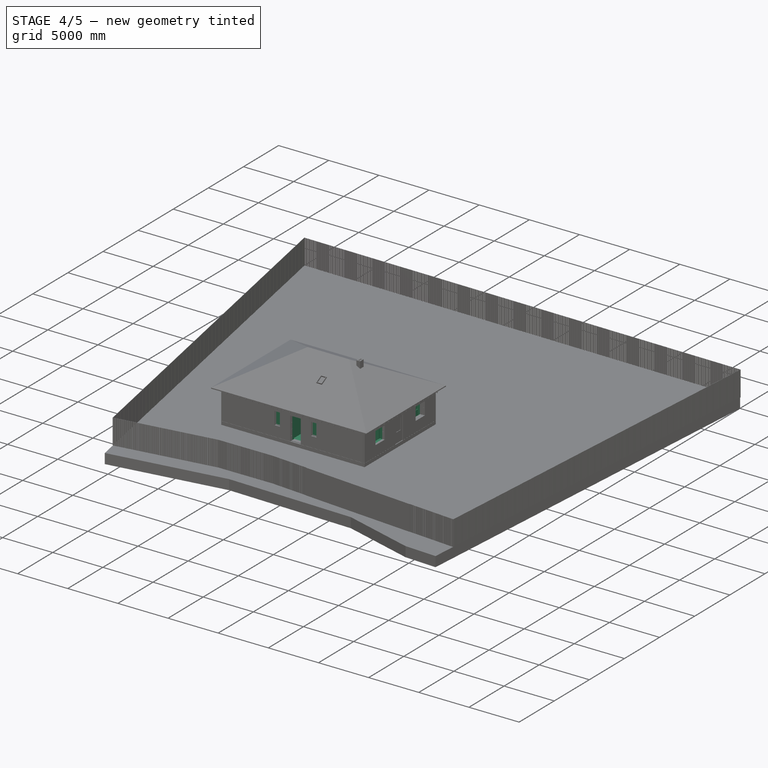
[diagram: stage 4 of 5 — iso view after this stage's code; geometry added in this stage tinted green]
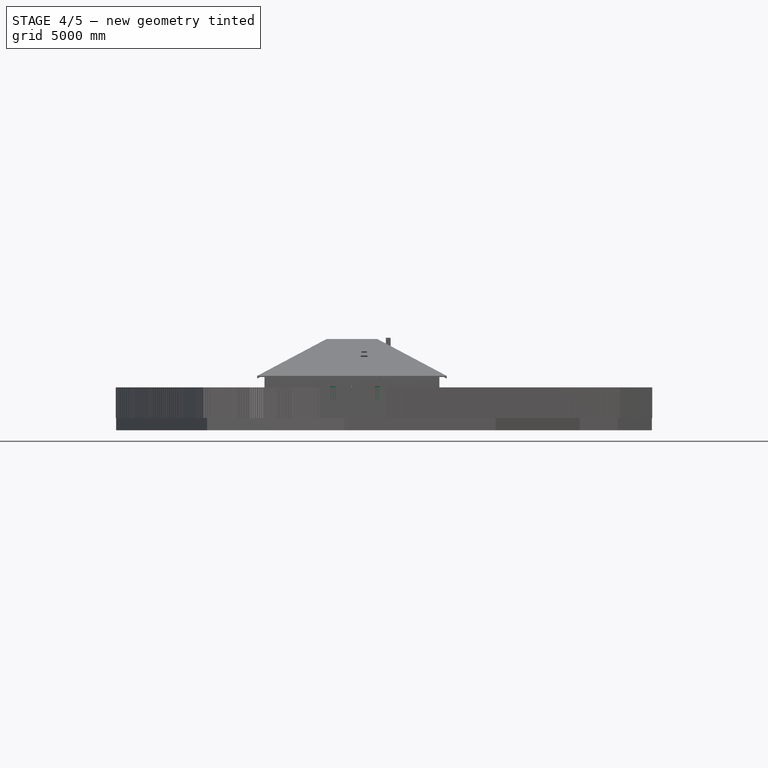
[diagram: stage 4 of 5 — front view after this stage's code; geometry added in this stage tinted green]
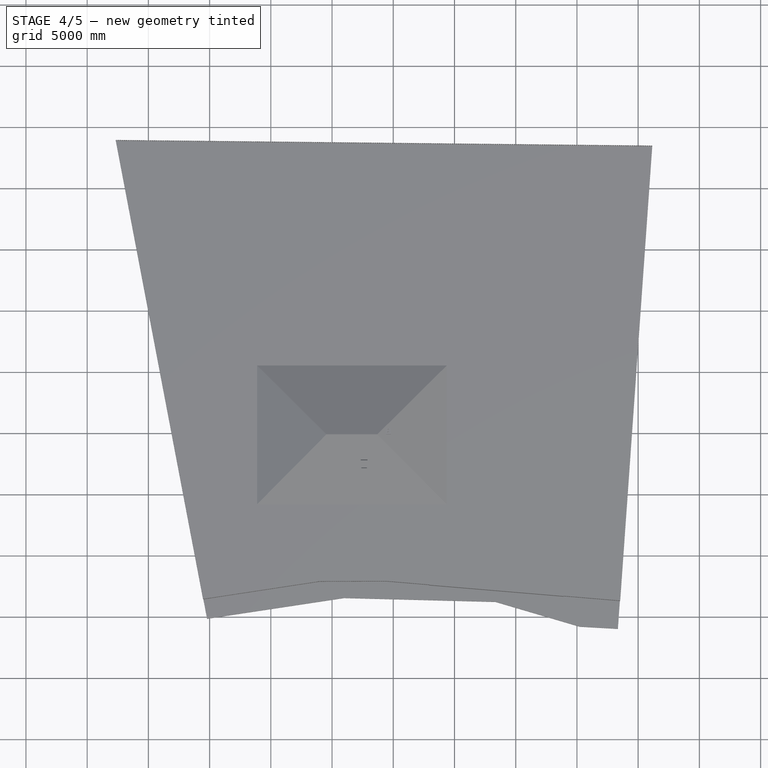
[diagram: stage 4 of 5 — top view after this stage's code; geometry added in this stage tinted green]
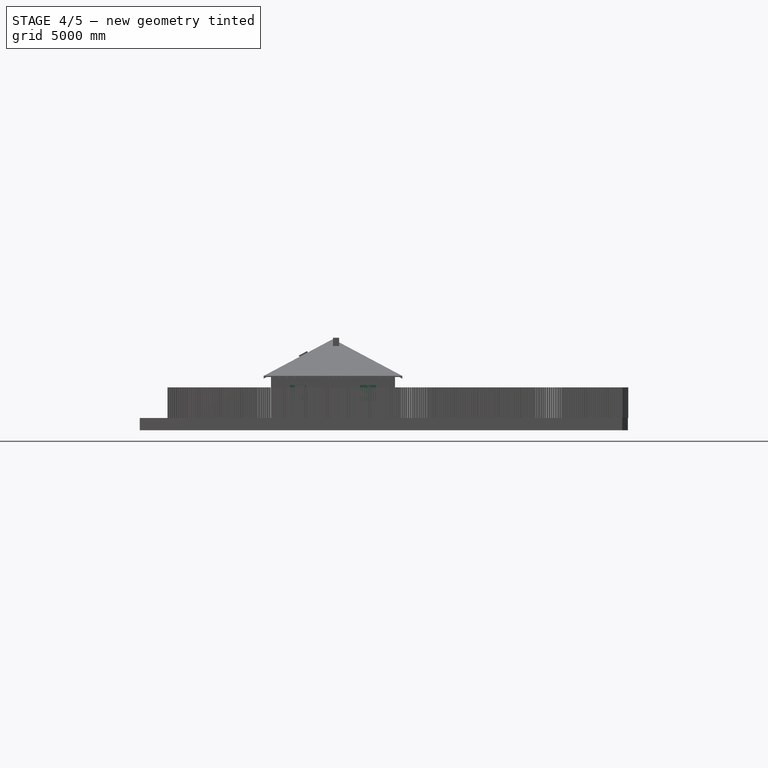
[diagram: stage 4 of 5 — right view after this stage's code; geometry added in this stage tinted green]
FEATURE [Part::Part2DObjectPython] Rectangle1992  label="проём в перекрытии 001"  # Draft 2D object (typed FeaturePython)
  ChamferSize = 0
  Columns = 1
  FilletRadius = 0
  Height = 3400
  Length = 1000
  MakeFace = false
  Placement = pos=(3980,5400,0) rot=(0,0,1;0rad)
  Rows = 1
FEATURE [Part::Part2DObjectPython] Rectangle2147  label="Д90-002"  # Draft 2D object (typed FeaturePython)
  ChamferSize = 0
  Columns = 1
  FilletRadius = 0
  Height = 900
  Length = 200
  MakeFace = true
  Placement = pos=(4600,1950,0) rot=(0,0,1;0rad)
  Rows = 1
FEATURE [Part::Part2DObjectPython] Rectangle2188  label="Д-170-002"  # Draft 2D object (typed FeaturePython)
  ChamferSize = 0
  Columns = 1
  FilletRadius = 0
  Height = 400
  Length = 1700
  MakeFace = true
  Placement = pos=(5775,9350,0) rot=(0,0,1;0rad)
  Rows = 1
FEATURE [Part::Part2DObjectPython] Rectangle2169  label="Д-100-2500-01"  # Draft 2D object (typed FeaturePython)
  ChamferSize = 0
  Columns = 1
  FilletRadius = 0
  Height = 400
  Length = 1000
  MakeFace = true
  Placement = pos=(6385,-140,0) rot=(0,0,1;0rad)
  Rows = 1
FEATURE [Part::Part2DObjectPython] Rectangle2189  label="Д-140-007"  # Draft 2D object (typed FeaturePython)
  ChamferSize = 0
  Columns = 1
  FilletRadius = 0
  Height = 400
  Length = 1400
  MakeFace = true
  Placement = pos=(1635,9350,0) rot=(0,0,1;0rad)
  Rows = 1
FEATURE [Part::Part2DObjectPython] Rectangle2190  label="Д-140-006"  # Draft 2D object (typed FeaturePython)
  ChamferSize = 0
  Columns = 1
  FilletRadius = 0
  Height = 400
  Length = 1400
  MakeFace = true
  Placement = pos=(10215,9350,0) rot=(0,0,1;0rad)
  Rows = 1
FEATURE [Part::Part2DObjectPython] Rectangle2231  label="ОК-640-002"  # Draft 2D object (typed FeaturePython)
  ChamferSize = 0
  Columns = 1
  FilletRadius = 0
  Height = 400
  Length = 640
  MakeFace = true
  Placement = pos=(8385,-140,0) rot=(0,0,1;0rad)
  Rows = 1
FEATURE [Part::Part2DObjectPython] Rectangle2200  label="Контур по утеплителю"  # Draft 2D object (typed FeaturePython)
  ChamferSize = 0
  Columns = 1
  FilletRadius = 0
  Height = 9890
  Length = 14050
  MakeFace = false
  Placement = pos=(-400,-140,0) rot=(0,0,1;0rad)
  Rows = 1
FEATURE [Part::Part2DObjectPython] Rectangle2230  label="ОК-640-001"  # Draft 2D object (typed FeaturePython)
  ChamferSize = 0
  Columns = 1
  FilletRadius = 0
  Height = 400
  Length = 640
  MakeFace = true
  Placement = pos=(4745,-140,0) rot=(0,0,1;0rad)
  Rows = 1
FEATURE [App::FeaturePython] Dimension001  # Draft dimension (typed FeaturePython)
  Diameter = false
  Dimline = (14300,-1000,0)
  Direction = (0,0,0)
  Distance = 9090
  End = (13250,9350,0)
  Normal = (0,0,1)
  Start = (13250,260,0)
FEATURE [App::FeaturePython] Dimension  # Draft dimension (typed FeaturePython)
  Diameter = false
  Dimline = (13600,-1000,0)
  Direction = (0,0,0)
  Distance = 13250
  End = (13250,8.101e-13,0)
  Normal = (0,0,1)
  Start = (0,-7.96e-13,0)
FEATURE [Part::FeaturePython] Axis  label="Оси верт."  # WARN: FeaturePython — macro-defined, semantics opaque (R4)
  Angles = [0,0,0,0]
  Distances = [-80,3900,5730,3800]
  Labels = A | B | C | D
  Length = 13000
  Placement = pos=(0,-2000,0) rot=(0,0,1;0rad)
FEATURE [Part::FeaturePython] Axis001  label="Оси гор."  # WARN: FeaturePython — macro-defined, semantics opaque (R4)
  Angles = [0,0,0,0]
  Distances = [180,3800,70,5400]
  Labels = 1 | 2 | 3 | 4
  Length = 15500
  Placement = pos=(14000,7.96e-13,0) rot=(0,0,1;1.5708rad)
FEATURE [App::FeaturePython] AxisSystem  label="Axis System"  # WARN: FeaturePython — macro-defined, semantics opaque (R4)
  Axes = -> [Axis,Axis001]
FEATURE [Part::Part2DObjectPython] Rectangle2234  # Draft 2D object (typed FeaturePython)
  ChamferSize = 0
  Columns = 1
  FilletRadius = 0
  Height = 1500
  Length = 3000
  MakeFace = false
  Placement = pos=(5385,-1770,0) rot=(0,0,1;0rad)
  Rows = 1
FEATURE [Part::Part2DObjectPython] Wire413  # Draft 2D object (typed FeaturePython)
  ChamferSize = 0
  Closed = true
  End = (4050,9820,0)
  FilletRadius = 0
  Length = 1520
  MakeFace = true
  Placement = pos=(3694.42,9968.26,0) rot=(0,0,1;0rad)
  Points = (4) [(-24.4187,-148.256,0),(-24.4187,231.744,0),(355.581,231.744,0),(355.581,-148.256,0)]
  Start = (3670,9820,0)
  Subdivisions = 0
FEATURE [Part::Part2DObjectPython] Wire414  # Draft 2D object (typed FeaturePython)
  ChamferSize = 0
  Closed = true
  End = (9840,9820,0)
  FilletRadius = 0
  Length = 1520
  MakeFace = true
  Placement = pos=(9484.42,9968.26,0) rot=(0,0,1;0rad)
  Points = (4) [(-24.4187,-148.256,0),(-24.4187,231.744,0),(355.581,231.744,0),(355.581,-148.256,0)]
  Start = (9460,9820,0)
  Subdivisions = 0
FEATURE [Part::Part2DObjectPython] Rectangle2237  # Draft 2D object (typed FeaturePython)
  ChamferSize = 0
  Columns = 1
  FilletRadius = 0
  Height = 300
  Length = 500
  MakeFace = false
  Placement = pos=(6730,10200,0) rot=(0,0,1;3.14159rad)
  Rows = 1
FEATURE [Part::Part2DObjectPython] Rectangle2238  # Draft 2D object (typed FeaturePython)
  ChamferSize = 0
  Columns = 1
  FilletRadius = 0
  Height = 300
  Length = 500
  MakeFace = false
  Placement = pos=(7330,10200,0) rot=(0,0,1;3.14159rad)
  Rows = 1
FEATURE [Part::Part2DObjectPython] Rectangle2239  # Draft 2D object (typed FeaturePython)
  ChamferSize = 0
  Columns = 1
  FilletRadius = 0
  Height = 300
  Length = 500
  MakeFace = false
  Placement = pos=(7780,9250,0) rot=(0,0,1;1.5708rad)
  Rows = 1
FEATURE [Part::Part2DObjectPython] Rectangle2240  # Draft 2D object (typed FeaturePython)
  ChamferSize = 0
  Columns = 1
  FilletRadius = 0
  Height = 300
  Length = 500
  MakeFace = false
  Placement = pos=(6080,9250,0) rot=(0,0,1;1.5708rad)
  Rows = 1
FEATURE [Part::Part2DObjectPython] Rectangle2241  # Draft 2D object (typed FeaturePython)
  ChamferSize = 0
  Columns = 1
  FilletRadius = 0
  Height = 300
  Length = 500
  MakeFace = false
  Placement = pos=(6730,9100,0) rot=(0,0,1;3.14159rad)
  Rows = 1
FEATURE [Part::Part2DObjectPython] Rectangle2242  # Draft 2D object (typed FeaturePython)
  ChamferSize = 0
  Columns = 1
  FilletRadius = 0
  Height = 300
  Length = 500
  MakeFace = false
  Placement = pos=(7330,9100,0) rot=(0,0,1;3.14159rad)
  Rows = 1
FEATURE [Part::Part2DObjectPython] Rectangle2243  # Draft 2D object (typed FeaturePython)
  ChamferSize = 0
  Columns = 1
  FilletRadius = 100
  Height = 800
  Length = 1400
  MakeFace = false
  Placement = pos=(7480,9900,0) rot=(0,0,1;3.14159rad)
  Rows = 1
FEATURE [Part::Part2DObjectPython] Wire418  label="Контур по кровле"  # Draft 2D object (typed FeaturePython)
  ChamferSize = 0
  Closed = true
  End = (-1170,8830,0)
  FilletRadius = 0
  Length = 54925.2
  MakeFace = false
  Placement = pos=(-1225,-1170,0) rot=(0,0,1;0rad)
  Points = (12) [(55,-1.81899e-12,0),(6000.8,-1.81899e-12,0),(6480,-830,0),(9480,-830,0),(9959.2,-1.81899e-12,0),(15905,-1.81899e-12,0),(15905,10000,0),+5 more]
  Start = (-1170,-1170,0)
  Subdivisions = 0
FEATURE [Part::FeaturePython] Structure003  label="Проём-Д-135-250-01"  # Arch/BIM 172 (typed FeaturePython)
  Base = -> Rectangle2189
  FaceMaker = 0
  Height = 2500
  HorizontalArea = 560000
  IfcType = 172
  Length = 0
  MoveBase = false
  MoveWithHost = false
  Nodes = (2) [(2335,9550,0),(2335,9550,2500)]
  NodesOffset = 0
  Normal = (0,0,0)
  PerimeterLength = 3600
  Placement = pos=(0,0,-180) rot=(0,0,1;0rad)
  PredefinedType = 0
  VerticalArea = 9000000
  Width = 100
FEATURE [Part::FeaturePython] Structure004  label="Проём-Д-135-250-02"  # Arch/BIM 172 (typed FeaturePython)
  Base = -> Rectangle2188
  FaceMaker = 0
  Height = 2500
  HorizontalArea = 680000
  IfcType = 172
  Length = 0
  MoveBase = false
  MoveWithHost = false
  Nodes = (2) [(6625,9550,0),(6625,9550,2500)]
  NodesOffset = 0
  Normal = (0,0,0)
  PerimeterLength = 4200
  Placement = pos=(0,0,-180) rot=(0,0,1;0rad)
  PredefinedType = 0
  VerticalArea = 1.05e+07
  Width = 100
FEATURE [Part::FeaturePython] Structure005  label="Проём-Д-135-250-03"  # Arch/BIM 172 (typed FeaturePython)
  Base = -> Rectangle2190
  FaceMaker = 0
  Height = 2500
  HorizontalArea = 560000
  IfcType = 172
  Length = 0
  MoveBase = false
  MoveWithHost = false
  Nodes = (2) [(10915,9550,0),(10915,9550,2500)]
  NodesOffset = 0
  Normal = (0,0,0)
  PerimeterLength = 3600
  Placement = pos=(0,0,-180) rot=(0,0,1;0rad)
  PredefinedType = 0
  VerticalArea = 9000000
  Width = 100
FEATURE [Part::FeaturePython] Structure016  label="Проём-ОК-135-150-01"  # Arch/BIM 172 (typed FeaturePython)
  Base = -> Rectangle2230
  FaceMaker = 0
  Height = 1350
  HorizontalArea = 256000
  IfcType = 172
  Length = 0
  MoveBase = false
  MoveWithHost = false
  Nodes = (2) [(5065,60,0),(5065,60,1350)]
  NodesOffset = 0
  Normal = (0,0,0)
  PerimeterLength = 2080
  Placement = pos=(0,0,970) rot=(0,0,1;0rad)
  PredefinedType = 0
  VerticalArea = 2.808e+06
  Width = 100
FEATURE [Part::FeaturePython] Structure017  label="Проём-ОК-115-150-01"  # Arch/BIM 172 (typed FeaturePython)
  Base = -> Rectangle2231
  FaceMaker = 0
  Height = 1350
  HorizontalArea = 256000
  IfcType = 172
  Length = 0
  MoveBase = false
  MoveWithHost = false
  Nodes = (2) [(8705,60,0),(8705,60,1350)]
  NodesOffset = 0
  Normal = (0,0,0)
  PerimeterLength = 2080
  Placement = pos=(0,0,970) rot=(0,0,1;0rad)
  PredefinedType = 0
  VerticalArea = 2.808e+06
  Width = 100
FEATURE [Part::FeaturePython] Structure019  label="Проём-Д-100-250-004"  # Arch/BIM 172 (typed FeaturePython)
  Base = -> Rectangle2169
  FaceMaker = 0
  Height = 2500
  HorizontalArea = 400000
  IfcType = 172
  Length = 0
  MoveBase = false
  MoveWithHost = false
  Nodes = (2) [(6885,60,0),(6885,60,2500)]
  NodesOffset = 0
  Normal = (0,0,0)
  PerimeterLength = 2800
  Placement = pos=(0,0,-180) rot=(0,0,1;0rad)
  PredefinedType = 0
  VerticalArea = 7e+06
  Width = 100
FEATURE [Part::Part2DObjectPython] Rectangle2256  label="Контур по ГБ"  # Draft 2D object (typed FeaturePython)
  ChamferSize = 0
  Columns = 1
  FilletRadius = 0
  Height = 9090
  Length = 13250
  MakeFace = false
  Placement = pos=(-1.59e-14,260,0) rot=(0,0,1;0rad)
  Rows = 1
FEATURE [Part::Part2DObjectPython] Line1045  # Draft 2D object (typed FeaturePython)
  ChamferSize = 0
  Closed = true
  End = (-250,9600,0)
  FilletRadius = 0
  Length = 9340
  MakeFace = false
  Placement = pos=(-250,100,0) rot=(0,0,1;0rad)
  Points = (2) [(2.55795e-13,160,0),(2.55795e-13,9500,0)]
  Start = (-250,260,0)
  Subdivisions = 0
FEATURE [Part::Part2DObjectPython] Line1046  # Draft 2D object (typed FeaturePython)
  ChamferSize = 0
  Closed = true
  End = (13250,9600,0)
  FilletRadius = 0
  Length = 13250
  MakeFace = false
  Placement = pos=(-1.194e-12,9600,0) rot=(0,0,1;0rad)
  Points = (2) [(0,0,0),(13250,0,0)]
  Start = (-1.194e-12,9600,0)
  Subdivisions = 0
FEATURE [Part::Part2DObjectPython] Line1047  # Draft 2D object (typed FeaturePython)
  ChamferSize = 0
  Closed = true
  End = (13500,9600,0)
  FilletRadius = 0
  Length = 9590
  MakeFace = false
  Placement = pos=(13500,9800,0) rot=(0,0,1;0rad)
  Points = (2) [(0,-9790,0),(0,-200,0)]
  Start = (13500,10,0)
  Subdivisions = 0
FEATURE [Part::Part2DObjectPython] Line1048  # Draft 2D object (typed FeaturePython)
  ChamferSize = 0
  Closed = true
  End = (13250,10,0)
  FilletRadius = 0
  Length = 13500
  MakeFace = false
  Placement = pos=(13571.8,-1677.87,0) rot=(0,0,1;0rad)
  Points = (2) [(-13821.8,1687.87,0),(-321.835,1687.87,0)]
  Start = (-250,10,0)
  Subdivisions = 0
FEATURE [Part::Part2DObjectPython] Line1049  # Draft 2D object (typed FeaturePython)
  ChamferSize = 0
  Closed = true
  End = (3730,9350,0)
  FilletRadius = 0
  Length = 3020
  MakeFace = false
  Placement = pos=(11310,4100,0) rot=(0,0,1;0rad)
  Points = (2) [(-7580,2230,0),(-7580,5250,0)]
  Start = (3730,6330,0)
  Subdivisions = 0
FEATURE [Part::FeaturePython] Wall005  label="Стена 250мм 022"  # Arch/BIM 166 (typed FeaturePython)
  Align = 0
  Area = 3.64375e+07
  Base = -> Line1046
  BlockHeight = 250
  BlockLength = 625
  CountBroken = 77
  CountEntire = 125
  Face = 0
  Height = 2750
  HorizontalArea = 3312500
  IfcType = 166
  Joint = 0
  Length = 13250
  MakeBlocks = false
  MoveBase = false
  MoveWithHost = false
  Normal = (0,0,0)
  OffsetFirst = 200
  OffsetSecond = 0
  PerimeterLength = 27000
  Placement = pos=(0,0,-180) rot=(0,0,1;0rad)
  PredefinedType = 0
  Subtractions = -> [Structure003,Structure004,Structure005]
  VerticalArea = 55500000
  Width = 250
FEATURE [Part::FeaturePython] Wall006  label="Стена 250мм 001"  # Arch/BIM 166 (typed FeaturePython)
  Align = 1
  Area = 37125000
  Base = -> Line1048
  BlockHeight = 250
  BlockLength = 625
  CountBroken = 66
  CountEntire = 168
  Face = 0
  Height = 2750
  HorizontalArea = 3.695e+06
  IfcType = 166
  Joint = 0
  Length = 13500
  MakeBlocks = false
  MoveBase = false
  MoveWithHost = false
  Normal = (0,0,0)
  OffsetFirst = 0
  OffsetSecond = 200
  PerimeterLength = 0
  Placement = pos=(0,0,-180) rot=(0,0,1;0rad)
  PredefinedType = 0
  Subtractions = -> [Structure019,Structure016,Structure017]
  VerticalArea = 6.9769e+07
  Width = 250
FEATURE [Part::FeaturePython] Wall015  label="перегородка 007"  # Arch/BIM 166 (typed FeaturePython)
  Align = 0
  Area = 9900000
  Base = -> Line1054
  BlockHeight = 250
  BlockLength = 625
  CountBroken = 16
  CountEntire = 55
  Face = 0
  Height = 2750
  HorizontalArea = 432000
  IfcType = 166
  Joint = 0
  Length = 3600
  MakeBlocks = false
  MoveBase = false
  MoveWithHost = false
  Normal = (0,0,0)
  OffsetFirst = 0
  OffsetSecond = 300
  PerimeterLength = 7440
  PredefinedType = 0
  VerticalArea = 2.046e+07
  Width = 120
FEATURE [Part::Part2DObjectPython] Rectangle2266  label="внешн._контур"  # Draft 2D object (typed FeaturePython)
  ChamferSize = 0
  Columns = 1
  FilletRadius = 0
  Height = 9790
  Length = 13950
  MakeFace = false
  Placement = pos=(-350,-90,0) rot=(0,0,1;0rad)
  Rows = 1
FEATURE [Part::FeaturePython] Wall046  label="утепл фунд. внешней.стены 002"  # Arch/BIM 166 (typed FeaturePython)
  Align = 1
  Area = 28488000
  Base = -> Rectangle2266
  BlockHeight = 600
  BlockLength = 600
  CountBroken = 4
  CountEntire = 74
  Face = 0
  Height = 600
  HorizontalArea = 0
  IfcType = 166
  Joint = 1
  Length = 47480
  MakeBlocks = true
  MoveBase = false
  MoveWithHost = false
  Normal = (0,0,-1)
  OffsetFirst = 0
  OffsetSecond = 0
  PerimeterLength = 0
  Placement = pos=(0,0,-380) rot=(0,0,1;0rad)
  PredefinedType = 0
  VerticalArea = 0
  Width = 80
FEATURE [Part::FeaturePython] Wall047  label="утепл отмостки 001"  # Arch/BIM 166 (typed FeaturePython)
  Align = 1
  Area = 2374000
  Base = -> Rectangle2266
  BlockHeight = 600
  BlockLength = 1200
  CountBroken = 39
  CountEntire = 0
  Face = 0
  Height = 50
  HorizontalArea = 0
  IfcType = 166
  Joint = 1
  Length = 47480
  MakeBlocks = true
  MoveBase = false
  MoveWithHost = false
  Normal = (0,0,-1)
  Offset = 80
  OffsetFirst = 0
  OffsetSecond = 0
  PerimeterLength = 0
  Placement = pos=(0,0,-930) rot=(0,0,1;0rad)
  PredefinedType = 0
  VerticalArea = 0
  Width = 600
FEATURE [Part::Part2DObjectPython] Rectangle2270  label="перекрытие монолит.уч. контур 003"  # Draft 2D object (typed FeaturePython)
  ChamferSize = 0
  Columns = 1
  FilletRadius = 0
  Height = 5205
  Length = 1170
  MakeFace = false
  Placement = pos=(3810,4135,0) rot=(0,0,1;0rad)
  Rows = 1
FEATURE [Part::FeaturePython] Structure038  label="перекрытие монолит.уч. 002"  # Arch/BIM 172 (typed FeaturePython)
  Base = -> Rectangle2270
  FaceMaker = 0
  Height = 160
  HorizontalArea = 2689850
  IfcType = 172
  Length = 0
  MoveBase = false
  MoveWithHost = false
  Nodes = (2) [(4395,6737.5,0),(4395,6737.5,160)]
  NodesOffset = 0
  Normal = (0,0,0)
  PerimeterLength = 14750
  Placement = pos=(0,0,2750) rot=(0,0,1;0rad)
  PredefinedType = 0
  Subtractions = -> [Structure037]
  VerticalArea = 2360000
  Width = 100
FEATURE [TechDraw::DrawSVGTemplate] Template
  EditableTexts = AUTHOR_NAME=<owner>,DN=001,DRAWING_TITLE=Планировка одноэтажного дома,FC-DATE=26/04/2021,FC-REV=REV A,FC-SC=1:50,FC-SH=1 / 1,FC-SI=A2,+2 more (map truncated)
  Height = 420
  Orientation = 1
  Width = 594
FEATURE [TechDraw::DrawPage] Page  label="лист 1 - планировка"
  KeepUpdated = true
  NextBalloonIndex = 1
  ProjectionType = 0
  Scale = 0.02
  Template = -> Template
FEATURE [Part::Part2DObjectPython] Polygon  # Draft 2D object (typed FeaturePython)
  ChamferSize = 0
  DrawMode = 0
  FacesNumber = 6
  FilletRadius = 0
  MakeFace = false
  Placement = pos=(5975,6030,0) rot=(0,0,1;0rad)
  Radius = 5500
FEATURE [Part::Part2DObjectPython] Polygon001  # Draft 2D object (typed FeaturePython)
  ChamferSize = 0
  DrawMode = 0
  FacesNumber = 6
  FilletRadius = 0
  MakeFace = false
  Placement = pos=(5975,598.076,0) rot=(0,0,1;0rad)
  Radius = 3000
FEATURE [Part::Part2DObjectPython] Line1097  # Draft 2D object (typed FeaturePython)
  ChamferSize = 0
  Closed = true
  End = (7900,260,0)
  FilletRadius = 0
  Length = 1840
  MakeFace = false
  Placement = pos=(8800,2500,0) rot=(0,0,-1;1.5708rad)
  Points = (2) [(400,-900,0),(2240,-900,0)]
  Start = (7900,2100,0)
  Subdivisions = 0
FEATURE [Part::Part2DObjectPython] Line1098  # Draft 2D object (typed FeaturePython)
  ChamferSize = 0
  Closed = false
  End = (6755,-100,0)
  FilletRadius = 0
  Length = 7860
  MakeFace = false
  Placement = pos=(6755,7760,0) rot=(0,0,1;0rad)
  Points = (2) [(0,0,0),(-9.09495e-13,-7860,0)]
  Start = (6755,7760,0)
  Subdivisions = 0
FEATURE [Part::Part2DObjectPython] Rectangle2343  label="ОК-140-011"  # Draft 2D object (typed FeaturePython)
  ChamferSize = 0
  Columns = 1
  FilletRadius = 0
  Height = 400
  Length = 1400
  MakeFace = true
  Placement = pos=(13250,2645,0) rot=(0,0,-1;1.5708rad)
  Rows = 1
FEATURE [Part::FeaturePython] Structure056  label="Проём-ОК-90-60-001"  # Arch/BIM 172 (typed FeaturePython)
  Base = -> Rectangle2343
  FaceMaker = 0
  Height = 1350
  HorizontalArea = 560000
  IfcType = 172
  Length = 0
  MoveBase = false
  MoveWithHost = false
  Nodes = (2) [(1035,250,0),(1035,250,600)]
  NodesOffset = 0
  Normal = (0,0,0)
  PerimeterLength = 3600
  Placement = pos=(0,0,970) rot=(0,0,1;0rad)
  PredefinedType = 0
  VerticalArea = 4860000
  Width = 100
FEATURE [Part::FeaturePython] Structure069  label="утепление пола в проёмах 017"  # Arch/BIM 172 (typed FeaturePython)
  Base = -> Rectangle2169
  FaceMaker = 0
  Height = 100
  HorizontalArea = 400000
  IfcType = 172
  Length = 0
  MoveBase = false
  MoveWithHost = false
  Nodes = (2) [(6885,60,0),(6885,60,100)]
  NodesOffset = 0
  Normal = (0,0,1)
  PerimeterLength = 2800
  Placement = pos=(0,0,-180) rot=(0,0,1;0rad)
  PredefinedType = 0
  VerticalArea = 280000
  Width = 100
FEATURE [Part::FeaturePython] Structure070  label="утепление пола в проёмах 018"  # Arch/BIM 172 (typed FeaturePython)
  Base = -> Rectangle2189
  FaceMaker = 0
  Height = 100
  HorizontalArea = 560000
  IfcType = 172
  Length = 0
  MoveBase = false
  MoveWithHost = false
  Nodes = (2) [(2335,9550,0),(2335,9550,100)]
  NodesOffset = 0
  Normal = (0,0,1)
  PerimeterLength = 3600
  Placement = pos=(0,0,-180) rot=(0,0,1;0rad)
  PredefinedType = 0
  VerticalArea = 360000
  Width = 100
FEATURE [Part::FeaturePython] Structure071  label="утепление пола в проёмах 019"  # Arch/BIM 172 (typed FeaturePython)
  Base = -> Rectangle2188
  FaceMaker = 0
  Height = 100
  HorizontalArea = 680000
  IfcType = 172
  Length = 0
  MoveBase = false
  MoveWithHost = false
  Nodes = (2) [(6625,9550,0),(6625,9550,100)]
  NodesOffset = 0
  Normal = (0,0,1)
  PerimeterLength = 4200
  Placement = pos=(0,0,-180) rot=(0,0,1;0rad)
  PredefinedType = 0
  VerticalArea = 420000
  Width = 100
FEATURE [Part::FeaturePython] Structure072  label="утепление пола в проёмах 020"  # Arch/BIM 172 (typed FeaturePython)
  Base = -> Rectangle2190
  FaceMaker = 0
  Height = 100
  HorizontalArea = 560000
  IfcType = 172
  Length = 0
  MoveBase = false
  MoveWithHost = false
  Nodes = (2) [(10915,9550,0),(10915,9550,100)]
  NodesOffset = 0
  Normal = (0,0,1)
  PerimeterLength = 3600
  Placement = pos=(0,0,-180) rot=(0,0,1;0rad)
  PredefinedType = 0
  VerticalArea = 360000
  Width = 100
FEATURE [Part::Part2DObjectPython] Rectangle2582  label="Д-100-2500-02"  # Draft 2D object (typed FeaturePython)
  ChamferSize = 0
  Columns = 1
  FilletRadius = 0
  Height = 400
  Length = 1000
  MakeFace = true
  Placement = pos=(13650,4175,0) rot=(0,0,1;1.5708rad)
  Rows = 1
FEATURE [Part::FeaturePython] Structure066  label="утепление пола в проёмах 014"  # Arch/BIM 172 (typed FeaturePython)
  Base = -> Rectangle2582
  FaceMaker = 0
  Height = 100
  HorizontalArea = 400000
  IfcType = 172
  Length = 0
  MoveBase = false
  MoveWithHost = false
  Nodes = (2) [(4000,4250,0),(4000,4250,100)]
  NodesOffset = 0
  Normal = (0,0,1)
  PerimeterLength = 2800
  Placement = pos=(0,0,-180) rot=(0,0,1;0rad)
  PredefinedType = 0
  VerticalArea = 280000
  Width = 100
FEATURE [Part::FeaturePython] Wall008  label="Стена 250мм 019"  # Arch/BIM 166 (typed FeaturePython)
  Align = 1
  Area = 26372500
  Base = -> Line1047
  BlockHeight = 250
  BlockLength = 625
  CountBroken = 63
  CountEntire = 101
  Face = 0
  Height = 2750
  HorizontalArea = 3097500
  IfcType = 166
  Joint = 0
  Length = 9590
  MakeBlocks = false
  MoveBase = false
  MoveWithHost = false
  Normal = (0,0,0)
  OffsetFirst = 200
  OffsetSecond = 0
  PerimeterLength = 0
  Placement = pos=(0,0,-180) rot=(0,0,1;0rad)
  PredefinedType = 0
  Subtractions = -> [Structure056,Structure153,Structure152]
  VerticalArea = 44160000
  Width = 250
FEATURE [Part::Part2DObjectPython] Rectangle556  label="вытяжка осн мал"  # Draft 2D object (typed FeaturePython)
  ChamferSize = 0
  Columns = 1
  FilletRadius = 0
  Height = 400
  Length = 400
  MakeFace = false
  Placement = pos=(12850,6000,1600) rot=(0,0,1;0rad)
  Rows = 1
FEATURE [Part::Box] Box3144  label="тумба под ТВ"
  AttacherType = Attacher::AttachEngine3D
  Height = 550
  Length = 1600
  Placement = pos=(3430,8050,0) rot=(0,0,-1;1.5708rad)
  Width = 300
FEATURE [Part::Box] Box3145  label="ТВ"
  AttacherType = Attacher::AttachEngine3D
  Height = 750
  Length = 1400
  Placement = pos=(4930,8250,620) rot=(0,0,-1;1.5708rad)
  Width = 100
FEATURE [Part::Box] Box3143  label="шкаф книжн. "
  AttacherType = Attacher::AttachEngine3D
  Height = 2700
  Length = 1000
  Placement = pos=(10000,3000,0) rot=(0,0,1;1.5708rad)
  Width = 350
FEATURE [Part::Feature] Fillet001  label="стол обеденный"
  Placement = pos=(10750,6825,0) rot=(0,0,1;0rad)
  shape: bbox 1500 x 750 x 750 mm, 30 faces (baked)
FEATURE [Part::Feature] Fusion013  label="стул005"
  Placement = pos=(10750,6825,0) rot=(0,0,1;0rad)
  shape: bbox 480 x 520 x 910 mm, 35 faces (baked)
FEATURE [Part::Feature] Fusion014  label="стул006"
  Placement = pos=(10750,6825,0) rot=(0,0,1;0rad)
  shape: bbox 480 x 520 x 910 mm, 35 faces (baked)
FEATURE [Part::Feature] Fusion015  label="стул007"
  Placement = pos=(10750,6825,0) rot=(0,0,1;0rad)
  shape: bbox 480 x 520 x 910 mm, 35 faces (baked)
FEATURE [Part::Feature] Fusion016  label="стул008"
  Placement = pos=(10750,6825,0) rot=(0,0,1;0rad)
  shape: bbox 480 x 520 x 910 mm, 35 faces (baked)
FEATURE [Part::Feature] Box  label="тумбочка 400х450 004"
  Placement = pos=(50,8200,0) rot=(0,0,1;0rad)
  shape: bbox 500 x 400 x 650 mm, 6 faces (baked)
FEATURE [Part::Feature] Box3151  label="тумбочка 400х450 005"
  Placement = pos=(50,5900,0) rot=(0,0,1;0rad)
  shape: bbox 500 x 400 x 650 mm, 6 faces (baked)
FEATURE [Part::Feature] Box3152  label="тумбочка 400х450 006"
  Placement = pos=(3150,50,0) rot=(0,0,1;1.5708rad)
  shape: bbox 400 x 500 x 650 mm, 6 faces (baked)
FEATURE [Part::Feature] Box3153  label="тумбочка 400х450 007"
  Placement = pos=(850,50,0) rot=(0,0,1;1.5708rad)
  shape: bbox 400 x 500 x 650 mm, 6 faces (baked)
FEATURE [Part::Box] Box3154  label="шкаф 60 одежда 001"
  AttacherType = Attacher::AttachEngine3D
  Height = 2700
  Length = 1800
  Placement = pos=(6280,-1.14e-13,0) rot=(0,0,1;1.5708rad)
  Width = 600
FEATURE [Part::Box] Box3155  label="шкаф 60 одежда 002"
  AttacherType = Attacher::AttachEngine3D
  Height = 2700
  Length = 1380
  Placement = pos=(8020,1680,0) rot=(0,0,1;0rad)
  Width = 600
FEATURE [Part::Box] Box3156  label="шкаф 60 одежда 003"
  AttacherType = Attacher::AttachEngine3D
  Height = 2700
  Length = 2400
  Placement = pos=(0,3300,0) rot=(0,0,1;0rad)
  Width = 600
FEATURE [Part::Box] Box3157  label="шкаф 60 одежда 004"
  AttacherType = Attacher::AttachEngine3D
  Height = 2700
  Length = 2330
  Placement = pos=(0,4150,0) rot=(0,0,1;0rad)
  Width = 600
FEATURE [Part::Box] Box3159  label="ТВ001"
  AttacherType = Attacher::AttachEngine3D
  Height = 750
  Length = 1300
  Placement = pos=(3530,7900,620) rot=(0,0,-1;1.5708rad)
  Width = 100
FEATURE [Part::Box] Box3160  label="тумба под ТВ001"
  AttacherType = Attacher::AttachEngine3D
  Height = 550
  Length = 1500
  Placement = pos=(4530,8300,0) rot=(0,0,-1;1.5708rad)
  Width = 600
FEATURE [Part::Box] Box3163  label="обувница"
  AttacherType = Attacher::AttachEngine3D
  Height = 500
  Length = 1200
  Placement = pos=(8200,-2.27e-13,0) rot=(0,0,1;0rad)
  Width = 450
FEATURE [Part::Box] Box3164  label="Вешалка"
  AttacherType = Attacher::AttachEngine3D
  Height = 400
  Length = 1200
  Placement = pos=(8200,0,2000) rot=(0,0,1;0rad)
  Width = 450
FEATURE [Part::Feature] Fillet003  label="Столик журнальный"
  Placement = pos=(9548.81,1212.23,0) rot=(0,0,1;0rad)
  shape: bbox 1000 x 1000 x 530 mm, 34 faces, 5 solids (baked)
FEATURE [Part::Box] Box3183  label="морозильник 60 см"
  AttacherType = Attacher::AttachEngine3D
  Height = 1800
  Length = 600
  Placement = pos=(12650,-1e-15,0) rot=(0,0,1;0rad)
  Width = 600
FEATURE [Part::Box] Box3184  label="СМ"
  AttacherType = Attacher::AttachEngine3D
  Height = 800
  Length = 600
  Placement = pos=(5680,1820,0) rot=(0,0,1;0rad)
  Width = 600
FEATURE [Part::Box] Box3185  label="СШМ"
  AttacherType = Attacher::AttachEngine3D
  Height = 800
  Length = 600
  Placement = pos=(5680,1820,800) rot=(0,0,1;0rad)
  Width = 600
FEATURE [Part::Box] Box3186  label="шкаф 002"
  AttacherType = Attacher::AttachEngine3D
  Height = 2700
  Length = 700
  Placement = pos=(600,4750,0) rot=(0,0,1;1.5708rad)
  Width = 600
FEATURE [Part::Box] Box3187  label="кожух инсталляции 001"
  AttacherType = Attacher::AttachEngine3D
  Height = 1150
  Length = 150
  Placement = pos=(3730.6,2980,0) rot=(0,0,1;0rad)
  Width = 910
FEATURE [Part::Feature] Cut017  label="Умывальник 35х60 001"
  Placement = pos=(540,-240,0) rot=(0,0,1;0rad)
  shape: bbox 353.2 x 600 x 800 mm, 15 faces (baked)
FEATURE [Part::Feature] Cut018  label="Умывальник 35х60 008"
  Placement = pos=(540,360,0) rot=(0,0,1;0rad)
  shape: bbox 353.2 x 600 x 800 mm, 15 faces (baked)
FEATURE [Part::Feature] Cut019  label="Умывальник 35х60 007"
  Placement = pos=(4480,820,0) rot=(0,0,1;0rad)
  shape: bbox 353.2 x 600 x 800 mm, 15 faces (baked)
FEATURE [Part::Feature] Fusion041  label="унитаз с инсталляцией 002"
  Placement = pos=(-2520,-2175.12,0) rot=(0,0,1;0rad)
  shape: bbox 700 x 400 x 1150 mm, 15 faces (baked)
FEATURE [Part::Feature] Fusion042  label="унитаз с инсталляцией 001"
  Placement = pos=(15630.6,8985.12,0) rot=(0,0,1;3.14159rad)
  shape: bbox 700 x 400 x 1150 mm, 15 faces (baked)
FEATURE [Part::Box] Box3191  label="кулер"
  AttacherType = Attacher::AttachEngine3D
  Height = 800
  Length = 400
  Placement = pos=(11950,8950,0) rot=(0,0,1;0rad)
  Width = 400
FEATURE [Part::Cylinder] Cylinder  label="бутыль воды"
  Angle = 360
  AttacherType = Attacher::AttachEngine3D
  Height = 500
  Placement = pos=(12150,9150,800) rot=(0,0,1;0rad)
  Radius = 175
FEATURE [Part::Box] Box3192  label="кофеварка"
  AttacherType = Attacher::AttachEngine3D
  Height = 250
  Length = 200
  Placement = pos=(12787.9,9043.03,800) rot=(0,0,1;0rad)
  Width = 250
FEATURE [Part::Cylinder] Cylinder001  label="чайник"
  Angle = 360
  AttacherType = Attacher::AttachEngine3D
  Height = 250
  Placement = pos=(13101,9143.73,800) rot=(0,0,1;0rad)
  Radius = 75
FEATURE [Part::Box] Box3195  label="шкаф 45 кухонный 003"
  AttacherType = Attacher::AttachEngine3D
  Height = 400
  Length = 3000
  Placement = pos=(10250,5370,2300) rot=(0,0,1;0rad)
  Width = 600
FEATURE [Part::Box] Box3196  label="шкаф 60 кухонный 004"
  AttacherType = Attacher::AttachEngine3D
  Height = 400
  Length = 600
  Placement = pos=(9650,5370,2300) rot=(0,0,1;0rad)
  Width = 600
FEATURE [Part::Part2DObjectPython] Arc079  label="Arc081"  # Draft 2D object (typed FeaturePython)
  FirstAngle = 90
  LastAngle = 180
  MakeFace = true
  Placement = pos=(3500,5450,0) rot=(0,0,1;0rad)
  Radius = 900
FEATURE [Part::Part2DObjectPython] Line1237  label="Line1238"  # Draft 2D object (typed FeaturePython)
  ChamferSize = 0
  Closed = false
  End = (3500,6350,0)
  FilletRadius = 0
  Length = 900
  MakeFace = true
  Placement = pos=(3500,5450,0) rot=(0,0,1;0rad)
  Points = (2) [(0,0,0),(0,900,0)]
  Start = (3500,5450,0)
  Subdivisions = 0
FEATURE [Part::Part2DObjectPython] Rectangle2695  label="Д90-014"  # Draft 2D object (typed FeaturePython)
  ChamferSize = 0
  Columns = 1
  FilletRadius = 0
  Height = 120
  Length = 900
  MakeFace = true
  Placement = pos=(2600,5330,0) rot=(0,0,1;0rad)
  Rows = 1
FEATURE [Part::FeaturePython] Structure026  label="Проём-Д80-003"  # Arch/BIM 172 (typed FeaturePython)
  Base = -> Rectangle2695
  FaceMaker = 0
  Height = 2070
  HorizontalArea = 108000
  IfcType = 172
  Length = 0
  MoveBase = false
  MoveWithHost = false
  Nodes = (2) [(13000,6050,0),(13000,6050,2180)]
  NodesOffset = 0
  Normal = (0,0,0)
  PerimeterLength = 2040
  PredefinedType = 0
  VerticalArea = 4222800
  Width = 100
FEATURE [Part::FeaturePython] Wall020  label="перегородка 035"  # Arch/BIM 166 (typed FeaturePython)
  Align = 1
  Area = 3355000
  Base = -> Line1059
  BlockHeight = 250
  BlockLength = 625
  CountBroken = 26
  CountEntire = 3
  Face = 0
  Height = 2750
  HorizontalArea = 146400
  IfcType = 166
  Joint = 0
  Length = 1220
  MakeBlocks = false
  MoveBase = false
  MoveWithHost = false
  Normal = (0,0,0)
  OffsetFirst = 0
  OffsetSecond = 300
  PerimeterLength = 2680
  PredefinedType = 0
  Subtractions = -> [Structure026]
  VerticalArea = 4.1408e+06
  Width = 120
FEATURE [Part::FeaturePython] Wall014  label="перегородка 008"  # Arch/BIM 166 (typed FeaturePython)
  Align = 0
  Area = 4125000
  Base = -> Line1053
  BlockHeight = 250
  BlockLength = 625
  CountBroken = 34
  CountEntire = 15
  Face = 0
  Height = 2750
  HorizontalArea = 180000
  IfcType = 166
  Joint = 0
  Length = 1500
  MakeBlocks = false
  MoveBase = false
  MoveWithHost = false
  Normal = (0,0,0)
  OffsetFirst = 0
  OffsetSecond = 300
  PerimeterLength = 3240
  PredefinedType = 0
  Subtractions = -> [Structure141]
  VerticalArea = 6.5088e+06
  Width = 120
FEATURE [Part::FeaturePython] Wall073  label="перегородка 037"  # Arch/BIM 166 (typed FeaturePython)
  Additions = -> [Wall014]
  Align = 1
  Area = 5.06e+06
  Base = -> Line1097
  BlockHeight = 250
  BlockLength = 625
  CountBroken = 22
  CountEntire = 16
  Face = 0
  Height = 2750
  HorizontalArea = 386400
  IfcType = 166
  Joint = 0
  Length = 1840
  MakeBlocks = false
  MoveBase = false
  MoveWithHost = false
  Normal = (0,0,0)
  OffsetFirst = 300
  OffsetSecond = 50
  PerimeterLength = 6680
  PredefinedType = 0
  VerticalArea = 1.59688e+07
  Width = 120
FEATURE [Sketcher::SketchObject] Sketch281
  FullyConstrained = true
  Placement = pos=(8385,-140,970) rot=(1,0,0;1.5708rad)
  sketch-geometry (16):
    g0: LineSegment StartX=0 StartY=0 StartZ=0 EndX=640 EndY=0 EndZ=0
    g1: LineSegment StartX=640 StartY=0 StartZ=0 EndX=640 EndY=1350 EndZ=0
    g2: LineSegment StartX=640 StartY=1350 StartZ=0 EndX=0 EndY=1350 EndZ=0
    g3: LineSegment StartX=0 StartY=1350 StartZ=0 EndX=0 EndY=0 EndZ=0
    g4: LineSegment StartX=50 StartY=50 StartZ=0 EndX=590 EndY=50 EndZ=0
    g5: LineSegment StartX=590 StartY=50 StartZ=0 EndX=590 EndY=1300 EndZ=0
    g6: LineSegment StartX=590 StartY=1300 StartZ=0 EndX=50 EndY=1300 EndZ=0
    g7: LineSegment StartX=50 StartY=1300 StartZ=0 EndX=50 EndY=50 EndZ=0
    g8: LineSegment StartX=55 StartY=55 StartZ=0 EndX=585 EndY=55 EndZ=0
    g9: LineSegment StartX=585 StartY=55 StartZ=0 EndX=585 EndY=1295 EndZ=0
    g10: LineSegment StartX=585 StartY=1295 StartZ=0 EndX=55 EndY=1295 EndZ=0
    g11: LineSegment StartX=55 StartY=1295 StartZ=0 EndX=55 EndY=55 EndZ=0
    g12: LineSegment StartX=105 StartY=105 StartZ=0 EndX=535 EndY=105 EndZ=0
    g13: LineSegment StartX=535 StartY=105 StartZ=0 EndX=535 EndY=1245 EndZ=0
    g14: LineSegment StartX=535 StartY=1245 StartZ=0 EndX=105 EndY=1245 EndZ=0
    g15: LineSegment StartX=105 StartY=1245 StartZ=0 EndX=105 EndY=105 EndZ=0
  constraints (47):
    c: Coincident(g0,g1)
    c: Coincident(g1,g2)
    c: Coincident(g2,g3)
    c: Coincident(g3,g0)
    c: Horizontal(g0)
    c: Horizontal(g2)
    c: Vertical(g1)
    c: Vertical(g3)
    c: Coincident(g4,g5)
    c: Coincident(g5,g6)
    c: Coincident(g6,g7)
    c: Coincident(g7,g4)
    c: Horizontal(g4)
    c: Horizontal(g6)
    c: Vertical(g5)
    c: Vertical(g7)
    c: DistanceY(g1) = 1350  'Height'
    c: DistanceX(g0) = 640  'Width'
    c: DistanceY(g6,g2) = 50  'Frame1'
    c: DistanceX(g2,g6) = 50  'Frame2'
    c: DistanceX(g4,g0) = 50  'Frame3'
    c: DistanceY(g0,g4) = 50  'Frame4'
    c: Coincident(g0,g-1)
    c: Coincident(g8,g9)
    c: Coincident(g9,g10)
    c: Coincident(g10,g11)
    c: Coincident(g11,g8)
    c: Horizontal(g8)
    c: Horizontal(g10)
    c: Vertical(g9)
    c: Vertical(g11)
    c: Coincident(g12,g13)
    c: Coincident(g13,g14)
    c: Coincident(g14,g15)
    c: Coincident(g15,g12)
    c: Horizontal(g12)
    c: Horizontal(g14)
    c: Vertical(g13)
    c: Vertical(g15)
    c: DistanceX(g8,g12) = 50  'Frame5'
    c: DistanceY(g8,g12) = 50  'Frame6'
    c: DistanceX(g14,g10) = 50  'Frame8'
    c: DistanceY(g14,g10) = 50  'Frame7'
    c: DistanceX(g4,g8) = 5
    c: DistanceY(g4,g8) = 5
    c: DistanceX(g10,g6) = 5
    c: DistanceY(g10,g6) = 5
FEATURE [Part::FeaturePython] Window035  label="ОК-64-004"  # Arch/BIM 170 (typed FeaturePython)
  Area = 864000
  Base = -> Sketch281
  Frame = 50
  Height = 1350
  HoleDepth = 0
  HoleWire = 0
  HorizontalArea = 0
  IfcData = attributes={"OverallHeight": {"value": 1350.0}, "OverallWidth": {"value": 640.0}}
  IfcType = 170
  LouvreSpacing = 0
  LouvreWidth = 0
  MoveBase = false
  MoveWithHost = true
  Normal = (0,1,-2e-16)
  Opening = 0
  OverallHeight = 1350
  OverallWidth = 640
  PartitioningType = 0
  PerimeterLength = 0
  PredefinedType = 0
  Preset = 2
  SymbolElevation = false
  SymbolPlan = false
  VerticalArea = 0
  Width = 640
  WindowParts = OuterFrame | Frame | Wire0,Wire1 | 0.0+V | 0.00+V | InnerFrame | Frame | Wire2,Wire3 | 0.00+V | 0.0+V | InnerGlass | Glass panel | Wire3 | 10.0 | 50.0+V
  expr: OverallWidth = .Width.Value
  expr: OverallHeight = .Height.Value
FEATURE [Sketcher::SketchObject] Sketch282
  FullyConstrained = true
  Placement = pos=(4745,-140,970) rot=(1,0,0;1.5708rad)
  sketch-geometry (16):
    g0: LineSegment StartX=0 StartY=0 StartZ=0 EndX=640 EndY=0 EndZ=0
    g1: LineSegment StartX=640 StartY=0 StartZ=0 EndX=640 EndY=1350 EndZ=0
    g2: LineSegment StartX=640 StartY=1350 StartZ=0 EndX=0 EndY=1350 EndZ=0
    g3: LineSegment StartX=0 StartY=1350 StartZ=0 EndX=0 EndY=0 EndZ=0
    g4: LineSegment StartX=50 StartY=50 StartZ=0 EndX=590 EndY=50 EndZ=0
    g5: LineSegment StartX=590 StartY=50 StartZ=0 EndX=590 EndY=1300 EndZ=0
    g6: LineSegment StartX=590 StartY=1300 StartZ=0 EndX=50 EndY=1300 EndZ=0
    g7: LineSegment StartX=50 StartY=1300 StartZ=0 EndX=50 EndY=50 EndZ=0
    g8: LineSegment StartX=55 StartY=55 StartZ=0 EndX=585 EndY=55 EndZ=0
    g9: LineSegment StartX=585 StartY=55 StartZ=0 EndX=585 EndY=1295 EndZ=0
    g10: LineSegment StartX=585 StartY=1295 StartZ=0 EndX=55 EndY=1295 EndZ=0
    g11: LineSegment StartX=55 StartY=1295 StartZ=0 EndX=55 EndY=55 EndZ=0
    g12: LineSegment StartX=105 StartY=105 StartZ=0 EndX=535 EndY=105 EndZ=0
    g13: LineSegment StartX=535 StartY=105 StartZ=0 EndX=535 EndY=1245 EndZ=0
    g14: LineSegment StartX=535 StartY=1245 StartZ=0 EndX=105 EndY=1245 EndZ=0
    g15: LineSegment StartX=105 StartY=1245 StartZ=0 EndX=105 EndY=105 EndZ=0
  constraints (47):
    c: Coincident(g0,g1)
    c: Coincident(g1,g2)
    c: Coincident(g2,g3)
    c: Coincident(g3,g0)
    c: Horizontal(g0)
    c: Horizontal(g2)
    c: Vertical(g1)
    c: Vertical(g3)
    c: Coincident(g4,g5)
    c: Coincident(g5,g6)
    c: Coincident(g6,g7)
    c: Coincident(g7,g4)
    c: Horizontal(g4)
    c: Horizontal(g6)
    c: Vertical(g5)
    c: Vertical(g7)
    c: DistanceY(g1) = 1350  'Height'
    c: DistanceX(g0) = 640  'Width'
    c: DistanceY(g6,g2) = 50  'Frame1'
    c: DistanceX(g2,g6) = 50  'Frame2'
    c: DistanceX(g4,g0) = 50  'Frame3'
    c: DistanceY(g0,g4) = 50  'Frame4'
    c: Coincident(g0,g-1)
    c: Coincident(g8,g9)
    c: Coincident(g9,g10)
    c: Coincident(g10,g11)
    c: Coincident(g11,g8)
    c: Horizontal(g8)
    c: Horizontal(g10)
    c: Vertical(g9)
    c: Vertical(g11)
    c: Coincident(g12,g13)
    c: Coincident(g13,g14)
    c: Coincident(g14,g15)
    c: Coincident(g15,g12)
    c: Horizontal(g12)
    c: Horizontal(g14)
    c: Vertical(g13)
    c: Vertical(g15)
    c: DistanceX(g8,g12) = 50  'Frame5'
    c: DistanceY(g8,g12) = 50  'Frame6'
    c: DistanceX(g14,g10) = 50  'Frame8'
    c: DistanceY(g14,g10) = 50  'Frame7'
    c: DistanceX(g4,g8) = 5
    c: DistanceY(g4,g8) = 5
    c: DistanceX(g10,g6) = 5
    c: DistanceY(g10,g6) = 5
FEATURE [Part::FeaturePython] Window036  label="ОК-64-003"  # Arch/BIM 170 (typed FeaturePython)
  Area = 864000
  Base = -> Sketch282
  Frame = 50
  Height = 1350
  HoleDepth = 0
  HoleWire = 0
  HorizontalArea = 0
  IfcData = attributes={"OverallHeight": {"value": 1350.0}, "OverallWidth": {"value": 640.0}}
  IfcType = 170
  LouvreSpacing = 0
  LouvreWidth = 0
  MoveBase = false
  MoveWithHost = true
  Normal = (0,1,-2e-16)
  Opening = 0
  OverallHeight = 1350
  OverallWidth = 640
  PartitioningType = 0
  PerimeterLength = 0
  PredefinedType = 0
  Preset = 2
  SymbolElevation = false
  SymbolPlan = false
  VerticalArea = 0
  Width = 640
  WindowParts = OuterFrame | Frame | Wire0,Wire1 | 0.0+V | 0.00+V | InnerFrame | Frame | Wire2,Wire3 | 0.00+V | 0.0+V | InnerGlass | Glass panel | Wire3 | 10.0 | 50.0+V
  expr: OverallWidth = .Width.Value
  expr: OverallHeight = .Height.Value
FEATURE [Part::Part2DObjectPython] Rectangle2822  # Draft 2D object (typed FeaturePython)
  ChamferSize = 0
  Columns = 1
  FilletRadius = 0
  Height = 520
  Length = 520
  MakeFace = true
  Placement = pos=(12320,8960,0) rot=(0,0,1;0rad)
  Rows = 1
FEATURE [Part::Part2DObjectPython] Rectangle2829  # Draft 2D object (typed FeaturePython)
  ChamferSize = 0
  Columns = 1
  FilletRadius = 0
  Height = 10000
  Length = 13380
  MakeFace = false
  Placement = pos=(-540,-520,0) rot=(0,0,1;0rad)
  Rows = 1
FEATURE [Part::Part2DObjectPython] Rectangle  label="контур по облицовке"  # Draft 2D object (typed FeaturePython)
  ChamferSize = 0
  Columns = 1
  FilletRadius = 0
  Height = 10130
  Length = 14290
  MakeFace = false
  Placement = pos=(-520,-260,0) rot=(0,0,1;0rad)
  Rows = 1
FEATURE [Part::Extrusion] Extrude061  label="ПНО 38-10-6-003"
  Base = -> Sketch249
  Dir = (0,1,0)
  DirMode = 0
  FaceMakerClass = Part::FaceMakerBullseye
  LengthFwd = 3780
  LengthRev = 0
  Placement = pos=(8405,190,2750) rot=(0,0,1;0rad)
  Solid = true
  Symmetric = false
FEATURE [Part::FeaturePython] Array037  label="ПНО-41-10 1шт."  # Draft array (typed FeaturePython)
  Angle = 360
  ArrayType = 0
  Axis = (0,0,1)
  Base = -> Extrude061
  Center = (0,0,0)
  Fuse = false
  IntervalAxis = (0,0,0)
  IntervalX = (0,0,0)
  IntervalY = (0,0,0)
  IntervalZ = (0,0,1)
  NumberPolar = 1
  NumberX = 1
  NumberY = 1
  NumberZ = 1
FEATURE [Part::Extrusion] Extrude062  label="ПНО 38-12-8-003"
  Base = -> Sketch231
  Dir = (0,1,0)
  DirMode = 0
  FaceMakerClass = Part::FaceMakerBullseye
  LengthFwd = 3780
  LengthRev = 0
  Placement = pos=(5,190,2750) rot=(0,0,1;0rad)
  Solid = true
  Symmetric = false
FEATURE [Part::FeaturePython] Array038  label="ПНО-41-12 7шт."  # Draft array (typed FeaturePython)
  Angle = 360
  ArrayType = 0
  Axis = (0,0,1)
  Base = -> Extrude062
  Center = (0,0,0)
  Fuse = false
  IntervalAxis = (0,0,0)
  IntervalX = (1200,0,0)
  IntervalY = (0,0,0)
  IntervalZ = (0,0,1)
  NumberPolar = 1
  NumberX = 7
  NumberY = 1
  NumberZ = 1
FEATURE [Part::Extrusion] Extrude063  label="ПНО 39-10-6-004"
  Base = -> Sketch249
  Dir = (0,1,0)
  DirMode = 0
  FaceMakerClass = Part::FaceMakerBullseye
  LengthFwd = 3880
  LengthRev = 0
  Placement = pos=(3810,6340,2750) rot=(0,0,1;1.5708rad)
  Solid = true
  Symmetric = false
FEATURE [Part::FeaturePython] Array039  label="ПНО-39-10 3шт."  # Draft array (typed FeaturePython)
  Angle = 360
  ArrayType = 0
  Axis = (0,0,1)
  Base = -> Extrude063
  Center = (0,0,0)
  Fuse = false
  IntervalAxis = (0,0,0)
  IntervalX = (0,0,0)
  IntervalY = (0,1005,0)
  IntervalZ = (0,0,1)
  NumberPolar = 1
  NumberX = 1
  NumberY = 3
  NumberZ = 1
FEATURE [Part::Part2DObjectPython] Rectangle2831  # Draft 2D object (typed FeaturePython)
  ChamferSize = 0
  Columns = 1
  FilletRadius = 0
  Height = 250
  Length = 250
  MakeFace = false
  Placement = pos=(-270,-250,0) rot=(0,0,1;0rad)
  Rows = 1
FEATURE [Part::Part2DObjectPython] Rectangle2832  # Draft 2D object (typed FeaturePython)
  ChamferSize = 0
  Columns = 1
  FilletRadius = 0
  Height = 250
  Length = 250
  MakeFace = false
  Placement = pos=(12320,-250,0) rot=(0,0,1;0rad)
  Rows = 1
FEATURE [Part::Part2DObjectPython] Rectangle2833  # Draft 2D object (typed FeaturePython)
  ChamferSize = 0
  Columns = 1
  FilletRadius = 0
  Height = 250
  Length = 250
  MakeFace = false
  Placement = pos=(12320,8960,0) rot=(0,0,1;0rad)
  Rows = 1
FEATURE [Part::Part2DObjectPython] Rectangle2834  # Draft 2D object (typed FeaturePython)
  ChamferSize = 0
  Columns = 1
  FilletRadius = 0
  Height = 250
  Length = 250
  MakeFace = false
  Placement = pos=(-270,8960,0) rot=(0,0,1;0rad)
  Rows = 1
FEATURE [Part::Part2DObjectPython] Rectangle2835  # Draft 2D object (typed FeaturePython)
  ChamferSize = 0
  Columns = 1
  FilletRadius = 0
  Height = 150
  Length = 150
  MakeFace = false
  Placement = pos=(-420,-400,0) rot=(0,0,1;0rad)
  Rows = 1
FEATURE [Part::Part2DObjectPython] Rectangle2836  # Draft 2D object (typed FeaturePython)
  ChamferSize = 0
  Columns = 1
  FilletRadius = 0
  Height = 150
  Length = 150
  MakeFace = false
  Placement = pos=(12570,9210,0) rot=(0,0,1;0rad)
  Rows = 1
FEATURE [Part::Part2DObjectPython] Rectangle544  # Draft 2D object (typed FeaturePython)
  ChamferSize = 0
  Columns = 1
  FilletRadius = 25
  Height = 300
  Length = 2700
  MakeFace = false
  Placement = pos=(8300,6000,0) rot=(0,0,1;1.5708rad)
  Rows = 1
FEATURE [Part::Part2DObjectPython] Rectangle545  # Draft 2D object (typed FeaturePython)
  ChamferSize = 0
  Columns = 1
  FilletRadius = 25
  Height = 950
  Length = 2700
  MakeFace = false
  Placement = pos=(8300,6000,0) rot=(0,0,1;1.5708rad)
  Rows = 1
  Support = -> [Rectangle544]
FEATURE [Part::Part2DObjectPython] Rectangle546  # Draft 2D object (typed FeaturePython)
  ChamferSize = 0
  Columns = 1
  FilletRadius = 25
  Height = 1800
  Length = 250
  MakeFace = false
  Placement = pos=(8300,6000,0) rot=(0,0,1;1.5708rad)
  Rows = 1
FEATURE [Part::FeaturePython] Structure277  label="Structure020"  # Arch/BIM 172 (typed FeaturePython)
  Base = -> Rectangle546
  FaceMaker = 0
  Height = 200
  HorizontalArea = 449463
  IfcType = 172
  Length = 0
  MoveBase = false
  MoveWithHost = false
  Nodes = (2) [(1656.58,7240.7,0),(1656.58,7240.7,200)]
  NodesOffset = 0
  Normal = (0,0,0)
  PerimeterLength = 4057.08
  Placement = pos=(0,0,400) rot=(0,0,1;0rad)
  PredefinedType = 0
  VerticalArea = 811416
  Width = 100
FEATURE [Part::FeaturePython] Structure275  label="Structure018"  # Arch/BIM 172 (typed FeaturePython)
  Base = -> Rectangle544
  FaceMaker = 0
  Height = 400
  HorizontalArea = 809463
  IfcType = 172
  Length = 0
  MoveBase = false
  MoveWithHost = false
  Nodes = (2) [(182.895,-1383.89,0),(182.895,-1383.89,400)]
  NodesOffset = 0
  Normal = (0,0,0)
  PerimeterLength = 5957.08
  Placement = pos=(0,0,400) rot=(0,0,1;0rad)
  PredefinedType = 0
  VerticalArea = 2.38283e+06
  Width = 100
FEATURE [Part::Part2DObjectPython] Rectangle547  # Draft 2D object (typed FeaturePython)
  ChamferSize = 0
  Columns = 1
  FilletRadius = 25
  Height = 950
  Length = 250
  MakeFace = false
  Placement = pos=(8300,8450,0) rot=(0,0,1;1.5708rad)
  Rows = 1
FEATURE [Part::FeaturePython] Structure278  label="Structure021"  # Arch/BIM 172 (typed FeaturePython)
  Base = -> Rectangle547
  FaceMaker = 0
  Height = 200
  HorizontalArea = 236963
  IfcType = 172
  Length = 0
  MoveBase = false
  MoveWithHost = false
  Nodes = (2) [(156.577,7240.7,0),(156.577,7240.7,200)]
  NodesOffset = 0
  Normal = (0,0,0)
  PerimeterLength = 2357.08
  Placement = pos=(0,0,400) rot=(0,0,1;0rad)
  PredefinedType = 0
  VerticalArea = 471416
  Width = 100
FEATURE [Part::FeaturePython] Structure276  label="Structure019"  # Arch/BIM 172 (typed FeaturePython)
  Base = -> Rectangle545
  FaceMaker = 0
  Height = 400
  HorizontalArea = 2.56446e+06
  IfcType = 172
  Length = 0
  MoveBase = false
  MoveWithHost = false
  Nodes = (2) [(906.577,7240.7,0),(906.577,7240.7,400)]
  NodesOffset = 0
  Normal = (0,0,0)
  PerimeterLength = 7257.08
  PredefinedType = 0
  VerticalArea = 2.90283e+06
  Width = 100
FEATURE [Part::Part2DObjectPython] Rectangle2837  # Draft 2D object (typed FeaturePython)
  ChamferSize = 0
  Columns = 1
  FilletRadius = 25
  Height = 850
  Length = 900
  MakeFace = false
  Placement = pos=(7350,6000,0) rot=(0,0,1;1.5708rad)
  Rows = 1
FEATURE [Part::FeaturePython] Structure279  label="Structure143"  # Arch/BIM 172 (typed FeaturePython)
  Base = -> Rectangle2837
  FaceMaker = 0
  Height = 400
  HorizontalArea = 764463
  IfcType = 172
  Length = 0
  MoveBase = false
  MoveWithHost = false
  Nodes = (2) [(906.577,7240.7,0),(906.577,7240.7,400)]
  NodesOffset = 0
  Normal = (0,0,0)
  PerimeterLength = 3457.08
  PredefinedType = 0
  VerticalArea = 1.38283e+06
  Width = 100
FEATURE [Part::FeaturePython] Wall010  label="Утеплитель ЭППС 150mm"  # Arch/BIM 166 (typed FeaturePython)
  Align = 1
  Area = 155610000
  Base = -> Rectangle2200
  BlockHeight = 600
  BlockLength = 1200
  CountBroken = 148
  CountEntire = 83
  Face = 0
  Height = 3250
  HorizontalArea = 0
  IfcType = 166
  Joint = 10
  Length = 47880
  MakeBlocks = true
  MoveBase = false
  MoveWithHost = false
  Normal = (0,0,0)
  OffsetFirst = 0
  OffsetSecond = 600
  PerimeterLength = 0
  Placement = pos=(0,0,-180) rot=(0,0,1;0rad)
  PredefinedType = 0
  Subtractions = -> [Structure003,Structure004,Structure005,Structure017,Structure019,Structure016,Structure056,Structure152,Structure153,Structure285]
  VerticalArea = 0
  Width = 150
FEATURE [Part::Part2DObjectPython] Rectangle2867  # Draft 2D object (typed FeaturePython)
  ChamferSize = 0
  Columns = 1
  FilletRadius = 0
  Height = 120
  Length = 120
  MakeFace = false
  Placement = pos=(12610,10270,0) rot=(0,0,1;0rad)
  Rows = 1
FEATURE [Sketcher::SketchObject] Sketch283
  FullyConstrained = true
  Placement = pos=(-320,2285,970) rot=(0.57735,0.57735,0.57735;2.0944rad)
  sketch-geometry (24):
    g0: LineSegment StartX=0 StartY=0 StartZ=0 EndX=1400 EndY=0 EndZ=0
    g1: LineSegment StartX=1400 StartY=0 StartZ=0 EndX=1400 EndY=1350 EndZ=0
    g2: LineSegment StartX=1400 StartY=1350 StartZ=0 EndX=0 EndY=1350 EndZ=0
    g3: LineSegment StartX=0 StartY=1350 StartZ=0 EndX=0 EndY=0 EndZ=0
    g4: LineSegment StartX=50 StartY=50 StartZ=0 EndX=1350 EndY=50 EndZ=0
    g5: LineSegment StartX=1350 StartY=50 StartZ=0 EndX=1350 EndY=1300 EndZ=0
    g6: LineSegment StartX=1350 StartY=1300 StartZ=0 EndX=50 EndY=1300 EndZ=0
    g7: LineSegment StartX=50 StartY=1300 StartZ=0 EndX=50 EndY=50 EndZ=0
    g8: LineSegment StartX=55 StartY=55 StartZ=0 EndX=697.5 EndY=55 EndZ=0
    g9: LineSegment StartX=697.5 StartY=55 StartZ=0 EndX=697.5 EndY=1295 EndZ=0
    g10: LineSegment StartX=697.5 StartY=1295 StartZ=0 EndX=55 EndY=1295 EndZ=0
    g11: LineSegment StartX=55 StartY=1295 StartZ=0 EndX=55 EndY=55 EndZ=0
    g12: LineSegment StartX=105 StartY=105 StartZ=0 EndX=647.5 EndY=105 EndZ=0
    g13: LineSegment StartX=647.5 StartY=105 StartZ=0 EndX=647.5 EndY=1245 EndZ=0
    g14: LineSegment StartX=647.5 StartY=1245 StartZ=0 EndX=105 EndY=1245 EndZ=0
    g15: LineSegment StartX=105 StartY=1245 StartZ=0 EndX=105 EndY=105 EndZ=0
    g16: LineSegment StartX=702.5 StartY=55 StartZ=0 EndX=1345 EndY=55 EndZ=0
    g17: LineSegment StartX=1345 StartY=55 StartZ=0 EndX=1345 EndY=1295 EndZ=0
    g18: LineSegment StartX=1345 StartY=1295 StartZ=0 EndX=702.5 EndY=1295 EndZ=0
    g19: LineSegment StartX=702.5 StartY=1295 StartZ=0 EndX=702.5 EndY=55 EndZ=0
    g20: LineSegment StartX=752.5 StartY=105 StartZ=0 EndX=1295 EndY=105 EndZ=0
    g21: LineSegment StartX=1295 StartY=105 StartZ=0 EndX=1295 EndY=1245 EndZ=0
    g22: LineSegment StartX=1295 StartY=1245 StartZ=0 EndX=752.5 EndY=1245 EndZ=0
    g23: LineSegment StartX=752.5 StartY=1245 StartZ=0 EndX=752.5 EndY=105 EndZ=0
  constraints (71):
    c: Coincident(g0,g1)
    c: Coincident(g1,g2)
    c: Coincident(g2,g3)
    c: Coincident(g3,g0)
    c: Horizontal(g0)
    c: Horizontal(g2)
    c: Vertical(g1)
    c: Vertical(g3)
    c: Coincident(g4,g5)
    c: Coincident(g5,g6)
    c: Coincident(g6,g7)
    c: Coincident(g7,g4)
    c: Horizontal(g4)
    c: Horizontal(g6)
    c: Vertical(g5)
    c: Vertical(g7)
    c: DistanceY(g1) = 1350  'Height'
    c: DistanceX(g0) = 1400  'Width'
    c: DistanceY(g6,g2) = 50  'Frame1'
    c: DistanceX(g2,g6) = 50  'Frame2'
    c: DistanceX(g4,g0) = 50  'Frame3'
    c: DistanceY(g0,g4) = 50  'Frame4'
    c: Coincident(g0,g-1)
    c: Coincident(g8,g9)
    c: Coincident(g9,g10)
    c: Coincident(g10,g11)
    c: Coincident(g11,g8)
    c: Horizontal(g8)
    c: Horizontal(g10)
    c: Vertical(g9)
    c: Vertical(g11)
    c: Coincident(g12,g13)
    c: Coincident(g13,g14)
    c: Coincident(g14,g15)
    c: Coincident(g15,g12)
    c: Horizontal(g12)
    c: Horizontal(g14)
    c: Vertical(g13)
    c: Vertical(g15)
    c: Coincident(g16,g17)
    c: Coincident(g17,g18)
    c: Coincident(g18,g19)
    c: Coincident(g19,g16)
    c: Horizontal(g16)
    c: Horizontal(g18)
    c: Vertical(g17)
    c: Vertical(g19)
    c: Coincident(g20,g21)
    c: Coincident(g21,g22)
    c: Coincident(g22,g23)
    c: Coincident(g23,g20)
    c: Horizontal(g20)
    c: Horizontal(g22)
    c: Vertical(g21)
    c: Vertical(g23)
    c: DistanceY(g8,g12) = 50  'Frame5'
    c: DistanceX(g8,g12) = 50  'Frame6'
    c: DistanceX(g21,g17) = 50  'Frame7'
    c: DistanceY(g21,g17) = 50  'Frame8'
    c: DistanceX(g16,g20) = 50  'Frame9'
    c: DistanceX(g14,g10) = 50  'Frame10'
    c: Equal(g22,g14)
    c: DistanceY(g8,g16) = 0
    c: DistanceY(g10,g18) = 0
    c: DistanceX(g4,g8) = 5
    c: DistanceY(g4,g8) = 5
    c: DistanceX(g6,g18) = -5
    c: DistanceY(g6,g18) = -5
    c: DistanceX(g9,g19) = 5
    c: PointOnObject(g13,g22)
    c: PointOnObject(g20,g12)
FEATURE [Part::FeaturePython] Window037  label="ОК-140-002"  # Arch/BIM 170 (typed FeaturePython)
  Area = 1890000
  Base = -> Sketch283
  Frame = 50
  Height = 1350
  HoleDepth = 0
  HoleWire = 0
  HorizontalArea = 0
  IfcData = attributes={"OverallHeight": {"value": 1350.0}, "OverallWidth": {"value": 1400.0}}
  IfcType = 170
  LouvreSpacing = 0
  LouvreWidth = 0
  MoveBase = false
  MoveWithHost = true
  Normal = (-1,0,0)
  Opening = 0
  OverallHeight = 1350
  OverallWidth = 1400
  PartitioningType = 0
  PerimeterLength = 0
  PredefinedType = 0
  Preset = 3
  SymbolElevation = false
  SymbolPlan = false
  VerticalArea = 0
  Width = 1400
  WindowParts = <same value as first occurrence — deduplicated (x7 in doc)>
  expr: OverallWidth = .Width.Value
  expr: OverallHeight = .Height.Value
FEATURE [Part::Box] Box3203  label="пенал"
  AttacherType = Attacher::AttachEngine3D
  Height = 2700
  Length = 600
  Placement = pos=(12650,2520,0) rot=(0,0,1;0rad)
  Width = 600
FEATURE [Part::Box] Box3204  label="шкаф 001"
  AttacherType = Attacher::AttachEngine3D
  Height = 2700
  Length = 700
  Placement = pos=(2330,4750,0) rot=(0,0,1;1.5708rad)
  Width = 600
FEATURE [Part::Part2DObjectPython] Line1259  label="Line1260"  # Draft 2D object (typed FeaturePython)
  ChamferSize = 0
  Closed = false
  End = (6460,3900,0)
  FilletRadius = 0
  Length = 600
  MakeFace = true
  Placement = pos=(6460,3300,0) rot=(0,0,1;3.14159rad)
  Points = (2) [(0,0,0),(0,-600,0)]
  Start = (6460,3300,0)
  Subdivisions = 0
FEATURE [Part::Part2DObjectPython] Arc100  label="Arc101"  # Draft 2D object (typed FeaturePython)
  FirstAngle = 90
  LastAngle = 180
  MakeFace = true
  Placement = pos=(6460,3900,0) rot=(0,0,1;3.14159rad)
  Radius = 600
FEATURE [Part::Part2DObjectPython] Arc099  # Draft 2D object (typed FeaturePython)
  FirstAngle = 0
  LastAngle = 90
  MakeFace = true
  Placement = pos=(7660,3900,0) rot=(0,0,1;3.14159rad)
  Radius = 600
FEATURE [Part::Part2DObjectPython] Line1260  label="Line1261"  # Draft 2D object (typed FeaturePython)
  ChamferSize = 0
  Closed = false
  End = (7660,3900,0)
  FilletRadius = 0
  Length = 600
  MakeFace = true
  Placement = pos=(7660,3300,0) rot=(0,0,1;3.14159rad)
  Points = (2) [(0,0,0),(0,-600,0)]
  Start = (7660,3300,0)
  Subdivisions = 0
FEATURE [Part::FeaturePython] Wall163  label="отделка цоколя"  # Arch/BIM 166 (typed FeaturePython)
  Align = 1
  Area = 11870000
  Base = -> Rectangle2266
  BlockHeight = 600
  BlockLength = 600
  CountBroken = 78
  CountEntire = 0
  Face = 0
  Height = 250
  HorizontalArea = 0
  IfcType = 166
  Joint = 1
  Length = 47480
  MakeBlocks = true
  MoveBase = false
  MoveWithHost = false
  Normal = (0,0,-1)
  Offset = 80
  OffsetFirst = 0
  OffsetSecond = 0
  PerimeterLength = 0
  Placement = pos=(0,0,-380) rot=(0,0,1;0rad)
  PredefinedType = 0
  VerticalArea = 0
  Width = 10
FEATURE [App::GeometryPython] BuildingPart  label="Вентстояки"  # Arch/BIM 172 (typed FeaturePython)
  Area = 0
  Group = -> [Extrude002,Extrude009,Extrude066,Extrude065]
  Height = 0
  HeightPropagate = true
  IfcType = 172
  LevelOffset = 0
  PredefinedType = 0
FEATURE [Part::Part2DObjectPython] Rectangle2978  label="Пуфик"  # Draft 2D object (typed FeaturePython)
  Area = 267854
  ChamferSize = 0
  Columns = 1
  FilletRadius = 50
  Height = 450
  Length = 600
  MakeFace = true
  Placement = pos=(7890,280,0) rot=(0,0,1;1.5708rad)
  Rows = 1
FEATURE [Part::FeaturePython] Structure283  label="Structure147"  # Arch/BIM 172 (typed FeaturePython)
  Base = -> Rectangle2978
  FaceMaker = 0
  Height = 500
  HorizontalArea = 267854
  IfcType = 172
  Length = 0
  MoveBase = false
  MoveWithHost = false
  Nodes = (2) [(906.577,7240.7,0),(906.577,7240.7,400)]
  NodesOffset = 0
  Normal = (0,0,0)
  PerimeterLength = 2014.16
  PredefinedType = 0
  VerticalArea = 1.00708e+06
  Width = 100
FEATURE [Part::FeaturePython] Wall004  label="Стена 250мм 020"  # Arch/BIM 166 (typed FeaturePython)
  Align = 0
  Area = 8305000
  Base = -> Line1049
  BlockHeight = 250
  BlockLength = 625
  CountBroken = 18
  CountEntire = 45
  Face = 0
  Height = 2750
  HorizontalArea = 755000
  IfcType = 166
  Joint = 0
  Length = 3020
  MakeBlocks = false
  MoveBase = false
  MoveWithHost = false
  Normal = (0,0,0)
  OffsetFirst = 200
  OffsetSecond = 500
  PerimeterLength = 6540
  Placement = pos=(0,0,-180) rot=(0,0,1;0rad)
  PredefinedType = 0
  Subtractions = -> [Structure059,Structure158,Wall168]
  VerticalArea = 17985000
  Width = 250
FEATURE [Part::FeaturePython] Structure046  label="Пояс перекрытия"  # Arch/BIM 172 (typed FeaturePython)
  Base = -> Rectangle2357
  FaceMaker = 0
  Height = 160
  HorizontalArea = 9.3517e+06
  IfcType = 172
  Length = 0
  MoveBase = false
  MoveWithHost = false
  Nodes = (2) [(6755,3830,0),(6755,3830,160)]
  NodesOffset = 0
  Normal = (0,0,0)
  PerimeterLength = 46680
  Placement = pos=(0,0,2750) rot=(0,0,1;0rad)
  PredefinedType = 0
  Subtractions = -> [Structure]
  VerticalArea = 14720000
  Width = 100
FEATURE [Part::FeaturePython] Wall054  label="Утепление перекрытия ПСБ25"  # Arch/BIM 166 (typed FeaturePython)
  Align = 0
  Area = 120442500
  Base = -> Line1077
  BlockHeight = 600
  BlockLength = 1200
  CountBroken = 113
  CountEntire = 88
  Face = 0
  Height = 9090
  HorizontalArea = 0
  IfcType = 166
  Joint = 0
  Length = 13250
  MakeBlocks = false
  MoveBase = false
  MoveWithHost = false
  Normal = (0,1,0)
  OffsetFirst = 80
  OffsetSecond = 600
  PerimeterLength = 0
  Placement = pos=(0,0,3110) rot=(0,0,1;0rad)
  PredefinedType = 0
  Subtractions = -> [Structure155,Structure037,Structure158,Structure287,Structure288,Structure289,Wall]
  VerticalArea = 0
  Width = 200
FEATURE [Part::FeaturePython] Wall007  label="Стена 250мм 021"  # Arch/BIM 166 (typed FeaturePython)
  Align = 0
  Area = 25685000
  Base = -> Line1045
  BlockHeight = 250
  BlockLength = 625
  CountBroken = 30
  CountEntire = 147
  Face = 0
  Height = 2750
  HorizontalArea = 2.685e+06
  IfcType = 166
  Joint = 0
  Length = 9340
  MakeBlocks = false
  MoveBase = false
  MoveWithHost = false
  Normal = (0,0,0)
  OffsetFirst = 200
  OffsetSecond = 0
  PerimeterLength = 0
  Placement = pos=(0,0,-180) rot=(0,0,1;0rad)
  PredefinedType = 0
  Subtractions = -> [Structure285,Wall185]
  VerticalArea = 4.964e+07
  Width = 250
FEATURE [App::GeometryPython] BuildingPart002  label="Стены несущие 250mm"  # Arch/BIM 172 (typed FeaturePython)
  Area = 184772500
  Group = -> [Wall006,Wall008,Wall004,Wall007,Wall005,Wall074,Wall165]
  Height = 0
  HeightPropagate = true
  IfcType = 172
  LevelOffset = 0
  PredefinedType = 0
FEATURE [Part::FeaturePython] Structure034  label="пол по грунту плита 80мм 001"  # Arch/BIM 172 (typed FeaturePython)
  Base = -> Rectangle2788
  FaceMaker = 0
  Height = 80
  HorizontalArea = 0
  IfcType = 172
  Length = 0
  MoveBase = false
  MoveWithHost = false
  Nodes = (2) [(6625,4805,0),(6625,4805,80)]
  NodesOffset = 0
  Normal = (0,0,1)
  PerimeterLength = 0
  Placement = pos=(0,0,-80) rot=(0,0,1;0rad)
  PredefinedType = 0
  Subtractions = -> [Structure158,Structure155,Wall004,Wall074,Wall165]
  VerticalArea = 0
  Width = 100
FEATURE [Part::FeaturePython] Wall049  label="Утепление пола ЭППС 001"  # Arch/BIM 166 (typed FeaturePython)
  Align = 1
  Area = 120442500
  Base = -> Line1076
  BlockHeight = 600
  BlockLength = 1200
  CountBroken = 84
  CountEntire = 120
  Face = 0
  Height = 9090
  HorizontalArea = 0
  IfcType = 166
  Joint = 1
  Length = 13250
  MakeBlocks = true
  MoveBase = false
  MoveWithHost = false
  Normal = (0,1,0)
  OffsetFirst = 100
  OffsetSecond = 600
  PerimeterLength = 0
  Placement = pos=(0,0,-180) rot=(0,0,1;0rad)
  PredefinedType = 0
  Subtractions = -> [Structure155,Structure158,Wall004,Wall165,Wall074]
  VerticalArea = 0
  Width = 100
FEATURE [Part::FeaturePython] Wall019  label="перегородка 029"  # Arch/BIM 166 (typed FeaturePython)
  Additions = -> [Wall020,Wall186]
  Align = 0
  Area = 3245000
  Base = -> Line1061
  BlockHeight = 250
  BlockLength = 625
  CountBroken = 16
  CountEntire = 11
  Face = 0
  Height = 2750
  HorizontalArea = 573600
  IfcType = 166
  Joint = 0
  Length = 1180
  MakeBlocks = false
  MoveBase = false
  MoveWithHost = false
  Normal = (0,0,0)
  OffsetFirst = 0
  OffsetSecond = 300
  PerimeterLength = 9800
  PredefinedType = 0
  VerticalArea = 23720800
  Width = 120
FEATURE [App::GeometryPython] BuildingPart005  label="Перегородки 120mm"  # Arch/BIM 172 (typed FeaturePython)
  Area = 4.543e+07
  Group = -> [Wall015,Wall100,Wall128,Wall162,Wall019,Wall073,Wall161]
  Height = 0
  HeightPropagate = true
  IfcType = 172
  LevelOffset = 0
  PredefinedType = 0
FEATURE [App::GeometryPython] BuildingPart004  label="Первый этаж"  # Arch/BIM 14 (typed FeaturePython)
  Area = 706243500
  CompositionType = 0
  Elevation = 0
  Group = -> [BuildingPart002,Wall010,BuildingPart005,BuildingPart011,BuildingPart014,BuildingPart,BuildingPart037,BuildingPart039,Pipe004,Structure294,Fusion038,Cut034]
  Height = 0
  HeightPropagate = true
  IfcData = attributes={"Elevation": {"value": 0.0}}
  IfcType = 14
  LevelOffset = 0
  LongName = Первый этаж
  expr: Elevation = .Placement.Base.z
FEATURE [App::GeometryPython] BuildingPart003  label="Одноэтажный жилой дом"  # Arch/BIM 10 (typed FeaturePython)
  Area = 1066817500
  BuildingType = 0
  CompositionType = 0
  ElevationOfRefHeight = 0
  ElevationOfTerrain = 0
  Group = -> [BuildingPart004,BuildingPart010,BuildingPart016,BuildingPart007,BuildingPart035,BuildingPart036,BuildingPart049]
  Height = 0
  HeightPropagate = true
  IfcType = 10
  LevelOffset = 0
  LongName = Одноэтажный жилой дом
FEATURE [Part::FeaturePython] Site  label="Местоположение"  # Arch/BIM 117 (typed FeaturePython)
  AdditionVolume = 0
  Area = 0
  CompositionType = 0
  Declination = 0
  Elevation = 0
  ExtrusionVector = (0,0,-100000)
  Group = -> [BuildingPart003,BuildingPart032,BuildingPart033,BuildingPart067]
  Height = 0
  IfcData = attributes={"GlobalId": {"name": "GlobalId", "type": "IfcGloballyUniqueId", "is_enum": false, "enum_values": []}, "Description": {"... (+1124 chars omitted),+1 more (map truncated)
  IfcType = 117
  Latitude = 0
  LongName = Местоположение
  Longitude = 0
  OriginOffset = (0,0,0)
  Perimeter = 0
  ProjectedArea = 0
  RefElevation = 0
  RemoveSplitter = false
  SubtractionVolume = 0
  TimeZone = 0
  expr: RefElevation = .Elevation.Value
FEATURE [Part::Part2DObjectPython] Wire728  label="СУ №1"  # Draft 2D object (typed FeaturePython)
  Area = 7.3256e+06
  ChamferSize = 0
  Closed = true
  End = (3740,280,0)
  FilletRadius = 0
  Length = 12640
  MakeFace = true
  Placement = pos=(3740,3880,0) rot=(0,0,1;0rad)
  Points = (8) [(0,0,0),(2480,0,0),(2480,-1300,0),(1560,-1300,0),(1560,-1460,0),(1800,-1460,0),(1800,-3600,0),(-4.54747e-13,-3600,0)]
  Start = (3740,3880,0)
  Subdivisions = 0
FEATURE [Sketcher::SketchObject] Sketch296  label="Ванна_Акватек_оракул_180_R"
  ExternalGeometry = -> [Wire728]
  FullyConstrained = true
  sketch-geometry (8):
    g0: LineSegment StartX=3740 StartY=1530 StartZ=0 EndX=3740 EndY=280 EndZ=0
    g1: LineSegment StartX=3740 StartY=280 StartZ=0 EndX=5540 EndY=280 EndZ=0
    g2: LineSegment StartX=5540 StartY=280 StartZ=0 EndX=5540 EndY=980 EndZ=0
    g3: ArcOfCircle CenterX=3807.59 CenterY=-1469.24 CenterZ=0 NormalX=0 NormalY=0 NormalZ=1 AngleXU=0 Radius=3000 StartAngle=0.955172 EndAngle=1.59333
    g4: LineSegment StartX=3890 StartY=1455 StartZ=0 EndX=3815 EndY=355 EndZ=0
    g5: LineSegment StartX=3815 StartY=355 StartZ=0 EndX=5465 EndY=355 EndZ=0
    g6: LineSegment StartX=5465 StartY=355 StartZ=0 EndX=5465 EndY=930 EndZ=0
    g7: ArcOfCircle CenterX=3798.81 CenterY=-1443.57 CenterZ=0 NormalX=0 NormalY=0 NormalZ=1 AngleXU=0 Radius=2900 StartAngle=0.958745 EndAngle=1.53935
  constraints (25):
    c: Coincident(g0,g1)
    c: Horizontal(g1)
    c: Coincident(g1,g2)
    c: Coincident(g3,g0)
    c: Coincident(g3,g2)
    c: Vertical(g0)
    c: DistanceX(g1,g1) = 1800
    c: DistanceY(g2,g2) = 700
    c: DistanceY(g0,g0) = 1250
    c: Radius(g3) = 3000
    c: Vertical(g2)
    c: Coincident(g4,g5)
    c: Horizontal(g5)
    c: Coincident(g5,g6)
    c: Coincident(g7,g4)
    c: Coincident(g7,g6)
    c: Vertical(g6)
    c: DistanceX(g0,g4) = 150
    c: DistanceY(g4,g0) = 75
    c: DistanceX(g6,g2) = 75
    c: DistanceY(g6,g2) = 50
    c: DistanceY(g1,g5) = 75
    c: DistanceX(g0,g4) = 75
    c: Radius(g7) = 2900
    c: Coincident(g-3,g0)
FEATURE [Part::Part2DObjectPython] Wire729  # Draft 2D object (typed FeaturePython)
  Area = 1.2372e+06
  ChamferSize = 0
  Closed = true
  End = (6385,-115,0)
  FilletRadius = 0
  Length = 14650
  MakeFace = true
  Placement = pos=(5385,-115,0) rot=(0,0,1;0rad)
  Points = (18) [(0,0,0),(0,375,0),(175,375,0),(175,2555,0),(-65,2555,0),(-65,2675,0),(855,2675,0),(855,4015,0),(-185,4015,0),(-185,4265,0),(1075,4265,0),+7 more]
  Start = (5385,-115,0)
  Subdivisions = 0
FEATURE [App::DocumentObjectGroup] Group118  label="Контуры стен"
  Group = -> [Wire667,Wire666,Wire660,Wire658,Wire657,Wire661,Wire664,Wire663,Wire665,Wire662,Wire669,Wire670,Wire671,Wire678,Wire720,Wire721,Wire722,Wire723,Wire727,Wire729]
FEATURE [Part::Part2DObjectPython] Rectangle3027  # Draft 2D object (typed FeaturePython)
  Area = 1.17e+06
  ChamferSize = 0
  Columns = 1
  FilletRadius = 0
  Height = 1300
  Length = 900
  MakeFace = true
  Placement = pos=(5320,2580,0) rot=(0,0,1;0rad)
  Rows = 1
FEATURE [Part::Part2DObjectPython] Rectangle3028  # Draft 2D object (typed FeaturePython)
  Area = 0
  ChamferSize = 0
  Columns = 1
  FilletRadius = 0
  Height = 900
  Length = 0
  MakeFace = true
  Placement = pos=(6500,6000,0) rot=(0,0,1;0rad)
  Rows = 1
FEATURE [App::DocumentObjectGroup] Draft_Construction  label="Construction"
  Group = -> [Rectangle3028]
FEATURE [Part::Part2DObjectPython] Rectangle3030  # Draft 2D object (typed FeaturePython)
  ChamferSize = 0
  Columns = 1
  FilletRadius = 50
  Height = 900
  Length = 900
  MakeFace = true
  Placement = pos=(7400,6900,0) rot=(0,0,1;3.14159rad)
  Rows = 1
FEATURE [Part::Part2DObjectPython] Rectangle3032  # Draft 2D object (typed FeaturePython)
  ChamferSize = 0
  Columns = 1
  FilletRadius = 75
  Height = 1000
  Length = 500
  MakeFace = true
  Placement = pos=(6500,7300,0) rot=(0,0,1;0rad)
  Rows = 1
FEATURE [App::DocumentObjectGroup] Group122  label="123.9 m2"
  Group = -> [Rectangle2788,Rectangle,Wire647,Wire651,Rectangle2954,Rectangle2950,Rectangle2948,Rectangle2947,Rectangle2941,Wire653,Rectangle2935,Rectangle2934,Rectangle2930,Line1276,Wire652,Rectangle2933,Rectangle2946,Rectangle2940,Rectangle2943,Rectangle2944,Rectangle2939,Line1277,Rectangle2931,Rectangle2936,Rectangle2956,Rectangle2188,Rectangle2169,Rectangle2189,Rectangle2190,Rectangle2231,Rectangle2230,+165 more]
FEATURE [Part::Part2DObjectPython] Line1317  # Draft 2D object (typed FeaturePython)
  Area = 0
  ChamferSize = 0
  Closed = false
  End = (10828.9,6207.87,0)
  FilletRadius = 0
  Length = 600
  MakeFace = true
  Placement = pos=(10250,6050,0) rot=(0,0,1;0rad)
  Points = (2) [(0,0,0),(578.858,157.87,0)]
  Start = (10250,6050,0)
  Subdivisions = 0
FEATURE [Part::Part2DObjectPython] Line1318  # Draft 2D object (typed FeaturePython)
  Area = 0
  ChamferSize = 0
  Closed = false
  End = (11728.9,4137.87,0)
  FilletRadius = 0
  Length = 600
  MakeFace = true
  Placement = pos=(11150,3980,0) rot=(0,0,1;0rad)
  Points = (2) [(0,0,0),(578.858,157.87,0)]
  Start = (11150,3980,0)
  Subdivisions = 0
FEATURE [Part::Part2DObjectPython] Line1319  # Draft 2D object (typed FeaturePython)
  Area = 0
  ChamferSize = 0
  Closed = false
  End = (11128.9,4137.87,0)
  FilletRadius = 0
  Length = 600
  MakeFace = true
  Placement = pos=(10550,3980,0) rot=(0,0,1;0rad)
  Points = (2) [(0,0,0),(578.858,157.87,0)]
  Start = (10550,3980,0)
  Subdivisions = 0
FEATURE [Part::Part2DObjectPython] Rectangle3033  # Draft 2D object (typed FeaturePython)
  Area = 0
  ChamferSize = 0
  Columns = 1
  FilletRadius = 50
  Height = 450
  Length = 500
  MakeFace = false
  Placement = pos=(11800,3479.52,0) rot=(0,0,1;0rad)
  Rows = 1
FEATURE [Part::Part2DObjectPython] Line1320  # Draft 2D object (typed FeaturePython)
  Area = 0
  ChamferSize = 0
  Closed = false
  End = (12492.1,838.858,0)
  FilletRadius = 0
  Length = 600
  MakeFace = true
  Placement = pos=(12650,260,0) rot=(0,0,1;1.5708rad)
  Points = (2) [(0,0,0),(578.858,157.87,0)]
  Start = (12650,260,0)
  Subdivisions = 0
note: 72 file-system paths scrubbed to <path> (originals preserved in the JSON sidecar)
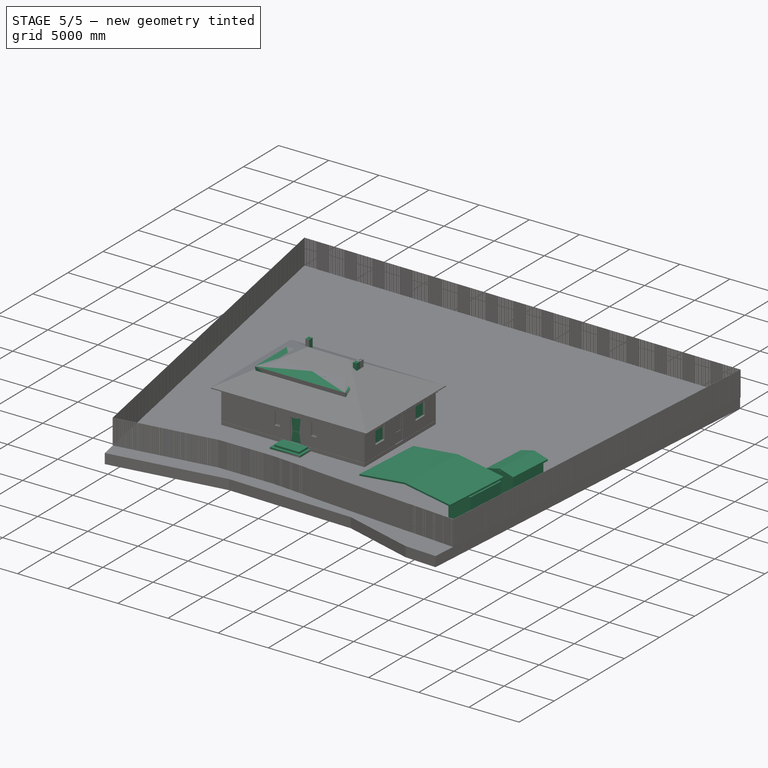
[diagram: stage 5 of 5 — iso view after this stage's code; geometry added in this stage tinted green]
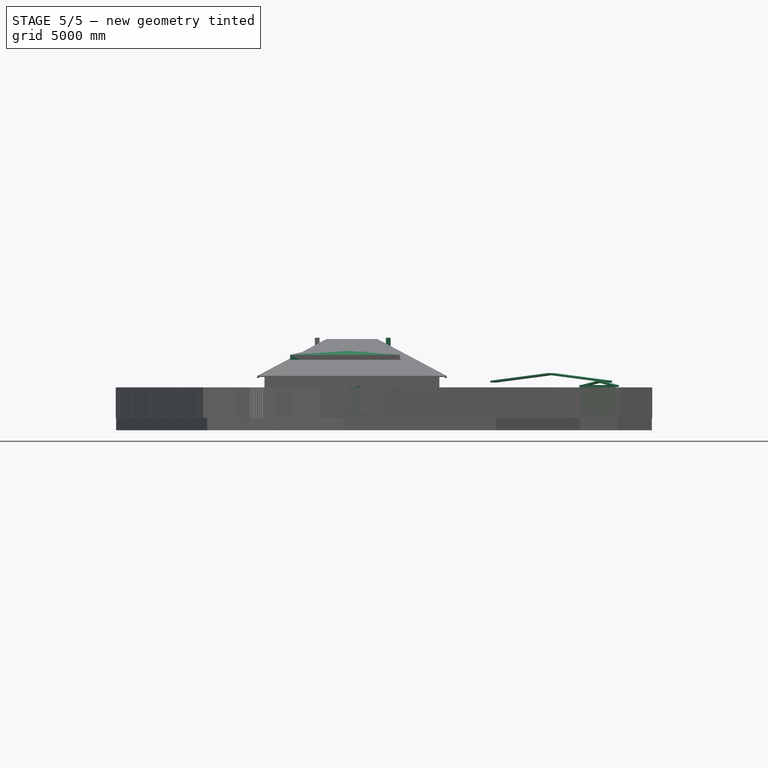
[diagram: stage 5 of 5 — front view after this stage's code; geometry added in this stage tinted green]
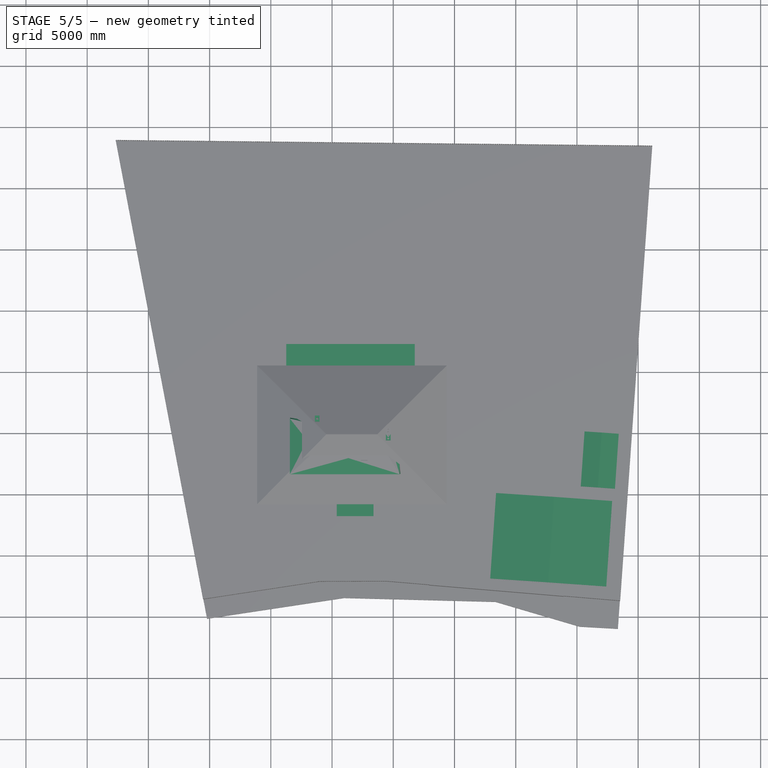
[diagram: stage 5 of 5 — top view after this stage's code; geometry added in this stage tinted green]
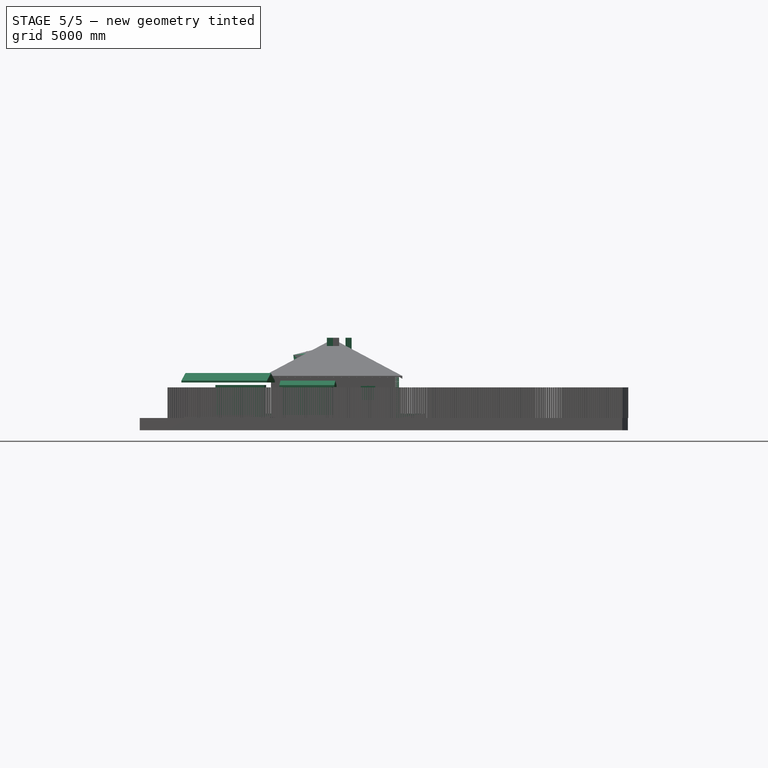
[diagram: stage 5 of 5 — right view after this stage's code; geometry added in this stage tinted green]
FEATURE [Part::Part2DObjectPython] Line1059  # Draft 2D object (typed FeaturePython)
  ChamferSize = 0
  Closed = true
  End = (2380,5450,0)
  FilletRadius = 0
  Length = 1220
  MakeFace = false
  Placement = pos=(3530,5450,0) rot=(0,0,-1;1.5708rad)
  Points = (2) [(0,70,0),(0,-1150,0)]
  Start = (3600,5450,0)
  Subdivisions = 0
FEATURE [Part::Part2DObjectPython] Line1061  # Draft 2D object (typed FeaturePython)
  ChamferSize = 0
  Closed = true
  End = (2500,4150,0)
  FilletRadius = 0
  Length = 1180
  MakeFace = false
  Placement = pos=(2500,4750,0) rot=(0,0,1;0rad)
  Points = (2) [(0,580,0),(0,-600,0)]
  Start = (2500,5330,0)
  Subdivisions = 0
FEATURE [Sketcher::SketchObject] Sketch231  label="Профиль ПНО 120-8"
  FullyConstrained = false
  Placement = pos=(0,0,0) rot=(1,0,0;1.5708rad)
  sketch-geometry (19):
    g0: LineSegment StartX=0 StartY=0 StartZ=0 EndX=1190 EndY=0 EndZ=0
    g1: LineSegment StartX=1190 StartY=0 StartZ=0 EndX=1190 EndY=160 EndZ=0
    g2: LineSegment StartX=1190 StartY=160 StartZ=0 EndX=0 EndY=160 EndZ=0
    g3: LineSegment StartX=0 StartY=160 StartZ=0 EndX=0 EndY=0 EndZ=0
    g4: Circle CenterX=100 CenterY=80 CenterZ=0 NormalX=0 NormalY=0 NormalZ=1 AngleXU=0 Radius=50
    g5: Circle CenterX=240 CenterY=80 CenterZ=0 NormalX=0 NormalY=0 NormalZ=1 AngleXU=0 Radius=50
    g6: LineSegment StartX=100 StartY=80 StartZ=0 EndX=240 EndY=80 EndZ=0
    g7: Circle CenterX=380 CenterY=80 CenterZ=0 NormalX=0 NormalY=0 NormalZ=1 AngleXU=0 Radius=50
    g8: LineSegment StartX=240 StartY=80 StartZ=0 EndX=380 EndY=80 EndZ=0
    g9: Circle CenterX=520 CenterY=80 CenterZ=0 NormalX=0 NormalY=0 NormalZ=1 AngleXU=0 Radius=50
    g10: LineSegment StartX=380 StartY=80 StartZ=0 EndX=520 EndY=80 EndZ=0
    g11: Circle CenterX=660 CenterY=80 CenterZ=0 NormalX=0 NormalY=0 NormalZ=1 AngleXU=0 Radius=50
    g12: LineSegment StartX=520 StartY=80 StartZ=0 EndX=660 EndY=80 EndZ=0
    g13: Circle CenterX=800 CenterY=80 CenterZ=0 NormalX=0 NormalY=0 NormalZ=1 AngleXU=0 Radius=50
    g14: LineSegment StartX=660 StartY=80 StartZ=0 EndX=800 EndY=80 EndZ=0
    g15: Circle CenterX=940 CenterY=80 CenterZ=0 NormalX=0 NormalY=0 NormalZ=1 AngleXU=0 Radius=50
    g16: LineSegment StartX=800 StartY=80 StartZ=0 EndX=940 EndY=80 EndZ=0
    g17: Circle CenterX=1080 CenterY=80 CenterZ=0 NormalX=0 NormalY=0 NormalZ=1 AngleXU=0 Radius=50
    g18: LineSegment StartX=940 StartY=80 StartZ=0 EndX=1080 EndY=80 EndZ=0
  constraints (49):
    c: Coincident(g0,g1)
    c: Coincident(g1,g2)
    c: Coincident(g2,g3)
    c: Coincident(g3,g0)
    c: Horizontal(g0)
    c: Horizontal(g2)
    c: Vertical(g1)
    c: Vertical(g3)
    c: Coincident(g0,g-1)
    c: DistanceY(g3,g3) = 160
    c: DistanceX(g2,g2) = 1190
    c: Diameter(g4) = 100
    c: DistanceY(g4,g2) = 80
    c: Diameter(g5) = 100
    c: Coincident(g4,g6)
    c: Coincident(g5,g6)
    c: Distance(g6) = 140
    c: Angle(g6) = 0
    c: Diameter(g7) = 100
    c: Coincident(g5,g8)
    c: Coincident(g7,g8)
    c: Equal(g6,g8)
    c: Parallel(g8,g6)
    c: Diameter(g9) = 100
    c: Coincident(g7,g10)
    c: Coincident(g9,g10)
    c: Equal(g6,g10)
    c: Parallel(g10,g6)
    c: Diameter(g11) = 100
    c: Coincident(g9,g12)
    c: Coincident(g11,g12)
    c: Equal(g6,g12)
    c: Parallel(g12,g6)
    c: Diameter(g13) = 100
    c: Coincident(g11,g14)
    c: Coincident(g13,g14)
    c: Equal(g6,g14)
    c: Parallel(g14,g6)
    c: Diameter(g15) = 100
    c: Coincident(g13,g16)
    c: Coincident(g15,g16)
    c: Equal(g6,g16)
    c: Parallel(g16,g6)
    c: Diameter(g17) = 100
    c: Coincident(g15,g18)
    c: Coincident(g17,g18)
    c: Equal(g6,g18)
    c: Parallel(g18,g6)
    c: DistanceX(g2,g4) = 100
FEATURE [Part::Extrusion] Extrude001  label="ПНО 39-12-8-001"
  Base = -> Sketch231
  Dir = (0,1,0)
  DirMode = 0
  FaceMakerClass = Part::FaceMakerBullseye
  LengthFwd = 3880
  LengthRev = 0
  Placement = pos=(3810,4135,2750) rot=(0,0,1;1.5708rad)
  Solid = true
  Symmetric = false
FEATURE [Part::FeaturePython] Array006  label="ПНО-39-12 1шт."  # Draft array (typed FeaturePython)
  Angle = 360
  ArrayType = 0
  Axis = (0,0,1)
  Base = -> Extrude001
  Center = (0,0,0)
  Fuse = false
  IntervalAxis = (0,0,0)
  IntervalX = (0,0,0)
  IntervalY = (0,1200,0)
  IntervalZ = (0,0,1)
  NumberPolar = 1
  NumberX = 1
  NumberY = 1
  NumberZ = 1
FEATURE [Part::Part2DObjectPython] Line1066  # Draft 2D object (typed FeaturePython)
  ChamferSize = 0
  Closed = false
  End = (3670,10200,0)
  FilletRadius = 0
  Length = 380
  MakeFace = false
  Placement = pos=(3670,9820,0) rot=(0,0,1;0rad)
  Points = (2) [(0,0,0),(0,380,0)]
  Start = (3670,9820,0)
  Subdivisions = 0
FEATURE [Part::Part2DObjectPython] Line1067  # Draft 2D object (typed FeaturePython)
  ChamferSize = 0
  Closed = false
  End = (4050,10200,0)
  FilletRadius = 0
  Length = 380
  MakeFace = false
  Placement = pos=(3670,10200,0) rot=(0,0,1;0rad)
  Points = (2) [(0,0,0),(380,0,0)]
  Start = (3670,10200,0)
  Subdivisions = 0
FEATURE [Part::Part2DObjectPython] Line1068  # Draft 2D object (typed FeaturePython)
  ChamferSize = 0
  Closed = false
  End = (4050,9820,0)
  FilletRadius = 0
  Length = 380
  MakeFace = false
  Placement = pos=(4050,10200,0) rot=(0,0,1;0rad)
  Points = (2) [(0,0,0),(0,-380,0)]
  Start = (4050,10200,0)
  Subdivisions = 0
FEATURE [Part::Part2DObjectPython] Line1069  # Draft 2D object (typed FeaturePython)
  ChamferSize = 0
  Closed = false
  End = (3670,9820,0)
  FilletRadius = 0
  Length = 380
  MakeFace = false
  Placement = pos=(4050,9820,0) rot=(0,0,1;0rad)
  Points = (2) [(0,0,0),(-380,0,0)]
  Start = (4050,9820,0)
  Subdivisions = 0
FEATURE [Part::FeaturePython] Wall028  label="Колонна_01_001"  # Arch/BIM 166 (typed FeaturePython)
  Align = 0
  Area = 0
  Base = -> Line1066
  BlockHeight = 65
  BlockLength = 250
  CountBroken = 63
  CountEntire = 21
  Face = 0
  Height = 3140
  HorizontalArea = 45600
  IfcType = 166
  Joint = 10
  Length = 380
  MakeBlocks = true
  MoveBase = false
  MoveWithHost = false
  Normal = (0,0,0)
  OffsetFirst = 0
  OffsetSecond = 120
  PerimeterLength = 1000
  PredefinedType = 0
  VerticalArea = 140000
  Width = 120
FEATURE [Part::FeaturePython] Wall029  label="Колонна_01_012"  # Arch/BIM 166 (typed FeaturePython)
  Align = 0
  Area = 0
  Base = -> Line1069
  BlockHeight = 65
  BlockLength = 250
  CountBroken = 63
  CountEntire = 21
  Face = 0
  Height = 3140
  HorizontalArea = 45600
  IfcType = 166
  Joint = 10
  Length = 380
  MakeBlocks = true
  MoveBase = false
  MoveWithHost = false
  Normal = (0,0,0)
  OffsetFirst = 0
  OffsetSecond = 120
  PerimeterLength = 1000
  PredefinedType = 0
  VerticalArea = 140000
  Width = 120
FEATURE [Part::FeaturePython] Wall030  label="Колонна_01_011"  # Arch/BIM 166 (typed FeaturePython)
  Align = 0
  Area = 0
  Base = -> Line1067
  BlockHeight = 65
  BlockLength = 250
  CountBroken = 63
  CountEntire = 21
  Face = 0
  Height = 3140
  HorizontalArea = 45600
  IfcType = 166
  Joint = 10
  Length = 380
  MakeBlocks = true
  MoveBase = false
  MoveWithHost = false
  Normal = (0,0,0)
  OffsetFirst = 0
  OffsetSecond = 120
  PerimeterLength = 1000
  PredefinedType = 0
  VerticalArea = 140000
  Width = 120
FEATURE [Part::FeaturePython] Wall031  label="Колонна_01_010"  # Arch/BIM 166 (typed FeaturePython)
  Align = 0
  Area = 0
  Base = -> Line1068
  BlockHeight = 65
  BlockLength = 250
  CountBroken = 63
  CountEntire = 21
  Face = 0
  Height = 3140
  HorizontalArea = 45600
  IfcType = 166
  Joint = 10
  Length = 380
  MakeBlocks = true
  MoveBase = false
  MoveWithHost = false
  Normal = (0,0,0)
  OffsetFirst = 0
  OffsetSecond = 120
  PerimeterLength = 1000
  PredefinedType = 0
  VerticalArea = 140000
  Width = 120
FEATURE [App::GeometryPython] BuildingPart008  label="Колонна_001"  # Arch/BIM 172 (typed FeaturePython)
  Area = 0
  Group = -> [Wall028,Wall031,Wall030,Wall029]
  Height = 0
  HeightPropagate = true
  IfcType = 172
  LevelOffset = 0
  PredefinedType = 0
FEATURE [Part::Part2DObjectPython] Line1070  # Draft 2D object (typed FeaturePython)
  ChamferSize = 0
  Closed = false
  End = (9460,9820,0)
  FilletRadius = 0
  Length = 380
  MakeFace = false
  Placement = pos=(9840,9820,0) rot=(0,0,1;0rad)
  Points = (2) [(0,0,0),(-380,0,0)]
  Start = (9840,9820,0)
  Subdivisions = 0
FEATURE [Part::Part2DObjectPython] Line1071  # Draft 2D object (typed FeaturePython)
  ChamferSize = 0
  Closed = false
  End = (9840,10200,0)
  FilletRadius = 0
  Length = 380
  MakeFace = false
  Placement = pos=(9460,10200,0) rot=(0,0,1;0rad)
  Points = (2) [(0,0,0),(380,0,0)]
  Start = (9460,10200,0)
  Subdivisions = 0
FEATURE [Part::Part2DObjectPython] Line1072  # Draft 2D object (typed FeaturePython)
  ChamferSize = 0
  Closed = false
  End = (9840,9820,0)
  FilletRadius = 0
  Length = 380
  MakeFace = false
  Placement = pos=(9840,10200,0) rot=(0,0,1;0rad)
  Points = (2) [(0,0,0),(0,-380,0)]
  Start = (9840,10200,0)
  Subdivisions = 0
FEATURE [Part::FeaturePython] Wall033  label="Колонна_01_014"  # Arch/BIM 166 (typed FeaturePython)
  Align = 0
  Area = 0
  Base = -> Line1072
  BlockHeight = 65
  BlockLength = 250
  CountBroken = 63
  CountEntire = 21
  Face = 0
  Height = 3140
  HorizontalArea = 45600
  IfcType = 166
  Joint = 10
  Length = 380
  MakeBlocks = true
  MoveBase = false
  MoveWithHost = false
  Normal = (0,0,0)
  OffsetFirst = 0
  OffsetSecond = 120
  PerimeterLength = 1000
  PredefinedType = 0
  VerticalArea = 140000
  Width = 120
FEATURE [Part::FeaturePython] Wall034  label="Колонна_01_015"  # Arch/BIM 166 (typed FeaturePython)
  Align = 0
  Area = 0
  Base = -> Line1071
  BlockHeight = 65
  BlockLength = 250
  CountBroken = 63
  CountEntire = 21
  Face = 0
  Height = 3140
  HorizontalArea = 45600
  IfcType = 166
  Joint = 10
  Length = 380
  MakeBlocks = true
  MoveBase = false
  MoveWithHost = false
  Normal = (0,0,0)
  OffsetFirst = 0
  OffsetSecond = 120
  PerimeterLength = 1000
  PredefinedType = 0
  VerticalArea = 140000
  Width = 120
FEATURE [Part::Part2DObjectPython] Line1073  # Draft 2D object (typed FeaturePython)
  ChamferSize = 0
  Closed = false
  End = (9460,10200,0)
  FilletRadius = 0
  Length = 380
  MakeFace = false
  Placement = pos=(9460,9820,0) rot=(0,0,1;0rad)
  Points = (2) [(0,0,0),(0,380,0)]
  Start = (9460,9820,0)
  Subdivisions = 0
FEATURE [Part::FeaturePython] Wall032  label="Колонна_01_013"  # Arch/BIM 166 (typed FeaturePython)
  Align = 0
  Area = 0
  Base = -> Line1073
  BlockHeight = 65
  BlockLength = 250
  CountBroken = 63
  CountEntire = 21
  Face = 0
  Height = 3140
  HorizontalArea = 45600
  IfcType = 166
  Joint = 10
  Length = 380
  MakeBlocks = true
  MoveBase = false
  MoveWithHost = false
  Normal = (0,0,0)
  OffsetFirst = 0
  OffsetSecond = 120
  PerimeterLength = 1000
  PredefinedType = 0
  VerticalArea = 140000
  Width = 120
FEATURE [Part::FeaturePython] Wall035  label="Колонна_01_016"  # Arch/BIM 166 (typed FeaturePython)
  Align = 0
  Area = 0
  Base = -> Line1070
  BlockHeight = 65
  BlockLength = 250
  CountBroken = 63
  CountEntire = 21
  Face = 0
  Height = 3140
  HorizontalArea = 45600
  IfcType = 166
  Joint = 10
  Length = 380
  MakeBlocks = true
  MoveBase = false
  MoveWithHost = false
  Normal = (0,0,0)
  OffsetFirst = 0
  OffsetSecond = 120
  PerimeterLength = 1000
  PredefinedType = 0
  VerticalArea = 140000
  Width = 120
FEATURE [App::GeometryPython] BuildingPart009  label="Колонна_002"  # Arch/BIM 172 (typed FeaturePython)
  Area = 0
  Group = -> [Wall032,Wall033,Wall034,Wall035]
  Height = 0
  HeightPropagate = true
  IfcType = 172
  LevelOffset = 0
  PredefinedType = 0
FEATURE [Sketcher::SketchObject] Sketch236
  FullyConstrained = false
  Placement = pos=(6360,-260,-180) rot=(1,0,0;1.5708rad)
  sketch-geometry (16):
    g0: LineSegment StartX=0 StartY=0 StartZ=0 EndX=1050 EndY=0 EndZ=0
    g1: LineSegment StartX=1050 StartY=0 StartZ=0 EndX=1050 EndY=2335 EndZ=0
    g2: LineSegment StartX=1050 StartY=2335 StartZ=0 EndX=0 EndY=2335 EndZ=0
    g3: LineSegment StartX=0 StartY=2335 StartZ=0 EndX=0 EndY=0 EndZ=0
    g4: LineSegment StartX=50 StartY=0 StartZ=0 EndX=1000 EndY=0 EndZ=0
    g5: LineSegment StartX=1000 StartY=0 StartZ=0 EndX=1000 EndY=2285 EndZ=0
    g6: LineSegment StartX=1000 StartY=2285 StartZ=0 EndX=50 EndY=2285 EndZ=0
    g7: LineSegment StartX=50 StartY=2285 StartZ=0 EndX=50 EndY=0 EndZ=0
    g8: LineSegment StartX=55 StartY=5 StartZ=0 EndX=995 EndY=5 EndZ=0
    g9: LineSegment StartX=995 StartY=5 StartZ=0 EndX=995 EndY=2280 EndZ=0
    g10: LineSegment StartX=995 StartY=2280 StartZ=0 EndX=55 EndY=2280 EndZ=0
    g11: LineSegment StartX=55 StartY=2280 StartZ=0 EndX=55 EndY=5 EndZ=0
    g12: LineSegment StartX=205 StartY=1005 StartZ=0 EndX=845 EndY=1005 EndZ=0
    g13: LineSegment StartX=845 StartY=1005 StartZ=0 EndX=845 EndY=2130 EndZ=0
    g14: LineSegment StartX=845 StartY=2130 StartZ=0 EndX=205 EndY=2130 EndZ=0
    g15: LineSegment StartX=205 StartY=2130 StartZ=0 EndX=205 EndY=1005 EndZ=0
  constraints (47):
    c: Coincident(g0,g1)
    c: Coincident(g1,g2)
    c: Coincident(g2,g3)
    c: Coincident(g3,g0)
    c: Horizontal(g0)
    c: Horizontal(g2)
    c: Vertical(g1)
    c: Vertical(g3)
    c: Coincident(g4,g5)
    c: Coincident(g5,g6)
    c: Coincident(g6,g7)
    c: Coincident(g7,g4)
    c: Horizontal(g4)
    c: Horizontal(g6)
    c: Vertical(g5)
    c: Vertical(g7)
    c: DistanceY(g1) = 2335  'Height'
    c: DistanceX(g0) = 1050  'Width'
    c: DistanceY(g6,g2) = 50  'Frame1'
    c: DistanceX(g2,g6) = 50  'Frame2'
    c: DistanceX(g4,g0) = 50  'Frame3'
    c: DistanceY(g0,g4) = 0
    c: Coincident(g0,g-1)
    c: Coincident(g8,g9)
    c: Coincident(g9,g10)
    c: Coincident(g10,g11)
    c: Coincident(g11,g8)
    c: Horizontal(g8)
    c: Horizontal(g10)
    c: Vertical(g9)
    c: Vertical(g11)
    c: Coincident(g12,g13)
    c: Coincident(g13,g14)
    c: Coincident(g14,g15)
    c: Coincident(g15,g12)
    c: Horizontal(g12)
    c: Horizontal(g14)
    c: Vertical(g13)
    c: Vertical(g15)
    c: DistanceX(g8,g12) = 150
    c: DistanceY(g8,g12) = 1000
    c: DistanceX(g14,g10) = 150
    c: DistanceY(g14,g10) = 150
    c: DistanceX(g4,g8) = 5
    c: DistanceY(g4,g8) = 5
    c: DistanceX(g10,g6) = 5
    c: DistanceY(g10,g6) = 5
FEATURE [Part::FeaturePython] Window009  label="Д-100-001"  # Arch/BIM 41 (typed FeaturePython)
  Area = 2451750
  Base = -> Sketch236
  Frame = 50
  Height = 2335
  HoleDepth = 0
  HoleWire = 0
  HorizontalArea = 0
  IfcData = attributes={"OverallHeight": {"value": 2335.0}, "OverallWidth": {"value": 1050.0}}
  IfcType = 41
  LouvreSpacing = 0
  LouvreWidth = 0
  MoveBase = false
  MoveWithHost = true
  Normal = (0,1,-2e-16)
  Offset = 70
  Opening = 0
  OperationType = 0
  OverallHeight = 2335
  OverallWidth = 1050
  PerimeterLength = 0
  Placement = pos=(0,0,140) rot=(0,0,1;0rad)
  PredefinedType = 0
  Preset = 7
  SymbolElevation = false
  SymbolPlan = false
  VerticalArea = 0
  Width = 1050
  WindowParts = OuterFrame | Frame | Wire0,Wire1 | 0.0+V | 0.00+V | InnerFrame | Frame | Wire2,Wire3 | 0.00+V | 0.0+V | InnerGlass | Glass panel | Wire3 | 8.0 | 40.0+V
  expr: OverallWidth = .Width.Value
  expr: OverallHeight = .Height.Value
FEATURE [Part::FeaturePython] Structure041  label="кольцо с днищем ДК-10.9 внутр."  # Arch/BIM 172 (typed FeaturePython)
  Base = -> Circle072
  FaceMaker = 0
  Height = 800
  HorizontalArea = 785398
  IfcType = 172
  Length = 0
  MoveBase = false
  MoveWithHost = false
  Nodes = (2) [(8500,900,0),(8500,900,-800)]
  NodesOffset = 0
  Normal = (0,0,-1)
  PerimeterLength = 3141.59
  Placement = pos=(0,0,-300) rot=(0,0,1;0rad)
  PredefinedType = 0
  VerticalArea = 2.51327e+06
  Width = 100
FEATURE [Part::FeaturePython] Structure040  label="кольцо с днищем ДК-10.9 габарит"  # Arch/BIM 172 (typed FeaturePython)
  Base = -> Circle071
  FaceMaker = 0
  Height = 900
  HorizontalArea = 1.05683e+06
  IfcType = 172
  Length = 0
  MoveBase = false
  MoveWithHost = false
  Nodes = (2) [(8500,900,0),(8500,900,-900)]
  NodesOffset = 0
  Normal = (0,0,-1)
  PerimeterLength = 3644.25
  Placement = pos=(0,0,-300) rot=(0,0,1;0rad)
  PredefinedType = 0
  Subtractions = -> [Structure041]
  VerticalArea = 5.7931e+06
  Width = 100
FEATURE [Part::FeaturePython] Structure044  label="люк контур Д700"  # Arch/BIM 172 (typed FeaturePython)
  Base = -> Circle073
  FaceMaker = 0
  Height = 300
  HorizontalArea = 384845
  IfcType = 172
  Length = 0
  MoveBase = false
  MoveWithHost = false
  Nodes = (2) [(8500,1000,0),(8500,1000,-300)]
  NodesOffset = 0
  Normal = (0,0,-1)
  PerimeterLength = 2199.11
  PredefinedType = 0
  VerticalArea = 659734
  Width = 100
FEATURE [Part::FeaturePython] Structure043  label="крышка ПП10"  # Arch/BIM 172 (typed FeaturePython)
  Base = -> Circle071
  FaceMaker = 0
  Height = 100
  HorizontalArea = 671987
  IfcType = 172
  Length = 0
  MoveBase = false
  MoveWithHost = false
  Nodes = (2) [(8500,900,0),(8500,900,-100)]
  NodesOffset = 0
  Normal = (0,0,-1)
  PerimeterLength = 3644.25
  Placement = pos=(0,0,-200) rot=(0,0,1;0rad)
  PredefinedType = 0
  Subtractions = -> [Structure044]
  VerticalArea = 584336
  Width = 100
FEATURE [App::GeometryPython] BuildingPart015  label="Колодец d1000 (ввод воды и канализации)"  # Arch/BIM 172 (typed FeaturePython)
  Area = 0
  Group = -> [Structure040,Structure043]
  Height = 0
  HeightPropagate = true
  IfcType = 172
  LevelOffset = 0
  PredefinedType = 0
FEATURE [Part::Part2DObjectPython] Line1077  # Draft 2D object (typed FeaturePython)
  ChamferSize = 0
  Closed = true
  End = (0,260,0)
  FilletRadius = 0
  Length = 13250
  MakeFace = false
  Placement = pos=(12110,310,0) rot=(0,0,1;0rad)
  Points = (2) [(1140,-50,0),(-12110,-50,0)]
  Start = (13250,260,0)
  Subdivisions = 0
FEATURE [Part::Part2DObjectPython] Wire422  label="контур отмостки"  # Draft 2D object (typed FeaturePython)
  ChamferSize = 0
  Closed = true
  End = (-520,8180,0)
  FilletRadius = 0
  Length = 46500
  MakeFace = false
  Placement = pos=(-430,-430,0) rot=(0,0,1;0rad)
  Points = (4) [(-90,-90,0),(14460,-90,0),(14460,8610,0),(-90,8610,0)]
  Start = (-520,-520,0)
  Subdivisions = 0
FEATURE [Part::Part2DObjectPython] Line1079  # Draft 2D object (typed FeaturePython)
  ChamferSize = 0
  Closed = false
  End = (0,3830,6612.08)
  FilletRadius = 0
  Length = 6103.87
  MakeFace = false
  Placement = pos=(0,8830,3111.04) rot=(0.57735,0.57735,0.57735;2.0944rad)
  Points = (2) [(0,0,0),(-5000,3501.04,0)]
  Start = (0,8830,3111.04)
  Subdivisions = 0
FEATURE [Part::Part2DObjectPython] Line1081  # Draft 2D object (typed FeaturePython)
  ChamferSize = 0
  Closed = false
  End = (0,-1170,3111.04)
  FilletRadius = 0
  Length = 10000
  MakeFace = false
  Placement = pos=(0,8830,3111.04) rot=(0.57735,0.57735,0.57735;2.0944rad)
  Points = (2) [(0,0,0),(-10000,0,0)]
  Start = (0,8830,3111.04)
  Subdivisions = 0
FEATURE [Part::Part2DObjectPython] Rectangle2276  # Draft 2D object (typed FeaturePython)
  ChamferSize = 0
  Columns = 1
  FilletRadius = 0
  Height = 6000
  Length = 250
  MakeFace = false
  Placement = pos=(0,3830,6612.08) rot=(-0.287968,0.913318,-0.287968;1.66134rad)
  Rows = 1
FEATURE [Part::Part2DObjectPython] Line1082  # Draft 2D object (typed FeaturePython)
  ChamferSize = 0
  Closed = false
  End = (0,3830,3470)
  FilletRadius = 0
  Length = 3292.08
  MakeFace = false
  Placement = pos=(0,3830,6762.08) rot=(0.57735,0.57735,0.57735;2.0944rad)
  Points = (2) [(0,0,0),(-1.81899e-12,-3292.08,0)]
  Start = (0,3830,6762.08)
  Subdivisions = 0
FEATURE [Part::Part2DObjectPython] Rectangle2279  # Draft 2D object (typed FeaturePython)
  ChamferSize = 0
  Columns = 1
  FilletRadius = 0
  Height = 1500
  Length = 200
  MakeFace = false
  Placement = pos=(0,6100,3470) rot=(0.57735,0.57735,0.57735;2.0944rad)
  Rows = 1
FEATURE [Part::Mirroring] mirror  label="Mirror of Rectangle2279"
  Base = (0,3830,3470)
  Normal = (0,-1,6e-16)
  Source = -> Rectangle2279
FEATURE [Part::Part2DObjectPython] Rectangle2282  # Draft 2D object (typed FeaturePython)
  ChamferSize = 0
  Columns = 1
  FilletRadius = 0
  Height = 1240
  Length = 4500
  MakeFace = false
  Placement = pos=(4375,4185,5420) rot=(0,0,1;0rad)
  Rows = 1
FEATURE [Part::Part2DObjectPython] Rectangle2285  # Draft 2D object (typed FeaturePython)
  ChamferSize = 0
  Columns = 1
  FilletRadius = 0
  Height = 4540
  Length = 8960
  MakeFace = false
  Placement = pos=(1560,1560,4760) rot=(0,0,1;0rad)
  Rows = 1
FEATURE [Part::Part2DObjectPython] Rectangle2286  # Draft 2D object (typed FeaturePython)
  ChamferSize = 0
  Columns = 1
  FilletRadius = 0
  Height = 5190
  Length = 9350
  MakeFace = false
  Placement = pos=(1950,2210,0) rot=(0,0,1;0rad)
  Rows = 1
FEATURE [Part::Loft] Loft  label="Объём в мансарде"
  Closed = false
  MaxDegree = 5
  Ruled = true
  Sections = -> [Rectangle2282,Rectangle2285,Rectangle2286]
  Solid = true
FEATURE [Part::Part2DObjectPython] Rectangle2356  # Draft 2D object (typed FeaturePython)
  ChamferSize = 0
  Columns = 1
  FilletRadius = 0
  Height = 8360
  Length = 14210
  MakeFace = false
  Placement = pos=(-350,8010,-980) rot=(1,0,0;3.14159rad)
  Rows = 1
FEATURE [Sketcher::SketchObject] Sketch248
  FullyConstrained = false
  Placement = pos=(2600,3900,-180) rot=(1,0,0;1.5708rad)
  sketch-geometry (8):
    g0: LineSegment StartX=0 StartY=0 StartZ=0 EndX=900 EndY=0 EndZ=0
    g1: LineSegment StartX=900 StartY=0 StartZ=0 EndX=900 EndY=2070 EndZ=0
    g2: LineSegment StartX=900 StartY=2070 StartZ=0 EndX=0 EndY=2070 EndZ=0
    g3: LineSegment StartX=0 StartY=2070 StartZ=0 EndX=0 EndY=0 EndZ=0
    g4: LineSegment StartX=50 StartY=0 StartZ=0 EndX=850 EndY=0 EndZ=0
    g5: LineSegment StartX=850 StartY=0 StartZ=0 EndX=850 EndY=2020 EndZ=0
    g6: LineSegment StartX=850 StartY=2020 StartZ=0 EndX=50 EndY=2020 EndZ=0
    g7: LineSegment StartX=50 StartY=2020 StartZ=0 EndX=50 EndY=0 EndZ=0
  constraints (23):
    c: Coincident(g0,g1)
    c: Coincident(g1,g2)
    c: Coincident(g2,g3)
    c: Coincident(g3,g0)
    c: Horizontal(g0)
    c: Horizontal(g2)
    c: Vertical(g1)
    c: Vertical(g3)
    c: Coincident(g4,g5)
    c: Coincident(g5,g6)
    c: Coincident(g6,g7)
    c: Coincident(g7,g4)
    c: Horizontal(g4)
    c: Horizontal(g6)
    c: Vertical(g5)
    c: Vertical(g7)
    c: DistanceY(g1) = 2070  'Height'
    c: DistanceX(g0) = 900  'Width'
    c: DistanceY(g6,g2) = 50  'Frame1'
    c: DistanceX(g2,g6) = 50  'Frame2'
    c: DistanceX(g4,g0) = 50  'Frame3'
    c: DistanceY(g0,g4) = 0
    c: Coincident(g0,g-1)
FEATURE [Part::FeaturePython] Window020  label="Д-90-007"  # Arch/BIM 41 (typed FeaturePython)
  Area = 1863000
  Base = -> Sketch248
  Frame = 50
  Height = 2070
  HoleDepth = 0
  HoleWire = 0
  HorizontalArea = 0
  IfcData = attributes={"OverallHeight": {"value": 2070.0}, "OverallWidth": {"value": 900.0}}
  IfcType = 41
  LouvreSpacing = 0
  LouvreWidth = 0
  MoveBase = false
  MoveWithHost = true
  Normal = (0,1,-2e-16)
  Opening = 0
  OperationType = 0
  OverallHeight = 2070
  OverallWidth = 900
  PerimeterLength = 0
  Placement = pos=(0,0,180) rot=(0,0,1;0rad)
  PredefinedType = 0
  Preset = 6
  SymbolElevation = false
  SymbolPlan = false
  VerticalArea = 0
  Width = 900
  WindowParts = OuterFrame | Frame | Wire0,Wire1 | 0.0+V | 0.00+V | Door | Solid panel | Wire1 | 50.0 | 0.0+V
  expr: OverallWidth = .Width.Value
  expr: OverallHeight = .Height.Value
FEATURE [Sketcher::SketchObject] Sketch249  label="Профиль ПНО 100-6"
  FullyConstrained = false
  Placement = pos=(0,0,0) rot=(1,0,0;1.5708rad)
  sketch-geometry (15):
    g0: LineSegment StartX=0 StartY=0 StartZ=0 EndX=990 EndY=0 EndZ=0
    g1: LineSegment StartX=990 StartY=0 StartZ=0 EndX=990 EndY=160 EndZ=0
    g2: LineSegment StartX=990 StartY=160 StartZ=0 EndX=0 EndY=160 EndZ=0
    g3: LineSegment StartX=0 StartY=160 StartZ=0 EndX=0 EndY=0 EndZ=0
    g4: Circle CenterX=145 CenterY=80 CenterZ=0 NormalX=0 NormalY=0 NormalZ=1 AngleXU=0 Radius=50
    g5: Circle CenterX=285 CenterY=80 CenterZ=0 NormalX=0 NormalY=0 NormalZ=1 AngleXU=0 Radius=50
    g6: LineSegment StartX=145 StartY=80 StartZ=0 EndX=285 EndY=80 EndZ=0
    g7: Circle CenterX=425 CenterY=80 CenterZ=0 NormalX=0 NormalY=0 NormalZ=1 AngleXU=0 Radius=50
    g8: LineSegment StartX=285 StartY=80 StartZ=0 EndX=425 EndY=80 EndZ=0
    g9: Circle CenterX=565 CenterY=80 CenterZ=0 NormalX=0 NormalY=0 NormalZ=1 AngleXU=0 Radius=50
    g10: LineSegment StartX=425 StartY=80 StartZ=0 EndX=565 EndY=80 EndZ=0
    g11: Circle CenterX=705 CenterY=80 CenterZ=0 NormalX=0 NormalY=0 NormalZ=1 AngleXU=0 Radius=50
    g12: LineSegment StartX=565 StartY=80 StartZ=0 EndX=705 EndY=80 EndZ=0
    g13: Circle CenterX=845 CenterY=80 CenterZ=0 NormalX=0 NormalY=0 NormalZ=1 AngleXU=0 Radius=50
    g14: LineSegment StartX=705 StartY=80 StartZ=0 EndX=845 EndY=80 EndZ=0
  constraints (39):
    c: Coincident(g0,g1)
    c: Coincident(g1,g2)
    c: Coincident(g2,g3)
    c: Coincident(g3,g0)
    c: Horizontal(g0)
    c: Horizontal(g2)
    c: Vertical(g1)
    c: Vertical(g3)
    c: Coincident(g0,g-1)
    c: DistanceY(g3,g3) = 160
    c: DistanceX(g2,g2) = 990
    c: Diameter(g4) = 100
    c: DistanceY(g4,g2) = 80
    c: Diameter(g5) = 100
    c: Coincident(g4,g6)
    c: Coincident(g5,g6)
    c: Distance(g6) = 140
    c: Angle(g6) = 0
    c: Diameter(g7) = 100
    c: Coincident(g5,g8)
    c: Coincident(g7,g8)
    c: Equal(g6,g8)
    c: Parallel(g8,g6)
    c: Diameter(g9) = 100
    c: Coincident(g7,g10)
    c: Coincident(g9,g10)
    c: Equal(g6,g10)
    c: Parallel(g10,g6)
    c: Diameter(g11) = 100
    c: Coincident(g9,g12)
    c: Coincident(g11,g12)
    c: Equal(g6,g12)
    c: Parallel(g12,g6)
    c: Diameter(g13) = 100
    c: Coincident(g11,g14)
    c: Coincident(g13,g14)
    c: Equal(g6,g14)
    c: Parallel(g14,g6)
    c: DistanceX(g2,g4) = 145
FEATURE [Part::Part2DObjectPython] Rectangle2357  label="контур_по_обвязке_плит_перекрытия"  # Draft 2D object (typed FeaturePython)
  ChamferSize = 0
  Columns = 1
  FilletRadius = 0
  Height = 9590
  Length = 13750
  MakeFace = false
  Placement = pos=(-250,10,0) rot=(0,0,1;0rad)
  Rows = 1
FEATURE [Part::Part2DObjectPython] Rectangle2358  # Draft 2D object (typed FeaturePython)
  ChamferSize = 0
  Columns = 1
  FilletRadius = 0
  Height = 580
  Length = 580
  MakeFace = false
  Placement = pos=(-1100,-1100,0) rot=(0,0,1;0rad)
  Rows = 1
FEATURE [Part::Part2DObjectPython] Rectangle2359  # Draft 2D object (typed FeaturePython)
  ChamferSize = 0
  Columns = 1
  FilletRadius = 0
  Height = 580
  Length = 580
  MakeFace = false
  Placement = pos=(14030,8180,0) rot=(0,0,1;0rad)
  Rows = 1
FEATURE [Part::Part2DObjectPython] Rectangle2360  # Draft 2D object (typed FeaturePython)
  ChamferSize = 0
  Columns = 1
  FilletRadius = 0
  Height = 580
  Length = 580
  MakeFace = false
  Placement = pos=(-1100,8180,0) rot=(0,0,1;0rad)
  Rows = 1
FEATURE [Part::Part2DObjectPython] Rectangle2361  # Draft 2D object (typed FeaturePython)
  ChamferSize = 0
  Columns = 1
  FilletRadius = 0
  Height = 580
  Length = 580
  MakeFace = false
  Placement = pos=(14030,-1100,0) rot=(0,0,1;0rad)
  Rows = 1
FEATURE [Part::Part2DObjectPython] Rectangle2362  # Draft 2D object (typed FeaturePython)
  ChamferSize = 0
  Columns = 1
  FilletRadius = 0
  Height = 70
  Length = 70
  MakeFace = false
  Placement = pos=(14610,8760,0) rot=(0,0,1;0rad)
  Rows = 1
FEATURE [Part::Part2DObjectPython] Rectangle2363  # Draft 2D object (typed FeaturePython)
  ChamferSize = 0
  Columns = 1
  FilletRadius = 0
  Height = 70
  Length = 70
  MakeFace = false
  Placement = pos=(14610,-1170,0) rot=(0,0,1;0rad)
  Rows = 1
FEATURE [Part::Part2DObjectPython] Rectangle2364  # Draft 2D object (typed FeaturePython)
  ChamferSize = 0
  Columns = 1
  FilletRadius = 0
  Height = 4540
  Length = 10380
  MakeFace = false
  Placement = pos=(1570,1560,0) rot=(0,0,1;0rad)
  Rows = 1
FEATURE [Part::Part2DObjectPython] Wire460  label="границы участка"  # Draft 2D object (typed FeaturePython)
  ChamferSize = 0
  Closed = true
  End = (31124.9,28433.6,0)
  FilletRadius = 0
  Length = 156987
  MakeFace = false
  Placement = pos=(28345.4,-10972.9,0) rot=(0,0,1;0rad)
  Points = (7) [(0,0,0),(-3118.22,176.296,0),(-9989.98,2199.83,0),(-22349.9,2518.26,0),(-33551.4,825.818,0),(-40981.4,39865.2,0),(2779.54,39406.5,0)]
  Start = (28345.4,-10972.9,0)
  Subdivisions = 0
FEATURE [Part::Part2DObjectPython] Rectangle2365  label="зона парковки-навес"  # Draft 2D object (typed FeaturePython)
  ChamferSize = 0
  Columns = 1
  FilletRadius = 0
  Height = 7000
  Length = 7000
  MakeFace = false
  Placement = pos=(17916.6,-6918.81,0) rot=(0,0,-1;0.068796rad)
  Rows = 1
FEATURE [Part::Part2DObjectPython] Rectangle2368  # Draft 2D object (typed FeaturePython)
  ChamferSize = 0
  Columns = 1
  FilletRadius = 0
  Height = 2300
  Length = 4000
  MakeFace = false
  Placement = pos=(25852.9,4833.9,0) rot=(0,0,-1;1.63959rad)
  Rows = 1
FEATURE [Part::Part2DObjectPython] Wire462  label="мауэрлат002"  # Draft 2D object (typed FeaturePython)
  ChamferSize = 0
  Closed = true
  End = (25852.9,4833.9,0)
  FilletRadius = 0
  Length = 12600
  MakeFace = false
  Placement = pos=(25577.9,843.359,0) rot=(0,0,-1;1.63959rad)
  Points = (4) [(0,0,0),(0,2300,0),(-4000,2300,0),(-4000,-3.27418e-11,0)]
  Start = (25577.9,843.359,0)
  Subdivisions = 0
FEATURE [Part::FeaturePython] Roof010  label="Крыша001"  # Arch/BIM 113 (typed FeaturePython)
  Angles = [90,14.6,90,14.6]
  Base = -> Wire462
  BorderLength = 15096.9
  Face = 0
  Flip = false
  Heights = [0,299.553,0,299.553]
  HorizontalArea = 1.26e+07
  IdRel = [0,0,0,0]
  IfcType = 113
  MoveBase = false
  MoveWithHost = false
  Overhang = [250,250,250,250]
  PerimeterLength = 14600
  Placement = pos=(0,0,2200) rot=(0,0,1;0rad)
  PredefinedType = 0
  RidgeLength = 7393.43
  Runs = [250,1150,250,1150]
  Thickness = [150,150,150,150]
  VerticalArea = 2.26308e+06
FEATURE [Part::Part2DObjectPython] Rectangle2370  # Draft 2D object (typed FeaturePython)
  ChamferSize = 0
  Columns = 1
  FilletRadius = 0
  Height = 500
  Length = 150
  MakeFace = true
  Placement = pos=(26037.1,962.071,0) rot=(0,0,-1;1.63959rad)
  Rows = 1
FEATURE [Part::Part2DObjectPython] Rectangle2372  # Draft 2D object (typed FeaturePython)
  ChamferSize = 0
  Columns = 1
  FilletRadius = 0
  Height = 150
  Length = 500
  MakeFace = true
  Placement = pos=(25753.2,3387.33,0) rot=(0,0,-1;1.63959rad)
  Rows = 1
FEATURE [Part::FeaturePython] Structure128  label="Structure"  # Arch/BIM 172 (typed FeaturePython)
  Base = -> Rectangle2372
  FaceMaker = 0
  Height = 600
  HorizontalArea = 75000
  IfcType = 172
  Length = 0
  MoveBase = false
  MoveWithHost = false
  Nodes = (2) [(1351.07,-25965.1,0),(1351.07,-25965.1,600)]
  NodesOffset = 0
  Normal = (0,0,0)
  PerimeterLength = 1300
  Placement = pos=(0,-4e-15,1240) rot=(0,0,1;0rad)
  PredefinedType = 0
  VerticalArea = 780000
  Width = 100
FEATURE [Part::FeaturePython] Structure130  label="Structure129"  # Arch/BIM 172 (typed FeaturePython)
  Base = -> Rectangle2370
  FaceMaker = 0
  Height = 600
  HorizontalArea = 75000
  IfcType = 172
  Length = 0
  MoveBase = false
  MoveWithHost = false
  Nodes = (2) [(-938.622,-26279,0),(-938.622,-26279,600)]
  NodesOffset = 0
  Normal = (0,0,0)
  PerimeterLength = 1300
  Placement = pos=(0,-4e-15,1240) rot=(0,0,1;0rad)
  PredefinedType = 0
  VerticalArea = 780000
  Width = 100
FEATURE [Part::Part2DObjectPython] Rectangle2373  # Draft 2D object (typed FeaturePython)
  ChamferSize = 0
  Columns = 1
  FilletRadius = 0
  Height = 150
  Length = 800
  MakeFace = true
  Placement = pos=(25667.3,2140.28,0) rot=(0,0,-1;1.63959rad)
  Rows = 1
FEATURE [Part::FeaturePython] Structure131  label="Structure130"  # Arch/BIM 172 (typed FeaturePython)
  Base = -> Rectangle2373
  FaceMaker = 0
  Height = 1800
  HorizontalArea = 120000
  IfcType = 172
  Length = 0
  MoveBase = false
  MoveWithHost = false
  Nodes = (2) [(-35.6948,-25773.1,0),(-35.6948,-25773.1,1800)]
  NodesOffset = 0
  Normal = (0,0,0)
  PerimeterLength = 1900
  PredefinedType = 0
  VerticalArea = 3.42e+06
  Width = 100
FEATURE [Part::FeaturePython] Wall094  label="Wall005"  # Arch/BIM 166 (typed FeaturePython)
  Align = 1
  Area = 0
  Base = -> Rectangle2368
  BlockHeight = 0
  BlockLength = 0
  CountBroken = 0
  CountEntire = 0
  Face = 0
  Height = 2450
  HorizontalArea = 1.95e+06
  IfcType = 166
  Joint = 0
  Length = 12600
  MakeBlocks = false
  MoveBase = false
  MoveWithHost = false
  Normal = (0,0,0)
  OffsetFirst = 0
  OffsetSecond = 0
  PerimeterLength = 12600
  Placement = pos=(0,0,-150) rot=(0,0,1;0rad)
  PredefinedType = 0
  Subtractions = -> [Structure128,Structure130,Structure131]
  VerticalArea = 57960000
  Width = 150
FEATURE [App::DocumentObjectGroup] Group115  label="Элементы баня"
  Group = -> [Wire462,Rectangle2373,Rectangle2370,Rectangle2372,Rectangle2368]
FEATURE [Part::FeaturePython] Structure132  label="парковка"  # Arch/BIM 172 (typed FeaturePython)
  Base = -> Rectangle2365
  FaceMaker = 0
  Height = 100
  HorizontalArea = 4.9e+07
  IfcType = 172
  Length = 0
  MoveBase = false
  MoveWithHost = false
  Nodes = (2) [(21648.9,-3667.68,0),(21648.9,-3667.68,-100)]
  NodesOffset = 0
  Normal = (0,0,-1)
  PerimeterLength = 28000
  Placement = pos=(0,0,-300) rot=(0,0,1;0rad)
  PredefinedType = 0
  VerticalArea = 2.8e+06
  Width = 100
FEATURE [Part::FeaturePython] Wall096  label="Wall006"  # Arch/BIM 166 (typed FeaturePython)
  Align = 0
  Area = 0
  Base = -> Rectangle2368
  BlockHeight = 0
  BlockLength = 0
  CountBroken = 0
  CountEntire = 0
  Face = 0
  Height = 500
  HorizontalArea = 1.18e+06
  IfcType = 166
  Joint = 0
  Length = 12600
  MakeBlocks = false
  MoveBase = false
  MoveWithHost = false
  Normal = (0,0,-1)
  Offset = 50
  OffsetFirst = 0
  OffsetSecond = 0
  PerimeterLength = 12200
  Placement = pos=(0,0,-150) rot=(0,0,1;0rad)
  PredefinedType = 0
  VerticalArea = 1.18e+07
  Width = 100
FEATURE [App::GeometryPython] BuildingPart032  label="Баня (перевозная)"  # Arch/BIM 10 (typed FeaturePython)
  Area = 0
  BuildingType = 0
  CompositionType = 0
  ElevationOfRefHeight = 0
  ElevationOfTerrain = 0
  Group = -> [Wall094,Roof010,Wall096]
  Height = 0
  HeightPropagate = true
  IfcType = 10
  LevelOffset = 0
  LongName = Баня (перевозная)
FEATURE [Part::Part2DObjectPython] Wire464  label="мауэрлат003"  # Draft 2D object (typed FeaturePython)
  ChamferSize = 0
  Closed = true
  End = (18397.7,64.633,0)
  FilletRadius = 0
  Length = 33000
  MakeFace = false
  Placement = pos=(25199.8,-4643.63,0) rot=(0,0,-1;1.63959rad)
  Points = (4) [(2770.46,-7109.62,0),(2770.46,2390.38,0),(-4229.54,2390.38,0),(-4229.54,-7109.62,0)]
  Start = (17916.6,-6918.81,0)
  Subdivisions = 0
FEATURE [Part::Part2DObjectPython] Rectangle2375  # Draft 2D object (typed FeaturePython)
  ChamferSize = 0
  Columns = 1
  FilletRadius = 0
  Height = 150
  Length = 800
  MakeFace = true
  Placement = pos=(25395.7,-1800.37,0) rot=(0,0,-1;1.63959rad)
  Rows = 1
FEATURE [Part::Part2DObjectPython] Rectangle2376  # Draft 2D object (typed FeaturePython)
  ChamferSize = 0
  Columns = 1
  FilletRadius = 0
  Height = 150
  Length = 500
  MakeFace = true
  Placement = pos=(25296,-3246.94,0) rot=(0,0,-1;1.63959rad)
  Rows = 1
FEATURE [Part::Part2DObjectPython] Rectangle2377  # Draft 2D object (typed FeaturePython)
  ChamferSize = 0
  Columns = 1
  FilletRadius = 0
  Height = 2300
  Length = 4000
  MakeFace = false
  Placement = pos=(25474.8,-653.093,0) rot=(0,0,-1;1.63959rad)
  Rows = 1
FEATURE [Part::FeaturePython] Roof011  label="Крыша002"  # Arch/BIM 113 (typed FeaturePython)
  Angles = [90,7.5,90,7.5]
  Base = -> Wire464
  BorderLength = 33163.9
  Face = 0
  Flip = false
  Heights = [0,658.262,0,658.262]
  HorizontalArea = 6.65e+07
  IdRel = [0,0,0,0]
  IfcType = 113
  MoveBase = false
  MoveWithHost = false
  Overhang = [0,0,0,0]
  PerimeterLength = 33000
  Placement = pos=(0,0,2500) rot=(0,0,1;0rad)
  PredefinedType = 0
  RidgeLength = 7000
  Runs = [250,5000,250,5000]
  Thickness = [150,150,150,150]
  VerticalArea = 4.99271e+06
FEATURE [Part::FeaturePython] Structure135  label="Structure134"  # Arch/BIM 172 (typed FeaturePython)
  Base = -> Rectangle2375
  FaceMaker = 0
  Height = 1800
  HorizontalArea = 120000
  IfcType = 172
  Length = 0
  MoveBase = false
  MoveWithHost = false
  Nodes = (2) [(-35.6948,-25773.1,0),(-35.6948,-25773.1,1800)]
  NodesOffset = 0
  Normal = (0,0,0)
  PerimeterLength = 1900
  PredefinedType = 0
  VerticalArea = 3.42e+06
  Width = 100
FEATURE [Part::FeaturePython] Structure136  label="Structure135"  # Arch/BIM 172 (typed FeaturePython)
  Base = -> Rectangle2376
  FaceMaker = 0
  Height = 600
  HorizontalArea = 75000
  IfcType = 172
  Length = 0
  MoveBase = false
  MoveWithHost = false
  Nodes = (2) [(1351.07,-25965.1,0),(1351.07,-25965.1,600)]
  NodesOffset = 0
  Normal = (0,0,0)
  PerimeterLength = 1300
  Placement = pos=(0,-4e-15,1240) rot=(0,0,1;0rad)
  PredefinedType = 0
  VerticalArea = 780000
  Width = 100
FEATURE [Part::FeaturePython] Wall097  label="Wall007"  # Arch/BIM 166 (typed FeaturePython)
  Align = 1
  Area = 0
  Base = -> Rectangle2377
  BlockHeight = 0
  BlockLength = 0
  CountBroken = 0
  CountEntire = 0
  Face = 0
  Height = 2450
  HorizontalArea = 1.995e+06
  IfcType = 166
  Joint = 0
  Length = 12600
  MakeBlocks = false
  MoveBase = false
  MoveWithHost = false
  Normal = (0,0,0)
  OffsetFirst = 0
  OffsetSecond = 0
  PerimeterLength = 12600
  Placement = pos=(0,0,-150) rot=(0,0,1;0rad)
  PredefinedType = 0
  Subtractions = -> [Structure136,Structure135]
  VerticalArea = 5.604e+07
  Width = 150
FEATURE [App::GeometryPython] BuildingPart034  label="ворота откатные"  # Arch/BIM 172 (typed FeaturePython)
  Area = 0
  Group = -> [Structure138,Structure139]
  Height = 0
  HeightPropagate = true
  IfcType = 172
  LevelOffset = 0
  PredefinedType = 0
FEATURE [Sketcher::SketchObject] Sketch250  label="Габарит человека"
  FullyConstrained = false
  Placement = pos=(0,0,0) rot=(1,0,0;1.5708rad)
  sketch-geometry (21):
    g0: LineSegment StartX=-250 StartY=0 StartZ=0 EndX=250 EndY=0 EndZ=0
    g1: LineSegment StartX=250 StartY=0 StartZ=0 EndX=250 EndY=1750 EndZ=0
    g2: LineSegment StartX=250 StartY=1750 StartZ=0 EndX=-250 EndY=1750 EndZ=0
    g3: LineSegment StartX=-250 StartY=1750 StartZ=0 EndX=-250 EndY=0 EndZ=0
    g4: LineSegment StartX=85 StartY=1500 StartZ=0 EndX=85 EndY=1750 EndZ=0
    g5: LineSegment StartX=85 StartY=1750 StartZ=0 EndX=-85 EndY=1750 EndZ=0
    g6: LineSegment StartX=-85 StartY=1750 StartZ=0 EndX=-85 EndY=1500 EndZ=0
    g7: LineSegment StartX=250 StartY=750 StartZ=0 EndX=250 EndY=1500 EndZ=0
    g8: LineSegment StartX=-250 StartY=1500 StartZ=0 EndX=-250 EndY=750 EndZ=0
    g9: LineSegment StartX=-110 StartY=0 StartZ=0 EndX=110 EndY=0 EndZ=0
    g10: LineSegment StartX=110 StartY=0 StartZ=0 EndX=175 EndY=750 EndZ=0
    g11: LineSegment StartX=-175 StartY=750 StartZ=0 EndX=-110 EndY=0 EndZ=0
    g12: GeomPoint X=0 Y=750 Z=0
    g13: GeomPoint X=-110 Y=0 Z=0
    g14: GeomPoint X=110 Y=0 Z=0
    g15: GeomPoint X=175 Y=750 Z=0
    g16: GeomPoint X=-175 Y=750 Z=0
    g17: LineSegment StartX=-250 StartY=1500 StartZ=0 EndX=-85 EndY=1500 EndZ=0
    g18: LineSegment StartX=85 StartY=1500 StartZ=0 EndX=250 EndY=1500 EndZ=0
    g19: LineSegment StartX=-250 StartY=750 StartZ=0 EndX=-175 EndY=750 EndZ=0
    g20: LineSegment StartX=175 StartY=750 StartZ=0 EndX=250 EndY=750 EndZ=0
  constraints (50):
    c: Coincident(g0,g1)
    c: Coincident(g1,g2)
    c: Coincident(g2,g3)
    c: Coincident(g3,g0)
    c: Horizontal(g0)
    c: Horizontal(g2)
    c: Vertical(g1)
    c: Vertical(g3)
    c: Symmetric(g0,g0,g-1)
    c: DistanceX(g2,g2) = 500
    c: DistanceY(g1,g1) = 1750
    c: Coincident(g4,g5)
    c: Coincident(g5,g6)
    c: Horizontal(g5)
    c: Vertical(g4)
    c: Vertical(g6)
    c: Vertical(g7)
    c: Vertical(g8)
    c: Coincident(g9,g10)
    c: DistanceX(g5,g5) = 170
    c: DistanceY(g4,g4) = 250
    c: PointOnObject(g4,g2)
    c: Symmetric(g6,g4,g-2)
    c: PointOnObject(g8,g3)
    c: PointOnObject(g7,g1)
    c: Coincident(g9,g11)
    c: DistanceX(g9,g9) = 220
    c: DistanceY(g0,g7) = 750
    c: PointOnObject(g12,g-2)
    c: Coincident(g13,g9)
    c: Coincident(g14,g9)
    c: Symmetric(g13,g14,g-2)
    c: PointOnObject(g14,g0)
    c: Coincident(g15,g10)
    c: Symmetric(g15,g16,g-2)
    c: DistanceX(g16,g15) = 350
    c: Coincident(g17,g8)
    c: Coincident(g17,g6)
    c: Horizontal(g17)
    c: Coincident(g18,g4)
    c: Coincident(g18,g7)
    c: Horizontal(g18)
    c: Coincident(g19,g8)
    c: Coincident(g19,g11)
    c: Horizontal(g19)
    c: Coincident(g20,g10)
    c: Coincident(g20,g7)
    c: Horizontal(g20)
    c: Equal(g19,g20)
    c: Equal(g11,g10)
FEATURE [Part::Extrusion] Extrude007  label="Габарит человека 001"
  Base = -> Sketch250
  Dir = (0,-1,2e-16)
  DirMode = 2
  FaceMakerClass = Part::FaceMakerBullseye
  LengthFwd = 290
  LengthRev = 0
  Placement = pos=(8870.01,5740.03,3160) rot=(0,0,1;1.5708rad)
  Solid = true
  Symmetric = false
FEATURE [Part::Extrusion] Extrude008  label="Габарит человека 002"
  Base = -> Sketch250
  Dir = (0,-1,2e-16)
  DirMode = 2
  FaceMakerClass = Part::FaceMakerBullseye
  LengthFwd = 290
  LengthRev = 0
  Placement = pos=(6302.6,8800.29,0) rot=(0,0,1;0rad)
  Solid = true
  Symmetric = false
FEATURE [Part::Part2DObjectPython] Rectangle2381  # Draft 2D object (typed FeaturePython)
  ChamferSize = 0
  Columns = 1
  FilletRadius = 0
  Height = 1250
  Length = 2500
  MakeFace = false
  Placement = pos=(5635,-1520,0) rot=(0,0,1;0rad)
  Rows = 1
FEATURE [Part::FeaturePython] Structure140  label="габарит крыльца001"  # Arch/BIM 172 (typed FeaturePython)
  Base = -> Rectangle2381
  FaceMaker = 0
  Height = 180
  HorizontalArea = 3125000
  IfcType = 172
  Length = 0
  MoveBase = false
  MoveWithHost = false
  Nodes = (2) [(5975,-1250,0),(5975,-1250,-350)]
  NodesOffset = 0
  Normal = (0,0,-1)
  PerimeterLength = 7500
  Placement = pos=(0,0,-40) rot=(0,0,1;0rad)
  PredefinedType = 0
  VerticalArea = 1350000
  Width = 100
FEATURE [Part::FeaturePython] Structure029  label="габарит крыльца"  # Arch/BIM 172 (typed FeaturePython)
  Additions = -> [Structure140]
  Base = -> Rectangle2234
  FaceMaker = 0
  Height = 180
  HorizontalArea = 4500000
  IfcType = 172
  Length = 0
  MoveBase = false
  MoveWithHost = false
  Nodes = (2) [(5975,-1250,0),(5975,-1250,-350)]
  NodesOffset = 0
  Normal = (0,0,-1)
  PerimeterLength = 9000
  Placement = pos=(0,0,-220) rot=(0,0,1;0rad)
  PredefinedType = 0
  VerticalArea = 2970000
  Width = 100
FEATURE [Part::Part2DObjectPython] Line1119  # Draft 2D object (typed FeaturePython)
  ChamferSize = 0
  Closed = false
  End = (28578.1,-8689.8,0)
  FilletRadius = 0
  Length = 85.5324
  MakeFace = true
  Placement = pos=(28492.8,-8682.66,0) rot=(0,0,1;0rad)
  Points = (2) [(0,0,0),(85.2344,-7.13275,0)]
  Start = (28492.8,-8682.66,0)
  Subdivisions = 0
FEATURE [Part::Part2DObjectPython] Line1120  # Draft 2D object (typed FeaturePython)
  ChamferSize = 0
  Closed = false
  End = (-5669.15,-8573.08,0)
  FilletRadius = 0
  Length = 198.212
  MakeFace = true
  Placement = pos=(-5473.19,-8543.29,0) rot=(0,0,1;0rad)
  Points = (2) [(0,0,0),(-195.961,-29.787,0)]
  Start = (-5473.19,-8543.29,0)
  Subdivisions = 0
FEATURE [Part::Part2DObjectPython] Rectangle2382  label="террасса"  # Draft 2D object (typed FeaturePython)
  ChamferSize = 0
  Columns = 1
  FilletRadius = 0
  Height = 2400
  Length = 10500
  MakeFace = false
  Placement = pos=(1255,9880,0) rot=(0,0,1;0rad)
  Rows = 1
FEATURE [Part::FeaturePython] Structure028  label="габарит терассы"  # Arch/BIM 172 (typed FeaturePython)
  Base = -> Rectangle2382
  FaceMaker = 0
  Height = 400
  HorizontalArea = 25200000
  IfcType = 172
  Length = 0
  MoveBase = false
  MoveWithHost = false
  Nodes = (2) [(6755,9400,0),(6755,9400,-400)]
  NodesOffset = 0
  Normal = (0,0,-1)
  PerimeterLength = 25800
  Placement = pos=(0,0,-40) rot=(0,0,1;0rad)
  PredefinedType = 0
  VerticalArea = 10320000
  Width = 100
FEATURE [Sketcher::SketchObject] Sketch251
  FullyConstrained = true
  Placement = pos=(9400,2260,-180) rot=(0.57735,0.57735,0.57735;2.0944rad)
  sketch-geometry (8):
    g0: LineSegment StartX=0 StartY=0 StartZ=0 EndX=900 EndY=0 EndZ=0
    g1: LineSegment StartX=900 StartY=0 StartZ=0 EndX=900 EndY=2070 EndZ=0
    g2: LineSegment StartX=900 StartY=2070 StartZ=0 EndX=0 EndY=2070 EndZ=0
    g3: LineSegment StartX=0 StartY=2070 StartZ=0 EndX=0 EndY=0 EndZ=0
    g4: LineSegment StartX=50 StartY=0 StartZ=0 EndX=850 EndY=0 EndZ=0
    g5: LineSegment StartX=850 StartY=0 StartZ=0 EndX=850 EndY=2020 EndZ=0
    g6: LineSegment StartX=850 StartY=2020 StartZ=0 EndX=50 EndY=2020 EndZ=0
    g7: LineSegment StartX=50 StartY=2020 StartZ=0 EndX=50 EndY=0 EndZ=0
  constraints (23):
    c: Coincident(g0,g1)
    c: Coincident(g1,g2)
    c: Coincident(g2,g3)
    c: Coincident(g3,g0)
    c: Horizontal(g0)
    c: Horizontal(g2)
    c: Vertical(g1)
    c: Vertical(g3)
    c: Coincident(g4,g5)
    c: Coincident(g5,g6)
    c: Coincident(g6,g7)
    c: Coincident(g7,g4)
    c: Horizontal(g4)
    c: Horizontal(g6)
    c: Vertical(g5)
    c: Vertical(g7)
    c: DistanceY(g1) = 2070  'Height'
    c: DistanceX(g0) = 900  'Width'
    c: DistanceY(g6,g2) = 50  'Frame1'
    c: DistanceX(g2,g6) = 50  'Frame2'
    c: DistanceX(g4,g0) = 50  'Frame3'
    c: DistanceY(g0,g4) = 0
    c: Coincident(g0,g-1)
FEATURE [Part::FeaturePython] Window021  label="Д-90-008"  # Arch/BIM 41 (typed FeaturePython)
  Area = 1863000
  Base = -> Sketch251
  Frame = 50
  Height = 2070
  HoleDepth = 0
  HoleWire = 0
  HorizontalArea = 0
  IfcData = attributes={"OverallHeight": {"value": 2070.0}, "OverallWidth": {"value": 900.0}}
  IfcType = 41
  LouvreSpacing = 0
  LouvreWidth = 0
  MoveBase = false
  MoveWithHost = true
  Normal = (1,0,0)
  Opening = 0
  OperationType = 0
  OverallHeight = 2070
  OverallWidth = 900
  PerimeterLength = 0
  Placement = pos=(0,0,180) rot=(0,0,1;0rad)
  PredefinedType = 0
  Preset = 6
  SymbolElevation = false
  SymbolPlan = false
  VerticalArea = 0
  Width = 900
  WindowParts = OuterFrame | Frame | Wire0,Wire1 | 0.0+V | 0.00+V | Door | Solid panel | Wire1 | 50.0 | 0.0+V
  expr: OverallWidth = .Width.Value
  expr: OverallHeight = .Height.Value
FEATURE [Sketcher::SketchObject] Sketch256
  FullyConstrained = true
  Placement = pos=(13570,6965,970) rot=(0.57735,0.57735,0.57735;2.0944rad)
  sketch-geometry (24):
    g0: LineSegment StartX=0 StartY=0 StartZ=0 EndX=1400 EndY=0 EndZ=0
    g1: LineSegment StartX=1400 StartY=0 StartZ=0 EndX=1400 EndY=1350 EndZ=0
    g2: LineSegment StartX=1400 StartY=1350 StartZ=0 EndX=0 EndY=1350 EndZ=0
    g3: LineSegment StartX=0 StartY=1350 StartZ=0 EndX=0 EndY=0 EndZ=0
    g4: LineSegment StartX=50 StartY=50 StartZ=0 EndX=1350 EndY=50 EndZ=0
    g5: LineSegment StartX=1350 StartY=50 StartZ=0 EndX=1350 EndY=1300 EndZ=0
    g6: LineSegment StartX=1350 StartY=1300 StartZ=0 EndX=50 EndY=1300 EndZ=0
    g7: LineSegment StartX=50 StartY=1300 StartZ=0 EndX=50 EndY=50 EndZ=0
    g8: LineSegment StartX=55 StartY=55 StartZ=0 EndX=697.5 EndY=55 EndZ=0
    g9: LineSegment StartX=697.5 StartY=55 StartZ=0 EndX=697.5 EndY=1295 EndZ=0
    g10: LineSegment StartX=697.5 StartY=1295 StartZ=0 EndX=55 EndY=1295 EndZ=0
    g11: LineSegment StartX=55 StartY=1295 StartZ=0 EndX=55 EndY=55 EndZ=0
    g12: LineSegment StartX=105 StartY=105 StartZ=0 EndX=647.5 EndY=105 EndZ=0
    g13: LineSegment StartX=647.5 StartY=105 StartZ=0 EndX=647.5 EndY=1245 EndZ=0
    g14: LineSegment StartX=647.5 StartY=1245 StartZ=0 EndX=105 EndY=1245 EndZ=0
    g15: LineSegment StartX=105 StartY=1245 StartZ=0 EndX=105 EndY=105 EndZ=0
    g16: LineSegment StartX=702.5 StartY=55 StartZ=0 EndX=1345 EndY=55 EndZ=0
    g17: LineSegment StartX=1345 StartY=55 StartZ=0 EndX=1345 EndY=1295 EndZ=0
    g18: LineSegment StartX=1345 StartY=1295 StartZ=0 EndX=702.5 EndY=1295 EndZ=0
    g19: LineSegment StartX=702.5 StartY=1295 StartZ=0 EndX=702.5 EndY=55 EndZ=0
    g20: LineSegment StartX=752.5 StartY=105 StartZ=0 EndX=1295 EndY=105 EndZ=0
    g21: LineSegment StartX=1295 StartY=105 StartZ=0 EndX=1295 EndY=1245 EndZ=0
    g22: LineSegment StartX=1295 StartY=1245 StartZ=0 EndX=752.5 EndY=1245 EndZ=0
    g23: LineSegment StartX=752.5 StartY=1245 StartZ=0 EndX=752.5 EndY=105 EndZ=0
  constraints (71):
    c: Coincident(g0,g1)
    c: Coincident(g1,g2)
    c: Coincident(g2,g3)
    c: Coincident(g3,g0)
    c: Horizontal(g0)
    c: Horizontal(g2)
    c: Vertical(g1)
    c: Vertical(g3)
    c: Coincident(g4,g5)
    c: Coincident(g5,g6)
    c: Coincident(g6,g7)
    c: Coincident(g7,g4)
    c: Horizontal(g4)
    c: Horizontal(g6)
    c: Vertical(g5)
    c: Vertical(g7)
    c: DistanceY(g1) = 1350  'Height'
    c: DistanceX(g0) = 1400  'Width'
    c: DistanceY(g6,g2) = 50  'Frame1'
    c: DistanceX(g2,g6) = 50  'Frame2'
    c: DistanceX(g4,g0) = 50  'Frame3'
    c: DistanceY(g0,g4) = 50  'Frame4'
    c: Coincident(g0,g-1)
    c: Coincident(g8,g9)
    c: Coincident(g9,g10)
    c: Coincident(g10,g11)
    c: Coincident(g11,g8)
    c: Horizontal(g8)
    c: Horizontal(g10)
    c: Vertical(g9)
    c: Vertical(g11)
    c: Coincident(g12,g13)
    c: Coincident(g13,g14)
    c: Coincident(g14,g15)
    c: Coincident(g15,g12)
    c: Horizontal(g12)
    c: Horizontal(g14)
    c: Vertical(g13)
    c: Vertical(g15)
    c: Coincident(g16,g17)
    c: Coincident(g17,g18)
    c: Coincident(g18,g19)
    c: Coincident(g19,g16)
    c: Horizontal(g16)
    c: Horizontal(g18)
    c: Vertical(g17)
    c: Vertical(g19)
    c: Coincident(g20,g21)
    c: Coincident(g21,g22)
    c: Coincident(g22,g23)
    c: Coincident(g23,g20)
    c: Horizontal(g20)
    c: Horizontal(g22)
    c: Vertical(g21)
    c: Vertical(g23)
    c: DistanceY(g8,g12) = 50  'Frame5'
    c: DistanceX(g8,g12) = 50  'Frame6'
    c: DistanceX(g21,g17) = 50  'Frame7'
    c: DistanceY(g21,g17) = 50  'Frame8'
    c: DistanceX(g16,g20) = 50  'Frame9'
    c: DistanceX(g14,g10) = 50  'Frame10'
    c: Equal(g22,g14)
    c: DistanceY(g8,g16) = 0
    c: DistanceY(g10,g18) = 0
    c: DistanceX(g4,g8) = 5
    c: DistanceY(g4,g8) = 5
    c: DistanceX(g6,g18) = -5
    c: DistanceY(g6,g18) = -5
    c: DistanceX(g9,g19) = 5
    c: PointOnObject(g13,g22)
    c: PointOnObject(g20,g12)
FEATURE [Part::FeaturePython] Window022  label="ОК-140-001"  # Arch/BIM 170 (typed FeaturePython)
  Area = 1890000
  Base = -> Sketch256
  Frame = 50
  Height = 1350
  HoleDepth = 0
  HoleWire = 0
  HorizontalArea = 0
  IfcData = attributes={"OverallHeight": {"value": 1350.0}, "OverallWidth": {"value": 1400.0}}
  IfcType = 170
  LouvreSpacing = 0
  LouvreWidth = 0
  MoveBase = false
  MoveWithHost = true
  Normal = (1,0,0)
  Opening = 0
  OverallHeight = 1350
  OverallWidth = 1400
  PartitioningType = 0
  PerimeterLength = 0
  PredefinedType = 0
  Preset = 3
  SymbolElevation = false
  SymbolPlan = false
  VerticalArea = 0
  Width = 1400
  WindowParts = OuterFrame | Frame | Wire0,Wire1 | 30.0+V | 0.00+V | LeftFrame | Frame | Wire2,Wire3 | 50.0 | 0.0+V | LeftGlass | Glass panel | Wire3 | 5.0 | 25.0+V | RightFrame | Frame | Wire4,Wire5 | 50.0 | 0.0+V | RightGlass | Glass panel | Wire5 | 5.0 | 25.0+V
  expr: OverallWidth = .Width.Value
  expr: OverallHeight = .Height.Value
FEATURE [Sketcher::SketchObject] Sketch260
  FullyConstrained = false
  Placement = pos=(2600,5450,-180) rot=(1,0,0;1.5708rad)
  sketch-geometry (8):
    g0: LineSegment StartX=0 StartY=0 StartZ=0 EndX=900 EndY=0 EndZ=0
    g1: LineSegment StartX=900 StartY=0 StartZ=0 EndX=900 EndY=2070 EndZ=0
    g2: LineSegment StartX=900 StartY=2070 StartZ=0 EndX=0 EndY=2070 EndZ=0
    g3: LineSegment StartX=0 StartY=2070 StartZ=0 EndX=0 EndY=0 EndZ=0
    g4: LineSegment StartX=50 StartY=0 StartZ=0 EndX=850 EndY=0 EndZ=0
    g5: LineSegment StartX=850 StartY=0 StartZ=0 EndX=850 EndY=2020 EndZ=0
    g6: LineSegment StartX=850 StartY=2020 StartZ=0 EndX=50 EndY=2020 EndZ=0
    g7: LineSegment StartX=50 StartY=2020 StartZ=0 EndX=50 EndY=0 EndZ=0
  constraints (23):
    c: Coincident(g0,g1)
    c: Coincident(g1,g2)
    c: Coincident(g2,g3)
    c: Coincident(g3,g0)
    c: Horizontal(g0)
    c: Horizontal(g2)
    c: Vertical(g1)
    c: Vertical(g3)
    c: Coincident(g4,g5)
    c: Coincident(g5,g6)
    c: Coincident(g6,g7)
    c: Coincident(g7,g4)
    c: Horizontal(g4)
    c: Horizontal(g6)
    c: Vertical(g5)
    c: Vertical(g7)
    c: DistanceY(g1) = 2070  'Height'
    c: DistanceX(g0) = 900  'Width'
    c: DistanceY(g6,g2) = 50  'Frame1'
    c: DistanceX(g2,g6) = 50  'Frame2'
    c: DistanceX(g4,g0) = 50  'Frame3'
    c: DistanceY(g0,g4) = 0
    c: Coincident(g0,g-1)
FEATURE [Part::FeaturePython] Window026  label="Д-90-002"  # Arch/BIM 41 (typed FeaturePython)
  Area = 1863000
  Base = -> Sketch260
  Frame = 50
  Height = 2070
  HoleDepth = 0
  HoleWire = 0
  HorizontalArea = 0
  IfcData = attributes={"OverallHeight": {"value": 2070.0}, "OverallWidth": {"value": 900.0}}
  IfcType = 41
  LouvreSpacing = 0
  LouvreWidth = 0
  MoveBase = false
  MoveWithHost = true
  Normal = (0,-1,0)
  Opening = 0
  OperationType = 0
  OverallHeight = 2070
  OverallWidth = 900
  PerimeterLength = 0
  Placement = pos=(0,0,180) rot=(0,0,1;0rad)
  PredefinedType = 0
  Preset = 6
  SymbolElevation = false
  SymbolPlan = false
  VerticalArea = 0
  Width = 900
  WindowParts = OuterFrame | Frame | Wire0,Wire1 | 0.0+V | 0.00+V | Door | Solid panel | Wire1 | 50.0 | 0.0+V
  expr: OverallWidth = .Width.Value
  expr: OverallHeight = .Height.Value
FEATURE [Sketcher::SketchObject] Sketch261
  FullyConstrained = false
  Placement = pos=(4300,3900,-180) rot=(1,0,0;1.5708rad)
  sketch-geometry (8):
    g0: LineSegment StartX=0 StartY=0 StartZ=0 EndX=900 EndY=0 EndZ=0
    g1: LineSegment StartX=900 StartY=0 StartZ=0 EndX=900 EndY=2070 EndZ=0
    g2: LineSegment StartX=900 StartY=2070 StartZ=0 EndX=0 EndY=2070 EndZ=0
    g3: LineSegment StartX=0 StartY=2070 StartZ=0 EndX=0 EndY=0 EndZ=0
    g4: LineSegment StartX=50 StartY=0 StartZ=0 EndX=850 EndY=0 EndZ=0
    g5: LineSegment StartX=850 StartY=0 StartZ=0 EndX=850 EndY=2020 EndZ=0
    g6: LineSegment StartX=850 StartY=2020 StartZ=0 EndX=50 EndY=2020 EndZ=0
    g7: LineSegment StartX=50 StartY=2020 StartZ=0 EndX=50 EndY=0 EndZ=0
  constraints (23):
    c: Coincident(g0,g1)
    c: Coincident(g1,g2)
    c: Coincident(g2,g3)
    c: Coincident(g3,g0)
    c: Horizontal(g0)
    c: Horizontal(g2)
    c: Vertical(g1)
    c: Vertical(g3)
    c: Coincident(g4,g5)
    c: Coincident(g5,g6)
    c: Coincident(g6,g7)
    c: Coincident(g7,g4)
    c: Horizontal(g4)
    c: Horizontal(g6)
    c: Vertical(g5)
    c: Vertical(g7)
    c: DistanceY(g1) = 2070  'Height'
    c: DistanceX(g0) = 900  'Width'
    c: DistanceY(g6,g2) = 50  'Frame1'
    c: DistanceX(g2,g6) = 50  'Frame2'
    c: DistanceX(g4,g0) = 50  'Frame3'
    c: DistanceY(g0,g4) = 0
    c: Coincident(g0,g-1)
FEATURE [Part::FeaturePython] Window027  label="Д-90-003"  # Arch/BIM 41 (typed FeaturePython)
  Area = 1863000
  Base = -> Sketch261
  Frame = 50
  Height = 2070
  HoleDepth = 0
  HoleWire = 0
  HorizontalArea = 0
  IfcData = attributes={"OverallHeight": {"value": 2070.0}, "OverallWidth": {"value": 900.0}}
  IfcType = 41
  LouvreSpacing = 0
  LouvreWidth = 0
  MoveBase = false
  MoveWithHost = true
  Normal = (0,1,-2e-16)
  Opening = 0
  OperationType = 0
  OverallHeight = 2070
  OverallWidth = 900
  PerimeterLength = 0
  Placement = pos=(0,0,180) rot=(0,0,1;0rad)
  PredefinedType = 0
  Preset = 6
  SymbolElevation = false
  SymbolPlan = false
  VerticalArea = 0
  Width = 900
  WindowParts = OuterFrame | Frame | Wire0,Wire1 | 0.0+V | 0.00+V | Door | Solid panel | Wire1 | 50.0 | 0.0+V
  expr: OverallWidth = .Width.Value
  expr: OverallHeight = .Height.Value
FEATURE [Part::Part2DObjectPython] Line1202  label="Line1203"  # Draft 2D object (typed FeaturePython)
  ChamferSize = 0
  Closed = false
  End = (5000,5000,0)
  FilletRadius = 0
  Length = 8485.28
  MakeFace = true
  Placement = pos=(-1000,11000,0) rot=(0,0,1;0rad)
  Points = (2) [(0,0,0),(6000,-6000,0)]
  Start = (-1000,11000,0)
  Subdivisions = 0
FEATURE [Part::Part2DObjectPython] Line1203  label="Line1204"  # Draft 2D object (typed FeaturePython)
  ChamferSize = 0
  Closed = false
  End = (8500,5000,0)
  FilletRadius = 0
  Length = 8485.28
  MakeFace = true
  Placement = pos=(14500,11000,0) rot=(0,0,1;0rad)
  Points = (2) [(0,0,0),(-6000,-6000,0)]
  Start = (14500,11000,0)
  Subdivisions = 0
FEATURE [Part::Part2DObjectPython] Line1204  label="Line1205"  # Draft 2D object (typed FeaturePython)
  ChamferSize = 0
  Closed = false
  End = (8500,5000,0)
  FilletRadius = 0
  Length = 8485.28
  MakeFace = true
  Placement = pos=(14500,-1000,0) rot=(0,0,1;0rad)
  Points = (2) [(0,0,0),(-6000,6000,0)]
  Start = (14500,-1000,0)
  Subdivisions = 0
FEATURE [Part::Part2DObjectPython] Line1205  label="Line1206"  # Draft 2D object (typed FeaturePython)
  ChamferSize = 0
  Closed = false
  End = (5000,5000,0)
  FilletRadius = 0
  Length = 8485.28
  MakeFace = true
  Placement = pos=(-1000,-1000,0) rot=(0,0,1;0rad)
  Points = (2) [(0,0,0),(6000,6000,0)]
  Start = (-1000,-1000,0)
  Subdivisions = 0
FEATURE [Part::Part2DObjectPython] Line1206  label="Line1207"  # Draft 2D object (typed FeaturePython)
  ChamferSize = 0
  Closed = false
  End = (2250,5000,0)
  FilletRadius = 0
  Length = 3250
  MakeFace = true
  Placement = pos=(-1000,5000,0) rot=(0,0,1;0rad)
  Points = (2) [(0,0,0),(3250,0,0)]
  Start = (-1000,5000,0)
  Subdivisions = 0
FEATURE [Part::Part2DObjectPython] Rectangle2586  # Draft 2D object (typed FeaturePython)
  ChamferSize = 0
  Columns = 1
  FilletRadius = 0
  Height = 3250
  Length = 3250
  MakeFace = false
  Placement = pos=(-1000,-1000,0) rot=(0,0,1;0rad)
  Rows = 1
FEATURE [Part::Part2DObjectPython] Rectangle2587  # Draft 2D object (typed FeaturePython)
  ChamferSize = 0
  Columns = 1
  FilletRadius = 0
  Height = 3250
  Length = 3250
  MakeFace = false
  Placement = pos=(11250,7750,0) rot=(0,0,1;0rad)
  Rows = 1
FEATURE [Part::Extrusion] Extrude012  label="Габарит человека 003"
  Base = -> Sketch250
  Dir = (0,-1,2e-16)
  DirMode = 2
  FaceMakerClass = Part::FaceMakerBullseye
  LengthFwd = 290
  LengthRev = 0
  Placement = pos=(4295.22,8728.25,760) rot=(0,0,1;0rad)
  Solid = true
  Symmetric = false
FEATURE [Part::Part2DObjectPython] Line1208  label="Line1209"  # Draft 2D object (typed FeaturePython)
  ChamferSize = 0
  Closed = false
  End = (8900,5000,3110)
  FilletRadius = 0
  Length = 4300
  MakeFace = true
  Placement = pos=(5050,5000,0) rot=(0,0,1;0rad)
  Points = (2) [(-450,0,3110),(3850,0,3110)]
  Start = (4600,5000,3110)
  Subdivisions = 0
FEATURE [Part::FeaturePython] Wall135  label="опорная доска стоек конька"  # Arch/BIM 166 (typed FeaturePython)
  Align = 2
  Area = 0
  Base = -> Line1208
  BlockHeight = 0
  BlockLength = 0
  CountBroken = 0
  CountEntire = 0
  Face = 0
  Height = 150
  HorizontalArea = 645000
  IfcType = 166
  Joint = 0
  Length = 4300
  MakeBlocks = false
  MoveBase = false
  MoveWithHost = false
  Normal = (0,0,0)
  OffsetFirst = 0
  OffsetSecond = 0
  PerimeterLength = 8900
  PredefinedType = 0
  VerticalArea = 1335000
  Width = 150
FEATURE [Sketcher::SketchObject] Sketch265  label=" Вентстояк ГБ 375х500 004"
  FullyConstrained = false
  Placement = pos=(4811.94,-2583.47,0) rot=(0,0,1;0rad)
  sketch-geometry (6):
    g0: LineSegment StartX=4588.06 StartY=6893.47 StartZ=0 EndX=4968.06 EndY=6893.47 EndZ=0
    g1: LineSegment StartX=4968.06 StartY=6893.47 StartZ=0 EndX=4968.06 EndY=7393.47 EndZ=0
    g2: LineSegment StartX=4968.06 StartY=7393.47 StartZ=0 EndX=4588.06 EndY=7393.47 EndZ=0
    g3: LineSegment StartX=4588.06 StartY=7393.47 StartZ=0 EndX=4588.06 EndY=6893.47 EndZ=0
    g4: Circle CenterX=4778.06 CenterY=7243.47 CenterZ=0 NormalX=0 NormalY=0 NormalZ=1 AngleXU=0 Radius=80
    g5: Circle CenterX=4778.06 CenterY=7043.47 CenterZ=0 NormalX=0 NormalY=0 NormalZ=1 AngleXU=0 Radius=80
  constraints (16):
    c: Coincident(g0,g1)
    c: Coincident(g1,g2)
    c: Coincident(g2,g3)
    c: Coincident(g3,g0)
    c: Horizontal(g0)
    c: Horizontal(g2)
    c: Vertical(g1)
    c: Vertical(g3)
    c: DistanceX(g2,g2) = 380
    c: DistanceY(g3,g3) = 500
    c: Equal(g4,g5)
    c: Diameter(g4) = 160
    c: DistanceX(g2,g4) = 190
    c: DistanceY(g4,g2) = 150
    c: DistanceY(g5,g4) = 200
    c: DistanceX(g4,g5) = 0
FEATURE [Part::Extrusion] Extrude019  label=" Вентстояк верхняя часть 001"
  Base = -> Sketch262
  Dir = (0,0,1)
  DirMode = 2
  FaceMakerClass = Part::FaceMakerBullseye
  LengthFwd = 3250
  LengthRev = 0
  Placement = pos=(0,0,2910) rot=(0,0,1;0rad)
  Solid = true
  Symmetric = false
FEATURE [Part::Extrusion] Extrude021  label=" Вентстояк верхняя часть 003"
  Base = -> Sketch265
  Dir = (0,0,1)
  DirMode = 2
  FaceMakerClass = Part::FaceMakerBullseye
  LengthFwd = 3250
  LengthRev = 0
  Placement = pos=(0,0,2910) rot=(0,0,1;0rad)
  Solid = true
  Symmetric = false
FEATURE [Sketcher::SketchObject] Sketch266
  FullyConstrained = true
  Placement = pos=(13570,1245,970) rot=(0.57735,0.57735,0.57735;2.0944rad)
  sketch-geometry (24):
    g0: LineSegment StartX=0 StartY=0 StartZ=0 EndX=1400 EndY=0 EndZ=0
    g1: LineSegment StartX=1400 StartY=0 StartZ=0 EndX=1400 EndY=1350 EndZ=0
    g2: LineSegment StartX=1400 StartY=1350 StartZ=0 EndX=0 EndY=1350 EndZ=0
    g3: LineSegment StartX=0 StartY=1350 StartZ=0 EndX=0 EndY=0 EndZ=0
    g4: LineSegment StartX=50 StartY=50 StartZ=0 EndX=1350 EndY=50 EndZ=0
    g5: LineSegment StartX=1350 StartY=50 StartZ=0 EndX=1350 EndY=1300 EndZ=0
    g6: LineSegment StartX=1350 StartY=1300 StartZ=0 EndX=50 EndY=1300 EndZ=0
    g7: LineSegment StartX=50 StartY=1300 StartZ=0 EndX=50 EndY=50 EndZ=0
    g8: LineSegment StartX=55 StartY=55 StartZ=0 EndX=697.5 EndY=55 EndZ=0
    g9: LineSegment StartX=697.5 StartY=55 StartZ=0 EndX=697.5 EndY=1295 EndZ=0
    g10: LineSegment StartX=697.5 StartY=1295 StartZ=0 EndX=55 EndY=1295 EndZ=0
    g11: LineSegment StartX=55 StartY=1295 StartZ=0 EndX=55 EndY=55 EndZ=0
    g12: LineSegment StartX=105 StartY=105 StartZ=0 EndX=647.5 EndY=105 EndZ=0
    g13: LineSegment StartX=647.5 StartY=105 StartZ=0 EndX=647.5 EndY=1245 EndZ=0
    g14: LineSegment StartX=647.5 StartY=1245 StartZ=0 EndX=105 EndY=1245 EndZ=0
    g15: LineSegment StartX=105 StartY=1245 StartZ=0 EndX=105 EndY=105 EndZ=0
    g16: LineSegment StartX=702.5 StartY=55 StartZ=0 EndX=1345 EndY=55 EndZ=0
    g17: LineSegment StartX=1345 StartY=55 StartZ=0 EndX=1345 EndY=1295 EndZ=0
    g18: LineSegment StartX=1345 StartY=1295 StartZ=0 EndX=702.5 EndY=1295 EndZ=0
    g19: LineSegment StartX=702.5 StartY=1295 StartZ=0 EndX=702.5 EndY=55 EndZ=0
    g20: LineSegment StartX=752.5 StartY=105 StartZ=0 EndX=1295 EndY=105 EndZ=0
    g21: LineSegment StartX=1295 StartY=105 StartZ=0 EndX=1295 EndY=1245 EndZ=0
    g22: LineSegment StartX=1295 StartY=1245 StartZ=0 EndX=752.5 EndY=1245 EndZ=0
    g23: LineSegment StartX=752.5 StartY=1245 StartZ=0 EndX=752.5 EndY=105 EndZ=0
  constraints (71):
    c: Coincident(g0,g1)
    c: Coincident(g1,g2)
    c: Coincident(g2,g3)
    c: Coincident(g3,g0)
    c: Horizontal(g0)
    c: Horizontal(g2)
    c: Vertical(g1)
    c: Vertical(g3)
    c: Coincident(g4,g5)
    c: Coincident(g5,g6)
    c: Coincident(g6,g7)
    c: Coincident(g7,g4)
    c: Horizontal(g4)
    c: Horizontal(g6)
    c: Vertical(g5)
    c: Vertical(g7)
    c: DistanceY(g1) = 1350  'Height'
    c: DistanceX(g0) = 1400  'Width'
    c: DistanceY(g6,g2) = 50  'Frame1'
    c: DistanceX(g2,g6) = 50  'Frame2'
    c: DistanceX(g4,g0) = 50  'Frame3'
    c: DistanceY(g0,g4) = 50  'Frame4'
    c: Coincident(g0,g-1)
    c: Coincident(g8,g9)
    c: Coincident(g9,g10)
    c: Coincident(g10,g11)
    c: Coincident(g11,g8)
    c: Horizontal(g8)
    c: Horizontal(g10)
    c: Vertical(g9)
    c: Vertical(g11)
    c: Coincident(g12,g13)
    c: Coincident(g13,g14)
    c: Coincident(g14,g15)
    c: Coincident(g15,g12)
    c: Horizontal(g12)
    c: Horizontal(g14)
    c: Vertical(g13)
    c: Vertical(g15)
    c: Coincident(g16,g17)
    c: Coincident(g17,g18)
    c: Coincident(g18,g19)
    c: Coincident(g19,g16)
    c: Horizontal(g16)
    c: Horizontal(g18)
    c: Vertical(g17)
    c: Vertical(g19)
    c: Coincident(g20,g21)
    c: Coincident(g21,g22)
    c: Coincident(g22,g23)
    c: Coincident(g23,g20)
    c: Horizontal(g20)
    c: Horizontal(g22)
    c: Vertical(g21)
    c: Vertical(g23)
    c: DistanceY(g8,g12) = 50  'Frame5'
    c: DistanceX(g8,g12) = 50  'Frame6'
    c: DistanceX(g21,g17) = 50  'Frame7'
    c: DistanceY(g21,g17) = 50  'Frame8'
    c: DistanceX(g16,g20) = 50  'Frame9'
    c: DistanceX(g14,g10) = 50  'Frame10'
    c: Equal(g22,g14)
    c: DistanceY(g8,g16) = 0
    c: DistanceY(g10,g18) = 0
    c: DistanceX(g4,g8) = 5
    c: DistanceY(g4,g8) = 5
    c: DistanceX(g6,g18) = -5
    c: DistanceY(g6,g18) = -5
    c: DistanceX(g9,g19) = 5
    c: PointOnObject(g13,g22)
    c: PointOnObject(g20,g12)
FEATURE [Part::FeaturePython] Window028  label="ОК-140-003"  # Arch/BIM 170 (typed FeaturePython)
  Area = 1890000
  Base = -> Sketch266
  Frame = 50
  Height = 1350
  HoleDepth = 0
  HoleWire = 0
  HorizontalArea = 0
  IfcData = attributes={"OverallHeight": {"value": 1350.0}, "OverallWidth": {"value": 1400.0}}
  IfcType = 170
  LouvreSpacing = 0
  LouvreWidth = 0
  MoveBase = false
  MoveWithHost = true
  Normal = (1,0,0)
  Opening = 0
  OverallHeight = 1350
  OverallWidth = 1400
  PartitioningType = 0
  PerimeterLength = 0
  PredefinedType = 0
  Preset = 3
  SymbolElevation = false
  SymbolPlan = false
  VerticalArea = 0
  Width = 1400
  WindowParts = <same value as first occurrence — deduplicated (x7 in doc)>
  expr: OverallWidth = .Width.Value
  expr: OverallHeight = .Height.Value
FEATURE [Part::Part2DObjectPython] Rectangle2151  label="Д90-003"  # Draft 2D object (typed FeaturePython)
  ChamferSize = 0
  Columns = 1
  FilletRadius = 0
  Height = 900
  Length = 100
  MakeFace = true
  Placement = pos=(4950,5200,3110) rot=(0,0,1;0rad)
  Rows = 1
FEATURE [Part::Feature] ShapeString093  label="надпись 095"
  Placement = pos=(5181.88,3755.56,3110) rot=(0,0,1;0rad)
  shape: bbox 283.8 x 188.9 x 2e-07 mm, 2 faces, 0 solids (baked)
FEATURE [Part::Feature] Ellipse041  label="Ellipse042"
  Placement = pos=(10550,4100,3110) rot=(0,0,-1;1.5708rad)
  shape: bbox 600 x 1400 x 2e-07 mm, 0 faces, 0 solids (baked)
FEATURE [Part::Feature] ShapeString091  label="надпись 093"
  Placement = pos=(5268.05,4453.05,3110) rot=(0,0,1;0rad)
  shape: bbox 140.3 x 188.9 x 2e-07 mm, 1 faces, 0 solids (baked)
FEATURE [Part::Feature] Ellipse042  label="Ellipse043"
  Placement = pos=(11850,2700,3110) rot=(0,0,1;1.5708rad)
  shape: bbox 200 x 400 x 2e-07 mm, 0 faces, 0 solids (baked)
FEATURE [Part::Feature] ShapeString094  label="надпись 096"
  Placement = pos=(6577.36,3587.77,3110) rot=(0,0,1;0rad)
  shape: bbox 390.5 x 188.9 x 2e-07 mm, 3 faces, 0 solids (baked)
FEATURE [Part::Feature] ShapeString090  label="надпись 092"
  Placement = pos=(5788.34,7955.56,3110) rot=(0,0,1;0rad)
  shape: bbox 273.1 x 188.9 x 2e-07 mm, 2 faces, 0 solids (baked)
FEATURE [Part::Feature] ShapeString092  label="надпись 094"
  Placement = pos=(5119.33,3160.94,3110) rot=(0,0,1;0rad)
  shape: bbox 444.9 x 188.9 x 2e-07 mm, 3 faces, 0 solids (baked)
FEATURE [Part::Part2DObjectPython] Rectangle1994  label="Rectangle1993"  # Draft 2D object (typed FeaturePython)
  ChamferSize = 0
  Columns = 1
  FilletRadius = 0
  Height = 1500
  Length = 100
  MakeFace = false
  Placement = pos=(11350,7290,3110) rot=(0,0,1;0rad)
  Rows = 1
FEATURE [Part::Part2DObjectPython] Rectangle1997  label="Rectangle1996"  # Draft 2D object (typed FeaturePython)
  ChamferSize = 0
  Columns = 1
  FilletRadius = 50
  Height = 900
  Length = 900
  MakeFace = false
  Placement = pos=(9110,6690,3110) rot=(0,0,1;0rad)
  Rows = 1
FEATURE [Part::Part2DObjectPython] Rectangle1996  label="Rectangle1995"  # Draft 2D object (typed FeaturePython)
  ChamferSize = 0
  Columns = 1
  FilletRadius = 50
  Height = 900
  Length = 900
  MakeFace = false
  Placement = pos=(9110,7590,3110) rot=(0,0,1;0rad)
  Rows = 1
FEATURE [Part::Part2DObjectPython] Rectangle1993  label="Rectangle1992"  # Draft 2D object (typed FeaturePython)
  ChamferSize = 0
  Columns = 1
  FilletRadius = 0
  Height = 1800
  Length = 300
  MakeFace = false
  Placement = pos=(11250,7140,3110) rot=(0,0,1;0rad)
  Rows = 1
FEATURE [Part::Part2DObjectPython] Rectangle2089  label="Rectangle2072"  # Draft 2D object (typed FeaturePython)
  ChamferSize = 0
  Columns = 1
  FilletRadius = 0
  Height = 300
  Length = 500
  MakeFace = false
  Placement = pos=(8250,8550,3110) rot=(0,0,-1;1.5708rad)
  Rows = 1
FEATURE [Part::Part2DObjectPython] Rectangle2091  label="Rectangle2074"  # Draft 2D object (typed FeaturePython)
  ChamferSize = 0
  Columns = 1
  FilletRadius = 0
  Height = 300
  Length = 500
  MakeFace = false
  Placement = pos=(8100,7900,3110) rot=(0,0,1;3.14159rad)
  Rows = 1
FEATURE [Part::Part2DObjectPython] Rectangle2092  label="Rectangle2075"  # Draft 2D object (typed FeaturePython)
  ChamferSize = 0
  Columns = 1
  FilletRadius = 100
  Height = 800
  Length = 1400
  MakeFace = false
  Placement = pos=(7450,9300,3110) rot=(0,0,-1;1.5708rad)
  Rows = 1
FEATURE [Part::Part2DObjectPython] Rectangle2227  # Draft 2D object (typed FeaturePython)
  ChamferSize = 0
  Columns = 1
  FilletRadius = 0
  Height = 2700
  Length = 300
  MakeFace = true
  Placement = pos=(9750,2250,3110) rot=(0,0,1;0rad)
  Rows = 1
FEATURE [Part::Part2DObjectPython] Rectangle2090  label="Rectangle2073"  # Draft 2D object (typed FeaturePython)
  ChamferSize = 0
  Columns = 1
  FilletRadius = 0
  Height = 300
  Length = 500
  MakeFace = false
  Placement = pos=(8250,9150,3110) rot=(0,0,-1;1.5708rad)
  Rows = 1
FEATURE [Part::Part2DObjectPython] Rectangle2161  # Draft 2D object (typed FeaturePython)
  ChamferSize = 0
  Columns = 1
  FilletRadius = 0
  Height = 600
  Length = 950
  MakeFace = true
  Placement = pos=(7450,4350,3110) rot=(0,0,1;0rad)
  Rows = 1
FEATURE [Part::Part2DObjectPython] Rectangle2160  # Draft 2D object (typed FeaturePython)
  ChamferSize = 0
  Columns = 1
  FilletRadius = 0
  Height = 1500
  Length = 500
  MakeFace = true
  Placement = pos=(7450,2850,3110) rot=(0,0,1;0rad)
  Rows = 1
FEATURE [Part::Part2DObjectPython] Rectangle2163  # Draft 2D object (typed FeaturePython)
  ChamferSize = 0
  Columns = 1
  FilletRadius = 0
  Height = 600
  Length = 800
  MakeFace = false
  Placement = pos=(6250,6450,3110) rot=(0,0,1;0rad)
  Rows = 1
FEATURE [Part::Part2DObjectPython] Rectangle2170  # Draft 2D object (typed FeaturePython)
  ChamferSize = 0
  Columns = 1
  FilletRadius = 50
  Height = 353.553
  Length = 400
  MakeFace = false
  Placement = pos=(6123.22,7350,3110) rot=(0,0,1;1.5708rad)
  Rows = 1
FEATURE [Part::Part2DObjectPython] Circle067  # Draft 2D object (typed FeaturePython)
  FirstAngle = 0
  LastAngle = 0
  MakeFace = false
  Placement = pos=(6085,8890,3110) rot=(0,0,1;0rad)
  Radius = 75
FEATURE [Part::Part2DObjectPython] Rectangle2194  # Draft 2D object (typed FeaturePython)
  ChamferSize = 0
  Columns = 1
  FilletRadius = 0
  Height = 300
  Length = 500
  MakeFace = false
  Placement = pos=(8100,9600,3110) rot=(0,0,1;3.14159rad)
  Rows = 1
FEATURE [Part::Part2DObjectPython] Rectangle2224  # Draft 2D object (typed FeaturePython)
  ChamferSize = 0
  Columns = 1
  FilletRadius = 0
  Height = 600
  Length = 400
  MakeFace = false
  Placement = pos=(4350,2950,3110) rot=(0,0,-1;1.5708rad)
  Rows = 1
FEATURE [Part::Part2DObjectPython] Rectangle2197  # Draft 2D object (typed FeaturePython)
  ChamferSize = 0
  Columns = 1
  FilletRadius = 0
  Height = 800
  Length = 600
  MakeFace = false
  Placement = pos=(5050,4150,3110) rot=(0,0,1;0rad)
  Rows = 1
FEATURE [Part::Part2DObjectPython] Rectangle2196  # Draft 2D object (typed FeaturePython)
  ChamferSize = 0
  Columns = 1
  FilletRadius = 0
  Height = 600
  Length = 600
  MakeFace = false
  Placement = pos=(5050,3550,3110) rot=(0,0,1;0rad)
  Rows = 1
FEATURE [Sketcher::SketchObject] Sketch229  label="стол угловой009"
  FullyConstrained = false
  Placement = pos=(3087.5,4925,3110) rot=(0,0,1;0rad)
  sketch-geometry (9):
    g0: LineSegment StartX=1400 StartY=0 StartZ=0 EndX=0 EndY=0 EndZ=0
    g1: LineSegment StartX=0 StartY=0 StartZ=0 EndX=0 EndY=1500 EndZ=0
    g2: LineSegment StartX=0 StartY=1500 StartZ=0 EndX=450 EndY=1500 EndZ=0
    g3: LineSegment StartX=550 StartY=1400 StartZ=0 EndX=550 EndY=850 EndZ=0
    g4: LineSegment StartX=1400 StartY=0 StartZ=0 EndX=1400 EndY=450 EndZ=0
    g5: LineSegment StartX=1300 StartY=550 StartZ=0 EndX=850 EndY=550 EndZ=0
    g6: ArcOfCircle CenterX=850 CenterY=850 CenterZ=0 NormalX=0 NormalY=0 NormalZ=1 AngleXU=0 Radius=300 StartAngle=3.14159 EndAngle=4.71239
    g7: ArcOfCircle CenterX=1300 CenterY=450 CenterZ=0 NormalX=0 NormalY=0 NormalZ=1 AngleXU=0 Radius=100 StartAngle=1e-16 EndAngle=1.5708
    g8: ArcOfCircle CenterX=450 CenterY=1400 CenterZ=0 NormalX=0 NormalY=0 NormalZ=1 AngleXU=0 Radius=100 StartAngle=0 EndAngle=1.5708
  constraints (25):
    c: Horizontal(g0)
    c: Coincident(g0,g1)
    c: Vertical(g1)
    c: Coincident(g1,g2)
    c: Horizontal(g2)
    c: Coincident(g0,g4)
    c: Horizontal(g5)
    c: Coincident(g6,g3)
    c: Coincident(g6,g5)
    c: Parallel(g3,g1)
    c: Distance(g1) = 1500
    c: Distance(g0) = 1400
    c: Vertical(g4)
    c: Coincident(g0,g-1)
    c: Radius(g6) = 300
    c: DistanceY(g5,g6) = 300
    c: DistanceY(g6,g3) = 0
    c: Tangent(g5,g7) = -1.5708
    c: Tangent(g4,g7) = -1.5708
    c: Radius(g7) = 100
    c: DistanceY(g0,g5) = 550
    c: Tangent(g2,g8) = 1.5708
    c: Tangent(g3,g8) = 1.5708
    c: Radius(g8) = 100
    c: DistanceX(g1,g3) = 550
FEATURE [Part::Part2DObjectPython] Rectangle2195  # Draft 2D object (typed FeaturePython)
  ChamferSize = 0
  Columns = 1
  FilletRadius = 0
  Height = 600
  Length = 600
  MakeFace = false
  Placement = pos=(5050,2950,3110) rot=(0,0,1;0rad)
  Rows = 1
FEATURE [Part::Part2DObjectPython] Rectangle2198  # Draft 2D object (typed FeaturePython)
  ChamferSize = 0
  Columns = 1
  FilletRadius = 0
  Height = 400
  Length = 500
  MakeFace = false
  Placement = pos=(6550,3450,3110) rot=(0,0,1;0rad)
  Rows = 1
FEATURE [Part::Part2DObjectPython] Line1032  # Draft 2D object (typed FeaturePython)
  ChamferSize = 0
  Closed = false
  End = (5950,6100,3110)
  FilletRadius = 0
  Length = 900
  MakeFace = false
  Placement = pos=(5050,6100,3110) rot=(0,0,1;0rad)
  Points = (2) [(0,0,0),(900,0,0)]
  Start = (5050,6100,3110)
  Subdivisions = 0
FEATURE [Part::Part2DObjectPython] Rectangle2201  # Draft 2D object (typed FeaturePython)
  ChamferSize = 0
  Columns = 1
  FilletRadius = 0
  Height = 1200
  Length = 100
  MakeFace = false
  Placement = pos=(5450,8750,3110) rot=(0,0,1;3.14159rad)
  Rows = 1
FEATURE [Part::Part2DObjectPython] Circle069  # Draft 2D object (typed FeaturePython)
  FirstAngle = 0
  LastAngle = 0
  MakeFace = false
  Placement = pos=(4550,2750,3110) rot=(0,0,-1;1.5708rad)
  Radius = 100
FEATURE [Part::Part2DObjectPython] Rectangle2202  # Draft 2D object (typed FeaturePython)
  ChamferSize = 0
  Columns = 1
  FilletRadius = 0
  Height = -300
  Length = 2660
  MakeFace = false
  Placement = pos=(12950,10110,3110) rot=(0,0,-1;1.5708rad)
  Rows = 1
FEATURE [Part::Part2DObjectPython] Rectangle2204  # Draft 2D object (typed FeaturePython)
  ChamferSize = 0
  Columns = 1
  FilletRadius = 0
  Height = 600
  Length = 2110
  MakeFace = true
  Placement = pos=(13850,5050,3110) rot=(0,0,1;0rad)
  Rows = 1
FEATURE [Part::Part2DObjectPython] Rectangle2207  # Draft 2D object (typed FeaturePython)
  ChamferSize = 0
  Columns = 1
  FilletRadius = 0
  Height = 1600
  Length = 2100
  MakeFace = false
  Placement = pos=(4400,8950,3110) rot=(0,0,1;3.14159rad)
  Rows = 1
FEATURE [Part::Part2DObjectPython] Rectangle2203  # Draft 2D object (typed FeaturePython)
  ChamferSize = 0
  Columns = 1
  FilletRadius = 0
  Height = 600
  Length = 500
  MakeFace = true
  Placement = pos=(13850,5650,3110) rot=(0,0,1;0rad)
  Rows = 1
FEATURE [Part::Part2DObjectPython] Line1041  # Draft 2D object (typed FeaturePython)
  ChamferSize = 0
  Closed = false
  End = (11950,4050,3110)
  FilletRadius = 0
  Length = 900
  MakeFace = false
  Placement = pos=(11950,4950,3110) rot=(0,0,1;0rad)
  Points = (2) [(0,0,0),(0,-900,0)]
  Start = (11950,4950,3110)
  Subdivisions = 0
FEATURE [Part::Part2DObjectPython] Line1035  # Draft 2D object (typed FeaturePython)
  ChamferSize = 0
  Closed = false
  End = (9605,4950,3110)
  FilletRadius = 0
  Length = 1000
  MakeFace = false
  Placement = pos=(9605,3950,3110) rot=(0,0,1;0rad)
  Points = (2) [(0,0,0),(0,1000,0)]
  Start = (9605,3950,3110)
  Subdivisions = 0
FEATURE [Part::Part2DObjectPython] Line1031  # Draft 2D object (typed FeaturePython)
  ChamferSize = 0
  Closed = false
  End = (12750,4950,3110)
  FilletRadius = 0
  Length = 900
  MakeFace = false
  Placement = pos=(12750,4050,3110) rot=(0,0,1;0rad)
  Points = (2) [(0,0,0),(0,900,0)]
  Start = (12750,4050,3110)
  Subdivisions = 0
FEATURE [Part::Part2DObjectPython] Rectangle2208  # Draft 2D object (typed FeaturePython)
  ChamferSize = 0
  Columns = 1
  FilletRadius = 0
  Height = 400
  Length = 400
  MakeFace = false
  Placement = pos=(2700,7300,3110) rot=(0,0,1;3.14159rad)
  Rows = 1
FEATURE [Part::Part2DObjectPython] Rectangle2209  # Draft 2D object (typed FeaturePython)
  ChamferSize = 0
  Columns = 1
  FilletRadius = 0
  Height = 400
  Length = 400
  MakeFace = false
  Placement = pos=(2700,9400,3110) rot=(0,0,1;3.14159rad)
  Rows = 1
FEATURE [Part::Feature] ShapeString095  label="надпись 097"
  Placement = pos=(6556.02,6661.36,3110) rot=(0,0,1;0rad)
  shape: bbox 140.3 x 188.9 x 2e-07 mm, 1 faces, 0 solids (baked)
FEATURE [Part::Part2DObjectPython] Rectangle2211  # Draft 2D object (typed FeaturePython)
  ChamferSize = 0
  Columns = 1
  FilletRadius = 0
  Height = 1600
  Length = 2100
  MakeFace = false
  Placement = pos=(13820,7350,3110) rot=(0,0,1;0rad)
  Rows = 1
FEATURE [Part::Part2DObjectPython] Rectangle2212  # Draft 2D object (typed FeaturePython)
  ChamferSize = 0
  Columns = 1
  FilletRadius = 0
  Height = 400
  Length = 400
  MakeFace = false
  Placement = pos=(15520,9000,3110) rot=(0,0,1;0rad)
  Rows = 1
FEATURE [Part::Part2DObjectPython] Rectangle2213  # Draft 2D object (typed FeaturePython)
  ChamferSize = 0
  Columns = 1
  FilletRadius = 0
  Height = 400
  Length = 400
  MakeFace = false
  Placement = pos=(15520,6900,3110) rot=(0,0,1;0rad)
  Rows = 1
FEATURE [Part::Part2DObjectPython] Arc049  # Draft 2D object (typed FeaturePython)
  FirstAngle = 90
  LastAngle = 180
  MakeFace = true
  Placement = pos=(12750,6450,3110) rot=(0,0,-1;1.5708rad)
  Radius = 900
FEATURE [Part::Part2DObjectPython] Rectangle2218  # Draft 2D object (typed FeaturePython)
  ChamferSize = 0
  Columns = 1
  FilletRadius = 0
  Height = 1500
  Length = 2100
  MakeFace = false
  Placement = pos=(15750,2800,3110) rot=(0,0,1;1.5708rad)
  Rows = 1
FEATURE [Part::Part2DObjectPython] Rectangle2222  # Draft 2D object (typed FeaturePython)
  ChamferSize = 0
  Columns = 1
  FilletRadius = 0
  Height = 800
  Length = 1800
  MakeFace = false
  Placement = pos=(10150,4950,3110) rot=(0,0,-1;1.5708rad)
  Rows = 1
FEATURE [Part::Part2DObjectPython] Rectangle2219  # Draft 2D object (typed FeaturePython)
  ChamferSize = 0
  Columns = 1
  FilletRadius = 0
  Height = 450
  Length = 1200
  MakeFace = true
  Placement = pos=(12150,4950,3110) rot=(0,0,-1;1.5708rad)
  Rows = 1
FEATURE [Sketcher::SketchObject] Sketch230  label="кресло 45'009"
  FullyConstrained = false
  Placement = pos=(3840.01,5727.51,3110) rot=(0,0,-1;0.785398rad)
  sketch-geometry (11):
    g0: LineSegment StartX=-280 StartY=-350 StartZ=0 EndX=280 EndY=-350 EndZ=0
    g1: LineSegment StartX=330 StartY=-300 StartZ=0 EndX=330 EndY=300 EndZ=0
    g2: LineSegment StartX=280 StartY=350 StartZ=0 EndX=-280 EndY=350 EndZ=0
    g3: LineSegment StartX=-330 StartY=300 StartZ=0 EndX=-330 EndY=-300 EndZ=0
    g4: ArcOfCircle CenterX=-280 CenterY=300 CenterZ=0 NormalX=0 NormalY=0 NormalZ=1 AngleXU=0 Radius=50 StartAngle=1.5708 EndAngle=3.14159
    g5: ArcOfCircle CenterX=280 CenterY=300 CenterZ=0 NormalX=0 NormalY=0 NormalZ=1 AngleXU=0 Radius=50 StartAngle=-9e-16 EndAngle=1.5708
    g6: ArcOfCircle CenterX=280 CenterY=-300 CenterZ=0 NormalX=0 NormalY=0 NormalZ=1 AngleXU=0 Radius=50 StartAngle=4.71239 EndAngle=6.28319
    g7: ArcOfCircle CenterX=-280 CenterY=-300 CenterZ=0 NormalX=0 NormalY=0 NormalZ=1 AngleXU=0 Radius=50 StartAngle=3.14159 EndAngle=4.71239
    g8: LineSegment StartX=-330 StartY=200 StartZ=0 EndX=330 EndY=200 EndZ=0
    g9: LineSegment StartX=-230 StartY=200 StartZ=0 EndX=-230 EndY=-350 EndZ=0
    g10: LineSegment StartX=230 StartY=200 StartZ=0 EndX=230 EndY=-350 EndZ=0
  constraints (29):
    c: Horizontal(g0)
    c: Vertical(g1)
    c: Vertical(g3)
    c: Tangent(g2,g4) = -1.5708
    c: Tangent(g3,g4) = -1.5708
    c: Tangent(g2,g5) = -1.5708
    c: Tangent(g1,g5) = -1.5708
    c: Tangent(g0,g6) = -1.5708
    c: Tangent(g1,g6) = -1.5708
    c: Tangent(g3,g7) = -1.5708
    c: Tangent(g0,g7) = -1.5708
    c: DistanceY(g0,g2) = 700
    c: DistanceX(g3,g1) = 660
    c: Equal(g4,g5)
    c: Equal(g7,g6)
    c: Radius(g5) = 50
    c: Symmetric(g2,g2,g-2)
    c: Symmetric(g2,g0,g-1)
    c: PointOnObject(g8,g3)
    c: PointOnObject(g8,g1)
    c: Horizontal(g8)
    c: DistanceY(g8,g2) = 150
    c: PointOnObject(g9,g8)
    c: PointOnObject(g9,g0)
    c: Vertical(g9)
    c: PointOnObject(g10,g0)
    c: Vertical(g10)
    c: DistanceX(g10,g8) = 100
    c: Symmetric(g10,g9,g-2)
FEATURE [Part::Part2DObjectPython] Rectangle2217  # Draft 2D object (typed FeaturePython)
  ChamferSize = 0
  Columns = 1
  FilletRadius = 0
  Height = 1800
  Length = 900
  MakeFace = false
  Placement = pos=(15900,4000,3110) rot=(0,0,1;1.5708rad)
  Rows = 1
FEATURE [Part::Part2DObjectPython] Arc051  # Draft 2D object (typed FeaturePython)
  FirstAngle = -180
  LastAngle = -90
  MakeFace = true
  Placement = pos=(5050,6100,3110) rot=(0,0,1;1.5708rad)
  Radius = 900
FEATURE [Part::Part2DObjectPython] Rectangle2223  # Draft 2D object (typed FeaturePython)
  ChamferSize = 0
  Columns = 1
  FilletRadius = 0
  Height = 600
  Length = 400
  MakeFace = false
  Placement = pos=(11650,2400,3110) rot=(0,0,1;0rad)
  Rows = 1
FEATURE [Part::Part2DObjectPython] Line1033  # Draft 2D object (typed FeaturePython)
  ChamferSize = 0
  Closed = false
  End = (12750,6450,3110)
  FilletRadius = 0
  Length = 900
  MakeFace = false
  Placement = pos=(12750,7350,3110) rot=(0,0,1;0rad)
  Points = (2) [(0,0,0),(0,-900,0)]
  Start = (12750,7350,3110)
  Subdivisions = 0
FEATURE [Part::Part2DObjectPython] Arc052  # Draft 2D object (typed FeaturePython)
  FirstAngle = 90
  LastAngle = 180
  MakeFace = false
  Placement = pos=(9605,4950,3110) rot=(0,0,1;1.5708rad)
  Radius = 1000
FEATURE [Part::Part2DObjectPython] Wire397  # Draft 2D object (typed FeaturePython)
  ChamferSize = 0
  Closed = false
  End = (12150,3750,3110)
  FilletRadius = 0
  Length = 3013.2
  MakeFace = false
  Placement = pos=(12150,2550,3110) rot=(0,0,1;1.5708rad)
  Points = (4) [(1200,-450,0),(2400,0,0),(2400,-450,0),(1200,0,0)]
  Start = (12600,3750,3110)
  Subdivisions = 0
FEATURE [Part::Part2DObjectPython] Arc050  # Draft 2D object (typed FeaturePython)
  FirstAngle = -90
  LastAngle = 0
  MakeFace = true
  Placement = pos=(12750,4950,3110) rot=(0,0,1;0rad)
  Radius = 900
FEATURE [Part::Part2DObjectPython] Arc054  # Draft 2D object (typed FeaturePython)
  FirstAngle = 90
  LastAngle = 180
  MakeFace = false
  Placement = pos=(11950,4950,3110) rot=(0,0,1;1.5708rad)
  Radius = 900
FEATURE [Part::Part2DObjectPython] ShapeString106  label="надпись 108"  # Draft 2D object (typed FeaturePython)
  FontFile = <path>
  Placement = pos=(3366.43,3221.55,3110) rot=(0,0,1;0rad)
  Size = 200
  String = 4.9 м2
  Tracking = 0
FEATURE [Part::Part2DObjectPython] Arc055  # Draft 2D object (typed FeaturePython)
  FirstAngle = -90
  LastAngle = 0
  MakeFace = false
  Placement = pos=(4550,4150,3110) rot=(0,0,1;3.14159rad)
  Radius = 900
FEATURE [Part::Part2DObjectPython] Line1038  # Draft 2D object (typed FeaturePython)
  ChamferSize = 0
  Closed = false
  End = (4550,5050,3110)
  FilletRadius = 0
  Length = 900
  MakeFace = false
  Placement = pos=(4550,4150,3110) rot=(0,0,1;1.5708rad)
  Points = (2) [(0,0,0),(900,3.63798e-12,0)]
  Start = (4550,4150,3110)
  Subdivisions = 0
FEATURE [Part::Part2DObjectPython] ShapeString096  label="надпись 098"  # Draft 2D object (typed FeaturePython)
  FontFile = <path>
  Placement = pos=(10987.2,3662.87,3110) rot=(0,0,1;0rad)
  Size = 200
  String = 5.1 м2
  Tracking = 0
FEATURE [Part::Part2DObjectPython] ShapeString097  label="надпись 099"  # Draft 2D object (typed FeaturePython)
  FontFile = <path>
  Placement = pos=(7223.09,5694.44,3110) rot=(0,0,1;0rad)
  Size = 200
  String = общая: 107.8 м2
  Tracking = 0
FEATURE [Part::Part2DObjectPython] ShapeString101  label="надпись 103"  # Draft 2D object (typed FeaturePython)
  FontFile = <path>
  Placement = pos=(3291.75,9287.33,3110) rot=(0,0,1;0rad)
  Size = 200
  String = 12.1 м2
  Tracking = 0
FEATURE [Part::Part2DObjectPython] ShapeString099  label="надпись 101"  # Draft 2D object (typed FeaturePython)
  FontFile = <path>
  Placement = pos=(5805.72,4101.92,3110) rot=(0,0,1;0rad)
  Size = 200
  String = 6.2 м2
  Tracking = 0
FEATURE [Part::Part2DObjectPython] ShapeString098  label="надпись 100"  # Draft 2D object (typed FeaturePython)
  FontFile = <path>
  Placement = pos=(8593.3,3541.96,3110) rot=(0,0,1;0rad)
  Size = 200
  String = 7.0 м2
  Tracking = 0
FEATURE [Part::Part2DObjectPython] ShapeString100  label="надпись 102"  # Draft 2D object (typed FeaturePython)
  FontFile = <path>
  Placement = pos=(13668.1,9362.37,3110) rot=(0,0,1;0rad)
  Size = 200
  String = 12.1 м2
  Tracking = 0
FEATURE [Part::Part2DObjectPython] ShapeString103  label="надпись 105"  # Draft 2D object (typed FeaturePython)
  FontFile = <path>
  Placement = pos=(3642.65,5264.29,3110) rot=(0,0,1;0rad)
  Size = 200
  String = 5.7 м2
  Tracking = 0
FEATURE [Part::Part2DObjectPython] ShapeString102  label="надпись 104"  # Draft 2D object (typed FeaturePython)
  FontFile = <path>
  Placement = pos=(8947.13,9630.93,3110) rot=(0,0,1;0rad)
  Size = 200
  String = 25.2 м2
  Tracking = 0
FEATURE [Part::Part2DObjectPython] ShapeString104  label="надпись 106"  # Draft 2D object (typed FeaturePython)
  FontFile = <path>
  Placement = pos=(12875.1,3660.33,3110) rot=(0,0,1;0rad)
  Size = 200
  String = 10.3 м2
  Tracking = 0
FEATURE [Part::Part2DObjectPython] Rectangle2232  label="Rectangle2230"  # Draft 2D object (typed FeaturePython)
  ChamferSize = 0
  Columns = 1
  FilletRadius = 50
  Height = 900
  Length = 900
  MakeFace = false
  Placement = pos=(9110,8490,3110) rot=(0,0,1;0rad)
  Rows = 1
FEATURE [Part::Part2DObjectPython] Rectangle2386  # Draft 2D object (typed FeaturePython)
  ChamferSize = 0
  Columns = 1
  FilletRadius = 0
  Height = 600
  Length = 600
  MakeFace = false
  Placement = pos=(5650,9510,3110) rot=(0,0,1;0rad)
  Rows = 1
FEATURE [Part::Part2DObjectPython] Circle075  # Draft 2D object (typed FeaturePython)
  FirstAngle = 0
  LastAngle = 0
  MakeFace = false
  Placement = pos=(6075.44,6757.31,3110) rot=(0,0,1;0.785398rad)
  Radius = 100
FEATURE [Part::Feature] Ellipse  label="Ellipse044"
  Placement = pos=(4750,3700,3110) rot=(0,0,1;1.5708rad)
  shape: bbox 200 x 400 x 2e-07 mm, 0 faces, 0 solids (baked)
FEATURE [Part::Part2DObjectPython] Rectangle2309  # Draft 2D object (typed FeaturePython)
  ChamferSize = 0
  Columns = 1
  FilletRadius = 0
  Height = 600
  Length = 950
  MakeFace = true
  Placement = pos=(7450,2250,3110) rot=(0,0,1;0rad)
  Rows = 1
FEATURE [Part::Part2DObjectPython] Rectangle2314  # Draft 2D object (typed FeaturePython)
  ChamferSize = 0
  Columns = 1
  FilletRadius = 0
  Height = 400
  Length = 600
  MakeFace = false
  Placement = pos=(10150,2500,3110) rot=(0,0,1;0rad)
  Rows = 1
FEATURE [Part::Part2DObjectPython] Circle  label="Circle073"  # Draft 2D object (typed FeaturePython)
  FirstAngle = 0
  LastAngle = 0
  MakeFace = false
  Placement = pos=(10550,2700,3110) rot=(0,0,1;0rad)
  Radius = 100
FEATURE [Part::Part2DObjectPython] Rectangle2318  # Draft 2D object (typed FeaturePython)
  ChamferSize = 0
  Columns = 1
  FilletRadius = 0
  Height = 2700
  Length = 3810
  MakeFace = false
  Placement = pos=(12150,2250,3110) rot=(0,0,1;0rad)
  Rows = 1
FEATURE [Part::Part2DObjectPython] Rectangle2320  # Draft 2D object (typed FeaturePython)
  ChamferSize = 0
  Columns = 1
  FilletRadius = 0
  Height = 1200
  Length = 2110
  MakeFace = false
  Placement = pos=(13850,5050,3110) rot=(0,0,1;0rad)
  Rows = 1
FEATURE [Part::Part2DObjectPython] Rectangle2324  # Draft 2D object (typed FeaturePython)
  ChamferSize = 0
  Columns = 1
  FilletRadius = 0
  Height = 1200
  Length = 8700
  MakeFace = false
  Placement = pos=(5050,5050,3110) rot=(0,0,1;0rad)
  Rows = 1
FEATURE [Part::Part2DObjectPython] Rectangle2325  # Draft 2D object (typed FeaturePython)
  ChamferSize = 0
  Columns = 1
  FilletRadius = 0
  Height = 3660
  Length = 3310
  MakeFace = false
  Placement = pos=(12650,6450,3110) rot=(0,0,1;0rad)
  Rows = 1
FEATURE [Part::Part2DObjectPython] Rectangle2328  # Draft 2D object (typed FeaturePython)
  ChamferSize = 0
  Columns = 1
  FilletRadius = 0
  Height = 3660
  Length = 600
  MakeFace = false
  Placement = pos=(5650,6450,3110) rot=(0,0,1;0rad)
  Rows = 1
FEATURE [Part::Part2DObjectPython] Rectangle2334  # Draft 2D object (typed FeaturePython)
  ChamferSize = 0
  Columns = 1
  FilletRadius = 0
  Height = 1800
  Length = 2700
  MakeFace = false
  Placement = pos=(2250,2250,3110) rot=(0,0,1;0rad)
  Rows = 1
FEATURE [Part::Part2DObjectPython] Rectangle2335  # Draft 2D object (typed FeaturePython)
  ChamferSize = 0
  Columns = 1
  FilletRadius = 0
  Height = 2100
  Length = 2700
  MakeFace = false
  Placement = pos=(2250,4150,3110) rot=(0,0,1;0rad)
  Rows = 1
FEATURE [Part::Part2DObjectPython] Rectangle2336  # Draft 2D object (typed FeaturePython)
  ChamferSize = 0
  Columns = 1
  FilletRadius = 0
  Height = 600
  Length = 400
  MakeFace = false
  Placement = pos=(4550,3400,3110) rot=(0,0,1;0rad)
  Rows = 1
FEATURE [Part::Part2DObjectPython] Rectangle2338  # Draft 2D object (typed FeaturePython)
  ChamferSize = 0
  Columns = 1
  FilletRadius = 0
  Height = 1200
  Length = 100
  MakeFace = false
  Placement = pos=(12850,8750,3110) rot=(0,0,1;3.14159rad)
  Rows = 1
FEATURE [Part::Part2DObjectPython] Rectangle2339  # Draft 2D object (typed FeaturePython)
  ChamferSize = 0
  Columns = 1
  FilletRadius = 0
  Height = -300
  Length = 3660
  MakeFace = false
  Placement = pos=(5550,10110,3110) rot=(0,0,-1;1.5708rad)
  Rows = 1
FEATURE [Part::Part2DObjectPython] Rectangle2340  # Draft 2D object (typed FeaturePython)
  ChamferSize = 0
  Columns = 1
  FilletRadius = 0
  Height = 2700
  Length = 2300
  MakeFace = false
  Placement = pos=(5050,2250,3110) rot=(0,0,1;0rad)
  Rows = 1
FEATURE [Part::Part2DObjectPython] Rectangle2345  # Draft 2D object (typed FeaturePython)
  ChamferSize = 0
  Columns = 1
  FilletRadius = 0
  Height = 50
  Length = 800
  MakeFace = false
  Placement = pos=(10150,3100,3110) rot=(0,0,1;0rad)
  Rows = 1
FEATURE [Part::Part2DObjectPython] Rectangle2346  # Draft 2D object (typed FeaturePython)
  ChamferSize = 0
  Columns = 1
  FilletRadius = 0
  Height = 900
  Length = 300
  MakeFace = true
  Placement = pos=(4650,4150,3110) rot=(0,0,1;0rad)
  Rows = 1
FEATURE [Part::Part2DObjectPython] Rectangle2347  # Draft 2D object (typed FeaturePython)
  ChamferSize = 0
  Columns = 1
  FilletRadius = 0
  Height = 2100
  Length = 100
  MakeFace = false
  Placement = pos=(3450,4150,3110) rot=(0,0,1;0rad)
  Rows = 1
FEATURE [Part::Part2DObjectPython] Rectangle2348  # Draft 2D object (typed FeaturePython)
  ChamferSize = 0
  Columns = 1
  FilletRadius = 0
  Height = 2700
  Length = 100
  MakeFace = false
  Placement = pos=(8400,2250,3110) rot=(0,0,1;0rad)
  Rows = 1
FEATURE [Part::Part2DObjectPython] Circle074  # Draft 2D object (typed FeaturePython)
  FirstAngle = 0
  LastAngle = 0
  MakeFace = false
  Placement = pos=(5350,2550,3110) rot=(0,0,1;0rad)
  Radius = 250
FEATURE [Part::Part2DObjectPython] Rectangle2349  # Draft 2D object (typed FeaturePython)
  ChamferSize = 0
  Columns = 1
  FilletRadius = 0
  Height = 500
  Length = 1600
  MakeFace = false
  Placement = pos=(5750,2250,3110) rot=(0,0,1;0rad)
  Rows = 1
FEATURE [Part::Part2DObjectPython] Wire441  # Draft 2D object (typed FeaturePython)
  ChamferSize = 0
  Closed = false
  End = (8400,2850,3110)
  FilletRadius = 0
  Length = 11056.7
  MakeFace = false
  Placement = pos=(8400,4350,3110) rot=(0,0,1;0rad)
  Points = (10) [(0,0,0),(-950,600,0),(0,600,0),(-950,-2.27374e-13,0),(-450,-1500,0),(-450,0,0),(-950,-1500,0),(0,-2100,0),(-950,-2100,0),(0,-1500,0)]
  Start = (8400,4350,3110)
  Subdivisions = 0
FEATURE [Part::Part2DObjectPython] Wire442  # Draft 2D object (typed FeaturePython)
  ChamferSize = 0
  Closed = false
  End = (10050,4950,3110)
  FilletRadius = 0
  Length = 5733.23
  MakeFace = false
  Placement = pos=(9750,4950,3110) rot=(0,0,1;0rad)
  Points = (4) [(0,0,0),(300,-2700,0),(0,-2700,0),(300,-1.81899e-12,0)]
  Start = (9750,4950,3110)
  Subdivisions = 0
FEATURE [Part::Part2DObjectPython] Wire443  # Draft 2D object (typed FeaturePython)
  ChamferSize = 0
  Closed = true
  End = (4950,4150,3110)
  FilletRadius = 0
  Length = 2497.37
  MakeFace = false
  Placement = pos=(4650,5050,3110) rot=(0,0,1;0rad)
  Points = (4) [(0,0,0),(300,0,0),(0,-900,0),(300,-900,0)]
  Start = (4650,5050,3110)
  Subdivisions = 0
FEATURE [Part::Part2DObjectPython] Rectangle2351  # Draft 2D object (typed FeaturePython)
  ChamferSize = 0
  Columns = 1
  FilletRadius = 0
  Height = 800
  Length = 1800
  MakeFace = false
  Placement = pos=(2250,4050,3110) rot=(0,0,-1;1.5708rad)
  Rows = 1
FEATURE [Part::Feature] Ellipse043  label="Ellipse045"
  Placement = pos=(2650,3200,3110) rot=(0,0,-1;1.5708rad)
  shape: bbox 600 x 1400 x 2e-07 mm, 0 faces, 0 solids (baked)
FEATURE [Part::Part2DObjectPython] Wire453  # Draft 2D object (typed FeaturePython)
  ChamferSize = 0
  Closed = false
  End = (2850,4150,3110)
  FilletRadius = 0
  Length = 13092.2
  MakeFace = true
  Placement = pos=(3450,5750,3110) rot=(0,0,1;0rad)
  Points = (13) [(0,0,0),(-600,500,0),(0,500,0),(-600,0,0),(-600,500,0),(-1200,-1600,0),(-600,-1600,0),(-1200,500,0),(-1200,-1600,0),(4.54747e-13,-1600,0),+3 more]
  Start = (3450,5750,3110)
  Subdivisions = 0
FEATURE [Part::Part2DObjectPython] Rectangle2355  # Draft 2D object (typed FeaturePython)
  ChamferSize = 0
  Columns = 1
  FilletRadius = 0
  Height = 600
  Length = 500
  MakeFace = true
  Placement = pos=(15460,5650,3110) rot=(0,0,1;0rad)
  Rows = 1
FEATURE [Part::Part2DObjectPython] Wire454  # Draft 2D object (typed FeaturePython)
  ChamferSize = 0
  Closed = false
  End = (15460,5650,3110)
  FilletRadius = 0
  Length = 10721.4
  MakeFace = true
  Placement = pos=(13850,6250,3110) rot=(0,0,1;0rad)
  Points = (10) [(0,0,0),(500,-600,0),(500,0,0),(0,-600,0),(2110,-1200,0),(0,-1200,0),(2110,-600,0),(1610,0,0),(2110,0,0),(1610,-600,0)]
  Start = (13850,6250,3110)
  Subdivisions = 0
FEATURE [Part::Part2DObjectPython] Line1121  # Draft 2D object (typed FeaturePython)
  ChamferSize = 0
  Closed = false
  End = (6250,5950,3110)
  FilletRadius = 0
  Length = 900
  MakeFace = true
  Placement = pos=(6250,5050,3110) rot=(0,0,1;0rad)
  Points = (2) [(0,0,0),(0,900,0)]
  Start = (6250,5050,3110)
  Subdivisions = 0
FEATURE [Part::Part2DObjectPython] Arc  # Draft 2D object (typed FeaturePython)
  FirstAngle = 0
  LastAngle = 90
  MakeFace = true
  Placement = pos=(6250,5050,3110) rot=(0,0,1;0rad)
  Radius = 900
FEATURE [Part::Part2DObjectPython] Line1122  # Draft 2D object (typed FeaturePython)
  ChamferSize = 0
  Closed = false
  End = (11850,6100,3110)
  FilletRadius = 0
  Length = 900
  MakeFace = false
  Placement = pos=(10950,6100,3110) rot=(0,0,1;0rad)
  Points = (2) [(0,0,0),(900,0,0)]
  Start = (10950,6100,3110)
  Subdivisions = 0
FEATURE [Part::Part2DObjectPython] Arc056  # Draft 2D object (typed FeaturePython)
  FirstAngle = -180
  LastAngle = -90
  MakeFace = true
  Placement = pos=(10950,6100,3110) rot=(0,0,1;1.5708rad)
  Radius = 900
FEATURE [Part::Part2DObjectPython] Rectangle2384  label="Rectangle2382"  # Draft 2D object (typed FeaturePython)
  ChamferSize = 0
  Columns = 1
  FilletRadius = 0
  Height = 300
  Length = 500
  MakeFace = false
  Placement = pos=(7150,9150,3110) rot=(0,0,-1;1.5708rad)
  Rows = 1
FEATURE [Part::Part2DObjectPython] Rectangle2385  label="Rectangle2383"  # Draft 2D object (typed FeaturePython)
  ChamferSize = 0
  Columns = 1
  FilletRadius = 0
  Height = 300
  Length = 500
  MakeFace = false
  Placement = pos=(7150,8550,3110) rot=(0,0,-1;1.5708rad)
  Rows = 1
FEATURE [Part::Part2DObjectPython] ShapeString107  label="надпись 109"  # Draft 2D object (typed FeaturePython)
  FontFile = <path>
  Placement = pos=(5799.23,9741.21,3110) rot=(0,0,1;0rad)
  Size = 200
  String = Дш
  Tracking = 0
FEATURE [Part::Part2DObjectPython] Rectangle2387  # Draft 2D object (typed FeaturePython)
  ChamferSize = 0
  Columns = 1
  FilletRadius = 25
  Height = 250
  Length = 250
  MakeFace = false
  Placement = pos=(5828.43,6695,3110) rot=(0,0,1;0.785398rad)
  Rows = 1
FEATURE [App::DocumentObjectGroup] Group114  label="планировка и размещение мебели"
  Group = -> [Rectangle2151,Rectangle2160,Rectangle2161,Rectangle2163,Rectangle2170,ShapeString090,Rectangle2194,Rectangle2195,Rectangle2196,Rectangle2197,ShapeString091,ShapeString092,ShapeString093,Rectangle2198,ShapeString094,Rectangle2201,Rectangle2202,Rectangle2203,Rectangle2204,Rectangle2207,Rectangle2208,Rectangle2209,Rectangle2211,Rectangle2212,Rectangle2213,Arc049,ShapeString095,Sketch229,Sketch230,+81 more]
FEATURE [Part::Part2DObjectPython] Line1214  label="Line1215"  # Draft 2D object (typed FeaturePython)
  ChamferSize = 0
  Closed = false
  End = (8450,5000,3110)
  FilletRadius = 0
  Length = 3400
  MakeFace = true
  Placement = pos=(5500,5000,0) rot=(0,0,1;0rad)
  Points = (2) [(-450,0,3110),(2950,0,3110)]
  Start = (5050,5000,3110)
  Subdivisions = 0
FEATURE [Part::FeaturePython] Wall137  label="стойки конька"  # Arch/BIM 166 (typed FeaturePython)
  Align = 2
  Area = 0
  Base = -> Line1214
  BlockHeight = 2500
  BlockLength = 100
  CountBroken = 3
  CountEntire = 0
  Face = 0
  Height = 2460
  HorizontalArea = 45000
  IfcType = 166
  Joint = 1550
  Length = 3400
  MakeBlocks = true
  MoveBase = false
  MoveWithHost = false
  Normal = (0,0,0)
  OffsetFirst = 100
  OffsetSecond = 0
  PerimeterLength = 7360
  Placement = pos=(0,0,50) rot=(0,0,1;0rad)
  PredefinedType = 0
  VerticalArea = 3690000
  Width = 150
FEATURE [Part::Part2DObjectPython] Rectangle2609  # Draft 2D object (typed FeaturePython)
  ChamferSize = 0
  Columns = 1
  FilletRadius = 0
  Height = 5500
  Length = 9000
  MakeFace = false
  Placement = pos=(2250,2250,0) rot=(0,0,1;0rad)
  Rows = 1
FEATURE [Part::Part2DObjectPython] Rectangle2610  # Draft 2D object (typed FeaturePython)
  ChamferSize = 0
  Columns = 1
  FilletRadius = 0
  Height = 740
  Length = 615
  MakeFace = false
  Placement = pos=(4305,6830,0) rot=(0,0,1;0rad)
  Rows = 1
FEATURE [Part::Part2DObjectPython] Rectangle2611  # Draft 2D object (typed FeaturePython)
  ChamferSize = 0
  Columns = 1
  FilletRadius = 0
  Height = 900
  Length = 3385.29
  MakeFace = false
  Placement = pos=(5300,5100,0) rot=(0,0,1;0rad)
  Rows = 1
FEATURE [Part::Part2DObjectPython] Rectangle2612  # Draft 2D object (typed FeaturePython)
  ChamferSize = 0
  Columns = 1
  FilletRadius = 0
  Height = 100
  Length = 4300
  MakeFace = false
  Placement = pos=(4600,5000,0) rot=(0,0,1;0rad)
  Rows = 1
  Support = -> [Rectangle2609]
FEATURE [Part::Part2DObjectPython] Rectangle2613  # Draft 2D object (typed FeaturePython)
  ChamferSize = 0
  Columns = 1
  FilletRadius = 0
  Height = 950
  Length = 100
  MakeFace = true
  Placement = pos=(5200,6800,0) rot=(0,0,1;0rad)
  Rows = 1
FEATURE [Part::Part2DObjectPython] Rectangle2615  # Draft 2D object (typed FeaturePython)
  ChamferSize = 0
  Columns = 1
  FilletRadius = 0
  Height = 1200
  Length = 1250
  MakeFace = false
  Placement = pos=(8950,4900,0) rot=(0,0,1;0rad)
  Rows = 1
FEATURE [Part::Part2DObjectPython] Rectangle2617  # Draft 2D object (typed FeaturePython)
  ChamferSize = 0
  Columns = 1
  FilletRadius = 0
  Height = 100
  Length = 950
  MakeFace = true
  Placement = pos=(10300,5000,0) rot=(0,0,1;0rad)
  Rows = 1
FEATURE [Part::Part2DObjectPython] Line1216  label="Line1217"  # Draft 2D object (typed FeaturePython)
  ChamferSize = 0
  Closed = false
  End = (7800,5600,0)
  FilletRadius = 0
  Length = 2300
  MakeFace = false
  Placement = pos=(5100,5600,0) rot=(0,0,1;0rad)
  Points = (2) [(400,1.81899e-12,0),(2700,0,0)]
  Start = (5500,5600,0)
  Subdivisions = 0
FEATURE [Part::Part2DObjectPython] Polygon003  # Draft 2D object (typed FeaturePython)
  ChamferSize = 0
  DrawMode = 0
  FacesNumber = 3
  FilletRadius = 0
  MakeFace = false
  Placement = pos=(7800,5600,0) rot=(0,0,1;0rad)
  Radius = 141.421
FEATURE [Part::Part2DObjectPython] Rectangle2621  # Draft 2D object (typed FeaturePython)
  ChamferSize = 0
  Columns = 1
  FilletRadius = 0
  Height = 1000
  Length = 900
  MakeFace = false
  Placement = pos=(4700,3100,0) rot=(0,0,1;0rad)
  Rows = 1
FEATURE [Part::Part2DObjectPython] Rectangle2622  # Draft 2D object (typed FeaturePython)
  ChamferSize = 0
  Columns = 1
  FilletRadius = 0
  Height = 400
  Length = 600
  MakeFace = false
  Placement = pos=(5750,3100,0) rot=(0,0,1;0rad)
  Rows = 1
FEATURE [Part::Part2DObjectPython] Rectangle2623  # Draft 2D object (typed FeaturePython)
  ChamferSize = 0
  Columns = 1
  FilletRadius = 0
  Height = 400
  Length = 600
  MakeFace = false
  Placement = pos=(6500,3550,0) rot=(0,0,1;0rad)
  Rows = 1
FEATURE [Part::Part2DObjectPython] Rectangle2625  # Draft 2D object (typed FeaturePython)
  ChamferSize = 0
  Columns = 1
  FilletRadius = 0
  Height = 1900
  Length = 2400
  MakeFace = false
  Placement = pos=(4700,3100,0) rot=(0,0,1;0rad)
  Rows = 1
FEATURE [Part::Part2DObjectPython] Rectangle2626  label="Д70-014"  # Draft 2D object (typed FeaturePython)
  ChamferSize = 0
  Columns = 1
  FilletRadius = 0
  Height = 700
  Length = 100
  MakeFace = true
  Placement = pos=(4600,4200,0) rot=(0,0,1;0rad)
  Rows = 1
FEATURE [Part::Part2DObjectPython] Line1218  label="Line1219"  # Draft 2D object (typed FeaturePython)
  ChamferSize = 0
  Closed = false
  End = (5400,4900,0)
  FilletRadius = 0
  Length = 700
  MakeFace = false
  Placement = pos=(4700,5050,0) rot=(0,0,1;0rad)
  Points = (2) [(0,-150,0),(700,-150,0)]
  Start = (4700,4900,0)
  Subdivisions = 0
FEATURE [Part::Part2DObjectPython] Arc081  label="Arc082"  # Draft 2D object (typed FeaturePython)
  FirstAngle = -90
  LastAngle = 0
  MakeFace = false
  Placement = pos=(4700,4900,0) rot=(0,0,1;0rad)
  Radius = 700
FEATURE [Part::Part2DObjectPython] Rectangle2627  label="Rectangle2626"  # Draft 2D object (typed FeaturePython)
  ChamferSize = 0
  Columns = 1
  FilletRadius = 0
  Height = 1950
  Length = 100
  MakeFace = true
  Placement = pos=(4600,2250,0) rot=(0,0,1;0rad)
  Rows = 1
FEATURE [Part::Part2DObjectPython] Rectangle2628  label="Rectangle2627"  # Draft 2D object (typed FeaturePython)
  ChamferSize = 0
  Columns = 1
  FilletRadius = 0
  Height = 1950
  Length = 100
  MakeFace = true
  Placement = pos=(7100,2250,0) rot=(0,0,1;0rad)
  Rows = 1
FEATURE [Part::Part2DObjectPython] Rectangle2629  label="Д70-013"  # Draft 2D object (typed FeaturePython)
  ChamferSize = 0
  Columns = 1
  FilletRadius = 0
  Height = 700
  Length = 100
  MakeFace = true
  Placement = pos=(7100,4200,0) rot=(0,0,1;0rad)
  Rows = 1
FEATURE [Part::Part2DObjectPython] Line1219  label="Line1220"  # Draft 2D object (typed FeaturePython)
  ChamferSize = 0
  Closed = false
  End = (7100,4900,0)
  FilletRadius = 0
  Length = 700
  MakeFace = false
  Placement = pos=(6400,5050,0) rot=(0,0,1;0rad)
  Points = (2) [(0,-150,0),(700,-150,0)]
  Start = (6400,4900,0)
  Subdivisions = 0
FEATURE [Part::Part2DObjectPython] Arc082  label="Arc083"  # Draft 2D object (typed FeaturePython)
  FirstAngle = -90
  LastAngle = 0
  MakeFace = false
  Placement = pos=(7100,4900,0) rot=(0,0,-1;1.5708rad)
  Radius = 700
FEATURE [Part::Part2DObjectPython] Wire532  # Draft 2D object (typed FeaturePython)
  ChamferSize = 0
  Closed = false
  End = (5350,7000,0)
  FilletRadius = 0
  Length = 3148.53
  MakeFace = true
  Placement = pos=(5300,7600,0) rot=(0,0,1;0rad)
  Points = (6) [(550,0,0),(0,0,0),(0,-600,0),(600,0,0),(600,-600,0),(50,-600,0)]
  Start = (5850,7600,0)
  Subdivisions = 0
FEATURE [Part::Extrusion] Extrude022  label="Габарит человека 004"
  Base = -> Sketch250
  Dir = (0,-1,2e-16)
  DirMode = 2
  FaceMakerClass = Part::FaceMakerBullseye
  LengthFwd = 290
  LengthRev = 0
  Placement = pos=(5050.77,3386.66,3160) rot=(0,0,1;1.5708rad)
  Solid = true
  Symmetric = false
FEATURE [Part::Part2DObjectPython] Rectangle2642  label="стойки табуретки 001"  # Draft 2D object (typed FeaturePython)
  ChamferSize = 0
  Columns = 1
  FilletRadius = 0
  Height = 150
  Length = 100
  MakeFace = true
  Placement = pos=(4600,3875,0) rot=(0,0,1;0rad)
  Rows = 1
  Support = -> [Wall145]
FEATURE [Part::Part2DObjectPython] Rectangle2643  label="стойки табуретки 012"  # Draft 2D object (typed FeaturePython)
  ChamferSize = 0
  Columns = 1
  FilletRadius = 0
  Height = 100
  Length = 150
  MakeFace = true
  Placement = pos=(4625,6000,0) rot=(0,0,1;0rad)
  Rows = 1
  Support = -> [Wall145]
FEATURE [Part::Part2DObjectPython] Rectangle2644  label="стойки табуретки 010"  # Draft 2D object (typed FeaturePython)
  ChamferSize = 0
  Columns = 1
  FilletRadius = 0
  Height = 100
  Length = 150
  MakeFace = true
  Placement = pos=(8725,6000,0) rot=(0,0,1;0rad)
  Rows = 1
  Support = -> [Wall145]
FEATURE [Part::Part2DObjectPython] Rectangle2645  label="стойки табуретки 011"  # Draft 2D object (typed FeaturePython)
  ChamferSize = 0
  Columns = 1
  FilletRadius = 0
  Height = 100
  Length = 150
  MakeFace = true
  Placement = pos=(8725,3900,0) rot=(0,0,1;0rad)
  Rows = 1
  Support = -> [Wall145]
FEATURE [App::DocumentObjectGroup] Group119  label="Планировка мансарды 49.5m2"
  Group = -> [Rectangle2609,Rectangle2610,Rectangle2611,Rectangle2612,Line1216,Polygon003,Rectangle2617,Rectangle2613,Rectangle2627,Rectangle2621,Rectangle2622,Rectangle2623,Circle081,Rectangle2625,Rectangle2628,Wire532,Wire534,Wire535,Wire536,Wire537,Wire538,Wire539,Wire540,Wire541,Wire542,Wire543,Wire544,Rectangle2629,Line1219,Arc082,Line1218,Arc081,Rectangle2626,Rectangle2631,Rectangle2636,Wire558,Wire555,+35 more]
FEATURE [Part::Part2DObjectPython] Line1222  label="Line1223"  # Draft 2D object (typed FeaturePython)
  ChamferSize = 0
  Closed = false
  End = (8400,5000,5620)
  FilletRadius = 0
  Length = 2559.32
  MakeFace = false
  Placement = pos=(8900,5000,3110) rot=(0.57735,0.57735,0.57735;2.0944rad)
  Points = (2) [(0,0,0),(0,2510,-500)]
  Start = (8900,5000,3110)
  Subdivisions = 0
FEATURE [Part::Part2DObjectPython] Line1223  label="Line1224"  # Draft 2D object (typed FeaturePython)
  ChamferSize = 0
  Closed = false
  End = (5100,5000,5620)
  FilletRadius = 0
  Length = 2559.32
  MakeFace = false
  Placement = pos=(4600,5000,3110) rot=(0,0,1;0rad)
  Points = (2) [(0,0,0),(500,0,2510)]
  Start = (4600,5000,3110)
  Subdivisions = 0
  Support = -> [Wall137]
FEATURE [Part::Part2DObjectPython] Line1224  label="Line1225"  # Draft 2D object (typed FeaturePython)
  ChamferSize = 0
  Closed = false
  End = (5050,5000,3110)
  FilletRadius = 0
  Length = 3031.52
  MakeFace = false
  Placement = pos=(6750,5300,3160) rot=(0,0,1;0rad)
  Points = (2) [(0,-300,2460),(-1700,-300,-50)]
  Start = (6750,5000,5620)
  Subdivisions = 0
FEATURE [Part::Part2DObjectPython] Line1225  label="Line1226"  # Draft 2D object (typed FeaturePython)
  ChamferSize = 0
  Closed = false
  End = (6750,5000,5620)
  FilletRadius = 0
  Length = 3031.52
  MakeFace = false
  Placement = pos=(6750,5300,3160) rot=(0,0,1;0rad)
  Points = (2) [(1700,-300,-50),(0,-300,2460)]
  Start = (8450,5000,3110)
  Subdivisions = 0
  Support = -> [Wall137]
FEATURE [Part::Part2DObjectPython] Rectangle2646  label="профиль"  # Draft 2D object (typed FeaturePython)
  ChamferSize = 0
  Columns = 1
  FilletRadius = 0
  Height = 150
  Length = 100
  MakeFace = false
  Placement = pos=(6700,4925,5620) rot=(0,0,1;0rad)
  Rows = 1
FEATURE [Part::FeaturePython] Pipe  # Arch/BIM 98 (typed FeaturePython)
  Base = -> Line1222
  Diameter = 50
  HorizontalArea = 0
  IfcType = 98
  Length = 2559.32
  MoveBase = false
  MoveWithHost = false
  OffsetEnd = 0
  OffsetStart = 0
  PerimeterLength = 0
  PredefinedType = 0
  Profile = -> Rectangle2646
  VerticalArea = 0
  WallThickness = 0
FEATURE [Part::FeaturePython] Pipe001  # Arch/BIM 98 (typed FeaturePython)
  Base = -> Line1225
  Diameter = 50
  HorizontalArea = 0
  IfcType = 98
  Length = 3031.52
  MoveBase = false
  MoveWithHost = false
  OffsetEnd = 0
  OffsetStart = 0
  PerimeterLength = 0
  PredefinedType = 0
  Profile = -> Rectangle2646
  VerticalArea = 0
  WallThickness = 0
FEATURE [Part::FeaturePython] Pipe002  # Arch/BIM 98 (typed FeaturePython)
  Base = -> Line1224
  Diameter = 50
  HorizontalArea = 0
  IfcType = 98
  Length = 3031.52
  MoveBase = false
  MoveWithHost = false
  OffsetEnd = 0
  OffsetStart = 0
  PerimeterLength = 0
  PredefinedType = 0
  Profile = -> Rectangle2646
  VerticalArea = 0
  WallThickness = 0
FEATURE [Part::FeaturePython] Pipe003  # Arch/BIM 98 (typed FeaturePython)
  Base = -> Line1223
  Diameter = 50
  HorizontalArea = 0
  IfcType = 98
  Length = 2559.32
  MoveBase = false
  MoveWithHost = false
  OffsetEnd = 0
  OffsetStart = 0
  PerimeterLength = 0
  PredefinedType = 0
  Profile = -> Rectangle2646
  VerticalArea = 0
  WallThickness = 0
FEATURE [Part::Part2DObjectPython] Rectangle2647  # Draft 2D object (typed FeaturePython)
  ChamferSize = 0
  Columns = 1
  FilletRadius = 0
  Height = 850
  Length = 850
  MakeFace = false
  Placement = pos=(0,7.96e-13,0) rot=(0,0,1;0rad)
  Rows = 1
FEATURE [Part::Part2DObjectPython] Line1226  label="Line1227"  # Draft 2D object (typed FeaturePython)
  ChamferSize = 0
  Closed = false
  End = (1839.95,120.051,0)
  FilletRadius = 0
  Length = 2800
  MakeFace = false
  Placement = pos=(-139.949,2099.95,0) rot=(0,0,1;0rad)
  Points = (2) [(0,0,0),(1979.9,-1979.9,0)]
  Start = (-139.949,2099.95,0)
  Subdivisions = 0
FEATURE [Part::FeaturePython] Wall146  label="Wall010"  # Arch/BIM 166 (typed FeaturePython)
  Align = 2
  Area = 420000
  Base = -> Line1226
  BlockHeight = 0
  BlockLength = 0
  CountBroken = 0
  CountEntire = 0
  Face = 0
  Height = 150
  HorizontalArea = 280000
  IfcType = 166
  Joint = 0
  Length = 2800
  MakeBlocks = false
  MoveBase = false
  MoveWithHost = true
  Normal = (0,0,0)
  OffsetFirst = 0
  OffsetSecond = 0
  PerimeterLength = 5800
  Placement = pos=(0,0,3210) rot=(0,0,1;0rad)
  PredefinedType = 0
  VerticalArea = 870000
  Width = 100
FEATURE [Part::Part2DObjectPython] Line1227  label="Line1228"  # Draft 2D object (typed FeaturePython)
  ChamferSize = 0
  Closed = false
  End = (850,850,0)
  FilletRadius = 0
  Length = 1202.08
  MakeFace = false
  Placement = pos=(0,7.96e-13,0) rot=(0,0,1;0rad)
  Points = (2) [(0,0,0),(850,850,0)]
  Start = (0,7.96e-13,0)
  Subdivisions = 0
FEATURE [Part::Part2DObjectPython] Line1228  label="Line1229"  # Draft 2D object (typed FeaturePython)
  ChamferSize = 0
  Closed = false
  End = (903.033,1056.97,0)
  FilletRadius = 0
  Length = 150
  MakeFace = false
  Placement = pos=(796.967,1163.03,0) rot=(0,0,1;0rad)
  Points = (2) [(0,0,0),(106.066,-106.066,0)]
  Start = (796.967,1163.03,0)
  Subdivisions = 0
FEATURE [Part::Part2DObjectPython] Rectangle2648  # Draft 2D object (typed FeaturePython)
  ChamferSize = 0
  Columns = 1
  FilletRadius = 0
  Height = 850
  Length = 850
  MakeFace = false
  Placement = pos=(1.819e-12,9150,0) rot=(0,0,1;0rad)
  Rows = 1
FEATURE [Part::Part2DObjectPython] Rectangle2649  # Draft 2D object (typed FeaturePython)
  ChamferSize = 0
  Columns = 1
  FilletRadius = 0
  Height = 850
  Length = 850
  MakeFace = false
  Placement = pos=(12650,9150,0) rot=(0,0,1;0rad)
  Rows = 1
FEATURE [Part::Part2DObjectPython] Rectangle2650  # Draft 2D object (typed FeaturePython)
  ChamferSize = 0
  Columns = 1
  FilletRadius = 0
  Height = 850
  Length = 850
  MakeFace = false
  Placement = pos=(12650,0,0) rot=(0,0,1;0rad)
  Rows = 1
FEATURE [Part::Part2DObjectPython] Line1229  label="Line1230"  # Draft 2D object (typed FeaturePython)
  ChamferSize = 0
  Closed = false
  End = (12453,8446.97,0)
  FilletRadius = 0
  Length = 150
  MakeFace = false
  Placement = pos=(12347,8553.03,0) rot=(0,0,1;0rad)
  Points = (2) [(0,0,0),(106.066,-106.066,0)]
  Start = (12347,8553.03,0)
  Subdivisions = 0
FEATURE [Part::Part2DObjectPython] Line1230  label="Line1231"  # Draft 2D object (typed FeaturePython)
  ChamferSize = 0
  Closed = false
  End = (13389.9,7510.05,0)
  FilletRadius = 0
  Length = 2800
  MakeFace = false
  Placement = pos=(11410.1,9489.95,0) rot=(0,0,1;0rad)
  Points = (2) [(0,0,0),(1979.9,-1979.9,0)]
  Start = (11410.1,9489.95,0)
  Subdivisions = 0
FEATURE [Part::FeaturePython] Wall149  label="Wall012"  # Arch/BIM 166 (typed FeaturePython)
  Align = 2
  Area = 420000
  Base = -> Line1230
  BlockHeight = 0
  BlockLength = 0
  CountBroken = 0
  CountEntire = 0
  Face = 0
  Height = 150
  HorizontalArea = 280000
  IfcType = 166
  Joint = 0
  Length = 2800
  MakeBlocks = false
  MoveBase = false
  MoveWithHost = true
  Normal = (0,0,0)
  OffsetFirst = 0
  OffsetSecond = 0
  PerimeterLength = 5800
  Placement = pos=(0,0,3210) rot=(0,0,1;0rad)
  PredefinedType = 0
  VerticalArea = 870000
  Width = 100
FEATURE [Part::Part2DObjectPython] Line1231  label="Line1232"  # Draft 2D object (typed FeaturePython)
  ChamferSize = 0
  Closed = false
  End = (903.033,8553.03,0)
  FilletRadius = 0
  Length = 150
  MakeFace = false
  Placement = pos=(796.967,8446.97,0) rot=(0,0,1;1.5708rad)
  Points = (2) [(0,0,0),(106.066,-106.066,0)]
  Start = (796.967,8446.97,0)
  Subdivisions = 0
FEATURE [Part::Part2DObjectPython] Line1232  label="Line1233"  # Draft 2D object (typed FeaturePython)
  ChamferSize = 0
  Closed = false
  End = (1839.95,9489.95,0)
  FilletRadius = 0
  Length = 2800
  MakeFace = false
  Placement = pos=(-139.949,7510.05,0) rot=(0,0,1;1.5708rad)
  Points = (2) [(0,0,0),(1979.9,-1979.9,0)]
  Start = (-139.949,7510.05,0)
  Subdivisions = 0
FEATURE [Part::FeaturePython] Wall152  label="Wall014"  # Arch/BIM 166 (typed FeaturePython)
  Align = 2
  Area = 420000
  Base = -> Line1232
  BlockHeight = 0
  BlockLength = 0
  CountBroken = 0
  CountEntire = 0
  Face = 0
  Height = 150
  HorizontalArea = 280000
  IfcType = 166
  Joint = 0
  Length = 2800
  MakeBlocks = false
  MoveBase = false
  MoveWithHost = true
  Normal = (0,0,0)
  OffsetFirst = 0
  OffsetSecond = 0
  PerimeterLength = 5800
  Placement = pos=(0,0,3210) rot=(0,0,1;0rad)
  PredefinedType = 0
  VerticalArea = 870000
  Width = 100
FEATURE [Part::Part2DObjectPython] Line1233  label="Line1234"  # Draft 2D object (typed FeaturePython)
  ChamferSize = 0
  Closed = false
  End = (12453,1163.03,0)
  FilletRadius = 0
  Length = 150
  MakeFace = false
  Placement = pos=(12347,1056.97,0) rot=(0,0,1;1.5708rad)
  Points = (2) [(0,0,0),(106.066,-106.066,0)]
  Start = (12347,1056.97,0)
  Subdivisions = 0
FEATURE [Part::Part2DObjectPython] Line1234  label="Line1235"  # Draft 2D object (typed FeaturePython)
  ChamferSize = 0
  Closed = false
  End = (13389.9,2099.95,0)
  FilletRadius = 0
  Length = 2800
  MakeFace = false
  Placement = pos=(11410.1,120.051,0) rot=(0,0,1;1.5708rad)
  Points = (2) [(0,0,0),(1979.9,-1979.9,0)]
  Start = (11410.1,120.051,0)
  Subdivisions = 0
FEATURE [Part::FeaturePython] Wall155  label="Wall016"  # Arch/BIM 166 (typed FeaturePython)
  Align = 2
  Area = 420000
  Base = -> Line1234
  BlockHeight = 0
  BlockLength = 0
  CountBroken = 0
  CountEntire = 0
  Face = 0
  Height = 150
  HorizontalArea = 280000
  IfcType = 166
  Joint = 0
  Length = 2800
  MakeBlocks = false
  MoveBase = false
  MoveWithHost = true
  Normal = (0,0,0)
  OffsetFirst = 0
  OffsetSecond = 0
  PerimeterLength = 5800
  Placement = pos=(0,0,3210) rot=(0,0,1;0rad)
  PredefinedType = 0
  VerticalArea = 870000
  Width = 100
FEATURE [Part::Part2DObjectPython] Line1235  label="Line1236"  # Draft 2D object (typed FeaturePython)
  ChamferSize = 0
  Closed = false
  End = (5200,5100,0)
  FilletRadius = 0
  Length = 600
  MakeFace = false
  Placement = pos=(4600,5100,0) rot=(0,0,1;0rad)
  Points = (2) [(0,0,0),(600,0,0)]
  Start = (4600,5100,0)
  Subdivisions = 0
FEATURE [Part::FeaturePython] Wall157  label="опорный ряд ГБ004"  # Arch/BIM 166 (typed FeaturePython)
  Align = 1
  Area = 0
  Base = -> Line1235
  BlockHeight = 200
  BlockLength = 625
  CountBroken = 1
  CountEntire = 0
  Face = 0
  Height = 200
  HorizontalArea = 150000
  IfcType = 166
  Joint = 0
  Length = 600
  MakeBlocks = true
  MoveBase = false
  MoveWithHost = false
  Normal = (0,0,-1)
  OffsetFirst = 250
  OffsetSecond = 0
  PerimeterLength = 1700
  Placement = pos=(0,0,3110) rot=(0,0,1;0rad)
  PredefinedType = 0
  VerticalArea = 340000
  Width = 250
FEATURE [Part::Part2DObjectPython] Line1236  label="Line1237"  # Draft 2D object (typed FeaturePython)
  ChamferSize = 0
  Closed = false
  End = (8900,5100,0)
  FilletRadius = 0
  Length = 600
  MakeFace = false
  Placement = pos=(8300,5100,0) rot=(0,0,1;0rad)
  Points = (2) [(0,0,0),(600,0,0)]
  Start = (8300,5100,0)
  Subdivisions = 0
FEATURE [Part::FeaturePython] Wall158  label="опорный ряд ГБ005"  # Arch/BIM 166 (typed FeaturePython)
  Align = 1
  Area = 0
  Base = -> Line1236
  BlockHeight = 200
  BlockLength = 625
  CountBroken = 1
  CountEntire = 0
  Face = 0
  Height = 200
  HorizontalArea = 150000
  IfcType = 166
  Joint = 0
  Length = 600
  MakeBlocks = true
  MoveBase = false
  MoveWithHost = false
  Normal = (0,0,-1)
  OffsetFirst = 250
  OffsetSecond = 0
  PerimeterLength = 1700
  Placement = pos=(0,0,3110) rot=(0,0,1;0rad)
  PredefinedType = 0
  VerticalArea = 340000
  Width = 250
FEATURE [Part::Part2DObjectPython] Rectangle555  label="вытяжка осн бол"  # Draft 2D object (typed FeaturePython)
  ChamferSize = 0
  Columns = 1
  FilletRadius = 0
  Height = 600
  Length = 500
  MakeFace = false
  Placement = pos=(12750,5900,1550) rot=(0,0,1;0rad)
  Rows = 1
FEATURE [Part::Box] Box3111  label="ДШ"
  AttacherType = Attacher::AttachEngine3D
  Height = 800
  Length = 900
  Placement = pos=(12350,8950,0) rot=(0,0,1;0rad)
  Width = 400
FEATURE [Part::Loft] Loft001  label="вытяжка"
  Closed = false
  MaxDegree = 5
  Ruled = false
  Sections = -> [Rectangle555,Rectangle556]
  Solid = true
FEATURE [Part::Feature] Fusion019  label="кровать 2 спальная 210х170 002"
  Placement = pos=(5600,9550,0) rot=(0,0,-1;1.5708rad)
  shape: bbox 2100 x 1700 x 800 mm, 53 faces (baked)
FEATURE [Part::Feature] Fusion020  label="кровать 2 спальная 210х170 001"
  Placement = pos=(-500.001,5600,0) rot=(0,0,1;0rad)
  shape: bbox 1700 x 2100 x 800 mm, 53 faces (baked)
FEATURE [Part::Feature] Fusion021  label="стул009"
  Placement = pos=(11885,7183.88,0) rot=(0,0,1;1.5708rad)
  shape: bbox 520 x 480 x 910 mm, 35 faces (baked)
FEATURE [Part::Feature] Fusion022  label="стул010"
  Placement = pos=(11134.5,7989.34,0) rot=(0,0,-1;1.5708rad)
  shape: bbox 520 x 480 x 910 mm, 35 faces (baked)
FEATURE [Part::Feature] Fusion027  label="Диван кабинет"
  Placement = pos=(12700,5500,0) rot=(0,0,1;3.14159rad)
  shape: bbox 1950 x 950 x 800 mm, 23 faces (baked)
FEATURE [Part::Box] Box3175  label="Холодильник"
  AttacherType = Attacher::AttachEngine3D
  Height = 1600
  Length = 600
  Placement = pos=(10250,5370,0) rot=(0,0,1;1.5708rad)
  Width = 600
FEATURE [Part::Box] Box3178  label="шкаф 45 кухонный 002"
  AttacherType = Attacher::AttachEngine3D
  Height = 700
  Length = 3000
  Placement = pos=(10250,5370,1600) rot=(0,0,1;0rad)
  Width = 450
FEATURE [Part::Box] Box3179  label="шкаф 60 кухонный 003"
  AttacherType = Attacher::AttachEngine3D
  Height = 700
  Length = 600
  Placement = pos=(9650,5370,1600) rot=(0,0,1;0rad)
  Width = 600
FEATURE [Part::Part2DObjectPython] Rectangle2657  label="вытяжка осн мал001"  # Draft 2D object (typed FeaturePython)
  ChamferSize = 0
  Columns = 1
  FilletRadius = 0
  Height = 550
  Length = 500
  MakeFace = false
  Placement = pos=(4530,5830,2000) rot=(0,0,1;1.5708rad)
  Rows = 1
FEATURE [Part::Part2DObjectPython] Rectangle2658  label="вытяжка осн бол001"  # Draft 2D object (typed FeaturePython)
  ChamferSize = 0
  Columns = 1
  FilletRadius = 0
  Height = 800
  Length = 1000
  MakeFace = false
  Placement = pos=(4780,5580,1200) rot=(0,0,1;1.5708rad)
  Rows = 1
FEATURE [Part::Loft] Loft002  label="камин верх"
  Closed = false
  MaxDegree = 5
  Ruled = false
  Sections = -> [Rectangle2658,Rectangle2657]
  Solid = true
FEATURE [Part::Box] Box3188  label="камин топка"
  AttacherType = Attacher::AttachEngine3D
  Height = 500
  Length = 500
  Placement = pos=(4680,6405,500) rot=(0,0,1;3.14159rad)
  Width = 650
FEATURE [Part::Box] Box3189  label="камин облицовка"
  AttacherType = Attacher::AttachEngine3D
  Height = 1200
  Length = 700
  Placement = pos=(4680,6530,0) rot=(0,0,1;3.14159rad)
  Width = 900
FEATURE [Part::Cut] Cut012  label="камин низ"
  Base = -> Box3189
  Tool = -> Box3188
FEATURE [Part::MultiFuse] Fusion038  label="камин"
  Shapes = -> [Loft002,Cut012]
FEATURE [Sketcher::SketchObject] Sketch276  label=" Вентстояк ГБ 375х500 007"
  FullyConstrained = false
  Placement = pos=(4809.92,-2083.47,0) rot=(0,0,1;0rad)
  sketch-geometry (6):
    g0: LineSegment StartX=4590.08 StartY=6893.47 StartZ=0 EndX=4970.08 EndY=6893.47 EndZ=0
    g1: LineSegment StartX=4970.08 StartY=6893.47 StartZ=0 EndX=4970.08 EndY=7393.47 EndZ=0
    g2: LineSegment StartX=4970.08 StartY=7393.47 StartZ=0 EndX=4590.08 EndY=7393.47 EndZ=0
    g3: LineSegment StartX=4590.08 StartY=7393.47 StartZ=0 EndX=4590.08 EndY=6893.47 EndZ=0
    g4: Circle CenterX=4780.08 CenterY=7243.47 CenterZ=0 NormalX=0 NormalY=0 NormalZ=1 AngleXU=0 Radius=80
    g5: Circle CenterX=4780.08 CenterY=7043.47 CenterZ=0 NormalX=0 NormalY=0 NormalZ=1 AngleXU=0 Radius=80
  constraints (16):
    c: Coincident(g0,g1)
    c: Coincident(g1,g2)
    c: Coincident(g2,g3)
    c: Coincident(g3,g0)
    c: Horizontal(g0)
    c: Horizontal(g2)
    c: Vertical(g1)
    c: Vertical(g3)
    c: DistanceX(g2,g2) = 380
    c: DistanceY(g3,g3) = 500
    c: Equal(g4,g5)
    c: Diameter(g4) = 160
    c: DistanceX(g2,g4) = 190
    c: DistanceY(g4,g2) = 150
    c: DistanceY(g5,g4) = 200
    c: DistanceX(g4,g5) = 0
FEATURE [Part::Extrusion] Extrude009  label=" Вентстояк 02"
  Base = -> Sketch276
  Dir = (0,0,1)
  DirMode = 2
  FaceMakerClass = Part::FaceMakerBullseye
  LengthFwd = 2750
  LengthRev = 0
  Placement = pos=(0,0,-180) rot=(0,0,1;0rad)
  Solid = true
  Symmetric = false
FEATURE [Part::FeaturePython] Wall147  label="шпренгель 001"  # Arch/BIM 166 (typed FeaturePython)
  Additions = -> [Wall146]
  Align = 2
  Area = 75000
  Base = -> Line1228
  BlockHeight = 0
  BlockLength = 0
  CountBroken = 0
  CountEntire = 0
  Face = 0
  Height = 500
  HorizontalArea = 280000
  IfcType = 166
  Joint = 0
  Length = 150
  MakeBlocks = false
  MoveBase = false
  MoveWithHost = false
  Normal = (0,0,0)
  OffsetFirst = 0
  OffsetSecond = 0
  PerimeterLength = 500
  Placement = pos=(0,0,3260) rot=(0,0,1;0rad)
  PredefinedType = 0
  Subtractions = -> [Wall057]
  VerticalArea = 1.0487e+06
  Width = 100
FEATURE [Part::FeaturePython] Wall150  label="шпренгель 010"  # Arch/BIM 166 (typed FeaturePython)
  Additions = -> [Wall149]
  Align = 2
  Area = 75000
  Base = -> Line1229
  BlockHeight = 0
  BlockLength = 0
  CountBroken = 0
  CountEntire = 0
  Face = 0
  Height = 500
  HorizontalArea = 280000
  IfcType = 166
  Joint = 0
  Length = 150
  MakeBlocks = false
  MoveBase = false
  MoveWithHost = false
  Normal = (0,0,0)
  OffsetFirst = 0
  OffsetSecond = 0
  PerimeterLength = 500
  Placement = pos=(0,0,3260) rot=(0,0,1;0rad)
  PredefinedType = 0
  Subtractions = -> [Wall057]
  VerticalArea = 1.0487e+06
  Width = 100
FEATURE [Part::FeaturePython] Wall153  label="шпренгель 011"  # Arch/BIM 166 (typed FeaturePython)
  Additions = -> [Wall152]
  Align = 2
  Area = 75000
  Base = -> Line1231
  BlockHeight = 0
  BlockLength = 0
  CountBroken = 0
  CountEntire = 0
  Face = 0
  Height = 500
  HorizontalArea = 280000
  IfcType = 166
  Joint = 0
  Length = 150
  MakeBlocks = false
  MoveBase = false
  MoveWithHost = false
  Normal = (0,0,0)
  OffsetFirst = 0
  OffsetSecond = 0
  PerimeterLength = 500
  Placement = pos=(0,0,3260) rot=(0,0,1;0rad)
  PredefinedType = 0
  Subtractions = -> [Wall057]
  VerticalArea = 1.0487e+06
  Width = 100
FEATURE [Part::FeaturePython] Wall156  label="шпренгель 012"  # Arch/BIM 166 (typed FeaturePython)
  Additions = -> [Wall155]
  Align = 2
  Area = 75000
  Base = -> Line1233
  BlockHeight = 0
  BlockLength = 0
  CountBroken = 0
  CountEntire = 0
  Face = 0
  Height = 500
  HorizontalArea = 280000
  IfcType = 166
  Joint = 0
  Length = 150
  MakeBlocks = false
  MoveBase = false
  MoveWithHost = false
  Normal = (0,0,0)
  OffsetFirst = 0
  OffsetSecond = 0
  PerimeterLength = 500
  Placement = pos=(0,0,3260) rot=(0,0,1;0rad)
  PredefinedType = 0
  Subtractions = -> [Wall057]
  VerticalArea = 1.0487e+06
  Width = 100
FEATURE [Part::Part2DObjectPython] Line1253  label="Line1254"  # Draft 2D object (typed FeaturePython)
  ChamferSize = 0
  Closed = false
  End = (3500,3000,0)
  FilletRadius = 0
  Length = 900
  MakeFace = false
  Placement = pos=(3500,3900,0) rot=(0,0,1;0rad)
  Points = (2) [(0,0,0),(0,-900,0)]
  Start = (3500,3900,0)
  Subdivisions = 0
FEATURE [Part::Part2DObjectPython] Arc094  label="Arc097"  # Draft 2D object (typed FeaturePython)
  FirstAngle = 0
  LastAngle = 90
  MakeFace = false
  Placement = pos=(3500,3900,0) rot=(0,0,1;3.14159rad)
  Radius = 900
FEATURE [Part::Part2DObjectPython] Wire615  # Draft 2D object (typed FeaturePython)
  ChamferSize = 0
  Closed = false
  End = (5730,860,0)
  FilletRadius = 0
  Length = 3148.53
  MakeFace = true
  Placement = pos=(5680,1460,0) rot=(0,0,1;0rad)
  Points = (6) [(550,0,0),(0,0,0),(0,-600,0),(600,0,0),(600,-600,0),(50,-600,0)]
  Start = (6230,1460,0)
  Subdivisions = 0
FEATURE [Part::Part2DObjectPython] Wire616  # Draft 2D object (typed FeaturePython)
  ChamferSize = 0
  Closed = false
  End = (5730,260,0)
  FilletRadius = 0
  Length = 3148.53
  MakeFace = true
  Placement = pos=(5680,860,0) rot=(0,0,1;0rad)
  Points = (6) [(550,0,0),(0,0,0),(0,-600,0),(600,0,0),(600,-600,0),(50,-600,0)]
  Start = (6230,860,0)
  Subdivisions = 0
FEATURE [Part::Part2DObjectPython] Polygon004  # Draft 2D object (typed FeaturePython)
  ChamferSize = 0
  DrawMode = 0
  FacesNumber = 3
  FilletRadius = 0
  MakeFace = false
  Placement = pos=(4400,6391.42,0) rot=(0,0,-1;1.5708rad)
  Radius = 141.421
FEATURE [Part::Part2DObjectPython] Rectangle2805  label="котёл"  # Draft 2D object (typed FeaturePython)
  ChamferSize = 0
  Columns = 1
  FilletRadius = 0
  Height = 500
  Length = 600
  MakeFace = true
  Placement = pos=(9834.6,4277.24,0) rot=(0,0,1;0rad)
  Rows = 1
FEATURE [Sketcher::SketchObject] Sketch278  label=" Вентстояк ГБ 375х500 014"
  FullyConstrained = false
  Placement = pos=(-989.301,-1563.47,0) rot=(0,0,1;0rad)
  sketch-geometry (6):
    g0: LineSegment StartX=4589.15 StartY=6893.47 StartZ=0 EndX=4969.15 EndY=6893.47 EndZ=0
    g1: LineSegment StartX=4969.15 StartY=6893.47 StartZ=0 EndX=4969.15 EndY=7393.47 EndZ=0
    g2: LineSegment StartX=4969.15 StartY=7393.47 StartZ=0 EndX=4589.15 EndY=7393.47 EndZ=0
    g3: LineSegment StartX=4589.15 StartY=7393.47 StartZ=0 EndX=4589.15 EndY=6893.47 EndZ=0
    g4: Circle CenterX=4779.15 CenterY=7243.47 CenterZ=0 NormalX=0 NormalY=0 NormalZ=1 AngleXU=0 Radius=80
    g5: Circle CenterX=4779.15 CenterY=7043.47 CenterZ=0 NormalX=0 NormalY=0 NormalZ=1 AngleXU=0 Radius=80
  constraints (16):
    c: Coincident(g0,g1)
    c: Coincident(g1,g2)
    c: Coincident(g2,g3)
    c: Coincident(g3,g0)
    c: Horizontal(g0)
    c: Horizontal(g2)
    c: Vertical(g1)
    c: Vertical(g3)
    c: DistanceX(g2,g2) = 380
    c: DistanceY(g3,g3) = 500
    c: Equal(g4,g5)
    c: Diameter(g4) = 160
    c: DistanceX(g2,g4) = 190
    c: DistanceY(g4,g2) = 150
    c: DistanceY(g5,g4) = 200
    c: DistanceX(g4,g5) = 0
FEATURE [Part::Extrusion] Extrude002  label=" Вентстояк 01"
  Base = -> Sketch278
  Dir = (0,0,1)
  DirMode = 2
  FaceMakerClass = Part::FaceMakerBullseye
  LengthFwd = 2680
  LengthRev = 0
  Placement = pos=(0,0,-180) rot=(0,0,1;0rad)
  Solid = true
  Symmetric = false
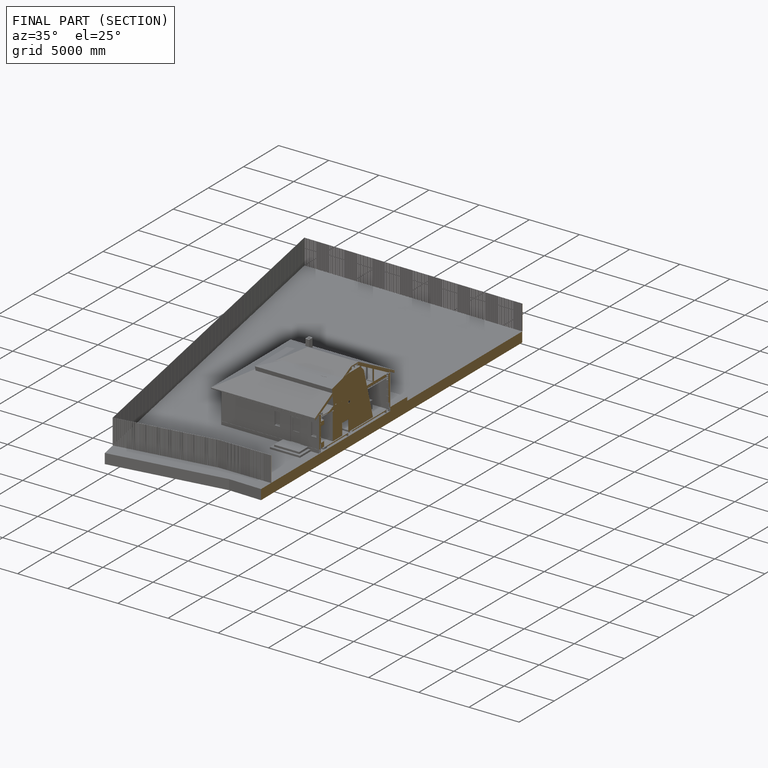
[diagram: finished part — half-section view (interior)]
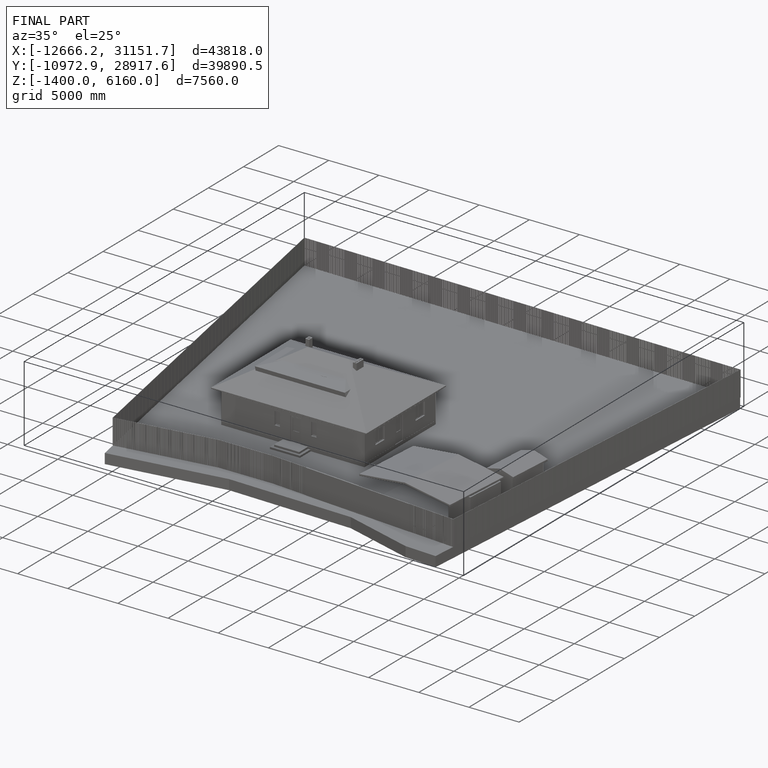
[diagram: finished part — iso view with bounding-box wireframe]
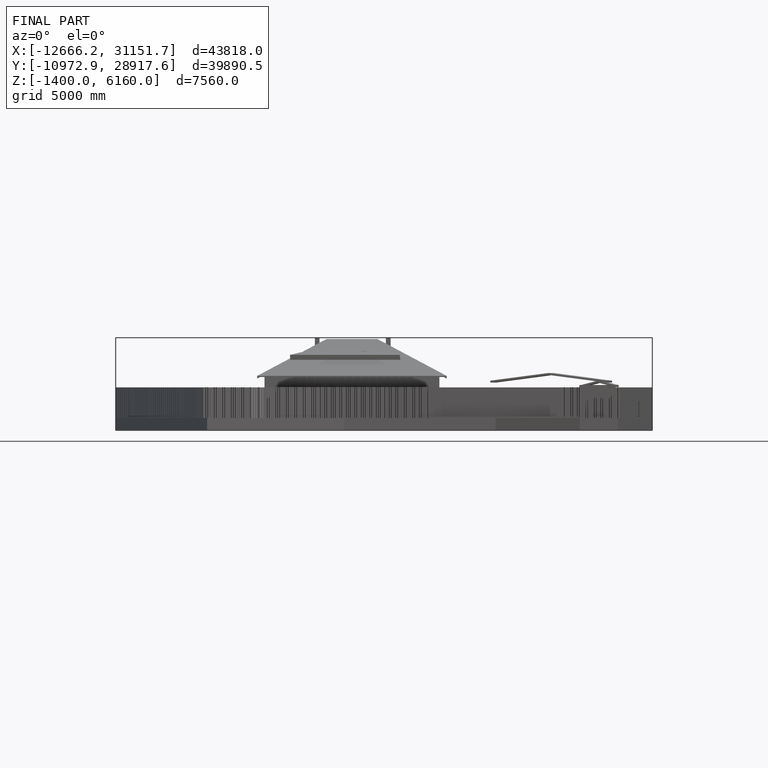
[diagram: finished part — front view with bounding-box wireframe]
